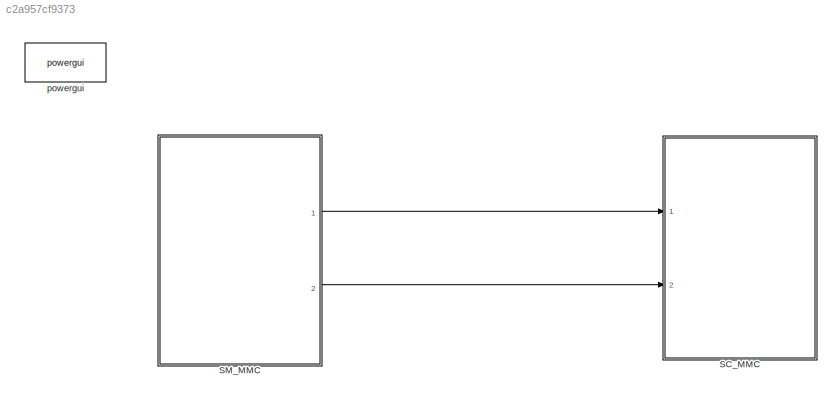
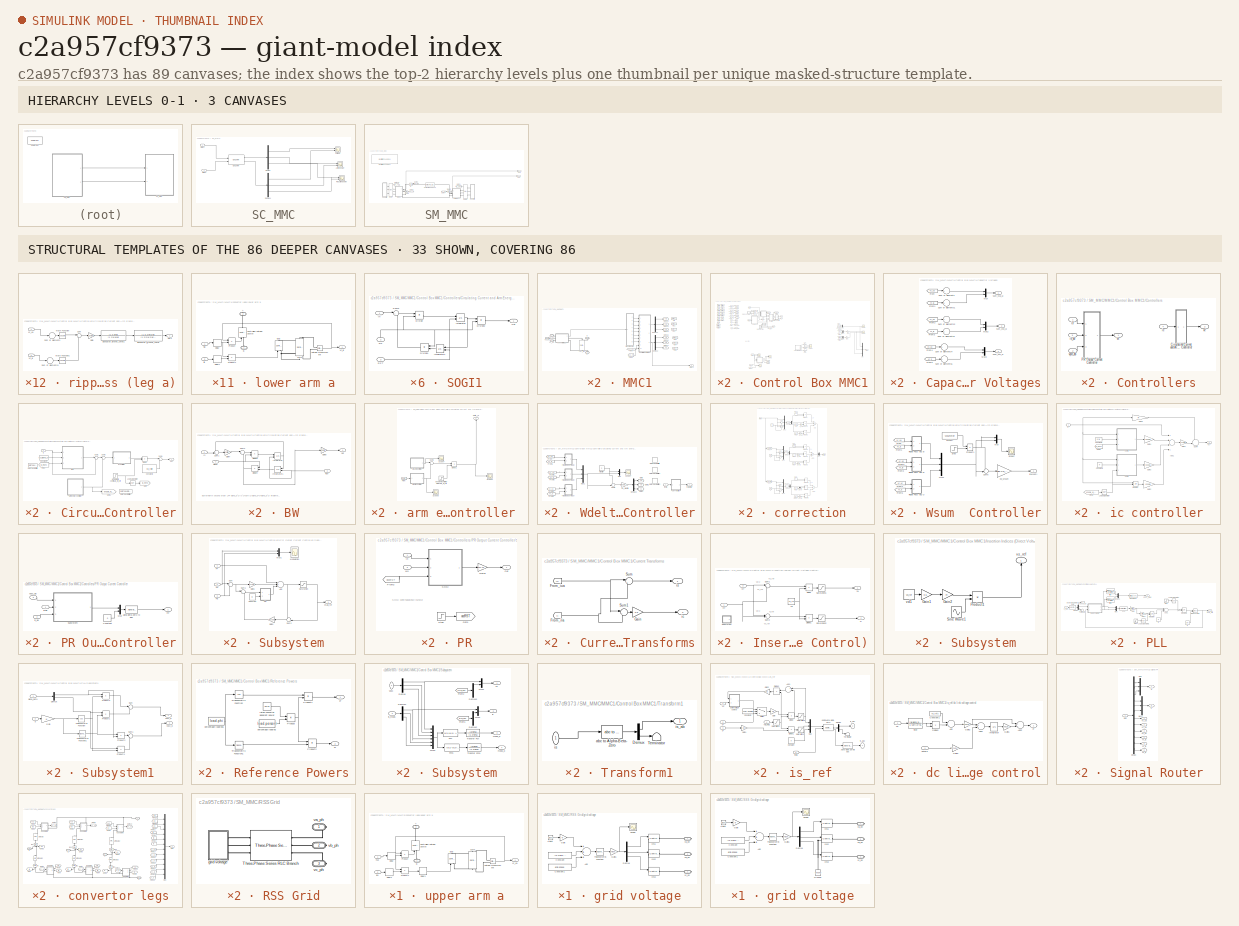
[diagram: thumbnail index - top-2 hierarchy levels (3 canvases) + 33 structural-template representatives of the remaining 86 canvases]
MODEL slx_c2a957cf9373
KIND model
CONFIG AbsTol = auto
CONFIG EnableMultiTasking = off
CONFIG FixedStep = 10e-5
CONFIG InitFcn = Cd=100e-6;\nCsm=3.3e-3;\nL=4e-3;\nR=0.1;\nm=1;\nN=9;\nNminus=N-1;\n\n\ngrid.vll_rms=10e3; \ngrid.f=50;\nw=2*pi*grid.f;\ngrid.phase=0;\ngrid.va_peak=sqrt(2/3)*grid.vll_rms;\n\nvd_ref=1.05*2*sqrt(2/3)*grid.vll_rms/m; % dc link voltage in pu\nvsp_max=0.5*m*vd_ref; %phase voltage at phi=0\nis_max=907;\nSmax=3*grid.va_peak*is_max/2; \n\n\nSCR= 100;  % INPUT SCR of grid at PCC = Ssc_grid/S_rated\n%Calculated Grid impedance p...<+2793ch>
CONFIG MaxStep = auto
CONFIG MinStep = auto
CONFIG RelTol = 1e-3
CONFIG SampleTimeConstraint = Unconstrained
CONFIG Solver = ode8
CONFIG SolverName = ode8
CONFIG StartTime = 0.0
CONFIG StopTime = inf
BLOCK [SubSystem] SC_MMC
  Ports = [2]
  RequestExecContextInheritance = off
BLOCK [Scope] SC_MMC/Active power
  Floating = off
  NumInputPorts = 2
  Ports = [2]
  ScopeSpecificationString = Simulink.scopes.TimeScopeBlockCfg('CurrentConfiguration', extmgr.ConfigurationSet(extmgr.Configuration('Core','General UI',true),extmgr.Configuration('Core','Source UI',true),extmgr.Configuration('Sources','WiredSimulink',true,'DataLoggingVariableName','ScopeData2','DataLoggingLimitDataPoints',true),extmgr.Configuration('Visuals','Time Domain',true,'SerializedDisplays',{struct('MinYLimReal','-1.26...<+2067ch>
BLOCK [Demux] SC_MMC/Demux
  DisplayOption = bar
  Outputs = 3
  Ports = [1, 3]
BLOCK [Demux] SC_MMC/Demux1
  DisplayOption = bar
  Outputs = 3
  Ports = [1, 3]
BLOCK [Reference] SC_MMC/OpComm  REF=rtlab/OpComm
  Ports = [2, 2]
  SourceBlock = rtlab/OpComm
  SourceType = RT-LAB OpComm
BLOCK [Scope] SC_MMC/Reactive power
  Floating = off
  NumInputPorts = 2
  Ports = [2]
  ScopeSpecificationString = Simulink.scopes.TimeScopeBlockCfg('CurrentConfiguration', extmgr.ConfigurationSet(extmgr.Configuration('Core','General UI',true),extmgr.Configuration('Core','Source UI',true),extmgr.Configuration('Sources','WiredSimulink',true,'DataLoggingVariableName','ScopeData3','DataLoggingLimitDataPoints',true),extmgr.Configuration('Visuals','Time Domain',true,'SerializedDisplays',{struct('MinYLimReal','0.477...<+2039ch>
BLOCK [Scope] SC_MMC/Voltage 
  Floating = off
  NumInputPorts = 2
  Ports = [2]
  ScopeSpecificationString = Simulink.scopes.TimeScopeBlockCfg('CurrentConfiguration', extmgr.ConfigurationSet(extmgr.Configuration('Core','General UI',true),extmgr.Configuration('Core','Source UI',true),extmgr.Configuration('Sources','WiredSimulink',true,'DataLoggingVariableName','ScopeData1','DataLoggingLimitDataPoints',true),extmgr.Configuration('Visuals','Time Domain',true,'SerializedDisplays',{struct('MinYLimReal','15046...<+2112ch>
BLOCK [Inport] SC_MMC/mmc1
  IconDisplay = Port number
BLOCK [Inport] SC_MMC/mmc2
  IconDisplay = Port number
  Port = 2
BLOCK [SubSystem] SM_MMC
  Ports = [0, 2]
  RequestExecContextInheritance = off
BLOCK [Goto] SM_MMC/Goto1
  GotoTag = rss_vpcc
  TagVisibility = global
BLOCK [Goto] SM_MMC/Goto15
  GotoTag = sss_vpcc
  TagVisibility = global
BLOCK [Goto] SM_MMC/Goto2
  GotoTag = sss_vd
  TagVisibility = global
BLOCK [Goto] SM_MMC/Goto3
  GotoTag = sss_id
  TagVisibility = global
BLOCK [Goto] SM_MMC/Goto4
  GotoTag = rss_vd
  TagVisibility = global
BLOCK [SubSystem] SM_MMC/MMC1
  Ports = [0, 1, 0, 0, 0, 3, 2]
  RequestExecContextInheritance = off
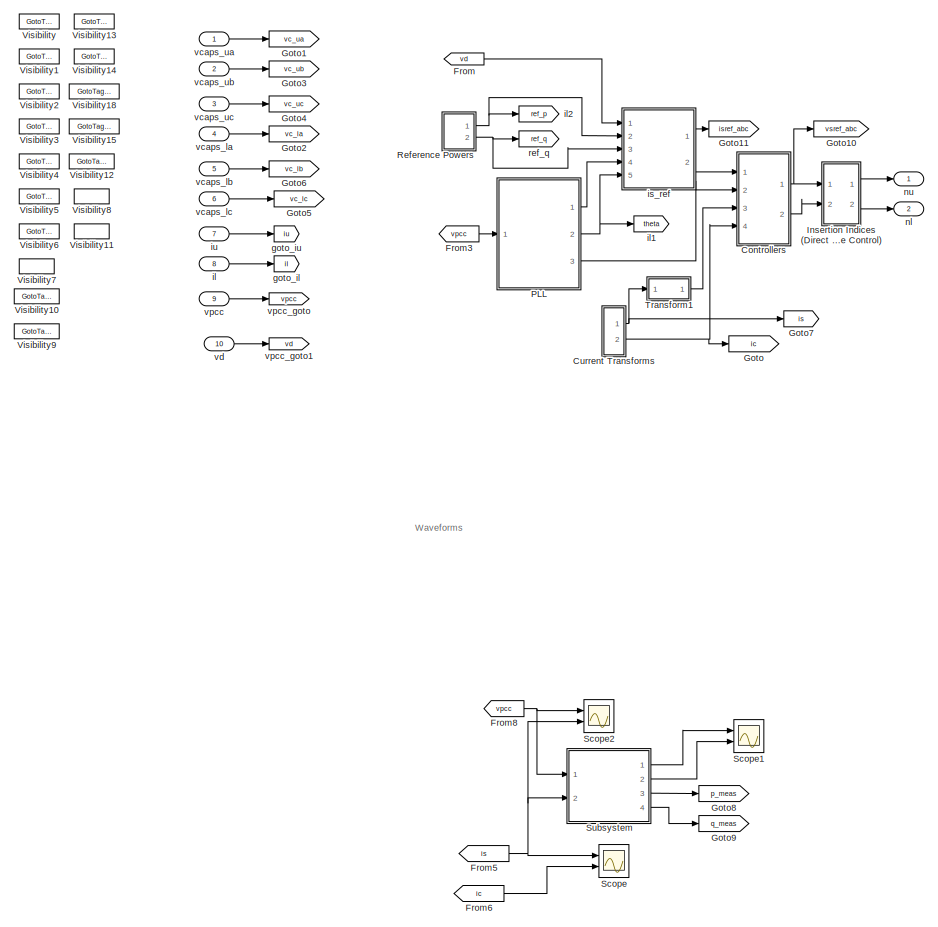
[diagram: SM_MMC/MMC1/Control Box MMC1 - part 1/2, left side, full height]
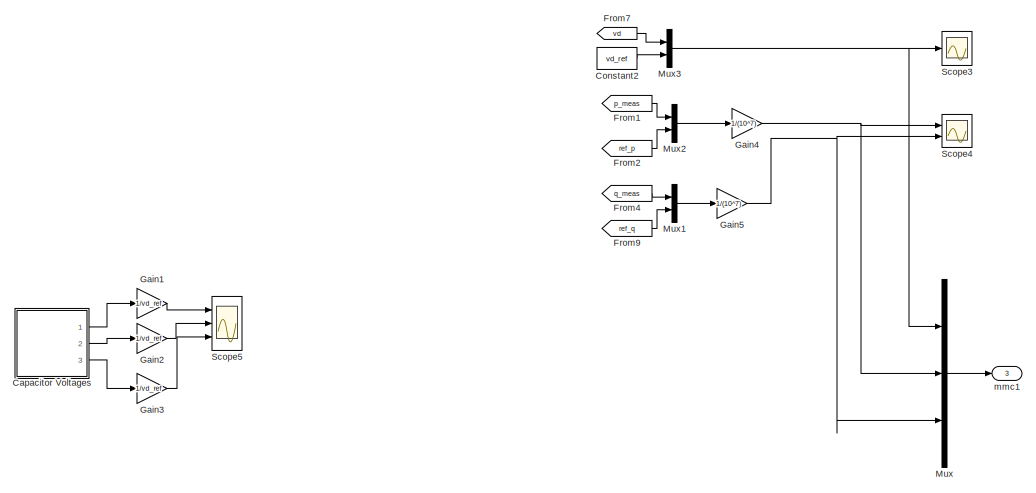
[diagram: SM_MMC/MMC1/Control Box MMC1 - part 2/2, middle right region]
BLOCK [SubSystem] SM_MMC/MMC1/Control Box MMC1
  Ports = [10, 3]
  RequestExecContextInheritance = off
BLOCK [SubSystem] SM_MMC/MMC1/Control Box MMC1/Capacitor Voltages
  Ports = [0, 3]
  RequestExecContextInheritance = off
BLOCK [From] SM_MMC/MMC1/Control Box MMC1/Capacitor Voltages/From
  GotoTag = vc_ua
  TagVisibility = scoped
BLOCK [From] SM_MMC/MMC1/Control Box MMC1/Capacitor Voltages/From1
  GotoTag = vc_la
  TagVisibility = scoped
BLOCK [From] SM_MMC/MMC1/Control Box MMC1/Capacitor Voltages/From2
  GotoTag = vc_ub
  TagVisibility = scoped
BLOCK [From] SM_MMC/MMC1/Control Box MMC1/Capacitor Voltages/From3
  GotoTag = vc_lb
  TagVisibility = scoped
BLOCK [From] SM_MMC/MMC1/Control Box MMC1/Capacitor Voltages/From4
  GotoTag = vc_uc
  TagVisibility = scoped
BLOCK [From] SM_MMC/MMC1/Control Box MMC1/Capacitor Voltages/From5
  GotoTag = vc_lc
  TagVisibility = scoped
BLOCK [Mux] SM_MMC/MMC1/Control Box MMC1/Capacitor Voltages/Mux
  DisplayOption = bar
  Inputs = 2
  Ports = [2, 1]
BLOCK [Mux] SM_MMC/MMC1/Control Box MMC1/Capacitor Voltages/Mux2
  DisplayOption = bar
  Inputs = 2
  Ports = [2, 1]
BLOCK [Mux] SM_MMC/MMC1/Control Box MMC1/Capacitor Voltages/Mux3
  DisplayOption = bar
  Inputs = 2
  Ports = [2, 1]
BLOCK [Sum] SM_MMC/MMC1/Control Box MMC1/Capacitor Voltages/Sum of Elements
  InputSameDT = off
  Inputs = +
  OutDataTypeStr = Inherit: Inherit via internal rule
  Ports = [1, 1]
  SaturateOnIntegerOverflow = off
BLOCK [Sum] SM_MMC/MMC1/Control Box MMC1/Capacitor Voltages/Sum of Elements1
  InputSameDT = off
  Inputs = +
  OutDataTypeStr = Inherit: Inherit via internal rule
  Ports = [1, 1]
  SaturateOnIntegerOverflow = off
BLOCK [Sum] SM_MMC/MMC1/Control Box MMC1/Capacitor Voltages/Sum of Elements2
  InputSameDT = off
  Inputs = +
  OutDataTypeStr = Inherit: Inherit via internal rule
  Ports = [1, 1]
  SaturateOnIntegerOverflow = off
BLOCK [Sum] SM_MMC/MMC1/Control Box MMC1/Capacitor Voltages/Sum of Elements3
  InputSameDT = off
  Inputs = +
  OutDataTypeStr = Inherit: Inherit via internal rule
  Ports = [1, 1]
  SaturateOnIntegerOverflow = off
BLOCK [Sum] SM_MMC/MMC1/Control Box MMC1/Capacitor Voltages/Sum of Elements4
  InputSameDT = off
  Inputs = +
  OutDataTypeStr = Inherit: Inherit via internal rule
  Ports = [1, 1]
  SaturateOnIntegerOverflow = off
BLOCK [Sum] SM_MMC/MMC1/Control Box MMC1/Capacitor Voltages/Sum of Elements5
  InputSameDT = off
  Inputs = +
  OutDataTypeStr = Inherit: Inherit via internal rule
  Ports = [1, 1]
  SaturateOnIntegerOverflow = off
BLOCK [Outport] SM_MMC/MMC1/Control Box MMC1/Capacitor Voltages/sum_vca_ul
  IconDisplay = Port number
BLOCK [Outport] SM_MMC/MMC1/Control Box MMC1/Capacitor Voltages/sum_vcb_ul
  IconDisplay = Port number
  Port = 2
BLOCK [Outport] SM_MMC/MMC1/Control Box MMC1/Capacitor Voltages/sum_vcc_ul
  IconDisplay = Port number
  Port = 3
BLOCK [Constant] SM_MMC/MMC1/Control Box MMC1/Constant2
  Value = vd_ref
BLOCK [SubSystem] SM_MMC/MMC1/Control Box MMC1/Controllers
  Ports = [4, 2]
  RequestExecContextInheritance = off
BLOCK [SubSystem] SM_MMC/MMC1/Control Box MMC1/Controllers/Circulating Current and Arm Energy Controller
  Ports = [1, 1]
  RequestExecContextInheritance = off
BLOCK [SubSystem] SM_MMC/MMC1/Control Box MMC1/Controllers/Circulating Current and Arm Energy Controller/BW
  Ports = [3, 1]
  RequestExecContextInheritance = off
BLOCK [Product] SM_MMC/MMC1/Control Box MMC1/Controllers/Circulating Current and Arm Energy Controller/BW/Divide3
  InputSameDT = off
  Inputs = **
  OutDataTypeStr = Inherit: Inherit via internal rule
  Ports = [2, 1]
  RndMeth = Floor
  SaturateOnIntegerOverflow = off
BLOCK [Product] SM_MMC/MMC1/Control Box MMC1/Controllers/Circulating Current and Arm Energy Controller/BW/Divide4
  InputSameDT = off
  Inputs = **
  OutDataTypeStr = Inherit: Inherit via internal rule
  Ports = [2, 1]
  RndMeth = Floor
  SaturateOnIntegerOverflow = off
BLOCK [Gain] SM_MMC/MMC1/Control Box MMC1/Controllers/Circulating Current and Arm Energy Controller/BW/Gain7
  Gain = sqrt(2)
  OutDataTypeStr = Inherit: Inherit via internal rule
  ParamDataTypeStr = Inherit: Inherit via internal rule
  SaturateOnIntegerOverflow = off
BLOCK [Gain] SM_MMC/MMC1/Control Box MMC1/Controllers/Circulating Current and Arm Energy Controller/BW/Gain8
  Gain = 1/sqrt(2)
  OutDataTypeStr = Inherit: Inherit via internal rule
  ParamDataTypeStr = Inherit: Inherit via internal rule
  SaturateOnIntegerOverflow = off
BLOCK [Inport] SM_MMC/MMC1/Control Box MMC1/Controllers/Circulating Current and Arm Energy Controller/BW/In
  IconDisplay = Port number
BLOCK [Integrator] SM_MMC/MMC1/Control Box MMC1/Controllers/Circulating Current and Arm Energy Controller/BW/Integrator
  ExternalReset = level
  Ports = [2, 1]
BLOCK [Integrator] SM_MMC/MMC1/Control Box MMC1/Controllers/Circulating Current and Arm Energy Controller/BW/Integrator1
  ExternalReset = level
  Ports = [2, 1]
BLOCK [Outport] SM_MMC/MMC1/Control Box MMC1/Controllers/Circulating Current and Arm Energy Controller/BW/Out
  IconDisplay = Port number
BLOCK [Inport] SM_MMC/MMC1/Control Box MMC1/Controllers/Circulating Current and Arm Energy Controller/BW/RST
  IconDisplay = Port number
  Port = 3
BLOCK [Sum] SM_MMC/MMC1/Control Box MMC1/Controllers/Circulating Current and Arm Energy Controller/BW/Sum1
  IconShape = round
  InputSameDT = off
  Inputs = -+|
  OutDataTypeStr = Inherit: Inherit via internal rule
  Ports = [2, 1]
  SaturateOnIntegerOverflow = off
BLOCK [Sum] SM_MMC/MMC1/Control Box MMC1/Controllers/Circulating Current and Arm Energy Controller/BW/Sum2
  IconShape = round
  InputSameDT = off
  Inputs = |+-
  OutDataTypeStr = Inherit: Inherit via internal rule
  Ports = [2, 1]
  SaturateOnIntegerOverflow = off
BLOCK [Inport] SM_MMC/MMC1/Control Box MMC1/Controllers/Circulating Current and Arm Energy Controller/BW/alpha
  IconDisplay = Port number
  Port = 2
BLOCK [Constant] SM_MMC/MMC1/Control Box MMC1/Controllers/Circulating Current and Arm Energy Controller/Constant2
  Value = vd_ref/2
BLOCK [Constant] SM_MMC/MMC1/Control Box MMC1/Controllers/Circulating Current and Arm Energy Controller/Constant4
  SampleTime = -1
  Value = ccc.alpha_cr
BLOCK [Product] SM_MMC/MMC1/Control Box MMC1/Controllers/Circulating Current and Arm Energy Controller/Divide
  InputSameDT = off
  Inputs = **
  OutDataTypeStr = Inherit: Inherit via internal rule
  Ports = [2, 1]
  RndMeth = Floor
  SaturateOnIntegerOverflow = off
BLOCK [Step] SM_MMC/MMC1/Control Box MMC1/Controllers/Circulating Current and Arm Energy Controller/Enable Icirc controller Time: time_enable_int_ctrl
  After = ccc.enable_int_ctrl
  SampleTime = 0
  Time = ccc.time_enable_int_ctrl
BLOCK [From] SM_MMC/MMC1/Control Box MMC1/Controllers/Circulating Current and Arm Energy Controller/From
  GotoTag = IC_RST2
  TagVisibility = scoped
BLOCK [Goto] SM_MMC/MMC1/Control Box MMC1/Controllers/Circulating Current and Arm Energy Controller/Goto
  GotoTag = IC_RST2
  TagVisibility = scoped
BLOCK [GotoTagVisibility] SM_MMC/MMC1/Control Box MMC1/Controllers/Circulating Current and Arm Energy Controller/Goto Tag Visibility
  GotoTag = IC_RST2
BLOCK [GotoTagVisibility] SM_MMC/MMC1/Control Box MMC1/Controllers/Circulating Current and Arm Energy Controller/Goto Tag Visibility1
  GotoTag = enable_W_ctrl2
BLOCK [Goto] SM_MMC/MMC1/Control Box MMC1/Controllers/Circulating Current and Arm Energy Controller/Goto1
  GotoTag = enable_W_ctrl2
  TagVisibility = scoped
BLOCK [Inport] SM_MMC/MMC1/Control Box MMC1/Controllers/Circulating Current and Arm Energy Controller/Ic
  IconDisplay = Port number
BLOCK [Logic] SM_MMC/MMC1/Control Box MMC1/Controllers/Circulating Current and Arm Energy Controller/Logical Operator
  AllPortsSameDT = off
  Operator = NOT
  OutDataTypeStr = boolean
  Ports = [1, 1]
BLOCK [Sum] SM_MMC/MMC1/Control Box MMC1/Controllers/Circulating Current and Arm Energy Controller/Sum1
  IconShape = round
  InputSameDT = off
  Inputs = |+-
  OutDataTypeStr = Inherit: Inherit via internal rule
  Ports = [2, 1]
  SaturateOnIntegerOverflow = off
BLOCK [Sum] SM_MMC/MMC1/Control Box MMC1/Controllers/Circulating Current and Arm Energy Controller/Sum3
  IconShape = round
  InputSameDT = off
  Inputs = |++
  OutDataTypeStr = Inherit: Inherit via internal rule
  Ports = [2, 1]
  SaturateOnIntegerOverflow = off
BLOCK [Sum] SM_MMC/MMC1/Control Box MMC1/Controllers/Circulating Current and Arm Energy Controller/Sum4
  IconShape = round
  InputSameDT = off
  Inputs = |++
  OutDataTypeStr = Inherit: Inherit via internal rule
  Ports = [2, 1]
  SaturateOnIntegerOverflow = off
BLOCK [SubSystem] SM_MMC/MMC1/Control Box MMC1/Controllers/Circulating Current and Arm Energy Controller/arm energy controller 
  Ports = [0, 1]
  RequestExecContextInheritance = off
BLOCK [Product] SM_MMC/MMC1/Control Box MMC1/Controllers/Circulating Current and Arm Energy Controller/arm energy controller /Divide1
  InputSameDT = off
  Inputs = **
  OutDataTypeStr = Inherit: Inherit via internal rule
  Ports = [2, 1]
  RndMeth = Floor
  SaturateOnIntegerOverflow = off
BLOCK [Step] SM_MMC/MMC1/Control Box MMC1/Controllers/Circulating Current and Arm Energy Controller/arm energy controller /Enable W controller Time: time_enable_W_ctrl
  After = aec.enable_W_ctrl
  SampleTime = 0
  Time = aec.time_enable_W_ctrl
BLOCK [From] SM_MMC/MMC1/Control Box MMC1/Controllers/Circulating Current and Arm Energy Controller/arm energy controller /From
  GotoTag = theta
  TagVisibility = scoped
BLOCK [Scope] SM_MMC/MMC1/Control Box MMC1/Controllers/Circulating Current and Arm Energy Controller/arm energy controller /Scope3
  Floating = off
  NumInputPorts = 1
  Ports = [1]
  ScopeSpecificationString = Simulink.scopes.TimeScopeBlockCfg('CurrentConfiguration', extmgr.ConfigurationSet(extmgr.Configuration('Core','General UI',true,'FigureColor',[0.156862745098039 0.156862745098039 0.156862745098039]),extmgr.Configuration('Core','Source UI',true),extmgr.Configuration('Sources','WiredSimulink',true,'DataLoggingVariableName','ScopeData4','DataLoggingSaveFormat','StructureWithTime','DataLoggingDecimati...<+2865ch>
BLOCK [Scope] SM_MMC/MMC1/Control Box MMC1/Controllers/Circulating Current and Arm Energy Controller/arm energy controller /Scope7
  Floating = off
  NumInputPorts = 1
  Ports = [1]
  ScopeSpecificationString = Simulink.scopes.TimeScopeBlockCfg('CurrentConfiguration', extmgr.ConfigurationSet(extmgr.Configuration('Core','General UI',true,'FigureColor',[0.156862745098039 0.156862745098039 0.156862745098039]),extmgr.Configuration('Core','Source UI',true),extmgr.Configuration('Sources','WiredSimulink',true,'DataLoggingVariableName','ScopeData11','DataLoggingSaveFormat','StructureWithTime','DataLoggingDecimat...<+2891ch>
BLOCK [Scope] SM_MMC/MMC1/Control Box MMC1/Controllers/Circulating Current and Arm Energy Controller/arm energy controller /Scope8
  Floating = off
  NumInputPorts = 1
  Ports = [1]
  ScopeSpecificationString = Simulink.scopes.TimeScopeBlockCfg('CurrentConfiguration', extmgr.ConfigurationSet(extmgr.Configuration('Core','General UI',true,'FigureColor',[0.156862745098039 0.156862745098039 0.156862745098039]),extmgr.Configuration('Core','Source UI',true),extmgr.Configuration('Sources','WiredSimulink',true,'DataLoggingVariableName','ScopeData12','DataLoggingSaveFormat','StructureWithTime','DataLoggingDecimat...<+2880ch>
BLOCK [Sum] SM_MMC/MMC1/Control Box MMC1/Controllers/Circulating Current and Arm Energy Controller/arm energy controller /Sum2
  IconShape = round
  InputSameDT = off
  Inputs = |+-
  OutDataTypeStr = Inherit: Inherit via internal rule
  Ports = [2, 1]
  SaturateOnIntegerOverflow = off
BLOCK [SubSystem] SM_MMC/MMC1/Control Box MMC1/Controllers/Circulating Current and Arm Energy Controller/arm energy controller /Wdelta  Controller
  Ports = [1, 1]
  RequestExecContextInheritance = off
BLOCK [Constant] SM_MMC/MMC1/Control Box MMC1/Controllers/Circulating Current and Arm Energy Controller/arm energy controller /Wdelta  Controller/  Wdelta*
  Value = 0
BLOCK [Demux] SM_MMC/MMC1/Control Box MMC1/Controllers/Circulating Current and Arm Energy Controller/arm energy controller /Wdelta  Controller/Demux2
  DisplayOption = bar
  Outputs = 3
  Ports = [1, 3]
BLOCK [From] SM_MMC/MMC1/Control Box MMC1/Controllers/Circulating Current and Arm Energy Controller/arm energy controller /Wdelta  Controller/From
  GotoTag = vc_ua
  TagVisibility = scoped
BLOCK [From] SM_MMC/MMC1/Control Box MMC1/Controllers/Circulating Current and Arm Energy Controller/arm energy controller /Wdelta  Controller/From1
  GotoTag = vc_la
  TagVisibility = scoped
BLOCK [From] SM_MMC/MMC1/Control Box MMC1/Controllers/Circulating Current and Arm Energy Controller/arm energy controller /Wdelta  Controller/From2
  GotoTag = vc_ub
  TagVisibility = scoped
BLOCK [From] SM_MMC/MMC1/Control Box MMC1/Controllers/Circulating Current and Arm Energy Controller/arm energy controller /Wdelta  Controller/From3
  GotoTag = vc_lb
  TagVisibility = scoped
BLOCK [From] SM_MMC/MMC1/Control Box MMC1/Controllers/Circulating Current and Arm Energy Controller/arm energy controller /Wdelta  Controller/From4
  GotoTag = vc_uc
  TagVisibility = scoped
BLOCK [From] SM_MMC/MMC1/Control Box MMC1/Controllers/Circulating Current and Arm Energy Controller/arm energy controller /Wdelta  Controller/From5
  GotoTag = vc_lc
  TagVisibility = scoped
BLOCK [Goto] SM_MMC/MMC1/Control Box MMC1/Controllers/Circulating Current and Arm Energy Controller/arm energy controller /Wdelta  Controller/Goto
  GotoTag = ca
  TagVisibility = scoped
BLOCK [GotoTagVisibility] SM_MMC/MMC1/Control Box MMC1/Controllers/Circulating Current and Arm Energy Controller/arm energy controller /Wdelta  Controller/Goto Tag Visibility
  GotoTag = ca
BLOCK [GotoTagVisibility] SM_MMC/MMC1/Control Box MMC1/Controllers/Circulating Current and Arm Energy Controller/arm energy controller /Wdelta  Controller/Goto Tag Visibility1
  GotoTag = cb
BLOCK [GotoTagVisibility] SM_MMC/MMC1/Control Box MMC1/Controllers/Circulating Current and Arm Energy Controller/arm energy controller /Wdelta  Controller/Goto Tag Visibility2
  GotoTag = cc
BLOCK [Goto] SM_MMC/MMC1/Control Box MMC1/Controllers/Circulating Current and Arm Energy Controller/arm energy controller /Wdelta  Controller/Goto1
  GotoTag = cb
  TagVisibility = scoped
BLOCK [Goto] SM_MMC/MMC1/Control Box MMC1/Controllers/Circulating Current and Arm Energy Controller/arm energy controller /Wdelta  Controller/Goto2
  GotoTag = cc
  TagVisibility = scoped
BLOCK [Gain] SM_MMC/MMC1/Control Box MMC1/Controllers/Circulating Current and Arm Energy Controller/arm energy controller /Wdelta  Controller/Kp_Wdelta
  Gain = aec.Kp_Wdelta
  OutDataTypeStr = Inherit: Inherit via internal rule
  ParamDataTypeStr = Inherit: Inherit via internal rule
  SaturateOnIntegerOverflow = off
BLOCK [Mux] SM_MMC/MMC1/Control Box MMC1/Controllers/Circulating Current and Arm Energy Controller/arm energy controller /Wdelta  Controller/Mux
  DisplayOption = bar
  Inputs = 2
  Ports = [2, 1]
BLOCK [Mux] SM_MMC/MMC1/Control Box MMC1/Controllers/Circulating Current and Arm Energy Controller/arm energy controller /Wdelta  Controller/Mux1
  DisplayOption = bar
  Inputs = 3
  Ports = [3, 1]
BLOCK [Scope] SM_MMC/MMC1/Control Box MMC1/Controllers/Circulating Current and Arm Energy Controller/arm energy controller /Wdelta  Controller/Scope7
  Floating = off
  NumInputPorts = 1
  Ports = [1]
  ScopeSpecificationString = Simulink.scopes.TimeScopeBlockCfg('CurrentConfiguration', extmgr.ConfigurationSet(extmgr.Configuration('Core','General UI',true,'FigureColor',[0.156862745098039 0.156862745098039 0.156862745098039]),extmgr.Configuration('Core','Source UI',true),extmgr.Configuration('Sources','WiredSimulink',true,'DataLoggingVariableName','ScopeData2','DataLoggingSaveFormat','StructureWithTime','DataLoggingDecimati...<+2938ch>
BLOCK [Sum] SM_MMC/MMC1/Control Box MMC1/Controllers/Circulating Current and Arm Energy Controller/arm energy controller /Wdelta  Controller/Sum6
  IconShape = round
  InputSameDT = off
  Inputs = +-
  OutDataTypeStr = Inherit: Inherit via internal rule
  Ports = [2, 1]
  SaturateOnIntegerOverflow = off
BLOCK [SubSystem] SM_MMC/MMC1/Control Box MMC1/Controllers/Circulating Current and Arm Energy Controller/arm energy controller /Wdelta  Controller/correction
  Ports = [1, 1]
  RequestExecContextInheritance = off
BLOCK [Constant] SM_MMC/MMC1/Control Box MMC1/Controllers/Circulating Current and Arm Energy Controller/arm energy controller /Wdelta  Controller/correction/  1
  Value = pi/2
BLOCK [Constant] SM_MMC/MMC1/Control Box MMC1/Controllers/Circulating Current and Arm Energy Controller/arm energy controller /Wdelta  Controller/correction/  2
  Value = pi/2
BLOCK [Constant] SM_MMC/MMC1/Control Box MMC1/Controllers/Circulating Current and Arm Energy Controller/arm energy controller /Wdelta  Controller/correction/  3
  Value = pi/2
BLOCK [Sum] SM_MMC/MMC1/Control Box MMC1/Controllers/Circulating Current and Arm Energy Controller/arm energy controller /Wdelta  Controller/correction/Add
  InputSameDT = off
  Inputs = +++
  OutDataTypeStr = Inherit: Inherit via internal rule
  Ports = [3, 1]
  SaturateOnIntegerOverflow = off
BLOCK [Sum] SM_MMC/MMC1/Control Box MMC1/Controllers/Circulating Current and Arm Energy Controller/arm energy controller /Wdelta  Controller/correction/Add1
  InputSameDT = off
  Inputs = +++
  OutDataTypeStr = Inherit: Inherit via internal rule
  Ports = [3, 1]
  SaturateOnIntegerOverflow = off
BLOCK [Sum] SM_MMC/MMC1/Control Box MMC1/Controllers/Circulating Current and Arm Energy Controller/arm energy controller /Wdelta  Controller/correction/Add2
  InputSameDT = off
  Inputs = +++
  OutDataTypeStr = Inherit: Inherit via internal rule
  Ports = [3, 1]
  SaturateOnIntegerOverflow = off
BLOCK [Demux] SM_MMC/MMC1/Control Box MMC1/Controllers/Circulating Current and Arm Energy Controller/arm energy controller /Wdelta  Controller/correction/Demux3
  DisplayOption = bar
  Outputs = 3
  Ports = [1, 3]
BLOCK [Demux] SM_MMC/MMC1/Control Box MMC1/Controllers/Circulating Current and Arm Energy Controller/arm energy controller /Wdelta  Controller/correction/Demux4
  DisplayOption = bar
  Outputs = 3
  Ports = [1, 3]
BLOCK [Demux] SM_MMC/MMC1/Control Box MMC1/Controllers/Circulating Current and Arm Energy Controller/arm energy controller /Wdelta  Controller/correction/Demux5
  DisplayOption = bar
  Outputs = 3
  Ports = [1, 3]
BLOCK [Fcn] SM_MMC/MMC1/Control Box MMC1/Controllers/Circulating Current and Arm Energy Controller/arm energy controller /Wdelta  Controller/correction/Fcn
  Expr = u(1)-2*pi/3
BLOCK [Fcn] SM_MMC/MMC1/Control Box MMC1/Controllers/Circulating Current and Arm Energy Controller/arm energy controller /Wdelta  Controller/correction/Fcn1
  Expr = u(1)+2*pi/3
BLOCK [From] SM_MMC/MMC1/Control Box MMC1/Controllers/Circulating Current and Arm Energy Controller/arm energy controller /Wdelta  Controller/correction/From
  GotoTag = cb
  TagVisibility = scoped
BLOCK [From] SM_MMC/MMC1/Control Box MMC1/Controllers/Circulating Current and Arm Energy Controller/arm energy controller /Wdelta  Controller/correction/From1
  GotoTag = cb
  TagVisibility = scoped
BLOCK [From] SM_MMC/MMC1/Control Box MMC1/Controllers/Circulating Current and Arm Energy Controller/arm energy controller /Wdelta  Controller/correction/From10
  GotoTag = ca
  TagVisibility = scoped
BLOCK [From] SM_MMC/MMC1/Control Box MMC1/Controllers/Circulating Current and Arm Energy Controller/arm energy controller /Wdelta  Controller/correction/From12
  GotoTag = cb
  TagVisibility = scoped
BLOCK [From] SM_MMC/MMC1/Control Box MMC1/Controllers/Circulating Current and Arm Energy Controller/arm energy controller /Wdelta  Controller/correction/From2
  GotoTag = cc
  TagVisibility = scoped
BLOCK [From] SM_MMC/MMC1/Control Box MMC1/Controllers/Circulating Current and Arm Energy Controller/arm energy controller /Wdelta  Controller/correction/From3
  GotoTag = cc
  TagVisibility = scoped
BLOCK [From] SM_MMC/MMC1/Control Box MMC1/Controllers/Circulating Current and Arm Energy Controller/arm energy controller /Wdelta  Controller/correction/From4
  GotoTag = cc
  TagVisibility = scoped
BLOCK [From] SM_MMC/MMC1/Control Box MMC1/Controllers/Circulating Current and Arm Energy Controller/arm energy controller /Wdelta  Controller/correction/From7
  GotoTag = ca
  TagVisibility = scoped
BLOCK [From] SM_MMC/MMC1/Control Box MMC1/Controllers/Circulating Current and Arm Energy Controller/arm energy controller /Wdelta  Controller/correction/From9
  GotoTag = ca
  TagVisibility = scoped
BLOCK [Gain] SM_MMC/MMC1/Control Box MMC1/Controllers/Circulating Current and Arm Energy Controller/arm energy controller /Wdelta  Controller/correction/Ki_ver1
  Gain = 1/sqrt(3)
  OutDataTypeStr = Inherit: Inherit via internal rule
  ParamDataTypeStr = Inherit: Inherit via internal rule
  SaturateOnIntegerOverflow = off
BLOCK [Gain] SM_MMC/MMC1/Control Box MMC1/Controllers/Circulating Current and Arm Energy Controller/arm energy controller /Wdelta  Controller/correction/Ki_ver2
  Gain = 1/sqrt(3)
  OutDataTypeStr = Inherit: Inherit via internal rule
  ParamDataTypeStr = Inherit: Inherit via internal rule
  SaturateOnIntegerOverflow = off
BLOCK [Gain] SM_MMC/MMC1/Control Box MMC1/Controllers/Circulating Current and Arm Energy Controller/arm energy controller /Wdelta  Controller/correction/Ki_ver4
  Gain = 1/sqrt(3)
  OutDataTypeStr = Inherit: Inherit via internal rule
  ParamDataTypeStr = Inherit: Inherit via internal rule
  SaturateOnIntegerOverflow = off
BLOCK [Gain] SM_MMC/MMC1/Control Box MMC1/Controllers/Circulating Current and Arm Energy Controller/arm energy controller /Wdelta  Controller/correction/Ki_ver5
  Gain = 1/sqrt(3)
  OutDataTypeStr = Inherit: Inherit via internal rule
  ParamDataTypeStr = Inherit: Inherit via internal rule
  SaturateOnIntegerOverflow = off
BLOCK [Gain] SM_MMC/MMC1/Control Box MMC1/Controllers/Circulating Current and Arm Energy Controller/arm energy controller /Wdelta  Controller/correction/Ki_ver7
  Gain = 1/sqrt(3)
  OutDataTypeStr = Inherit: Inherit via internal rule
  ParamDataTypeStr = Inherit: Inherit via internal rule
  SaturateOnIntegerOverflow = off
BLOCK [Gain] SM_MMC/MMC1/Control Box MMC1/Controllers/Circulating Current and Arm Energy Controller/arm energy controller /Wdelta  Controller/correction/Ki_ver8
  Gain = 1/sqrt(3)
  OutDataTypeStr = Inherit: Inherit via internal rule
  ParamDataTypeStr = Inherit: Inherit via internal rule
  SaturateOnIntegerOverflow = off
BLOCK [Mux] SM_MMC/MMC1/Control Box MMC1/Controllers/Circulating Current and Arm Energy Controller/arm energy controller /Wdelta  Controller/correction/Mux2
  DisplayOption = bar
  Inputs = 3
  Ports = [3, 1]
BLOCK [Mux] SM_MMC/MMC1/Control Box MMC1/Controllers/Circulating Current and Arm Energy Controller/arm energy controller /Wdelta  Controller/correction/Mux3
  DisplayOption = bar
  Inputs = 3
  Ports = [3, 1]
BLOCK [Mux] SM_MMC/MMC1/Control Box MMC1/Controllers/Circulating Current and Arm Energy Controller/arm energy controller /Wdelta  Controller/correction/Mux4
  DisplayOption = bar
  Inputs = 3
  Ports = [3, 1]
BLOCK [Mux] SM_MMC/MMC1/Control Box MMC1/Controllers/Circulating Current and Arm Energy Controller/arm energy controller /Wdelta  Controller/correction/Mux5
  DisplayOption = bar
  Inputs = 3
  Ports = [3, 1]
BLOCK [Product] SM_MMC/MMC1/Control Box MMC1/Controllers/Circulating Current and Arm Energy Controller/arm energy controller /Wdelta  Controller/correction/Product
  InputSameDT = off
  OutDataTypeStr = Inherit: Inherit via internal rule
  Ports = [2, 1]
  RndMeth = Floor
  SaturateOnIntegerOverflow = off
BLOCK [Product] SM_MMC/MMC1/Control Box MMC1/Controllers/Circulating Current and Arm Energy Controller/arm energy controller /Wdelta  Controller/correction/Product1
  InputSameDT = off
  OutDataTypeStr = Inherit: Inherit via internal rule
  Ports = [2, 1]
  RndMeth = Floor
  SaturateOnIntegerOverflow = off
BLOCK [Product] SM_MMC/MMC1/Control Box MMC1/Controllers/Circulating Current and Arm Energy Controller/arm energy controller /Wdelta  Controller/correction/Product2
  InputSameDT = off
  OutDataTypeStr = Inherit: Inherit via internal rule
  Ports = [2, 1]
  RndMeth = Floor
  SaturateOnIntegerOverflow = off
BLOCK [Product] SM_MMC/MMC1/Control Box MMC1/Controllers/Circulating Current and Arm Energy Controller/arm energy controller /Wdelta  Controller/correction/Product3
  InputSameDT = off
  OutDataTypeStr = Inherit: Inherit via internal rule
  Ports = [2, 1]
  RndMeth = Floor
  SaturateOnIntegerOverflow = off
BLOCK [Product] SM_MMC/MMC1/Control Box MMC1/Controllers/Circulating Current and Arm Energy Controller/arm energy controller /Wdelta  Controller/correction/Product4
  InputSameDT = off
  OutDataTypeStr = Inherit: Inherit via internal rule
  Ports = [2, 1]
  RndMeth = Floor
  SaturateOnIntegerOverflow = off
BLOCK [Product] SM_MMC/MMC1/Control Box MMC1/Controllers/Circulating Current and Arm Energy Controller/arm energy controller /Wdelta  Controller/correction/Product5
  InputSameDT = off
  OutDataTypeStr = Inherit: Inherit via internal rule
  Ports = [2, 1]
  RndMeth = Floor
  SaturateOnIntegerOverflow = off
BLOCK [Product] SM_MMC/MMC1/Control Box MMC1/Controllers/Circulating Current and Arm Energy Controller/arm energy controller /Wdelta  Controller/correction/Product6
  InputSameDT = off
  OutDataTypeStr = Inherit: Inherit via internal rule
  Ports = [2, 1]
  RndMeth = Floor
  SaturateOnIntegerOverflow = off
BLOCK [Product] SM_MMC/MMC1/Control Box MMC1/Controllers/Circulating Current and Arm Energy Controller/arm energy controller /Wdelta  Controller/correction/Product7
  InputSameDT = off
  OutDataTypeStr = Inherit: Inherit via internal rule
  Ports = [2, 1]
  RndMeth = Floor
  SaturateOnIntegerOverflow = off
BLOCK [Product] SM_MMC/MMC1/Control Box MMC1/Controllers/Circulating Current and Arm Energy Controller/arm energy controller /Wdelta  Controller/correction/Product8
  InputSameDT = off
  OutDataTypeStr = Inherit: Inherit via internal rule
  Ports = [2, 1]
  RndMeth = Floor
  SaturateOnIntegerOverflow = off
BLOCK [Sum] SM_MMC/MMC1/Control Box MMC1/Controllers/Circulating Current and Arm Energy Controller/arm energy controller /Wdelta  Controller/correction/Sum1
  IconShape = round
  InputSameDT = off
  Inputs = |+-
  OutDataTypeStr = Inherit: Inherit via internal rule
  Ports = [2, 1]
  SaturateOnIntegerOverflow = off
BLOCK [Sum] SM_MMC/MMC1/Control Box MMC1/Controllers/Circulating Current and Arm Energy Controller/arm energy controller /Wdelta  Controller/correction/Sum18
  IconShape = round
  InputSameDT = off
  Inputs = |+-
  OutDataTypeStr = Inherit: Inherit via internal rule
  Ports = [2, 1]
  SaturateOnIntegerOverflow = off
BLOCK [Sum] SM_MMC/MMC1/Control Box MMC1/Controllers/Circulating Current and Arm Energy Controller/arm energy controller /Wdelta  Controller/correction/Sum2
  IconShape = round
  InputSameDT = off
  Inputs = |++
  OutDataTypeStr = Inherit: Inherit via internal rule
  Ports = [2, 1]
  SaturateOnIntegerOverflow = off
BLOCK [Sum] SM_MMC/MMC1/Control Box MMC1/Controllers/Circulating Current and Arm Energy Controller/arm energy controller /Wdelta  Controller/correction/Sum3
  IconShape = round
  InputSameDT = off
  Inputs = |++
  OutDataTypeStr = Inherit: Inherit via internal rule
  Ports = [2, 1]
  SaturateOnIntegerOverflow = off
BLOCK [Sum] SM_MMC/MMC1/Control Box MMC1/Controllers/Circulating Current and Arm Energy Controller/arm energy controller /Wdelta  Controller/correction/Sum4
  IconShape = round
  InputSameDT = off
  Inputs = |+-
  OutDataTypeStr = Inherit: Inherit via internal rule
  Ports = [2, 1]
  SaturateOnIntegerOverflow = off
BLOCK [Sum] SM_MMC/MMC1/Control Box MMC1/Controllers/Circulating Current and Arm Energy Controller/arm energy controller /Wdelta  Controller/correction/Sum7
  IconShape = round
  InputSameDT = off
  Inputs = |++
  OutDataTypeStr = Inherit: Inherit via internal rule
  Ports = [2, 1]
  SaturateOnIntegerOverflow = off
BLOCK [Outport] SM_MMC/MMC1/Control Box MMC1/Controllers/Circulating Current and Arm Energy Controller/arm energy controller /Wdelta  Controller/correction/delta_i
  IconDisplay = Port number
BLOCK [Trigonometry] SM_MMC/MMC1/Control Box MMC1/Controllers/Circulating Current and Arm Energy Controller/arm energy controller /Wdelta  Controller/correction/maybe
  Operator = cos
  Ports = [1, 1]
BLOCK [Trigonometry] SM_MMC/MMC1/Control Box MMC1/Controllers/Circulating Current and Arm Energy Controller/arm energy controller /Wdelta  Controller/correction/maybe1
  Operator = cos
  Ports = [1, 1]
BLOCK [Trigonometry] SM_MMC/MMC1/Control Box MMC1/Controllers/Circulating Current and Arm Energy Controller/arm energy controller /Wdelta  Controller/correction/maybe2
  Operator = cos
  Ports = [1, 1]
BLOCK [Inport] SM_MMC/MMC1/Control Box MMC1/Controllers/Circulating Current and Arm Energy Controller/arm energy controller /Wdelta  Controller/correction/theta
  IconDisplay = Port number
BLOCK [Outport] SM_MMC/MMC1/Control Box MMC1/Controllers/Circulating Current and Arm Energy Controller/arm energy controller /Wdelta  Controller/icWdelta*
  IconDisplay = Port number
BLOCK [SubSystem] SM_MMC/MMC1/Control Box MMC1/Controllers/Circulating Current and Arm Energy Controller/arm energy controller /Wdelta  Controller/ripple pass (leg a)
  Ports = [2, 1]
  RequestExecContextInheritance = off
BLOCK [TransferFcn] SM_MMC/MMC1/Control Box MMC1/Controllers/Circulating Current and Arm Energy Controller/arm energy controller /Wdelta  Controller/ripple pass (leg a)/BandStop @100Hz_10kHz
  Denominator = [1 2*2*w 2*w*2*w]
  Numerator = [1 0 2*w*2*w]
BLOCK [TransferFcn] SM_MMC/MMC1/Control Box MMC1/Controllers/Circulating Current and Arm Energy Controller/arm energy controller /Wdelta  Controller/ripple pass (leg a)/BandStop @50Hz_10kHz1
  Denominator = [1 2*w w*w]
  Numerator = [1 0 w*w]
BLOCK [Gain] SM_MMC/MMC1/Control Box MMC1/Controllers/Circulating Current and Arm Energy Controller/arm energy controller /Wdelta  Controller/ripple pass (leg a)/Gain
  Gain = Csm/2/N
  OutDataTypeStr = Inherit: Inherit via internal rule
  ParamDataTypeStr = Inherit: Inherit via internal rule
  SaturateOnIntegerOverflow = off
BLOCK [Math] SM_MMC/MMC1/Control Box MMC1/Controllers/Circulating Current and Arm Energy Controller/arm energy controller /Wdelta  Controller/ripple pass (leg a)/Math Function
  Operator = square
  Ports = [1, 1]
BLOCK [Math] SM_MMC/MMC1/Control Box MMC1/Controllers/Circulating Current and Arm Energy Controller/arm energy controller /Wdelta  Controller/ripple pass (leg a)/Math Function1
  Operator = square
  Ports = [1, 1]
BLOCK [Outport] SM_MMC/MMC1/Control Box MMC1/Controllers/Circulating Current and Arm Energy Controller/arm energy controller /Wdelta  Controller/ripple pass (leg a)/Out1
  IconDisplay = Port number
BLOCK [Sum] SM_MMC/MMC1/Control Box MMC1/Controllers/Circulating Current and Arm Energy Controller/arm energy controller /Wdelta  Controller/ripple pass (leg a)/Sum
  IconShape = round
  InputSameDT = off
  Inputs = |+-
  OutDataTypeStr = Inherit: Inherit via internal rule
  Ports = [2, 1]
  SaturateOnIntegerOverflow = off
BLOCK [Sum] SM_MMC/MMC1/Control Box MMC1/Controllers/Circulating Current and Arm Energy Controller/arm energy controller /Wdelta  Controller/ripple pass (leg a)/Sum of Elements
  InputSameDT = off
  Inputs = +
  OutDataTypeStr = Inherit: Inherit via internal rule
  Ports = [1, 1]
  SaturateOnIntegerOverflow = off
BLOCK [Sum] SM_MMC/MMC1/Control Box MMC1/Controllers/Circulating Current and Arm Energy Controller/arm energy controller /Wdelta  Controller/ripple pass (leg a)/Sum of Elements1
  InputSameDT = off
  Inputs = +
  OutDataTypeStr = Inherit: Inherit via internal rule
  Ports = [1, 1]
  SaturateOnIntegerOverflow = off
BLOCK [Inport] SM_MMC/MMC1/Control Box MMC1/Controllers/Circulating Current and Arm Energy Controller/arm energy controller /Wdelta  Controller/ripple pass (leg a)/vc_la
  IconDisplay = Port number
  Port = 2
BLOCK [Inport] SM_MMC/MMC1/Control Box MMC1/Controllers/Circulating Current and Arm Energy Controller/arm energy controller /Wdelta  Controller/ripple pass (leg a)/vc_ua
  IconDisplay = Port number
BLOCK [SubSystem] SM_MMC/MMC1/Control Box MMC1/Controllers/Circulating Current and Arm Energy Controller/arm energy controller /Wdelta  Controller/ripple pass (leg b)
  Ports = [2, 1]
  RequestExecContextInheritance = off
BLOCK [TransferFcn] SM_MMC/MMC1/Control Box MMC1/Controllers/Circulating Current and Arm Energy Controller/arm energy controller /Wdelta  Controller/ripple pass (leg b)/BandStop @100Hz_10kHz
  Denominator = [1 2*2*w 2*w*2*w]
  Numerator = [1 0 2*w*2*w]
BLOCK [TransferFcn] SM_MMC/MMC1/Control Box MMC1/Controllers/Circulating Current and Arm Energy Controller/arm energy controller /Wdelta  Controller/ripple pass (leg b)/BandStop @50Hz_10kHz1
  Denominator = [1 2*w w*w]
  Numerator = [1 0 w*w]
BLOCK [Gain] SM_MMC/MMC1/Control Box MMC1/Controllers/Circulating Current and Arm Energy Controller/arm energy controller /Wdelta  Controller/ripple pass (leg b)/Gain
  Gain = Csm/2/N
  OutDataTypeStr = Inherit: Inherit via internal rule
  ParamDataTypeStr = Inherit: Inherit via internal rule
  SaturateOnIntegerOverflow = off
BLOCK [Math] SM_MMC/MMC1/Control Box MMC1/Controllers/Circulating Current and Arm Energy Controller/arm energy controller /Wdelta  Controller/ripple pass (leg b)/Math Function
  Operator = square
  Ports = [1, 1]
BLOCK [Math] SM_MMC/MMC1/Control Box MMC1/Controllers/Circulating Current and Arm Energy Controller/arm energy controller /Wdelta  Controller/ripple pass (leg b)/Math Function1
  Operator = square
  Ports = [1, 1]
BLOCK [Outport] SM_MMC/MMC1/Control Box MMC1/Controllers/Circulating Current and Arm Energy Controller/arm energy controller /Wdelta  Controller/ripple pass (leg b)/Out1
  IconDisplay = Port number
BLOCK [Sum] SM_MMC/MMC1/Control Box MMC1/Controllers/Circulating Current and Arm Energy Controller/arm energy controller /Wdelta  Controller/ripple pass (leg b)/Sum
  IconShape = round
  InputSameDT = off
  Inputs = |+-
  OutDataTypeStr = Inherit: Inherit via internal rule
  Ports = [2, 1]
  SaturateOnIntegerOverflow = off
BLOCK [Sum] SM_MMC/MMC1/Control Box MMC1/Controllers/Circulating Current and Arm Energy Controller/arm energy controller /Wdelta  Controller/ripple pass (leg b)/Sum of Elements
  InputSameDT = off
  Inputs = +
  OutDataTypeStr = Inherit: Inherit via internal rule
  Ports = [1, 1]
  SaturateOnIntegerOverflow = off
BLOCK [Sum] SM_MMC/MMC1/Control Box MMC1/Controllers/Circulating Current and Arm Energy Controller/arm energy controller /Wdelta  Controller/ripple pass (leg b)/Sum of Elements1
  InputSameDT = off
  Inputs = +
  OutDataTypeStr = Inherit: Inherit via internal rule
  Ports = [1, 1]
  SaturateOnIntegerOverflow = off
BLOCK [Inport] SM_MMC/MMC1/Control Box MMC1/Controllers/Circulating Current and Arm Energy Controller/arm energy controller /Wdelta  Controller/ripple pass (leg b)/vc_lb
  IconDisplay = Port number
  Port = 2
BLOCK [Inport] SM_MMC/MMC1/Control Box MMC1/Controllers/Circulating Current and Arm Energy Controller/arm energy controller /Wdelta  Controller/ripple pass (leg b)/vc_ub
  IconDisplay = Port number
BLOCK [SubSystem] SM_MMC/MMC1/Control Box MMC1/Controllers/Circulating Current and Arm Energy Controller/arm energy controller /Wdelta  Controller/ripple pass (leg c)
  Ports = [2, 1]
  RequestExecContextInheritance = off
BLOCK [TransferFcn] SM_MMC/MMC1/Control Box MMC1/Controllers/Circulating Current and Arm Energy Controller/arm energy controller /Wdelta  Controller/ripple pass (leg c)/BandStop @100Hz_10kHz
  Denominator = [1 2*2*w 2*w*2*w]
  Numerator = [1 0 2*w*2*w]
BLOCK [TransferFcn] SM_MMC/MMC1/Control Box MMC1/Controllers/Circulating Current and Arm Energy Controller/arm energy controller /Wdelta  Controller/ripple pass (leg c)/BandStop @50Hz_10kHz1
  Denominator = [1 2*w w*w]
  Numerator = [1 0 w*w]
BLOCK [Gain] SM_MMC/MMC1/Control Box MMC1/Controllers/Circulating Current and Arm Energy Controller/arm energy controller /Wdelta  Controller/ripple pass (leg c)/Gain
  Gain = Csm/2/N
  OutDataTypeStr = Inherit: Inherit via internal rule
  ParamDataTypeStr = Inherit: Inherit via internal rule
  SaturateOnIntegerOverflow = off
BLOCK [Math] SM_MMC/MMC1/Control Box MMC1/Controllers/Circulating Current and Arm Energy Controller/arm energy controller /Wdelta  Controller/ripple pass (leg c)/Math Function
  Operator = square
  Ports = [1, 1]
BLOCK [Math] SM_MMC/MMC1/Control Box MMC1/Controllers/Circulating Current and Arm Energy Controller/arm energy controller /Wdelta  Controller/ripple pass (leg c)/Math Function1
  Operator = square
  Ports = [1, 1]
BLOCK [Outport] SM_MMC/MMC1/Control Box MMC1/Controllers/Circulating Current and Arm Energy Controller/arm energy controller /Wdelta  Controller/ripple pass (leg c)/Out1
  IconDisplay = Port number
BLOCK [Sum] SM_MMC/MMC1/Control Box MMC1/Controllers/Circulating Current and Arm Energy Controller/arm energy controller /Wdelta  Controller/ripple pass (leg c)/Sum
  IconShape = round
  InputSameDT = off
  Inputs = |+-
  OutDataTypeStr = Inherit: Inherit via internal rule
  Ports = [2, 1]
  SaturateOnIntegerOverflow = off
BLOCK [Sum] SM_MMC/MMC1/Control Box MMC1/Controllers/Circulating Current and Arm Energy Controller/arm energy controller /Wdelta  Controller/ripple pass (leg c)/Sum of Elements
  InputSameDT = off
  Inputs = +
  OutDataTypeStr = Inherit: Inherit via internal rule
  Ports = [1, 1]
  SaturateOnIntegerOverflow = off
BLOCK [Sum] SM_MMC/MMC1/Control Box MMC1/Controllers/Circulating Current and Arm Energy Controller/arm energy controller /Wdelta  Controller/ripple pass (leg c)/Sum of Elements1
  InputSameDT = off
  Inputs = +
  OutDataTypeStr = Inherit: Inherit via internal rule
  Ports = [1, 1]
  SaturateOnIntegerOverflow = off
BLOCK [Inport] SM_MMC/MMC1/Control Box MMC1/Controllers/Circulating Current and Arm Energy Controller/arm energy controller /Wdelta  Controller/ripple pass (leg c)/vc_lc
  IconDisplay = Port number
  Port = 2
BLOCK [Inport] SM_MMC/MMC1/Control Box MMC1/Controllers/Circulating Current and Arm Energy Controller/arm energy controller /Wdelta  Controller/ripple pass (leg c)/vc_uc
  IconDisplay = Port number
BLOCK [Inport] SM_MMC/MMC1/Control Box MMC1/Controllers/Circulating Current and Arm Energy Controller/arm energy controller /Wdelta  Controller/theta
  IconDisplay = Port number
BLOCK [SubSystem] SM_MMC/MMC1/Control Box MMC1/Controllers/Circulating Current and Arm Energy Controller/arm energy controller /Wsum  Controller
  Ports = [0, 1]
  RequestExecContextInheritance = off
BLOCK [From] SM_MMC/MMC1/Control Box MMC1/Controllers/Circulating Current and Arm Energy Controller/arm energy controller /Wsum  Controller/From
  GotoTag = vc_ua
  TagVisibility = scoped
BLOCK [From] SM_MMC/MMC1/Control Box MMC1/Controllers/Circulating Current and Arm Energy Controller/arm energy controller /Wsum  Controller/From1
  GotoTag = vc_la
  TagVisibility = scoped
BLOCK [From] SM_MMC/MMC1/Control Box MMC1/Controllers/Circulating Current and Arm Energy Controller/arm energy controller /Wsum  Controller/From2
  GotoTag = vc_ub
  TagVisibility = scoped
BLOCK [From] SM_MMC/MMC1/Control Box MMC1/Controllers/Circulating Current and Arm Energy Controller/arm energy controller /Wsum  Controller/From3
  GotoTag = vc_lb
  TagVisibility = scoped
BLOCK [From] SM_MMC/MMC1/Control Box MMC1/Controllers/Circulating Current and Arm Energy Controller/arm energy controller /Wsum  Controller/From4
  GotoTag = vc_uc
  TagVisibility = scoped
BLOCK [From] SM_MMC/MMC1/Control Box MMC1/Controllers/Circulating Current and Arm Energy Controller/arm energy controller /Wsum  Controller/From5
  GotoTag = vc_lc
  TagVisibility = scoped
BLOCK [Gain] SM_MMC/MMC1/Control Box MMC1/Controllers/Circulating Current and Arm Energy Controller/arm energy controller /Wsum  Controller/Kp_Wsum
  Gain = aec.Kp_Wsum
  OutDataTypeStr = Inherit: Inherit via internal rule
  ParamDataTypeStr = Inherit: Inherit via internal rule
  SaturateOnIntegerOverflow = off
BLOCK [Mux] SM_MMC/MMC1/Control Box MMC1/Controllers/Circulating Current and Arm Energy Controller/arm energy controller /Wsum  Controller/Mux
  DisplayOption = bar
  Inputs = 2
  Ports = [2, 1]
BLOCK [Mux] SM_MMC/MMC1/Control Box MMC1/Controllers/Circulating Current and Arm Energy Controller/arm energy controller /Wsum  Controller/Mux1
  DisplayOption = bar
  Inputs = 3
  Ports = [3, 1]
BLOCK [Product] SM_MMC/MMC1/Control Box MMC1/Controllers/Circulating Current and Arm Energy Controller/arm energy controller /Wsum  Controller/Product1
  InputSameDT = off
  OutDataTypeStr = Inherit: Inherit via internal rule
  Ports = [2, 1]
  RndMeth = Floor
  SaturateOnIntegerOverflow = off
BLOCK [SubSystem] SM_MMC/MMC1/Control Box MMC1/Controllers/Circulating Current and Arm Energy Controller/arm energy controller /Wsum  Controller/Ripple Pass (leg a)
  Ports = [2, 1]
  RequestExecContextInheritance = off
BLOCK [TransferFcn] SM_MMC/MMC1/Control Box MMC1/Controllers/Circulating Current and Arm Energy Controller/arm energy controller /Wsum  Controller/Ripple Pass (leg a)/BandStop @100Hz_10kHz1
  Denominator = [1 2*2*w 2*w*2*w]
  Numerator = [1 0 2*w*2*w]
BLOCK [TransferFcn] SM_MMC/MMC1/Control Box MMC1/Controllers/Circulating Current and Arm Energy Controller/arm energy controller /Wsum  Controller/Ripple Pass (leg a)/BandStop @50Hz_10kHz1
  Denominator = [1 2*w w*w]
  Numerator = [1 0 w*w]
BLOCK [Gain] SM_MMC/MMC1/Control Box MMC1/Controllers/Circulating Current and Arm Energy Controller/arm energy controller /Wsum  Controller/Ripple Pass (leg a)/Gain
  Gain = Csm/(2*N)
  OutDataTypeStr = Inherit: Inherit via internal rule
  ParamDataTypeStr = Inherit: Inherit via internal rule
  SaturateOnIntegerOverflow = off
BLOCK [Math] SM_MMC/MMC1/Control Box MMC1/Controllers/Circulating Current and Arm Energy Controller/arm energy controller /Wsum  Controller/Ripple Pass (leg a)/Math Function
  Operator = square
  Ports = [1, 1]
BLOCK [Math] SM_MMC/MMC1/Control Box MMC1/Controllers/Circulating Current and Arm Energy Controller/arm energy controller /Wsum  Controller/Ripple Pass (leg a)/Math Function1
  Operator = square
  Ports = [1, 1]
BLOCK [Outport] SM_MMC/MMC1/Control Box MMC1/Controllers/Circulating Current and Arm Energy Controller/arm energy controller /Wsum  Controller/Ripple Pass (leg a)/Out1
  IconDisplay = Port number
BLOCK [Sum] SM_MMC/MMC1/Control Box MMC1/Controllers/Circulating Current and Arm Energy Controller/arm energy controller /Wsum  Controller/Ripple Pass (leg a)/Sum
  IconShape = round
  InputSameDT = off
  Inputs = |++
  OutDataTypeStr = Inherit: Inherit via internal rule
  Ports = [2, 1]
  SaturateOnIntegerOverflow = off
BLOCK [Sum] SM_MMC/MMC1/Control Box MMC1/Controllers/Circulating Current and Arm Energy Controller/arm energy controller /Wsum  Controller/Ripple Pass (leg a)/Sum of Elements
  InputSameDT = off
  Inputs = +
  OutDataTypeStr = Inherit: Inherit via internal rule
  Ports = [1, 1]
  SaturateOnIntegerOverflow = off
BLOCK [Sum] SM_MMC/MMC1/Control Box MMC1/Controllers/Circulating Current and Arm Energy Controller/arm energy controller /Wsum  Controller/Ripple Pass (leg a)/Sum of Elements1
  InputSameDT = off
  Inputs = +
  OutDataTypeStr = Inherit: Inherit via internal rule
  Ports = [1, 1]
  SaturateOnIntegerOverflow = off
BLOCK [Inport] SM_MMC/MMC1/Control Box MMC1/Controllers/Circulating Current and Arm Energy Controller/arm energy controller /Wsum  Controller/Ripple Pass (leg a)/vc_la
  IconDisplay = Port number
  Port = 2
BLOCK [Inport] SM_MMC/MMC1/Control Box MMC1/Controllers/Circulating Current and Arm Energy Controller/arm energy controller /Wsum  Controller/Ripple Pass (leg a)/vc_ua
  IconDisplay = Port number
BLOCK [SubSystem] SM_MMC/MMC1/Control Box MMC1/Controllers/Circulating Current and Arm Energy Controller/arm energy controller /Wsum  Controller/Ripple Pass (leg b)
  Ports = [2, 1]
  RequestExecContextInheritance = off
BLOCK [TransferFcn] SM_MMC/MMC1/Control Box MMC1/Controllers/Circulating Current and Arm Energy Controller/arm energy controller /Wsum  Controller/Ripple Pass (leg b)/BandStop @100Hz_10kHz1
  Denominator = [1 2*2*w 2*w*2*w]
  Numerator = [1 0 2*w*2*w]
BLOCK [TransferFcn] SM_MMC/MMC1/Control Box MMC1/Controllers/Circulating Current and Arm Energy Controller/arm energy controller /Wsum  Controller/Ripple Pass (leg b)/BandStop @50Hz_10kHz1
  Denominator = [1 2*w w*w]
  Numerator = [1 0 w*w]
BLOCK [Gain] SM_MMC/MMC1/Control Box MMC1/Controllers/Circulating Current and Arm Energy Controller/arm energy controller /Wsum  Controller/Ripple Pass (leg b)/Gain
  Gain = Csm/(2*N)
  OutDataTypeStr = Inherit: Inherit via internal rule
  ParamDataTypeStr = Inherit: Inherit via internal rule
  SaturateOnIntegerOverflow = off
BLOCK [Math] SM_MMC/MMC1/Control Box MMC1/Controllers/Circulating Current and Arm Energy Controller/arm energy controller /Wsum  Controller/Ripple Pass (leg b)/Math Function
  Operator = square
  Ports = [1, 1]
BLOCK [Math] SM_MMC/MMC1/Control Box MMC1/Controllers/Circulating Current and Arm Energy Controller/arm energy controller /Wsum  Controller/Ripple Pass (leg b)/Math Function1
  Operator = square
  Ports = [1, 1]
BLOCK [Outport] SM_MMC/MMC1/Control Box MMC1/Controllers/Circulating Current and Arm Energy Controller/arm energy controller /Wsum  Controller/Ripple Pass (leg b)/Out1
  IconDisplay = Port number
BLOCK [Sum] SM_MMC/MMC1/Control Box MMC1/Controllers/Circulating Current and Arm Energy Controller/arm energy controller /Wsum  Controller/Ripple Pass (leg b)/Sum
  IconShape = round
  InputSameDT = off
  Inputs = |++
  OutDataTypeStr = Inherit: Inherit via internal rule
  Ports = [2, 1]
  SaturateOnIntegerOverflow = off
BLOCK [Sum] SM_MMC/MMC1/Control Box MMC1/Controllers/Circulating Current and Arm Energy Controller/arm energy controller /Wsum  Controller/Ripple Pass (leg b)/Sum of Elements
  InputSameDT = off
  Inputs = +
  OutDataTypeStr = Inherit: Inherit via internal rule
  Ports = [1, 1]
  SaturateOnIntegerOverflow = off
BLOCK [Sum] SM_MMC/MMC1/Control Box MMC1/Controllers/Circulating Current and Arm Energy Controller/arm energy controller /Wsum  Controller/Ripple Pass (leg b)/Sum of Elements1
  InputSameDT = off
  Inputs = +
  OutDataTypeStr = Inherit: Inherit via internal rule
  Ports = [1, 1]
  SaturateOnIntegerOverflow = off
BLOCK [Inport] SM_MMC/MMC1/Control Box MMC1/Controllers/Circulating Current and Arm Energy Controller/arm energy controller /Wsum  Controller/Ripple Pass (leg b)/vc_lb
  IconDisplay = Port number
  Port = 2
BLOCK [Inport] SM_MMC/MMC1/Control Box MMC1/Controllers/Circulating Current and Arm Energy Controller/arm energy controller /Wsum  Controller/Ripple Pass (leg b)/vc_ub
  IconDisplay = Port number
BLOCK [SubSystem] SM_MMC/MMC1/Control Box MMC1/Controllers/Circulating Current and Arm Energy Controller/arm energy controller /Wsum  Controller/Ripple Pass (leg c)
  Ports = [2, 1]
  RequestExecContextInheritance = off
BLOCK [TransferFcn] SM_MMC/MMC1/Control Box MMC1/Controllers/Circulating Current and Arm Energy Controller/arm energy controller /Wsum  Controller/Ripple Pass (leg c)/BandStop @100Hz_10kHz1
  Denominator = [1 2*2*w 2*w*2*w]
  Numerator = [1 0 2*w*2*w]
BLOCK [TransferFcn] SM_MMC/MMC1/Control Box MMC1/Controllers/Circulating Current and Arm Energy Controller/arm energy controller /Wsum  Controller/Ripple Pass (leg c)/BandStop @50Hz_10kHz1
  Denominator = [1 2*w w*w]
  Numerator = [1 0 w*w]
BLOCK [Gain] SM_MMC/MMC1/Control Box MMC1/Controllers/Circulating Current and Arm Energy Controller/arm energy controller /Wsum  Controller/Ripple Pass (leg c)/Gain
  Gain = Csm/(2*N)
  OutDataTypeStr = Inherit: Inherit via internal rule
  ParamDataTypeStr = Inherit: Inherit via internal rule
  SaturateOnIntegerOverflow = off
BLOCK [Math] SM_MMC/MMC1/Control Box MMC1/Controllers/Circulating Current and Arm Energy Controller/arm energy controller /Wsum  Controller/Ripple Pass (leg c)/Math Function
  Operator = square
  Ports = [1, 1]
BLOCK [Math] SM_MMC/MMC1/Control Box MMC1/Controllers/Circulating Current and Arm Energy Controller/arm energy controller /Wsum  Controller/Ripple Pass (leg c)/Math Function1
  Operator = square
  Ports = [1, 1]
BLOCK [Outport] SM_MMC/MMC1/Control Box MMC1/Controllers/Circulating Current and Arm Energy Controller/arm energy controller /Wsum  Controller/Ripple Pass (leg c)/Out1
  IconDisplay = Port number
BLOCK [Sum] SM_MMC/MMC1/Control Box MMC1/Controllers/Circulating Current and Arm Energy Controller/arm energy controller /Wsum  Controller/Ripple Pass (leg c)/Sum
  IconShape = round
  InputSameDT = off
  Inputs = |++
  OutDataTypeStr = Inherit: Inherit via internal rule
  Ports = [2, 1]
  SaturateOnIntegerOverflow = off
BLOCK [Sum] SM_MMC/MMC1/Control Box MMC1/Controllers/Circulating Current and Arm Energy Controller/arm energy controller /Wsum  Controller/Ripple Pass (leg c)/Sum of Elements
  InputSameDT = off
  Inputs = +
  OutDataTypeStr = Inherit: Inherit via internal rule
  Ports = [1, 1]
  SaturateOnIntegerOverflow = off
BLOCK [Sum] SM_MMC/MMC1/Control Box MMC1/Controllers/Circulating Current and Arm Energy Controller/arm energy controller /Wsum  Controller/Ripple Pass (leg c)/Sum of Elements1
  InputSameDT = off
  Inputs = +
  OutDataTypeStr = Inherit: Inherit via internal rule
  Ports = [1, 1]
  SaturateOnIntegerOverflow = off
BLOCK [Inport] SM_MMC/MMC1/Control Box MMC1/Controllers/Circulating Current and Arm Energy Controller/arm energy controller /Wsum  Controller/Ripple Pass (leg c)/vc_lc
  IconDisplay = Port number
  Port = 2
BLOCK [Inport] SM_MMC/MMC1/Control Box MMC1/Controllers/Circulating Current and Arm Energy Controller/arm energy controller /Wsum  Controller/Ripple Pass (leg c)/vc_uc
  IconDisplay = Port number
BLOCK [Scope] SM_MMC/MMC1/Control Box MMC1/Controllers/Circulating Current and Arm Energy Controller/arm energy controller /Wsum  Controller/Scope7
  Floating = off
  NumInputPorts = 1
  Ports = [1]
  ScopeSpecificationString = Simulink.scopes.TimeScopeBlockCfg('CurrentConfiguration', extmgr.ConfigurationSet(extmgr.Configuration('Core','General UI',true,'FigureColor',[0.156862745098039 0.156862745098039 0.156862745098039]),extmgr.Configuration('Core','Source UI',true),extmgr.Configuration('Sources','WiredSimulink',true,'DataLoggingVariableName','ScopeData1','DataLoggingSaveFormat','StructureWithTime','DataLoggingDecimati...<+2940ch>
BLOCK [Step] SM_MMC/MMC1/Control Box MMC1/Controllers/Circulating Current and Arm Energy Controller/arm energy controller /Wsum  Controller/Step
  After = 1+aec.WsumRefStep*aec.enable_Wsum_step
  Before = 1
  SampleTime = 0
  Time = aec.time_WsumRef_step
BLOCK [Sum] SM_MMC/MMC1/Control Box MMC1/Controllers/Circulating Current and Arm Energy Controller/arm energy controller /Wsum  Controller/Sum6
  IconShape = round
  InputSameDT = off
  Inputs = +-
  OutDataTypeStr = Inherit: Inherit via internal rule
  Ports = [2, 1]
  SaturateOnIntegerOverflow = off
BLOCK [Constant] SM_MMC/MMC1/Control Box MMC1/Controllers/Circulating Current and Arm Energy Controller/arm energy controller /Wsum  Controller/Wsum* 
  Value = WsumRef
BLOCK [Outport] SM_MMC/MMC1/Control Box MMC1/Controllers/Circulating Current and Arm Energy Controller/arm energy controller /Wsum  Controller/icWsum*
  IconDisplay = Port number
BLOCK [Outport] SM_MMC/MMC1/Control Box MMC1/Controllers/Circulating Current and Arm Energy Controller/arm energy controller /delta_i_a
  IconDisplay = Port number
BLOCK [SubSystem] SM_MMC/MMC1/Control Box MMC1/Controllers/Circulating Current and Arm Energy Controller/ic controller
  Ports = [1, 1]
  RequestExecContextInheritance = off
BLOCK [Sum] SM_MMC/MMC1/Control Box MMC1/Controllers/Circulating Current and Arm Energy Controller/ic controller/Add1
  InputSameDT = off
  Inputs = ++++
  OutDataTypeStr = Inherit: Inherit via internal rule
  Ports = [4, 1]
  SaturateOnIntegerOverflow = off
BLOCK [Constant] SM_MMC/MMC1/Control Box MMC1/Controllers/Circulating Current and Arm Energy Controller/ic controller/Constant2
  SampleTime = -1
  Value = w
BLOCK [Constant] SM_MMC/MMC1/Control Box MMC1/Controllers/Circulating Current and Arm Energy Controller/ic controller/Constant3
  SampleTime = -1
  Value = 2*w
BLOCK [From] SM_MMC/MMC1/Control Box MMC1/Controllers/Circulating Current and Arm Energy Controller/ic controller/From1
  GotoTag = enable_W_ctrl2
  TagVisibility = scoped
BLOCK [From] SM_MMC/MMC1/Control Box MMC1/Controllers/Circulating Current and Arm Energy Controller/ic controller/From5
  GotoTag = IC_RST2
  TagVisibility = scoped
BLOCK [Gain] SM_MMC/MMC1/Control Box MMC1/Controllers/Circulating Current and Arm Energy Controller/ic controller/Gain2
  Gain = ccc.K0
  OutDataTypeStr = Inherit: Inherit via internal rule
  ParamDataTypeStr = Inherit: Inherit via internal rule
  SaturateOnIntegerOverflow = off
BLOCK [Gain] SM_MMC/MMC1/Control Box MMC1/Controllers/Circulating Current and Arm Energy Controller/ic controller/Gain3
  Gain = ccc.K1
  OutDataTypeStr = Inherit: Inherit via internal rule
  ParamDataTypeStr = Inherit: Inherit via internal rule
  SaturateOnIntegerOverflow = off
BLOCK [Gain] SM_MMC/MMC1/Control Box MMC1/Controllers/Circulating Current and Arm Energy Controller/ic controller/Gain4
  Gain = ccc.K2
  OutDataTypeStr = Inherit: Inherit via internal rule
  ParamDataTypeStr = Inherit: Inherit via internal rule
  SaturateOnIntegerOverflow = off
BLOCK [Gain] SM_MMC/MMC1/Control Box MMC1/Controllers/Circulating Current and Arm Energy Controller/ic controller/Gain7
  Gain = ccc.Ra
  OutDataTypeStr = Inherit: Inherit via internal rule
  ParamDataTypeStr = Inherit: Inherit via internal rule
  SaturateOnIntegerOverflow = off
BLOCK [Gain] SM_MMC/MMC1/Control Box MMC1/Controllers/Circulating Current and Arm Energy Controller/ic controller/Gain8
  Gain = R
  OutDataTypeStr = Inherit: Inherit via internal rule
  ParamDataTypeStr = Inherit: Inherit via internal rule
  SaturateOnIntegerOverflow = off
BLOCK [Integrator] SM_MMC/MMC1/Control Box MMC1/Controllers/Circulating Current and Arm Energy Controller/ic controller/Integrator
  ExternalReset = level
  Ports = [2, 1]
BLOCK [Logic] SM_MMC/MMC1/Control Box MMC1/Controllers/Circulating Current and Arm Energy Controller/ic controller/Logical Operator
  AllPortsSameDT = off
  Operator = NOT
  OutDataTypeStr = boolean
  Ports = [1, 1]
BLOCK [SubSystem] SM_MMC/MMC1/Control Box MMC1/Controllers/Circulating Current and Arm Energy Controller/ic controller/SOGI1
  Ports = [3, 1]
  RequestExecContextInheritance = off
BLOCK [Product] SM_MMC/MMC1/Control Box MMC1/Controllers/Circulating Current and Arm Energy Controller/ic controller/SOGI1/Divide
  InputSameDT = off
  Inputs = **
  OutDataTypeStr = Inherit: Inherit via internal rule
  Ports = [2, 1]
  RndMeth = Floor
  SaturateOnIntegerOverflow = off
BLOCK [Product] SM_MMC/MMC1/Control Box MMC1/Controllers/Circulating Current and Arm Energy Controller/ic controller/SOGI1/Divide1
  InputSameDT = off
  Inputs = **
  OutDataTypeStr = Inherit: Inherit via internal rule
  Ports = [2, 1]
  RndMeth = Floor
  SaturateOnIntegerOverflow = off
BLOCK [Product] SM_MMC/MMC1/Control Box MMC1/Controllers/Circulating Current and Arm Energy Controller/ic controller/SOGI1/Divide2
  InputSameDT = off
  Inputs = */
  OutDataTypeStr = Inherit: Inherit via internal rule
  Ports = [2, 1]
  RndMeth = Floor
  SaturateOnIntegerOverflow = off
BLOCK [Inport] SM_MMC/MMC1/Control Box MMC1/Controllers/Circulating Current and Arm Energy Controller/ic controller/SOGI1/In
  IconDisplay = Port number
BLOCK [Integrator] SM_MMC/MMC1/Control Box MMC1/Controllers/Circulating Current and Arm Energy Controller/ic controller/SOGI1/Integrator
  ExternalReset = level
  Ports = [2, 1]
BLOCK [Integrator] SM_MMC/MMC1/Control Box MMC1/Controllers/Circulating Current and Arm Energy Controller/ic controller/SOGI1/Integrator1
  ExternalReset = level
  Ports = [2, 1]
BLOCK [Outport] SM_MMC/MMC1/Control Box MMC1/Controllers/Circulating Current and Arm Energy Controller/ic controller/SOGI1/Out
  IconDisplay = Port number
BLOCK [Inport] SM_MMC/MMC1/Control Box MMC1/Controllers/Circulating Current and Arm Energy Controller/ic controller/SOGI1/RST
  IconDisplay = Port number
  Port = 3
BLOCK [Sum] SM_MMC/MMC1/Control Box MMC1/Controllers/Circulating Current and Arm Energy Controller/ic controller/SOGI1/Sum3
  IconShape = round
  InputSameDT = off
  Inputs = |+-
  OutDataTypeStr = Inherit: Inherit via internal rule
  Ports = [2, 1]
  SaturateOnIntegerOverflow = off
BLOCK [Inport] SM_MMC/MMC1/Control Box MMC1/Controllers/Circulating Current and Arm Energy Controller/ic controller/SOGI1/wo
  IconDisplay = Port number
  Port = 2
BLOCK [SubSystem] SM_MMC/MMC1/Control Box MMC1/Controllers/Circulating Current and Arm Energy Controller/ic controller/SOGI2
  Ports = [3, 1]
  RequestExecContextInheritance = off
BLOCK [Product] SM_MMC/MMC1/Control Box MMC1/Controllers/Circulating Current and Arm Energy Controller/ic controller/SOGI2/Divide
  InputSameDT = off
  Inputs = **
  OutDataTypeStr = Inherit: Inherit via internal rule
  Ports = [2, 1]
  RndMeth = Floor
  SaturateOnIntegerOverflow = off
BLOCK [Product] SM_MMC/MMC1/Control Box MMC1/Controllers/Circulating Current and Arm Energy Controller/ic controller/SOGI2/Divide1
  InputSameDT = off
  Inputs = **
  OutDataTypeStr = Inherit: Inherit via internal rule
  Ports = [2, 1]
  RndMeth = Floor
  SaturateOnIntegerOverflow = off
BLOCK [Product] SM_MMC/MMC1/Control Box MMC1/Controllers/Circulating Current and Arm Energy Controller/ic controller/SOGI2/Divide2
  InputSameDT = off
  Inputs = */
  OutDataTypeStr = Inherit: Inherit via internal rule
  Ports = [2, 1]
  RndMeth = Floor
  SaturateOnIntegerOverflow = off
BLOCK [Inport] SM_MMC/MMC1/Control Box MMC1/Controllers/Circulating Current and Arm Energy Controller/ic controller/SOGI2/In
  IconDisplay = Port number
BLOCK [Integrator] SM_MMC/MMC1/Control Box MMC1/Controllers/Circulating Current and Arm Energy Controller/ic controller/SOGI2/Integrator
  ExternalReset = level
  LimitOutput = on
  LowerSaturationLimit = -is_max
  Ports = [2, 1]
  UpperSaturationLimit = is_max
BLOCK [Integrator] SM_MMC/MMC1/Control Box MMC1/Controllers/Circulating Current and Arm Energy Controller/ic controller/SOGI2/Integrator1
  ExternalReset = level
  LimitOutput = on
  LowerSaturationLimit = -is_max
  Ports = [2, 1]
  UpperSaturationLimit = is_max
BLOCK [Outport] SM_MMC/MMC1/Control Box MMC1/Controllers/Circulating Current and Arm Energy Controller/ic controller/SOGI2/Out
  IconDisplay = Port number
BLOCK [Inport] SM_MMC/MMC1/Control Box MMC1/Controllers/Circulating Current and Arm Energy Controller/ic controller/SOGI2/RST
  IconDisplay = Port number
  Port = 3
BLOCK [Sum] SM_MMC/MMC1/Control Box MMC1/Controllers/Circulating Current and Arm Energy Controller/ic controller/SOGI2/Sum3
  IconShape = round
  InputSameDT = off
  Inputs = |+-
  OutDataTypeStr = Inherit: Inherit via internal rule
  Ports = [2, 1]
  SaturateOnIntegerOverflow = off
BLOCK [Inport] SM_MMC/MMC1/Control Box MMC1/Controllers/Circulating Current and Arm Energy Controller/ic controller/SOGI2/wo
  IconDisplay = Port number
  Port = 2
BLOCK [Sum] SM_MMC/MMC1/Control Box MMC1/Controllers/Circulating Current and Arm Energy Controller/ic controller/Sum4
  IconShape = round
  InputSameDT = off
  Inputs = --|
  OutDataTypeStr = Inherit: Inherit via internal rule
  Ports = [2, 1]
  SaturateOnIntegerOverflow = off
BLOCK [Inport] SM_MMC/MMC1/Control Box MMC1/Controllers/Circulating Current and Arm Energy Controller/ic controller/ic*
  IconDisplay = Port number
BLOCK [Outport] SM_MMC/MMC1/Control Box MMC1/Controllers/Circulating Current and Arm Energy Controller/ic controller/vc* 
  IconDisplay = Port number
BLOCK [Outport] SM_MMC/MMC1/Control Box MMC1/Controllers/Circulating Current and Arm Energy Controller/vc*
  IconDisplay = Port number
BLOCK [SubSystem] SM_MMC/MMC1/Control Box MMC1/Controllers/PR Output Current Controller
  Ports = [3, 1]
  RequestExecContextInheritance = off
BLOCK [Reference] SM_MMC/MMC1/Control Box MMC1/Controllers/PR Output Current Controller/Alpha-Beta-Zero to abc  REF=powerlib_meascontrol/Transformations/Alpha-Beta-Zero
to abc
  Ports = [1, 1]
  SourceBlock = powerlib_meascontrol/Transformations/Alpha-Beta-Zero\nto abc
  SourceProductBaseCode = PS
  SourceProductName = Simscape Power Systems
  SourceType = Alpha-Beta-Zero to abc Transformation
BLOCK [Constant] SM_MMC/MMC1/Control Box MMC1/Controllers/PR Output Current Controller/Constant
  SampleTime = -1
  Value = 0
BLOCK [Mux] SM_MMC/MMC1/Control Box MMC1/Controllers/PR Output Current Controller/Mux
  DisplayOption = bar
  Inputs = 2
  Ports = [2, 1]
BLOCK [SubSystem] SM_MMC/MMC1/Control Box MMC1/Controllers/PR Output Current Controller/Subsystem
  Ports = [3, 1]
  RequestExecContextInheritance = off
BLOCK [Sum] SM_MMC/MMC1/Control Box MMC1/Controllers/PR Output Current Controller/Subsystem/Add
  InputSameDT = off
  Inputs = +++
  OutDataTypeStr = Inherit: Inherit via internal rule
  Ports = [3, 1]
  SaturateOnIntegerOverflow = off
BLOCK [Constant] SM_MMC/MMC1/Control Box MMC1/Controllers/PR Output Current Controller/Subsystem/Constant
  Value = w
BLOCK [Inport] SM_MMC/MMC1/Control Box MMC1/Controllers/PR Output Current Controller/Subsystem/FB
  IconDisplay = Port number
  Port = 3
BLOCK [Inport] SM_MMC/MMC1/Control Box MMC1/Controllers/PR Output Current Controller/Subsystem/FF
  IconDisplay = Port number
BLOCK [Gain] SM_MMC/MMC1/Control Box MMC1/Controllers/PR Output Current Controller/Subsystem/Gain1
  Gain = occ.Kp
  OutDataTypeStr = Inherit: Inherit via internal rule
  ParamDataTypeStr = Inherit: Inherit via internal rule
  SaturateOnIntegerOverflow = off
BLOCK [Gain] SM_MMC/MMC1/Control Box MMC1/Controllers/PR Output Current Controller/Subsystem/Gain2
  Gain = 1/occ.Kp
  OutDataTypeStr = Inherit: Inherit via internal rule
  ParamDataTypeStr = Inherit: Inherit via internal rule
  SaturateOnIntegerOverflow = off
BLOCK [Scope] SM_MMC/MMC1/Control Box MMC1/Controllers/PR Output Current Controller/Subsystem/Modulation
  Floating = off
  NumInputPorts = 1
  Ports = [1]
  ScopeSpecificationString = Simulink.scopes.TimeScopeBlockCfg('CurrentConfiguration', extmgr.ConfigurationSet(extmgr.Configuration('Core','General UI',true,'FigureColor',[0.156862745098039 0.156862745098039 0.156862745098039]),extmgr.Configuration('Core','Source UI',true),extmgr.Configuration('Sources','WiredSimulink',true,'DataLoggingVariableName','ScopeData1','DataLoggingSaveFormat','Array','DataLoggingDecimation','1','Dat...<+2816ch>
BLOCK [Mux] SM_MMC/MMC1/Control Box MMC1/Controllers/PR Output Current Controller/Subsystem/Mux1
  DisplayOption = bar
  Inputs = 2
  Ports = [2, 1]
BLOCK [SubSystem] SM_MMC/MMC1/Control Box MMC1/Controllers/PR Output Current Controller/Subsystem/PR
  Ports = [2, 1]
  RequestExecContextInheritance = off
BLOCK [From] SM_MMC/MMC1/Control Box MMC1/Controllers/PR Output Current Controller/Subsystem/PR/From2
  GotoTag = occRST
BLOCK [Gain] SM_MMC/MMC1/Control Box MMC1/Controllers/PR Output Current Controller/Subsystem/PR/Gain3
  Gain = occ.K1
  OutDataTypeStr = Inherit: Inherit via internal rule
  ParamDataTypeStr = Inherit: Inherit via internal rule
  SaturateOnIntegerOverflow = off
BLOCK [Goto] SM_MMC/MMC1/Control Box MMC1/Controllers/PR Output Current Controller/Subsystem/PR/Goto
  GotoTag = occRST
BLOCK [Inport] SM_MMC/MMC1/Control Box MMC1/Controllers/PR Output Current Controller/Subsystem/PR/In
  IconDisplay = Port number
BLOCK [Outport] SM_MMC/MMC1/Control Box MMC1/Controllers/PR Output Current Controller/Subsystem/PR/Out
  IconDisplay = Port number
BLOCK [SubSystem] SM_MMC/MMC1/Control Box MMC1/Controllers/PR Output Current Controller/Subsystem/PR/SOGI
  Ports = [3, 1]
  RequestExecContextInheritance = off
BLOCK [Product] SM_MMC/MMC1/Control Box MMC1/Controllers/PR Output Current Controller/Subsystem/PR/SOGI/Divide
  InputSameDT = off
  Inputs = **
  OutDataTypeStr = Inherit: Inherit via internal rule
  Ports = [2, 1]
  RndMeth = Floor
  SaturateOnIntegerOverflow = off
BLOCK [Product] SM_MMC/MMC1/Control Box MMC1/Controllers/PR Output Current Controller/Subsystem/PR/SOGI/Divide1
  InputSameDT = off
  Inputs = **
  OutDataTypeStr = Inherit: Inherit via internal rule
  Ports = [2, 1]
  RndMeth = Floor
  SaturateOnIntegerOverflow = off
BLOCK [Product] SM_MMC/MMC1/Control Box MMC1/Controllers/PR Output Current Controller/Subsystem/PR/SOGI/Divide2
  InputSameDT = off
  Inputs = */
  OutDataTypeStr = Inherit: Inherit via internal rule
  Ports = [2, 1]
  RndMeth = Floor
  SaturateOnIntegerOverflow = off
BLOCK [Inport] SM_MMC/MMC1/Control Box MMC1/Controllers/PR Output Current Controller/Subsystem/PR/SOGI/In
  IconDisplay = Port number
BLOCK [Integrator] SM_MMC/MMC1/Control Box MMC1/Controllers/PR Output Current Controller/Subsystem/PR/SOGI/Integrator
  ExternalReset = level
  Ports = [2, 1]
BLOCK [Integrator] SM_MMC/MMC1/Control Box MMC1/Controllers/PR Output Current Controller/Subsystem/PR/SOGI/Integrator2
  ExternalReset = level
  Ports = [2, 1]
BLOCK [Outport] SM_MMC/MMC1/Control Box MMC1/Controllers/PR Output Current Controller/Subsystem/PR/SOGI/Out
  IconDisplay = Port number
BLOCK [Inport] SM_MMC/MMC1/Control Box MMC1/Controllers/PR Output Current Controller/Subsystem/PR/SOGI/RST
  IconDisplay = Port number
  Port = 3
BLOCK [Sum] SM_MMC/MMC1/Control Box MMC1/Controllers/PR Output Current Controller/Subsystem/PR/SOGI/Sum3
  IconShape = round
  InputSameDT = off
  Inputs = |+-
  OutDataTypeStr = Inherit: Inherit via internal rule
  Ports = [2, 1]
  SaturateOnIntegerOverflow = off
BLOCK [Inport] SM_MMC/MMC1/Control Box MMC1/Controllers/PR Output Current Controller/Subsystem/PR/SOGI/wo
  IconDisplay = Port number
  Port = 2
BLOCK [Step] SM_MMC/MMC1/Control Box MMC1/Controllers/PR Output Current Controller/Subsystem/PR/Step
  After = 0
  Before = 1
  SampleTime = 0
  Time = 0.0001
BLOCK [Inport] SM_MMC/MMC1/Control Box MMC1/Controllers/PR Output Current Controller/Subsystem/PR/w0
  IconDisplay = Port number
  Port = 2
BLOCK [Inport] SM_MMC/MMC1/Control Box MMC1/Controllers/PR Output Current Controller/Subsystem/Ref
  IconDisplay = Port number
  Port = 2
BLOCK [Saturate] SM_MMC/MMC1/Control Box MMC1/Controllers/PR Output Current Controller/Subsystem/Saturation
  InputPortMap = u0
  LowerLimit = -vsp_max
  Ports = [1, 1]
  UpperLimit = vsp_max
BLOCK [Sum] SM_MMC/MMC1/Control Box MMC1/Controllers/PR Output Current Controller/Subsystem/Sum
  IconShape = round
  InputSameDT = off
  Inputs = |+-
  OutDataTypeStr = Inherit: Inherit via internal rule
  Ports = [2, 1]
  SaturateOnIntegerOverflow = off
BLOCK [Sum] SM_MMC/MMC1/Control Box MMC1/Controllers/PR Output Current Controller/Subsystem/Sum1
  IconShape = round
  InputSameDT = off
  Inputs = |++
  OutDataTypeStr = Inherit: Inherit via internal rule
  Ports = [2, 1]
  SaturateOnIntegerOverflow = off
BLOCK [Sum] SM_MMC/MMC1/Control Box MMC1/Controllers/PR Output Current Controller/Subsystem/Sum2
  IconShape = round
  InputSameDT = off
  Inputs = -+|
  OutDataTypeStr = Inherit: Inherit via internal rule
  Ports = [2, 1]
  SaturateOnIntegerOverflow = off
BLOCK [Outport] SM_MMC/MMC1/Control Box MMC1/Controllers/PR Output Current Controller/Subsystem/vsAB_ref
  IconDisplay = Port number
BLOCK [Inport] SM_MMC/MMC1/Control Box MMC1/Controllers/PR Output Current Controller/isAB*
  IconDisplay = Port number
BLOCK [Inport] SM_MMC/MMC1/Control Box MMC1/Controllers/PR Output Current Controller/is_ab
  IconDisplay = Port number
  Port = 2
BLOCK [Inport] SM_MMC/MMC1/Control Box MMC1/Controllers/PR Output Current Controller/vpcc_ab
  IconDisplay = Port number
  Port = 3
BLOCK [Outport] SM_MMC/MMC1/Control Box MMC1/Controllers/PR Output Current Controller/vs*
  IconDisplay = Port number
BLOCK [Inport] SM_MMC/MMC1/Control Box MMC1/Controllers/ic
  IconDisplay = Port number
  Port = 4
BLOCK [Inport] SM_MMC/MMC1/Control Box MMC1/Controllers/is*
  IconDisplay = Port number
BLOCK [Inport] SM_MMC/MMC1/Control Box MMC1/Controllers/is_ab
  IconDisplay = Port number
  Port = 3
BLOCK [Outport] SM_MMC/MMC1/Control Box MMC1/Controllers/vc*
  IconDisplay = Port number
  Port = 2
BLOCK [Inport] SM_MMC/MMC1/Control Box MMC1/Controllers/vpcc_ab
  IconDisplay = Port number
  Port = 2
BLOCK [Outport] SM_MMC/MMC1/Control Box MMC1/Controllers/vs*
  IconDisplay = Port number
BLOCK [SubSystem] SM_MMC/MMC1/Control Box MMC1/Current Transforms
  Ports = [0, 2]
  RequestExecContextInheritance = off
BLOCK [From] SM_MMC/MMC1/Control Box MMC1/Current Transforms/From_ila
  GotoTag = il
  TagVisibility = scoped
BLOCK [From] SM_MMC/MMC1/Control Box MMC1/Current Transforms/From_iua
  GotoTag = iu
  TagVisibility = scoped
BLOCK [Gain] SM_MMC/MMC1/Control Box MMC1/Current Transforms/Gain
  Gain = 0.5
  OutDataTypeStr = Inherit: Inherit via internal rule
  ParamDataTypeStr = Inherit: Inherit via internal rule
  SaturateOnIntegerOverflow = off
BLOCK [Sum] SM_MMC/MMC1/Control Box MMC1/Current Transforms/Sum
  IconShape = round
  InputSameDT = off
  Inputs = |+-
  OutDataTypeStr = Inherit: Inherit via internal rule
  Ports = [2, 1]
  SaturateOnIntegerOverflow = off
BLOCK [Sum] SM_MMC/MMC1/Control Box MMC1/Current Transforms/Sum1
  IconShape = round
  InputSameDT = off
  Inputs = |++
  OutDataTypeStr = Inherit: Inherit via internal rule
  Ports = [2, 1]
  SaturateOnIntegerOverflow = off
BLOCK [Outport] SM_MMC/MMC1/Control Box MMC1/Current Transforms/ic
  IconDisplay = Port number
  Port = 2
BLOCK [Outport] SM_MMC/MMC1/Control Box MMC1/Current Transforms/is
  IconDisplay = Port number
BLOCK [From] SM_MMC/MMC1/Control Box MMC1/From
  GotoTag = vd
  TagVisibility = scoped
BLOCK [From] SM_MMC/MMC1/Control Box MMC1/From1
  GotoTag = p_meas
BLOCK [From] SM_MMC/MMC1/Control Box MMC1/From2
  GotoTag = ref_p
  TagVisibility = scoped
BLOCK [From] SM_MMC/MMC1/Control Box MMC1/From3
  GotoTag = vpcc
  TagVisibility = scoped
BLOCK [From] SM_MMC/MMC1/Control Box MMC1/From4
  GotoTag = q_meas
BLOCK [From] SM_MMC/MMC1/Control Box MMC1/From5
  GotoTag = is
  TagVisibility = scoped
BLOCK [From] SM_MMC/MMC1/Control Box MMC1/From6
  GotoTag = ic
  TagVisibility = scoped
BLOCK [From] SM_MMC/MMC1/Control Box MMC1/From7
  GotoTag = vd
  TagVisibility = scoped
BLOCK [From] SM_MMC/MMC1/Control Box MMC1/From8
  GotoTag = vpcc
  TagVisibility = scoped
BLOCK [From] SM_MMC/MMC1/Control Box MMC1/From9
  GotoTag = ref_q
  TagVisibility = scoped
BLOCK [Gain] SM_MMC/MMC1/Control Box MMC1/Gain1
  Gain = 1/vd_ref
  OutDataTypeStr = Inherit: Inherit via internal rule
  ParamDataTypeStr = Inherit: Inherit via internal rule
  SaturateOnIntegerOverflow = off
BLOCK [Gain] SM_MMC/MMC1/Control Box MMC1/Gain2
  Gain = 1/vd_ref
  OutDataTypeStr = Inherit: Inherit via internal rule
  ParamDataTypeStr = Inherit: Inherit via internal rule
  SaturateOnIntegerOverflow = off
BLOCK [Gain] SM_MMC/MMC1/Control Box MMC1/Gain3
  Gain = 1/vd_ref
  OutDataTypeStr = Inherit: Inherit via internal rule
  ParamDataTypeStr = Inherit: Inherit via internal rule
  SaturateOnIntegerOverflow = off
BLOCK [Gain] SM_MMC/MMC1/Control Box MMC1/Gain4
  Gain = 1/(10^7)
  OutDataTypeStr = Inherit: Inherit via internal rule
  ParamDataTypeStr = Inherit: Inherit via internal rule
  SaturateOnIntegerOverflow = off
BLOCK [Gain] SM_MMC/MMC1/Control Box MMC1/Gain5
  Gain = 1/(10^7)
  OutDataTypeStr = Inherit: Inherit via internal rule
  ParamDataTypeStr = Inherit: Inherit via internal rule
  SaturateOnIntegerOverflow = off
BLOCK [Goto] SM_MMC/MMC1/Control Box MMC1/Goto
  GotoTag = ic
  TagVisibility = scoped
BLOCK [Goto] SM_MMC/MMC1/Control Box MMC1/Goto1
  GotoTag = vc_ua
  TagVisibility = scoped
BLOCK [Goto] SM_MMC/MMC1/Control Box MMC1/Goto10
  GotoTag = vsref_abc
  TagVisibility = scoped
BLOCK [Goto] SM_MMC/MMC1/Control Box MMC1/Goto11
  GotoTag = isref_abc
  TagVisibility = scoped
BLOCK [Goto] SM_MMC/MMC1/Control Box MMC1/Goto2
  GotoTag = vc_la
  TagVisibility = scoped
BLOCK [Goto] SM_MMC/MMC1/Control Box MMC1/Goto3
  GotoTag = vc_ub
  TagVisibility = scoped
BLOCK [Goto] SM_MMC/MMC1/Control Box MMC1/Goto4
  GotoTag = vc_uc
  TagVisibility = scoped
BLOCK [Goto] SM_MMC/MMC1/Control Box MMC1/Goto5
  GotoTag = vc_lc
  TagVisibility = scoped
BLOCK [Goto] SM_MMC/MMC1/Control Box MMC1/Goto6
  GotoTag = vc_lb
  TagVisibility = scoped
BLOCK [Goto] SM_MMC/MMC1/Control Box MMC1/Goto7
  GotoTag = is
  TagVisibility = scoped
BLOCK [Goto] SM_MMC/MMC1/Control Box MMC1/Goto8
  GotoTag = p_meas
BLOCK [Goto] SM_MMC/MMC1/Control Box MMC1/Goto9
  GotoTag = q_meas
BLOCK [SubSystem] SM_MMC/MMC1/Control Box MMC1/Insertion Indices (Direct Voltage Control)
  Ports = [2, 2]
  RequestExecContextInheritance = off
BLOCK [Product] SM_MMC/MMC1/Control Box MMC1/Insertion Indices (Direct Voltage Control)/Divide
  InputSameDT = off
  Inputs = */
  OutDataTypeStr = Inherit: Inherit via internal rule
  Ports = [2, 1]
  RndMeth = Floor
  SaturateOnIntegerOverflow = off
BLOCK [Product] SM_MMC/MMC1/Control Box MMC1/Insertion Indices (Direct Voltage Control)/Divide1
  InputSameDT = off
  Inputs = */
  OutDataTypeStr = Inherit: Inherit via internal rule
  Ports = [2, 1]
  RndMeth = Floor
  SaturateOnIntegerOverflow = off
BLOCK [Saturate] SM_MMC/MMC1/Control Box MMC1/Insertion Indices (Direct Voltage Control)/Saturation1
  InputPortMap = u0
  LowerLimit = 0
  Ports = [1, 1]
  UpperLimit = 1
BLOCK [Saturate] SM_MMC/MMC1/Control Box MMC1/Insertion Indices (Direct Voltage Control)/Saturation2
  InputPortMap = u0
  LowerLimit = 0
  Ports = [1, 1]
  UpperLimit = 1
BLOCK [SubSystem] SM_MMC/MMC1/Control Box MMC1/Insertion Indices (Direct Voltage Control)/Subsystem
  Commented = on
  Ports = [0, 1]
  RequestExecContextInheritance = off
BLOCK [Gain] SM_MMC/MMC1/Control Box MMC1/Insertion Indices (Direct Voltage Control)/Subsystem/Gain1
  Gain = 0.5
  OutDataTypeStr = Inherit: Inherit via internal rule
  ParamDataTypeStr = Inherit: Inherit via internal rule
  SaturateOnIntegerOverflow = off
BLOCK [Gain] SM_MMC/MMC1/Control Box MMC1/Insertion Indices (Direct Voltage Control)/Subsystem/Gain2
  Gain = m
  OutDataTypeStr = Inherit: Inherit via internal rule
  ParamDataTypeStr = Inherit: Inherit via internal rule
  SaturateOnIntegerOverflow = off
BLOCK [Product] SM_MMC/MMC1/Control Box MMC1/Insertion Indices (Direct Voltage Control)/Subsystem/Product1
  InputSameDT = off
  OutDataTypeStr = Inherit: Inherit via internal rule
  Ports = [2, 1]
  RndMeth = Floor
  SaturateOnIntegerOverflow = off
BLOCK [Sin] SM_MMC/MMC1/Control Box MMC1/Insertion Indices (Direct Voltage Control)/Subsystem/Sine Wave1
  Frequency = w
  Phase = [0 2*pi/3 -2*pi/3]
  Ports = [0, 1]
  SampleTime = 0
BLOCK [Constant] SM_MMC/MMC1/Control Box MMC1/Insertion Indices (Direct Voltage Control)/Subsystem/vd1
  Value = vd_ref
BLOCK [Outport] SM_MMC/MMC1/Control Box MMC1/Insertion Indices (Direct Voltage Control)/Subsystem/vs_ref
  IconDisplay = Port number
BLOCK [Sum] SM_MMC/MMC1/Control Box MMC1/Insertion Indices (Direct Voltage Control)/Sum1
  IconShape = round
  InputSameDT = off
  Inputs = |+-
  OutDataTypeStr = Inherit: Inherit via internal rule
  Ports = [2, 1]
  SaturateOnIntegerOverflow = off
BLOCK [Sum] SM_MMC/MMC1/Control Box MMC1/Insertion Indices (Direct Voltage Control)/Sum2
  IconShape = round
  InputSameDT = off
  Inputs = |++
  OutDataTypeStr = Inherit: Inherit via internal rule
  Ports = [2, 1]
  SaturateOnIntegerOverflow = off
BLOCK [Outport] SM_MMC/MMC1/Control Box MMC1/Insertion Indices (Direct Voltage Control)/nl
  IconDisplay = Port number
  Port = 2
BLOCK [Outport] SM_MMC/MMC1/Control Box MMC1/Insertion Indices (Direct Voltage Control)/nu
  IconDisplay = Port number
BLOCK [Inport] SM_MMC/MMC1/Control Box MMC1/Insertion Indices (Direct Voltage Control)/vc*
  IconDisplay = Port number
  Port = 2
BLOCK [Constant] SM_MMC/MMC1/Control Box MMC1/Insertion Indices (Direct Voltage Control)/vd
  Value = vd_ref
BLOCK [Inport] SM_MMC/MMC1/Control Box MMC1/Insertion Indices (Direct Voltage Control)/vs*
  IconDisplay = Port number
BLOCK [Mux] SM_MMC/MMC1/Control Box MMC1/Mux
  DisplayOption = bar
  Inputs = 3
  Ports = [3, 1]
BLOCK [Mux] SM_MMC/MMC1/Control Box MMC1/Mux1
  DisplayOption = bar
  Inputs = 2
  Ports = [2, 1]
BLOCK [Mux] SM_MMC/MMC1/Control Box MMC1/Mux2
  DisplayOption = bar
  Inputs = 2
  Ports = [2, 1]
BLOCK [Mux] SM_MMC/MMC1/Control Box MMC1/Mux3
  DisplayOption = bar
  Inputs = 2
  Ports = [2, 1]
BLOCK [SubSystem] SM_MMC/MMC1/Control Box MMC1/PLL
  Ports = [1, 3]
  RequestExecContextInheritance = off
BLOCK [Sum] SM_MMC/MMC1/Control Box MMC1/PLL/Add1
  InputSameDT = off
  Inputs = +++
  OutDataTypeStr = Inherit: Inherit via internal rule
  Ports = [3, 1]
  SaturateOnIntegerOverflow = off
BLOCK [Demux] SM_MMC/MMC1/Control Box MMC1/PLL/Demux
  DisplayOption = bar
  Outputs = 2
  Ports = [1, 2]
BLOCK [Fcn] SM_MMC/MMC1/Control Box MMC1/PLL/Fcn
  Expr = u(2)/sqrt(u(1)^2+u(2)^2)
BLOCK [Gain] SM_MMC/MMC1/Control Box MMC1/PLL/Gain
  Gain = pll.kp
  OutDataTypeStr = Inherit: Inherit via internal rule
  ParamDataTypeStr = Inherit: Inherit via internal rule
  SaturateOnIntegerOverflow = off
BLOCK [Gain] SM_MMC/MMC1/Control Box MMC1/PLL/Gain1
  Gain = pll.ki
  OutDataTypeStr = Inherit: Inherit via internal rule
  ParamDataTypeStr = Inherit: Inherit via internal rule
  SaturateOnIntegerOverflow = off
BLOCK [Integrator] SM_MMC/MMC1/Control Box MMC1/PLL/Integrator
  ExternalReset = level
  Ports = [2, 1]
BLOCK [Integrator] SM_MMC/MMC1/Control Box MMC1/PLL/Integrator1
  ExternalReset = level
  InitialCondition = w
  Ports = [2, 1]
BLOCK [Logic] SM_MMC/MMC1/Control Box MMC1/PLL/Logical Operator
  AllPortsSameDT = off
  Operator = NOT
  OutDataTypeStr = boolean
  Ports = [1, 1]
BLOCK [Logic] SM_MMC/MMC1/Control Box MMC1/PLL/Logical Operator1
  AllPortsSameDT = off
  Operator = NOT
  OutDataTypeStr = boolean
  Ports = [1, 1]
BLOCK [Math] SM_MMC/MMC1/Control Box MMC1/PLL/Math Function
  Operator = mod
  Ports = [2, 1]
BLOCK [Mux] SM_MMC/MMC1/Control Box MMC1/PLL/Mux
  DisplayOption = bar
  Inputs = 2
  Ports = [2, 1]
BLOCK [Mux] SM_MMC/MMC1/Control Box MMC1/PLL/Mux1
  DisplayOption = bar
  Inputs = 2
  Ports = [2, 1]
BLOCK [Step] SM_MMC/MMC1/Control Box MMC1/PLL/Step
  After = grid.enable
  SampleTime = 0
  Time = 1e-6
BLOCK [Step] SM_MMC/MMC1/Control Box MMC1/PLL/Step1
  After = grid.enable
  SampleTime = 0
  Time = 1e-6
BLOCK [SubSystem] SM_MMC/MMC1/Control Box MMC1/PLL/Subsystem1
  Ports = [2, 2]
  RequestExecContextInheritance = off
BLOCK [Demux] SM_MMC/MMC1/Control Box MMC1/PLL/Subsystem1/Demux
  DisplayOption = bar
  Outputs = 2
  Ports = [1, 2]
BLOCK [Gain] SM_MMC/MMC1/Control Box MMC1/PLL/Subsystem1/Gain
  OutDataTypeStr = Inherit: Inherit via internal rule
  ParamDataTypeStr = Inherit: Inherit via internal rule
  SaturateOnIntegerOverflow = off
BLOCK [Product] SM_MMC/MMC1/Control Box MMC1/PLL/Subsystem1/Product1
  InputSameDT = off
  OutDataTypeStr = Inherit: Inherit via internal rule
  Ports = [2, 1]
  RndMeth = Floor
  SaturateOnIntegerOverflow = off
BLOCK [Product] SM_MMC/MMC1/Control Box MMC1/PLL/Subsystem1/Product2
  InputSameDT = off
  OutDataTypeStr = Inherit: Inherit via internal rule
  Ports = [2, 1]
  RndMeth = Floor
  SaturateOnIntegerOverflow = off
BLOCK [Product] SM_MMC/MMC1/Control Box MMC1/PLL/Subsystem1/Product3
  InputSameDT = off
  OutDataTypeStr = Inherit: Inherit via internal rule
  Ports = [2, 1]
  RndMeth = Floor
  SaturateOnIntegerOverflow = off
BLOCK [Product] SM_MMC/MMC1/Control Box MMC1/PLL/Subsystem1/Product4
  InputSameDT = off
  OutDataTypeStr = Inherit: Inherit via internal rule
  Ports = [2, 1]
  RndMeth = Floor
  SaturateOnIntegerOverflow = off
BLOCK [Sum] SM_MMC/MMC1/Control Box MMC1/PLL/Subsystem1/Sum
  IconShape = round
  InputSameDT = off
  Inputs = |++
  OutDataTypeStr = Inherit: Inherit via internal rule
  Ports = [2, 1]
  SaturateOnIntegerOverflow = off
BLOCK [Sum] SM_MMC/MMC1/Control Box MMC1/PLL/Subsystem1/Sum1
  IconShape = round
  InputSameDT = off
  Inputs = |-+
  OutDataTypeStr = Inherit: Inherit via internal rule
  Ports = [2, 1]
  SaturateOnIntegerOverflow = off
BLOCK [Trigonometry] SM_MMC/MMC1/Control Box MMC1/PLL/Subsystem1/Trigonometric Function
  Operator = cos
  Ports = [1, 1]
BLOCK [Trigonometry] SM_MMC/MMC1/Control Box MMC1/PLL/Subsystem1/Trigonometric Function1
  Ports = [1, 1]
BLOCK [Inport] SM_MMC/MMC1/Control Box MMC1/PLL/Subsystem1/alpha_beta
  IconDisplay = Port number
BLOCK [Inport] SM_MMC/MMC1/Control Box MMC1/PLL/Subsystem1/p
  IconDisplay = Port number
  Port = 2
BLOCK [Outport] SM_MMC/MMC1/Control Box MMC1/PLL/Subsystem1/vpcc_d
  IconDisplay = Port number
BLOCK [Outport] SM_MMC/MMC1/Control Box MMC1/PLL/Subsystem1/vpcc_q
  IconDisplay = Port number
  Port = 2
BLOCK [Terminator] SM_MMC/MMC1/Control Box MMC1/PLL/Terminator
BLOCK [Inport] SM_MMC/MMC1/Control Box MMC1/PLL/X_abc
  IconDisplay = Port number
BLOCK [Reference] SM_MMC/MMC1/Control Box MMC1/PLL/abc to Alpha-Beta-Zero  REF=powerlib_meascontrol/Transformations/abc to
Alpha-Beta-Zero
  Ports = [1, 1]
  SourceBlock = powerlib_meascontrol/Transformations/abc to\nAlpha-Beta-Zero
  SourceProductBaseCode = PS
  SourceProductName = Simscape Power Systems
  SourceType = abc to Alpha-Beta-Zero Transformation
BLOCK [Constant] SM_MMC/MMC1/Control Box MMC1/PLL/f1
  Value = 2*pi
BLOCK [Constant] SM_MMC/MMC1/Control Box MMC1/PLL/f2
  Value = w
BLOCK [TransferFcn] SM_MMC/MMC1/Control Box MMC1/PLL/filter
  Denominator = [1 sqrt(2)*pll.alpha_b pll.alpha_b*pll.alpha_b]
  Numerator = [pll.alpha_b*pll.alpha_b]
BLOCK [TransferFcn] SM_MMC/MMC1/Control Box MMC1/PLL/filter1
  Denominator = [1 sqrt(2)*pll.alpha_b pll.alpha_b*pll.alpha_b]
  Numerator = [pll.alpha_b*pll.alpha_b]
BLOCK [Fcn] SM_MMC/MMC1/Control Box MMC1/PLL/magnitude
  Expr = sqrt(u(1)^2+u(2)^2)
BLOCK [Outport] SM_MMC/MMC1/Control Box MMC1/PLL/theta_grid
  IconDisplay = Port number
  Port = 2
BLOCK [Outport] SM_MMC/MMC1/Control Box MMC1/PLL/vpcc_ab
  IconDisplay = Port number
  Port = 3
BLOCK [Outport] SM_MMC/MMC1/Control Box MMC1/PLL/vpcc_mag
  IconDisplay = Port number
BLOCK [SubSystem] SM_MMC/MMC1/Control Box MMC1/Reference Powers
  Ports = [0, 2]
  RequestExecContextInheritance = off
BLOCK [Product] SM_MMC/MMC1/Control Box MMC1/Reference Powers/Product
  InputSameDT = off
  OutDataTypeStr = Inherit: Inherit via internal rule
  Ports = [2, 1]
  RndMeth = Floor
  SaturateOnIntegerOverflow = off
BLOCK [Product] SM_MMC/MMC1/Control Box MMC1/Reference Powers/Product1
  InputSameDT = off
  OutDataTypeStr = Inherit: Inherit via internal rule
  Ports = [2, 1]
  RndMeth = Floor
  SaturateOnIntegerOverflow = off
BLOCK [Product] SM_MMC/MMC1/Control Box MMC1/Reference Powers/Product2
  InputSameDT = off
  OutDataTypeStr = Inherit: Inherit via internal rule
  Ports = [2, 1]
  RndMeth = Floor
  SaturateOnIntegerOverflow = off
BLOCK [Trigonometry] SM_MMC/MMC1/Control Box MMC1/Reference Powers/Trigonometric Function
  Operator = cos
  Ports = [1, 1]
BLOCK [Trigonometry] SM_MMC/MMC1/Control Box MMC1/Reference Powers/Trigonometric Function1
  Ports = [1, 1]
BLOCK [Outport] SM_MMC/MMC1/Control Box MMC1/Reference Powers/p*
  IconDisplay = Port number
BLOCK [Constant] SM_MMC/MMC1/Control Box MMC1/Reference Powers/percentage loading
  Value = load.percent
BLOCK [Constant] SM_MMC/MMC1/Control Box MMC1/Reference Powers/percentage loading1
  Value = load.phi
BLOCK [Outport] SM_MMC/MMC1/Control Box MMC1/Reference Powers/q*
  IconDisplay = Port number
  Port = 2
BLOCK [Constant] SM_MMC/MMC1/Control Box MMC1/Reference Powers/rated converter apparent power
  Value = Smax
BLOCK [Scope] SM_MMC/MMC1/Control Box MMC1/Scope
  Floating = off
  NumInputPorts = 2
  Ports = [2]
  ScopeSpecificationString = Simulink.scopes.TimeScopeBlockCfg('CurrentConfiguration', extmgr.ConfigurationSet(extmgr.Configuration('Core','General UI',true),extmgr.Configuration('Core','Source UI',true),extmgr.Configuration('Sources','WiredSimulink',true,'DataLoggingVariableName','ScopeData1'),extmgr.Configuration('Visuals','Time Domain',true,'SerializedDisplays',{struct('MinYLimReal','-1223.58427','MaxYLimReal','1224.4874',...<+2203ch>
BLOCK [Scope] SM_MMC/MMC1/Control Box MMC1/Scope1
  Floating = off
  NumInputPorts = 2
  Ports = [2]
  ScopeSpecificationString = Simulink.scopes.TimeScopeBlockCfg('CurrentConfiguration', extmgr.ConfigurationSet(extmgr.Configuration('Core','General UI',true),extmgr.Configuration('Core','Source UI',true),extmgr.Configuration('Sources','WiredSimulink',true,'DataLoggingVariableName','ScopeData2'),extmgr.Configuration('Visuals','Time Domain',true,'SerializedDisplays',{struct('MinYLimReal','-10716.51762','MaxYLimReal','10716.5176...<+2063ch>
BLOCK [Scope] SM_MMC/MMC1/Control Box MMC1/Scope2
  Floating = off
  NumInputPorts = 2
  Ports = [2]
  ScopeSpecificationString = Simulink.scopes.TimeScopeBlockCfg('CurrentConfiguration', extmgr.ConfigurationSet(extmgr.Configuration('Core','General UI',true),extmgr.Configuration('Core','Source UI',true),extmgr.Configuration('Sources','WiredSimulink',true,'DataLoggingVariableName','ScopeData3'),extmgr.Configuration('Visuals','Time Domain',true,'SerializedDisplays',{struct('MinYLimReal','-10','MaxYLimReal','10','YLabelReal',''...<+2092ch>
BLOCK [Scope] SM_MMC/MMC1/Control Box MMC1/Scope3
  Floating = off
  NumInputPorts = 1
  Ports = [1]
  ScopeSpecificationString = Simulink.scopes.TimeScopeBlockCfg('CurrentConfiguration', extmgr.ConfigurationSet(extmgr.Configuration('Core','General UI',true),extmgr.Configuration('Core','Source UI',true),extmgr.Configuration('Sources','WiredSimulink',true,'DataLoggingVariableName','ScopeData4'),extmgr.Configuration('Visuals','Time Domain',true,'SerializedDisplays',{struct('MinYLimReal','15046.81634','MaxYLimReal','18823.95868...<+1507ch>
BLOCK [Scope] SM_MMC/MMC1/Control Box MMC1/Scope4
  Floating = off
  NumInputPorts = 2
  Ports = [2]
  ScopeSpecificationString = Simulink.scopes.TimeScopeBlockCfg('CurrentConfiguration', extmgr.ConfigurationSet(extmgr.Configuration('Core','General UI',true),extmgr.Configuration('Core','Source UI',true),extmgr.Configuration('Sources','WiredSimulink',true,'DataLoggingVariableName','ScopeData5'),extmgr.Configuration('Visuals','Time Domain',true,'SerializedDisplays',{struct('MinYLimReal','-1.34338','MaxYLimReal','1.26011','YLab...<+2007ch>
BLOCK [Scope] SM_MMC/MMC1/Control Box MMC1/Scope5
  Floating = off
  NumInputPorts = 3
  Ports = [3]
  ScopeSpecificationString = Simulink.scopes.TimeScopeBlockCfg('CurrentConfiguration', extmgr.ConfigurationSet(extmgr.Configuration('Core','General UI',true),extmgr.Configuration('Core','Source UI',true),extmgr.Configuration('Sources','WiredSimulink',true,'DataLoggingVariableName','ScopeData6'),extmgr.Configuration('Visuals','Time Domain',true,'SerializedDisplays',{struct('MinYLimReal','0.79543','MaxYLimReal','1.14631','YLabe...<+2780ch>
BLOCK [SubSystem] SM_MMC/MMC1/Control Box MMC1/Subsystem
  Ports = [2, 4]
  RequestExecContextInheritance = off
BLOCK [Demux] SM_MMC/MMC1/Control Box MMC1/Subsystem/Demux
  DisplayOption = bar
  Outputs = 3
  Ports = [1, 3]
BLOCK [Demux] SM_MMC/MMC1/Control Box MMC1/Subsystem/Demux1
  DisplayOption = bar
  Outputs = 3
  Ports = [1, 3]
BLOCK [Demux] SM_MMC/MMC1/Control Box MMC1/Subsystem/Demux2
  DisplayOption = bar
  Outputs = 3
  Ports = [1, 3]
BLOCK [Demux] SM_MMC/MMC1/Control Box MMC1/Subsystem/Demux3
  DisplayOption = bar
  Outputs = 3
  Ports = [1, 3]
BLOCK [Fcn] SM_MMC/MMC1/Control Box MMC1/Subsystem/Fcn
  Expr = (u(1)*u(4)) + (u(2)*u(5)) + (u(3)*u(6))
BLOCK [Fcn] SM_MMC/MMC1/Control Box MMC1/Subsystem/Fcn1
  Expr = ( (u(1)-u(2))*u(6) +  (u(3)-u(1))*u(5)  + (u(2)-u(3))*u(4) )/sqrt(3)
BLOCK [From] SM_MMC/MMC1/Control Box MMC1/Subsystem/From1
  GotoTag = isref_abc
  TagVisibility = scoped
BLOCK [From] SM_MMC/MMC1/Control Box MMC1/Subsystem/From2
  GotoTag = vsref_abc
  TagVisibility = scoped
BLOCK [Mux] SM_MMC/MMC1/Control Box MMC1/Subsystem/Mux1
  DisplayOption = bar
  Inputs = 2
  Ports = [2, 1]
BLOCK [Mux] SM_MMC/MMC1/Control Box MMC1/Subsystem/Mux2
  DisplayOption = bar
  Inputs = 2
  Ports = [2, 1]
BLOCK [Mux] SM_MMC/MMC1/Control Box MMC1/Subsystem/Mux3
  DisplayOption = bar
  Inputs = 6
  Ports = [6, 1]
BLOCK [TransferFcn] SM_MMC/MMC1/Control Box MMC1/Subsystem/Transfer Fcn
  Denominator = [1 2*pi*5]
  Numerator = [2*pi*5]
BLOCK [TransferFcn] SM_MMC/MMC1/Control Box MMC1/Subsystem/Transfer Fcn1
  Denominator = [1 2*pi*5]
  Numerator = [2*pi*5]
BLOCK [Outport] SM_MMC/MMC1/Control Box MMC1/Subsystem/is
  IconDisplay = Port number
  Port = 2
BLOCK [Inport] SM_MMC/MMC1/Control Box MMC1/Subsystem/is_meas
  IconDisplay = Port number
  Port = 2
BLOCK [Outport] SM_MMC/MMC1/Control Box MMC1/Subsystem/meas_p
  IconDisplay = Port number
  Port = 3
BLOCK [Outport] SM_MMC/MMC1/Control Box MMC1/Subsystem/meas_q
  IconDisplay = Port number
  Port = 4
BLOCK [Inport] SM_MMC/MMC1/Control Box MMC1/Subsystem/vpcc
  IconDisplay = Port number
BLOCK [Outport] SM_MMC/MMC1/Control Box MMC1/Subsystem/vs
  IconDisplay = Port number
BLOCK [SubSystem] SM_MMC/MMC1/Control Box MMC1/Transform1
  Ports = [1, 1]
  RequestExecContextInheritance = off
BLOCK [Demux] SM_MMC/MMC1/Control Box MMC1/Transform1/Demux
  DisplayOption = bar
  Outputs = 2
  Ports = [1, 2]
BLOCK [Terminator] SM_MMC/MMC1/Control Box MMC1/Transform1/Terminator
BLOCK [Reference] SM_MMC/MMC1/Control Box MMC1/Transform1/abc to Alpha-Beta-Zero  REF=powerlib_meascontrol/Transformations/abc to
Alpha-Beta-Zero
  Ports = [1, 1]
  SourceBlock = powerlib_meascontrol/Transformations/abc to\nAlpha-Beta-Zero
  SourceProductBaseCode = PS
  SourceProductName = Simscape Power Systems
  SourceType = abc to Alpha-Beta-Zero Transformation
BLOCK [Inport] SM_MMC/MMC1/Control Box MMC1/Transform1/is
  IconDisplay = Port number
BLOCK [Outport] SM_MMC/MMC1/Control Box MMC1/Transform1/is_ab
  IconDisplay = Port number
BLOCK [GotoTagVisibility] SM_MMC/MMC1/Control Box MMC1/Visibility
  GotoTag = vc_ua
BLOCK [GotoTagVisibility] SM_MMC/MMC1/Control Box MMC1/Visibility1
  GotoTag = vc_ub
BLOCK [GotoTagVisibility] SM_MMC/MMC1/Control Box MMC1/Visibility10
  GotoTag = is
BLOCK [GotoTagVisibility] SM_MMC/MMC1/Control Box MMC1/Visibility11
  GotoTag = vd
BLOCK [GotoTagVisibility] SM_MMC/MMC1/Control Box MMC1/Visibility12
  GotoTag = theta
BLOCK [GotoTagVisibility] SM_MMC/MMC1/Control Box MMC1/Visibility13
  GotoTag = ref_p
BLOCK [GotoTagVisibility] SM_MMC/MMC1/Control Box MMC1/Visibility14
  GotoTag = ref_q
BLOCK [GotoTagVisibility] SM_MMC/MMC1/Control Box MMC1/Visibility15
  GotoTag = vsref_abc
BLOCK [GotoTagVisibility] SM_MMC/MMC1/Control Box MMC1/Visibility18
  GotoTag = isref_abc
BLOCK [GotoTagVisibility] SM_MMC/MMC1/Control Box MMC1/Visibility2
  GotoTag = vc_uc
BLOCK [GotoTagVisibility] SM_MMC/MMC1/Control Box MMC1/Visibility3
  GotoTag = vc_la
BLOCK [GotoTagVisibility] SM_MMC/MMC1/Control Box MMC1/Visibility4
  GotoTag = vc_lb
BLOCK [GotoTagVisibility] SM_MMC/MMC1/Control Box MMC1/Visibility5
  GotoTag = vc_lc
BLOCK [GotoTagVisibility] SM_MMC/MMC1/Control Box MMC1/Visibility6
  GotoTag = iu
BLOCK [GotoTagVisibility] SM_MMC/MMC1/Control Box MMC1/Visibility7
  GotoTag = il
BLOCK [GotoTagVisibility] SM_MMC/MMC1/Control Box MMC1/Visibility8
  GotoTag = vpcc
BLOCK [GotoTagVisibility] SM_MMC/MMC1/Control Box MMC1/Visibility9
  GotoTag = ic
BLOCK [Goto] SM_MMC/MMC1/Control Box MMC1/goto_il
  GotoTag = il
  TagVisibility = scoped
BLOCK [Goto] SM_MMC/MMC1/Control Box MMC1/goto_iu
  GotoTag = iu
  TagVisibility = scoped
BLOCK [Inport] SM_MMC/MMC1/Control Box MMC1/il
  IconDisplay = Port number
  Port = 8
BLOCK [Goto] SM_MMC/MMC1/Control Box MMC1/il1
  GotoTag = theta
  TagVisibility = scoped
BLOCK [Goto] SM_MMC/MMC1/Control Box MMC1/il2
  GotoTag = ref_p
  TagVisibility = scoped
BLOCK [SubSystem] SM_MMC/MMC1/Control Box MMC1/is_ref
  Ports = [5, 2]
  RequestExecContextInheritance = off
BLOCK [Sum] SM_MMC/MMC1/Control Box MMC1/is_ref/Add1
  InputSameDT = off
  Inputs = +-
  OutDataTypeStr = Inherit: Inherit via internal rule
  Ports = [2, 1]
  SaturateOnIntegerOverflow = off
BLOCK [Reference] SM_MMC/MMC1/Control Box MMC1/is_ref/Alpha-Beta-Zero to abc  REF=powerlib_meascontrol/Transformations/Alpha-Beta-Zero
to abc
  Ports = [1, 1]
  SourceBlock = powerlib_meascontrol/Transformations/Alpha-Beta-Zero\nto abc
  SourceProductBaseCode = PS
  SourceProductName = Simscape Power Systems
  SourceType = Alpha-Beta-Zero to abc Transformation
BLOCK [Constant] SM_MMC/MMC1/Control Box MMC1/is_ref/Constant
  Value = 0
BLOCK [Constant] SM_MMC/MMC1/Control Box MMC1/is_ref/Constant1
  Value = cvdc.enable
BLOCK [Demux] SM_MMC/MMC1/Control Box MMC1/is_ref/Demux
  DisplayOption = bar
  Outputs = 2
  Ports = [1, 2]
BLOCK [Product] SM_MMC/MMC1/Control Box MMC1/is_ref/Divide
  InputSameDT = off
  Inputs = */
  OutDataTypeStr = Inherit: Inherit via internal rule
  Ports = [2, 1]
  RndMeth = Floor
  SaturateOnIntegerOverflow = off
BLOCK [Product] SM_MMC/MMC1/Control Box MMC1/is_ref/Divide1
  InputSameDT = off
  Inputs = /*
  OutDataTypeStr = Inherit: Inherit via internal rule
  Ports = [2, 1]
  RndMeth = Floor
  SaturateOnIntegerOverflow = off
BLOCK [Product] SM_MMC/MMC1/Control Box MMC1/is_ref/Divide2
  InputSameDT = off
  Inputs = **
  OutDataTypeStr = Inherit: Inherit via internal rule
  Ports = [2, 1]
  RndMeth = Floor
  SaturateOnIntegerOverflow = off
BLOCK [Gain] SM_MMC/MMC1/Control Box MMC1/is_ref/Gain
  Gain = 2/3
  OutDataTypeStr = Inherit: Inherit via internal rule
  ParamDataTypeStr = Inherit: Inherit via internal rule
  SaturateOnIntegerOverflow = off
BLOCK [Gain] SM_MMC/MMC1/Control Box MMC1/is_ref/Gain1
  Gain = -2/3
  OutDataTypeStr = Inherit: Inherit via internal rule
  ParamDataTypeStr = Inherit: Inherit via internal rule
  SaturateOnIntegerOverflow = off
BLOCK [Gain] SM_MMC/MMC1/Control Box MMC1/is_ref/Gain2
  Gain = 3/2
  OutDataTypeStr = Inherit: Inherit via internal rule
  ParamDataTypeStr = Inherit: Inherit via internal rule
  SaturateOnIntegerOverflow = off
BLOCK [Mux] SM_MMC/MMC1/Control Box MMC1/is_ref/Mux
  DisplayOption = bar
  Inputs = 3
  Ports = [3, 1]
BLOCK [Saturate] SM_MMC/MMC1/Control Box MMC1/is_ref/Saturation1
  InputPortMap = u0
  LowerLimit = -is_max
  Ports = [1, 1]
  UpperLimit = is_max
BLOCK [Saturate] SM_MMC/MMC1/Control Box MMC1/is_ref/Saturation2
  InputPortMap = u0
  LowerLimit = -is_max
  Ports = [1, 1]
  UpperLimit = is_max
BLOCK [Saturate] SM_MMC/MMC1/Control Box MMC1/is_ref/Saturation3
  InputPortMap = u0
  LowerLimit = 1e-6
  Ports = [1, 1]
  UpperLimit = 1e9
BLOCK [Switch] SM_MMC/MMC1/Control Box MMC1/is_ref/Switch
  Criteria = u2 > Threshold
  InputSameDT = off
  SaturateOnIntegerOverflow = off
BLOCK [Terminator] SM_MMC/MMC1/Control Box MMC1/is_ref/Terminator
BLOCK [SubSystem] SM_MMC/MMC1/Control Box MMC1/is_ref/dc link voltage control
  Ports = [2, 1]
  RequestExecContextInheritance = off
BLOCK [Sum] SM_MMC/MMC1/Control Box MMC1/is_ref/dc link voltage control/Add
  InputSameDT = off
  Inputs = -+
  OutDataTypeStr = Inherit: Inherit via internal rule
  Ports = [2, 1]
  SaturateOnIntegerOverflow = off
BLOCK [Sum] SM_MMC/MMC1/Control Box MMC1/is_ref/dc link voltage control/Add1
  InputSameDT = off
  OutDataTypeStr = Inherit: Inherit via internal rule
  Ports = [2, 1]
  SaturateOnIntegerOverflow = off
BLOCK [Sum] SM_MMC/MMC1/Control Box MMC1/is_ref/dc link voltage control/Add2
  InputSameDT = off
  OutDataTypeStr = Inherit: Inherit via internal rule
  Ports = [2, 1]
  SaturateOnIntegerOverflow = off
BLOCK [Constant] SM_MMC/MMC1/Control Box MMC1/is_ref/dc link voltage control/Constant1
  Value = vd_ref^2
BLOCK [Product] SM_MMC/MMC1/Control Box MMC1/is_ref/dc link voltage control/Divide2
  InputSameDT = off
  Inputs = **
  OutDataTypeStr = Inherit: Inherit via internal rule
  Ports = [2, 1]
  RndMeth = Floor
  SaturateOnIntegerOverflow = off
BLOCK [Gain] SM_MMC/MMC1/Control Box MMC1/is_ref/dc link voltage control/Gain1
  Gain = cvdc.alpha_id
  OutDataTypeStr = Inherit: Inherit via internal rule
  ParamDataTypeStr = Inherit: Inherit via internal rule
  SaturateOnIntegerOverflow = off
BLOCK [Gain] SM_MMC/MMC1/Control Box MMC1/is_ref/dc link voltage control/Gain2
  Gain = cvdc.alpha_d*0.5*(Cd+((2*3*Csm)/N))
  OutDataTypeStr = Inherit: Inherit via internal rule
  ParamDataTypeStr = Inherit: Inherit via internal rule
  SaturateOnIntegerOverflow = off
BLOCK [Gain] SM_MMC/MMC1/Control Box MMC1/is_ref/dc link voltage control/Gain3
  Gain = 1/(cvdc.alpha_d*0.5*(Cd+((2*3*Csm)/N)))
  OutDataTypeStr = Inherit: Inherit via internal rule
  ParamDataTypeStr = Inherit: Inherit via internal rule
  SaturateOnIntegerOverflow = off
BLOCK [Integrator] SM_MMC/MMC1/Control Box MMC1/is_ref/dc link voltage control/Integrator
  Ports = [1, 1]
BLOCK [Inport] SM_MMC/MMC1/Control Box MMC1/is_ref/dc link voltage control/antiwp
  IconDisplay = Port number
BLOCK [TransferFcn] SM_MMC/MMC1/Control Box MMC1/is_ref/dc link voltage control/filter
  Denominator = [1 sqrt(2)*pll.alpha_b pll.alpha_b*pll.alpha_b]
  Numerator = [pll.alpha_b*pll.alpha_b]
BLOCK [Outport] SM_MMC/MMC1/Control Box MMC1/is_ref/dc link voltage control/p*
  IconDisplay = Port number
BLOCK [Inport] SM_MMC/MMC1/Control Box MMC1/is_ref/dc link voltage control/vd
  IconDisplay = Port number
  Port = 2
BLOCK [Reference] SM_MMC/MMC1/Control Box MMC1/is_ref/dq0 to Alpha-Beta-Zero  REF=powerlib_meascontrol/Transformations/dq0 to
Alpha-Beta-Zero
  Ports = [2, 1]
  SourceBlock = powerlib_meascontrol/Transformations/dq0 to\nAlpha-Beta-Zero
  SourceProductBaseCode = PS
  SourceProductName = Simscape Power Systems
  SourceType = dq0 to Alpha-Beta-Zero Transformation
BLOCK [Outport] SM_MMC/MMC1/Control Box MMC1/is_ref/is_ab*
  IconDisplay = Port number
  Port = 2
BLOCK [Outport] SM_MMC/MMC1/Control Box MMC1/is_ref/is_abc
  IconDisplay = Port number
BLOCK [Inport] SM_MMC/MMC1/Control Box MMC1/is_ref/p*
  IconDisplay = Port number
  Port = 2
BLOCK [Inport] SM_MMC/MMC1/Control Box MMC1/is_ref/q*
  IconDisplay = Port number
  Port = 3
BLOCK [Inport] SM_MMC/MMC1/Control Box MMC1/is_ref/theta
  IconDisplay = Port number
  Port = 5
BLOCK [Inport] SM_MMC/MMC1/Control Box MMC1/is_ref/vd
  IconDisplay = Port number
BLOCK [Inport] SM_MMC/MMC1/Control Box MMC1/is_ref/vpll_mag
  IconDisplay = Port number
  Port = 4
BLOCK [Inport] SM_MMC/MMC1/Control Box MMC1/iu
  IconDisplay = Port number
  Port = 7
BLOCK [Outport] SM_MMC/MMC1/Control Box MMC1/mmc1
  IconDisplay = Port number
  Port = 3
BLOCK [Outport] SM_MMC/MMC1/Control Box MMC1/nl
  IconDisplay = Port number
  Port = 2
BLOCK [Outport] SM_MMC/MMC1/Control Box MMC1/nu
  IconDisplay = Port number
BLOCK [Goto] SM_MMC/MMC1/Control Box MMC1/ref_q
  GotoTag = ref_q
  TagVisibility = scoped
BLOCK [Inport] SM_MMC/MMC1/Control Box MMC1/vcaps_la
  IconDisplay = Port number
  Port = 4
BLOCK [Inport] SM_MMC/MMC1/Control Box MMC1/vcaps_lb
  IconDisplay = Port number
  Port = 5
BLOCK [Inport] SM_MMC/MMC1/Control Box MMC1/vcaps_lc
  IconDisplay = Port number
  Port = 6
BLOCK [Inport] SM_MMC/MMC1/Control Box MMC1/vcaps_ua
  IconDisplay = Port number
BLOCK [Inport] SM_MMC/MMC1/Control Box MMC1/vcaps_ub
  IconDisplay = Port number
  Port = 2
BLOCK [Inport] SM_MMC/MMC1/Control Box MMC1/vcaps_uc
  IconDisplay = Port number
  Port = 3
BLOCK [Inport] SM_MMC/MMC1/Control Box MMC1/vd
  IconDisplay = Port number
  Port = 10
BLOCK [Inport] SM_MMC/MMC1/Control Box MMC1/vpcc
  IconDisplay = Port number
  Port = 9
BLOCK [Goto] SM_MMC/MMC1/Control Box MMC1/vpcc_goto
  GotoTag = vpcc
  TagVisibility = scoped
BLOCK [Goto] SM_MMC/MMC1/Control Box MMC1/vpcc_goto1
  GotoTag = vd
  TagVisibility = scoped
BLOCK [Demux] SM_MMC/MMC1/Demux1
  DisplayOption = bar
  Outputs = 3
  Ports = [1, 3]
BLOCK [Demux] SM_MMC/MMC1/Demux2
  DisplayOption = bar
  Outputs = 3
  Ports = [1, 3]
BLOCK [From] SM_MMC/MMC1/From
  GotoTag = sss_vpcc
  TagVisibility = global
BLOCK [From] SM_MMC/MMC1/From1
  GotoTag = sss_vd
  TagVisibility = global
BLOCK [Goto] SM_MMC/MMC1/Goto12
  GotoTag = nua
  TagVisibility = scoped
BLOCK [Goto] SM_MMC/MMC1/Goto13
  GotoTag = nub
  TagVisibility = scoped
BLOCK [Goto] SM_MMC/MMC1/Goto14
  GotoTag = nuc
  TagVisibility = scoped
BLOCK [Goto] SM_MMC/MMC1/Goto15
  GotoTag = nla
  TagVisibility = scoped
BLOCK [Goto] SM_MMC/MMC1/Goto16
  GotoTag = nlb
  TagVisibility = scoped
BLOCK [Goto] SM_MMC/MMC1/Goto17
  GotoTag = nlc
  TagVisibility = scoped
BLOCK [SubSystem] SM_MMC/MMC1/Signal Router
  Ports = [1, 8]
  RequestExecContextInheritance = off
BLOCK [Demux] SM_MMC/MMC1/Signal Router/Demux
  DisplayOption = bar
  Outputs = 12
  Ports = [1, 12]
BLOCK [Mux] SM_MMC/MMC1/Signal Router/Mux
  DisplayOption = bar
  Inputs = 3
  Ports = [3, 1]
BLOCK [Mux] SM_MMC/MMC1/Signal Router/Mux1
  DisplayOption = bar
  Inputs = 3
  Ports = [3, 1]
BLOCK [Outport] SM_MMC/MMC1/Signal Router/il
  IconDisplay = Port number
  Port = 8
BLOCK [Outport] SM_MMC/MMC1/Signal Router/iu
  IconDisplay = Port number
  Port = 7
BLOCK [Inport] SM_MMC/MMC1/Signal Router/sigs
  IconDisplay = Port number
BLOCK [Outport] SM_MMC/MMC1/Signal Router/vc_la
  IconDisplay = Port number
  Port = 4
BLOCK [Outport] SM_MMC/MMC1/Signal Router/vc_lb
  IconDisplay = Port number
  Port = 5
BLOCK [Outport] SM_MMC/MMC1/Signal Router/vc_lc
  IconDisplay = Port number
  Port = 6
BLOCK [Outport] SM_MMC/MMC1/Signal Router/vc_ua
  IconDisplay = Port number
BLOCK [Outport] SM_MMC/MMC1/Signal Router/vc_ub
  IconDisplay = Port number
  Port = 2
BLOCK [Outport] SM_MMC/MMC1/Signal Router/vc_uc
  IconDisplay = Port number
  Port = 3
BLOCK [Reference] SM_MMC/MMC1/cdc_link  REF=powerlib/Elements/Series RLC Branch
  Ports = [0, 0, 0, 0, 0, 1, 1]
  SourceBlock = powerlib/Elements/Series RLC Branch
  SourceProductBaseCode = PS
  SourceProductName = Simscape Power Systems
  SourceType = Series RLC Branch
BLOCK [SubSystem] SM_MMC/MMC1/convertor legs
  Ports = [0, 1, 0, 0, 0, 3, 2]
  RequestExecContextInheritance = off
BLOCK [From] SM_MMC/MMC1/convertor legs/From
  GotoTag = ila
BLOCK [From] SM_MMC/MMC1/convertor legs/From1
  GotoTag = iua
BLOCK [From] SM_MMC/MMC1/convertor legs/From10
  GotoTag = nuc
  TagVisibility = scoped
BLOCK [From] SM_MMC/MMC1/convertor legs/From11
  GotoTag = nlc
  TagVisibility = scoped
BLOCK [From] SM_MMC/MMC1/convertor legs/From12
  GotoTag = vc_uc
BLOCK [From] SM_MMC/MMC1/convertor legs/From13
  GotoTag = vc_lc
BLOCK [From] SM_MMC/MMC1/convertor legs/From14
  GotoTag = vc_lb
BLOCK [From] SM_MMC/MMC1/convertor legs/From15
  GotoTag = vc_la
BLOCK [From] SM_MMC/MMC1/convertor legs/From16
  GotoTag = vc_ub
BLOCK [From] SM_MMC/MMC1/convertor legs/From17
  GotoTag = vc_ua
BLOCK [From] SM_MMC/MMC1/convertor legs/From18
  GotoTag = iua
BLOCK [From] SM_MMC/MMC1/convertor legs/From19
  GotoTag = iub
BLOCK [From] SM_MMC/MMC1/convertor legs/From2
  GotoTag = nua
  TagVisibility = scoped
BLOCK [From] SM_MMC/MMC1/convertor legs/From20
  GotoTag = iuc
BLOCK [From] SM_MMC/MMC1/convertor legs/From21
  GotoTag = ila
BLOCK [From] SM_MMC/MMC1/convertor legs/From22
  GotoTag = ilb
BLOCK [From] SM_MMC/MMC1/convertor legs/From23
  GotoTag = ilc
BLOCK [From] SM_MMC/MMC1/convertor legs/From3
  GotoTag = nla
  TagVisibility = scoped
BLOCK [From] SM_MMC/MMC1/convertor legs/From4
  GotoTag = ilb
BLOCK [From] SM_MMC/MMC1/convertor legs/From5
  GotoTag = iub
BLOCK [From] SM_MMC/MMC1/convertor legs/From6
  GotoTag = nub
  TagVisibility = scoped
BLOCK [From] SM_MMC/MMC1/convertor legs/From7
  GotoTag = nlb
  TagVisibility = scoped
BLOCK [From] SM_MMC/MMC1/convertor legs/From8
  GotoTag = ilc
BLOCK [From] SM_MMC/MMC1/convertor legs/From9
  GotoTag = iuc
BLOCK [Goto] SM_MMC/MMC1/convertor legs/Goto
  GotoTag = ila
BLOCK [Goto] SM_MMC/MMC1/convertor legs/Goto1
  GotoTag = iua
BLOCK [Goto] SM_MMC/MMC1/convertor legs/Goto10
  GotoTag = vc_uc
BLOCK [Goto] SM_MMC/MMC1/convertor legs/Goto11
  GotoTag = vc_lc
BLOCK [Goto] SM_MMC/MMC1/convertor legs/Goto2
  GotoTag = vc_ua
BLOCK [Goto] SM_MMC/MMC1/convertor legs/Goto3
  GotoTag = vc_la
BLOCK [Goto] SM_MMC/MMC1/convertor legs/Goto4
  GotoTag = ilb
BLOCK [Goto] SM_MMC/MMC1/convertor legs/Goto5
  GotoTag = iub
BLOCK [Goto] SM_MMC/MMC1/convertor legs/Goto6
  GotoTag = vc_ub
BLOCK [Goto] SM_MMC/MMC1/convertor legs/Goto7
  GotoTag = vc_lb
BLOCK [Goto] SM_MMC/MMC1/convertor legs/Goto8
  GotoTag = ilc
BLOCK [Goto] SM_MMC/MMC1/convertor legs/Goto9
  GotoTag = iuc
BLOCK [Mux] SM_MMC/MMC1/convertor legs/Mux
  DisplayOption = bar
  Inputs = 12
  Ports = [12, 1]
BLOCK [PMIOPort] SM_MMC/MMC1/convertor legs/a
  Port = 2
  Side = Left
BLOCK [Reference] SM_MMC/MMC1/convertor legs/arm para  REF=powerlib/Elements/Series RLC Branch
  Ports = [0, 0, 0, 0, 0, 1, 1]
  SourceBlock = powerlib/Elements/Series RLC Branch
  SourceProductBaseCode = PS
  SourceProductName = Simscape Power Systems
  SourceType = Series RLC Branch
BLOCK [Reference] SM_MMC/MMC1/convertor legs/arm para 1  REF=powerlib/Elements/Series RLC Branch
  Ports = [0, 0, 0, 0, 0, 1, 1]
  SourceBlock = powerlib/Elements/Series RLC Branch
  SourceProductBaseCode = PS
  SourceProductName = Simscape Power Systems
  SourceType = Series RLC Branch
BLOCK [Reference] SM_MMC/MMC1/convertor legs/arm para 2  REF=powerlib/Elements/Series RLC Branch
  Ports = [0, 0, 0, 0, 0, 1, 1]
  SourceBlock = powerlib/Elements/Series RLC Branch
  SourceProductBaseCode = PS
  SourceProductName = Simscape Power Systems
  SourceType = Series RLC Branch
BLOCK [Reference] SM_MMC/MMC1/convertor legs/arm para 3  REF=powerlib/Elements/Series RLC Branch
  Ports = [0, 0, 0, 0, 0, 1, 1]
  SourceBlock = powerlib/Elements/Series RLC Branch
  SourceProductBaseCode = PS
  SourceProductName = Simscape Power Systems
  SourceType = Series RLC Branch
BLOCK [Reference] SM_MMC/MMC1/convertor legs/arm para1  REF=powerlib/Elements/Series RLC Branch
  Ports = [0, 0, 0, 0, 0, 1, 1]
  SourceBlock = powerlib/Elements/Series RLC Branch
  SourceProductBaseCode = PS
  SourceProductName = Simscape Power Systems
  SourceType = Series RLC Branch
BLOCK [Reference] SM_MMC/MMC1/convertor legs/arm para2  REF=powerlib/Elements/Series RLC Branch
  Ports = [0, 0, 0, 0, 0, 1, 1]
  SourceBlock = powerlib/Elements/Series RLC Branch
  SourceProductBaseCode = PS
  SourceProductName = Simscape Power Systems
  SourceType = Series RLC Branch
BLOCK [PMIOPort] SM_MMC/MMC1/convertor legs/b
  Port = 3
  Side = Left
BLOCK [PMIOPort] SM_MMC/MMC1/convertor legs/c
  Port = 4
  Side = Left
BLOCK [Reference] SM_MMC/MMC1/convertor legs/ila  REF=powerlib/Measurements/Current Measurement
  Ports = [0, 1, 0, 0, 0, 1, 1]
  SourceBlock = powerlib/Measurements/Current Measurement
  SourceProductBaseCode = PS
  SourceProductName = Simscape Power Systems
  SourceType = Current Measurement
  UserDataPersistent = on
BLOCK [Reference] SM_MMC/MMC1/convertor legs/ila1  REF=powerlib/Measurements/Current Measurement
  Ports = [0, 1, 0, 0, 0, 1, 1]
  SourceBlock = powerlib/Measurements/Current Measurement
  SourceProductBaseCode = PS
  SourceProductName = Simscape Power Systems
  SourceType = Current Measurement
  UserDataPersistent = on
BLOCK [Reference] SM_MMC/MMC1/convertor legs/ila2  REF=powerlib/Measurements/Current Measurement
  Ports = [0, 1, 0, 0, 0, 1, 1]
  SourceBlock = powerlib/Measurements/Current Measurement
  SourceProductBaseCode = PS
  SourceProductName = Simscape Power Systems
  SourceType = Current Measurement
  UserDataPersistent = on
BLOCK [Reference] SM_MMC/MMC1/convertor legs/iua  REF=powerlib/Measurements/Current Measurement
  Ports = [0, 1, 0, 0, 0, 1, 1]
  SourceBlock = powerlib/Measurements/Current Measurement
  SourceProductBaseCode = PS
  SourceProductName = Simscape Power Systems
  SourceType = Current Measurement
  UserDataPersistent = on
BLOCK [Reference] SM_MMC/MMC1/convertor legs/iua1  REF=powerlib/Measurements/Current Measurement
  Ports = [0, 1, 0, 0, 0, 1, 1]
  SourceBlock = powerlib/Measurements/Current Measurement
  SourceProductBaseCode = PS
  SourceProductName = Simscape Power Systems
  SourceType = Current Measurement
  UserDataPersistent = on
BLOCK [Reference] SM_MMC/MMC1/convertor legs/iua2  REF=powerlib/Measurements/Current Measurement
  Ports = [0, 1, 0, 0, 0, 1, 1]
  SourceBlock = powerlib/Measurements/Current Measurement
  SourceProductBaseCode = PS
  SourceProductName = Simscape Power Systems
  SourceType = Current Measurement
  UserDataPersistent = on
BLOCK [SubSystem] SM_MMC/MMC1/convertor legs/lower arm a
  Ports = [2, 1, 0, 0, 0, 1, 1]
  RequestExecContextInheritance = off
BLOCK [PMIOPort] SM_MMC/MMC1/convertor legs/lower arm a/A
  Port = 2
  Side = Right
BLOCK [PMIOPort] SM_MMC/MMC1/convertor legs/lower arm a/B
  Side = Left
BLOCK [Reference] SM_MMC/MMC1/convertor legs/lower arm a/Controlled Voltage Source  REF=powerlib/Electrical
Sources/Controlled Voltage Source
  Ports = [1, 0, 0, 0, 0, 1, 1]
  SourceBlock = powerlib/Electrical\nSources/Controlled Voltage Source
  SourceProductBaseCode = PS
  SourceProductName = Simscape Power Systems
  SourceType = Controlled Voltage Source
BLOCK [Delay] SM_MMC/MMC1/convertor legs/lower arm a/Delay
  DelayLength = 1
  InitialCondition = 0
  InputPortMap = u0
  Ports = [1, 1]
BLOCK [Delay] SM_MMC/MMC1/convertor legs/lower arm a/Delay1
  DelayLength = 1
  InitialCondition = 0
  InputPortMap = u0
  Ports = [1, 1]
BLOCK [Product] SM_MMC/MMC1/convertor legs/lower arm a/Product
  InputSameDT = off
  OutDataTypeStr = Inherit: Inherit via internal rule
  Ports = [2, 1]
  RndMeth = Floor
  SaturateOnIntegerOverflow = off
BLOCK [Product] SM_MMC/MMC1/convertor legs/lower arm a/Product1
  InputSameDT = off
  OutDataTypeStr = Inherit: Inherit via internal rule
  Ports = [2, 1]
  RndMeth = Floor
  SaturateOnIntegerOverflow = off
BLOCK [Reference] SM_MMC/MMC1/convertor legs/lower arm a/Voltage Measurement  REF=powerlib/Measurements/Voltage Measurement
  Ports = [0, 1, 0, 0, 0, 2]
  SourceBlock = powerlib/Measurements/Voltage Measurement
  SourceProductBaseCode = PS
  SourceProductName = Simscape Power Systems
  SourceType = Voltage Measurement
  UserDataPersistent = on
BLOCK [Reference] SM_MMC/MMC1/convertor legs/lower arm a/carm  REF=powerlib/Elements/Series RLC Branch
  Ports = [0, 0, 0, 0, 0, 1, 1]
  SourceBlock = powerlib/Elements/Series RLC Branch
  SourceProductBaseCode = PS
  SourceProductName = Simscape Power Systems
  SourceType = Series RLC Branch
BLOCK [Reference] SM_MMC/MMC1/convertor legs/lower arm a/icap  REF=powerlib/Electrical
Sources/Controlled Current Source
  Ports = [1, 0, 0, 0, 0, 1, 1]
  SourceBlock = powerlib/Electrical\nSources/Controlled Current Source
  SourceProductBaseCode = PS
  SourceProductName = Simscape Power Systems
  SourceType = Controlled Current Source
BLOCK [Inport] SM_MMC/MMC1/convertor legs/lower arm a/ila
  IconDisplay = Port number
  Port = 2
BLOCK [Inport] SM_MMC/MMC1/convertor legs/lower arm a/nla
  IconDisplay = Port number
BLOCK [Outport] SM_MMC/MMC1/convertor legs/lower arm a/vc_la
  IconDisplay = Port number
BLOCK [SubSystem] SM_MMC/MMC1/convertor legs/lower arm b
  Ports = [2, 1, 0, 0, 0, 1, 1]
  RequestExecContextInheritance = off
BLOCK [PMIOPort] SM_MMC/MMC1/convertor legs/lower arm b/A
  Port = 2
  Side = Right
BLOCK [PMIOPort] SM_MMC/MMC1/convertor legs/lower arm b/B
  Side = Left
BLOCK [Reference] SM_MMC/MMC1/convertor legs/lower arm b/Controlled Voltage Source  REF=powerlib/Electrical
Sources/Controlled Voltage Source
  Ports = [1, 0, 0, 0, 0, 1, 1]
  SourceBlock = powerlib/Electrical\nSources/Controlled Voltage Source
  SourceProductBaseCode = PS
  SourceProductName = Simscape Power Systems
  SourceType = Controlled Voltage Source
BLOCK [Delay] SM_MMC/MMC1/convertor legs/lower arm b/Delay
  DelayLength = 1
  InitialCondition = 0
  InputPortMap = u0
  Ports = [1, 1]
BLOCK [Delay] SM_MMC/MMC1/convertor legs/lower arm b/Delay1
  DelayLength = 1
  InitialCondition = 0
  InputPortMap = u0
  Ports = [1, 1]
BLOCK [Product] SM_MMC/MMC1/convertor legs/lower arm b/Product
  InputSameDT = off
  OutDataTypeStr = Inherit: Inherit via internal rule
  Ports = [2, 1]
  RndMeth = Floor
  SaturateOnIntegerOverflow = off
BLOCK [Product] SM_MMC/MMC1/convertor legs/lower arm b/Product1
  InputSameDT = off
  OutDataTypeStr = Inherit: Inherit via internal rule
  Ports = [2, 1]
  RndMeth = Floor
  SaturateOnIntegerOverflow = off
BLOCK [Reference] SM_MMC/MMC1/convertor legs/lower arm b/Voltage Measurement  REF=powerlib/Measurements/Voltage Measurement
  Ports = [0, 1, 0, 0, 0, 2]
  SourceBlock = powerlib/Measurements/Voltage Measurement
  SourceProductBaseCode = PS
  SourceProductName = Simscape Power Systems
  SourceType = Voltage Measurement
  UserDataPersistent = on
BLOCK [Reference] SM_MMC/MMC1/convertor legs/lower arm b/carm  REF=powerlib/Elements/Series RLC Branch
  Ports = [0, 0, 0, 0, 0, 1, 1]
  SourceBlock = powerlib/Elements/Series RLC Branch
  SourceProductBaseCode = PS
  SourceProductName = Simscape Power Systems
  SourceType = Series RLC Branch
BLOCK [Reference] SM_MMC/MMC1/convertor legs/lower arm b/icap  REF=powerlib/Electrical
Sources/Controlled Current Source
  Ports = [1, 0, 0, 0, 0, 1, 1]
  SourceBlock = powerlib/Electrical\nSources/Controlled Current Source
  SourceProductBaseCode = PS
  SourceProductName = Simscape Power Systems
  SourceType = Controlled Current Source
BLOCK [Inport] SM_MMC/MMC1/convertor legs/lower arm b/ilb
  IconDisplay = Port number
  Port = 2
BLOCK [Inport] SM_MMC/MMC1/convertor legs/lower arm b/nlb
  IconDisplay = Port number
BLOCK [Outport] SM_MMC/MMC1/convertor legs/lower arm b/vc_lb
  IconDisplay = Port number
BLOCK [SubSystem] SM_MMC/MMC1/convertor legs/lower arm c
  Ports = [2, 1, 0, 0, 0, 1, 1]
  RequestExecContextInheritance = off
BLOCK [PMIOPort] SM_MMC/MMC1/convertor legs/lower arm c/A
  Port = 2
  Side = Right
BLOCK [PMIOPort] SM_MMC/MMC1/convertor legs/lower arm c/B
  Side = Left
BLOCK [Reference] SM_MMC/MMC1/convertor legs/lower arm c/Controlled Voltage Source  REF=powerlib/Electrical
Sources/Controlled Voltage Source
  Ports = [1, 0, 0, 0, 0, 1, 1]
  SourceBlock = powerlib/Electrical\nSources/Controlled Voltage Source
  SourceProductBaseCode = PS
  SourceProductName = Simscape Power Systems
  SourceType = Controlled Voltage Source
BLOCK [Delay] SM_MMC/MMC1/convertor legs/lower arm c/Delay
  DelayLength = 1
  InitialCondition = 0
  InputPortMap = u0
  Ports = [1, 1]
BLOCK [Delay] SM_MMC/MMC1/convertor legs/lower arm c/Delay1
  DelayLength = 1
  InitialCondition = 0
  InputPortMap = u0
  Ports = [1, 1]
BLOCK [Product] SM_MMC/MMC1/convertor legs/lower arm c/Product
  InputSameDT = off
  OutDataTypeStr = Inherit: Inherit via internal rule
  Ports = [2, 1]
  RndMeth = Floor
  SaturateOnIntegerOverflow = off
BLOCK [Product] SM_MMC/MMC1/convertor legs/lower arm c/Product1
  InputSameDT = off
  OutDataTypeStr = Inherit: Inherit via internal rule
  Ports = [2, 1]
  RndMeth = Floor
  SaturateOnIntegerOverflow = off
BLOCK [Reference] SM_MMC/MMC1/convertor legs/lower arm c/Voltage Measurement  REF=powerlib/Measurements/Voltage Measurement
  Ports = [0, 1, 0, 0, 0, 2]
  SourceBlock = powerlib/Measurements/Voltage Measurement
  SourceProductBaseCode = PS
  SourceProductName = Simscape Power Systems
  SourceType = Voltage Measurement
  UserDataPersistent = on
BLOCK [Reference] SM_MMC/MMC1/convertor legs/lower arm c/carm  REF=powerlib/Elements/Series RLC Branch
  Ports = [0, 0, 0, 0, 0, 1, 1]
  SourceBlock = powerlib/Elements/Series RLC Branch
  SourceProductBaseCode = PS
  SourceProductName = Simscape Power Systems
  SourceType = Series RLC Branch
BLOCK [Reference] SM_MMC/MMC1/convertor legs/lower arm c/icap  REF=powerlib/Electrical
Sources/Controlled Current Source
  Ports = [1, 0, 0, 0, 0, 1, 1]
  SourceBlock = powerlib/Electrical\nSources/Controlled Current Source
  SourceProductBaseCode = PS
  SourceProductName = Simscape Power Systems
  SourceType = Controlled Current Source
BLOCK [Inport] SM_MMC/MMC1/convertor legs/lower arm c/ilc
  IconDisplay = Port number
  Port = 2
BLOCK [Inport] SM_MMC/MMC1/convertor legs/lower arm c/nlc
  IconDisplay = Port number
BLOCK [Outport] SM_MMC/MMC1/convertor legs/lower arm c/vc_lc
  IconDisplay = Port number
BLOCK [PMIOPort] SM_MMC/MMC1/convertor legs/n
  Port = 5
  Side = Right
BLOCK [PMIOPort] SM_MMC/MMC1/convertor legs/p
  Side = Right
BLOCK [Outport] SM_MMC/MMC1/convertor legs/sigs
  IconDisplay = Port number
BLOCK [SubSystem] SM_MMC/MMC1/convertor legs/upper arm a
  Ports = [2, 1, 0, 0, 0, 1, 1]
  RequestExecContextInheritance = off
BLOCK [PMIOPort] SM_MMC/MMC1/convertor legs/upper arm a/A
  Port = 2
  Side = Right
BLOCK [PMIOPort] SM_MMC/MMC1/convertor legs/upper arm a/B
  Side = Left
BLOCK [Reference] SM_MMC/MMC1/convertor legs/upper arm a/Controlled Voltage Source  REF=powerlib/Electrical
Sources/Controlled Voltage Source
  Ports = [1, 0, 0, 0, 0, 1, 1]
  SourceBlock = powerlib/Electrical\nSources/Controlled Voltage Source
  SourceProductBaseCode = PS
  SourceProductName = Simscape Power Systems
  SourceType = Controlled Voltage Source
BLOCK [Delay] SM_MMC/MMC1/convertor legs/upper arm a/Delay
  DelayLength = 1
  InitialCondition = 0
  InputPortMap = u0
  Ports = [1, 1]
BLOCK [Delay] SM_MMC/MMC1/convertor legs/upper arm a/Delay1
  DelayLength = 1
  InitialCondition = 0
  InputPortMap = u0
  Ports = [1, 1]
BLOCK [Product] SM_MMC/MMC1/convertor legs/upper arm a/Product
  InputSameDT = off
  OutDataTypeStr = Inherit: Inherit via internal rule
  Ports = [2, 1]
  RndMeth = Floor
  SaturateOnIntegerOverflow = off
BLOCK [Product] SM_MMC/MMC1/convertor legs/upper arm a/Product1
  InputSameDT = off
  OutDataTypeStr = Inherit: Inherit via internal rule
  Ports = [2, 1]
  RndMeth = Floor
  SaturateOnIntegerOverflow = off
BLOCK [Reference] SM_MMC/MMC1/convertor legs/upper arm a/Voltage Measurement  REF=powerlib/Measurements/Voltage Measurement
  Ports = [0, 1, 0, 0, 0, 2]
  SourceBlock = powerlib/Measurements/Voltage Measurement
  SourceProductBaseCode = PS
  SourceProductName = Simscape Power Systems
  SourceType = Voltage Measurement
  UserDataPersistent = on
BLOCK [Reference] SM_MMC/MMC1/convertor legs/upper arm a/carm  REF=powerlib/Elements/Series RLC Branch
  Ports = [0, 0, 0, 0, 0, 1, 1]
  SourceBlock = powerlib/Elements/Series RLC Branch
  SourceProductBaseCode = PS
  SourceProductName = Simscape Power Systems
  SourceType = Series RLC Branch
BLOCK [Reference] SM_MMC/MMC1/convertor legs/upper arm a/icap  REF=powerlib/Electrical
Sources/Controlled Current Source
  Ports = [1, 0, 0, 0, 0, 1, 1]
  SourceBlock = powerlib/Electrical\nSources/Controlled Current Source
  SourceProductBaseCode = PS
  SourceProductName = Simscape Power Systems
  SourceType = Controlled Current Source
BLOCK [Inport] SM_MMC/MMC1/convertor legs/upper arm a/iua
  IconDisplay = Port number
  Port = 2
BLOCK [Inport] SM_MMC/MMC1/convertor legs/upper arm a/nua
  IconDisplay = Port number
BLOCK [Outport] SM_MMC/MMC1/convertor legs/upper arm a/vc_ua
  IconDisplay = Port number
BLOCK [SubSystem] SM_MMC/MMC1/convertor legs/upper arm b
  Ports = [2, 1, 0, 0, 0, 1, 1]
  RequestExecContextInheritance = off
BLOCK [PMIOPort] SM_MMC/MMC1/convertor legs/upper arm b/A
  Port = 2
  Side = Right
BLOCK [PMIOPort] SM_MMC/MMC1/convertor legs/upper arm b/B
  Side = Left
BLOCK [Reference] SM_MMC/MMC1/convertor legs/upper arm b/Controlled Voltage Source  REF=powerlib/Electrical
Sources/Controlled Voltage Source
  Ports = [1, 0, 0, 0, 0, 1, 1]
  SourceBlock = powerlib/Electrical\nSources/Controlled Voltage Source
  SourceProductBaseCode = PS
  SourceProductName = Simscape Power Systems
  SourceType = Controlled Voltage Source
BLOCK [Delay] SM_MMC/MMC1/convertor legs/upper arm b/Delay
  DelayLength = 1
  InitialCondition = 0
  InputPortMap = u0
  Ports = [1, 1]
BLOCK [Delay] SM_MMC/MMC1/convertor legs/upper arm b/Delay1
  DelayLength = 1
  InitialCondition = 0
  InputPortMap = u0
  Ports = [1, 1]
BLOCK [Product] SM_MMC/MMC1/convertor legs/upper arm b/Product
  InputSameDT = off
  OutDataTypeStr = Inherit: Inherit via internal rule
  Ports = [2, 1]
  RndMeth = Floor
  SaturateOnIntegerOverflow = off
BLOCK [Product] SM_MMC/MMC1/convertor legs/upper arm b/Product1
  InputSameDT = off
  OutDataTypeStr = Inherit: Inherit via internal rule
  Ports = [2, 1]
  RndMeth = Floor
  SaturateOnIntegerOverflow = off
BLOCK [Reference] SM_MMC/MMC1/convertor legs/upper arm b/Voltage Measurement  REF=powerlib/Measurements/Voltage Measurement
  Ports = [0, 1, 0, 0, 0, 2]
  SourceBlock = powerlib/Measurements/Voltage Measurement
  SourceProductBaseCode = PS
  SourceProductName = Simscape Power Systems
  SourceType = Voltage Measurement
  UserDataPersistent = on
BLOCK [Reference] SM_MMC/MMC1/convertor legs/upper arm b/carm  REF=powerlib/Elements/Series RLC Branch
  Ports = [0, 0, 0, 0, 0, 1, 1]
  SourceBlock = powerlib/Elements/Series RLC Branch
  SourceProductBaseCode = PS
  SourceProductName = Simscape Power Systems
  SourceType = Series RLC Branch
BLOCK [Reference] SM_MMC/MMC1/convertor legs/upper arm b/icap  REF=powerlib/Electrical
Sources/Controlled Current Source
  Ports = [1, 0, 0, 0, 0, 1, 1]
  SourceBlock = powerlib/Electrical\nSources/Controlled Current Source
  SourceProductBaseCode = PS
  SourceProductName = Simscape Power Systems
  SourceType = Controlled Current Source
BLOCK [Inport] SM_MMC/MMC1/convertor legs/upper arm b/iub
  IconDisplay = Port number
  Port = 2
BLOCK [Inport] SM_MMC/MMC1/convertor legs/upper arm b/nub
  IconDisplay = Port number
BLOCK [Outport] SM_MMC/MMC1/convertor legs/upper arm b/vc_ub
  IconDisplay = Port number
BLOCK [SubSystem] SM_MMC/MMC1/convertor legs/upper arm c
  Ports = [2, 1, 0, 0, 0, 1, 1]
  RequestExecContextInheritance = off
BLOCK [PMIOPort] SM_MMC/MMC1/convertor legs/upper arm c/A
  Port = 2
  Side = Right
BLOCK [PMIOPort] SM_MMC/MMC1/convertor legs/upper arm c/B
  Side = Left
BLOCK [Reference] SM_MMC/MMC1/convertor legs/upper arm c/Controlled Voltage Source  REF=powerlib/Electrical
Sources/Controlled Voltage Source
  Ports = [1, 0, 0, 0, 0, 1, 1]
  SourceBlock = powerlib/Electrical\nSources/Controlled Voltage Source
  SourceProductBaseCode = PS
  SourceProductName = Simscape Power Systems
  SourceType = Controlled Voltage Source
BLOCK [Delay] SM_MMC/MMC1/convertor legs/upper arm c/Delay
  DelayLength = 1
  InitialCondition = 0
  InputPortMap = u0
  Ports = [1, 1]
BLOCK [Delay] SM_MMC/MMC1/convertor legs/upper arm c/Delay1
  DelayLength = 1
  InitialCondition = 0
  InputPortMap = u0
  Ports = [1, 1]
BLOCK [Product] SM_MMC/MMC1/convertor legs/upper arm c/Product
  InputSameDT = off
  OutDataTypeStr = Inherit: Inherit via internal rule
  Ports = [2, 1]
  RndMeth = Floor
  SaturateOnIntegerOverflow = off
BLOCK [Product] SM_MMC/MMC1/convertor legs/upper arm c/Product1
  InputSameDT = off
  OutDataTypeStr = Inherit: Inherit via internal rule
  Ports = [2, 1]
  RndMeth = Floor
  SaturateOnIntegerOverflow = off
BLOCK [Reference] SM_MMC/MMC1/convertor legs/upper arm c/Voltage Measurement  REF=powerlib/Measurements/Voltage Measurement
  Ports = [0, 1, 0, 0, 0, 2]
  SourceBlock = powerlib/Measurements/Voltage Measurement
  SourceProductBaseCode = PS
  SourceProductName = Simscape Power Systems
  SourceType = Voltage Measurement
  UserDataPersistent = on
BLOCK [Reference] SM_MMC/MMC1/convertor legs/upper arm c/carm  REF=powerlib/Elements/Series RLC Branch
  Ports = [0, 0, 0, 0, 0, 1, 1]
  SourceBlock = powerlib/Elements/Series RLC Branch
  SourceProductBaseCode = PS
  SourceProductName = Simscape Power Systems
  SourceType = Series RLC Branch
BLOCK [Reference] SM_MMC/MMC1/convertor legs/upper arm c/icap  REF=powerlib/Electrical
Sources/Controlled Current Source
  Ports = [1, 0, 0, 0, 0, 1, 1]
  SourceBlock = powerlib/Electrical\nSources/Controlled Current Source
  SourceProductBaseCode = PS
  SourceProductName = Simscape Power Systems
  SourceType = Controlled Current Source
BLOCK [Inport] SM_MMC/MMC1/convertor legs/upper arm c/iuc
  IconDisplay = Port number
  Port = 2
BLOCK [Inport] SM_MMC/MMC1/convertor legs/upper arm c/nuc
  IconDisplay = Port number
BLOCK [Outport] SM_MMC/MMC1/convertor legs/upper arm c/vc_uc
  IconDisplay = Port number
BLOCK [Outport] SM_MMC/MMC1/mmc1
  IconDisplay = Port number
BLOCK [PMIOPort] SM_MMC/MMC1/n
  Port = 5
  Side = Right
BLOCK [PMIOPort] SM_MMC/MMC1/p
  Port = 4
  Side = Right
BLOCK [PMIOPort] SM_MMC/MMC1/va_ph
  Side = Left
BLOCK [PMIOPort] SM_MMC/MMC1/vb_ph
  Port = 2
  Side = Left
BLOCK [PMIOPort] SM_MMC/MMC1/vc_ph
  Port = 3
  Side = Left
BLOCK [GotoTagVisibility] SM_MMC/MMC1/vis
  GotoTag = nua
BLOCK [GotoTagVisibility] SM_MMC/MMC1/vis1
  GotoTag = nub
BLOCK [GotoTagVisibility] SM_MMC/MMC1/vis2
  GotoTag = nuc
BLOCK [GotoTagVisibility] SM_MMC/MMC1/vis3
  GotoTag = nla
BLOCK [GotoTagVisibility] SM_MMC/MMC1/vis4
  GotoTag = nlb
BLOCK [GotoTagVisibility] SM_MMC/MMC1/vis5
  GotoTag = nlc
BLOCK [SubSystem] SM_MMC/MMC2
  Ports = [0, 1, 0, 0, 0, 3, 2]
  RequestExecContextInheritance = off
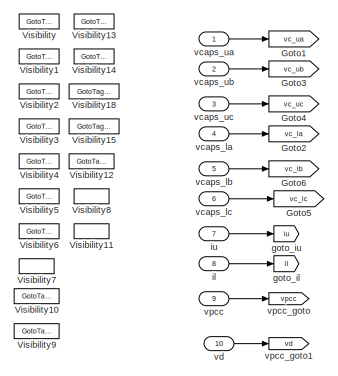
[diagram: SM_MMC/MMC2/Control Box MMC2 - part 1/3, top left region]
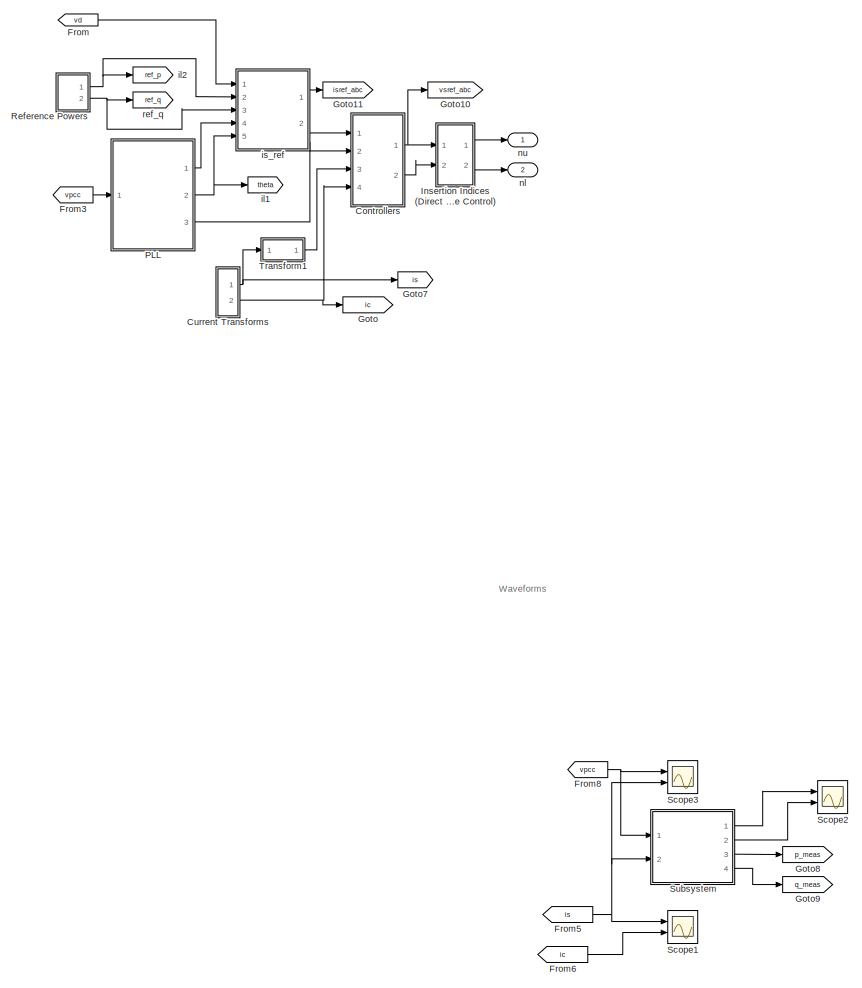
[diagram: SM_MMC/MMC2/Control Box MMC2 - part 2/3, left side, full height]
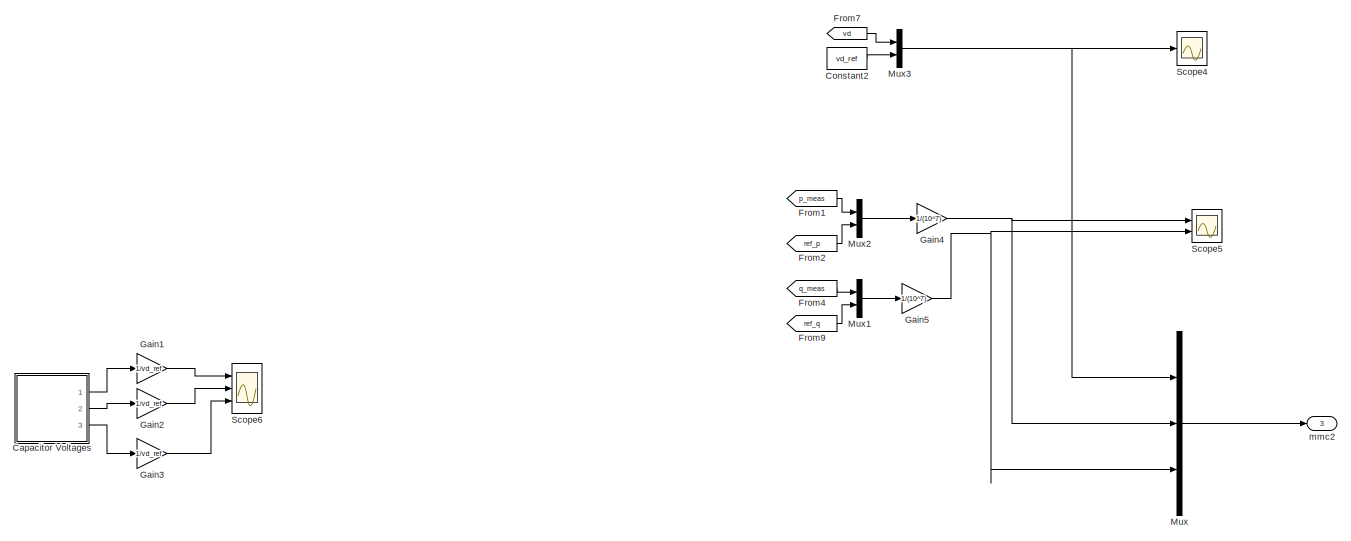
[diagram: SM_MMC/MMC2/Control Box MMC2 - part 3/3, middle right region]
BLOCK [SubSystem] SM_MMC/MMC2/Control Box MMC2
  Ports = [10, 3]
  RequestExecContextInheritance = off
BLOCK [SubSystem] SM_MMC/MMC2/Control Box MMC2/Capacitor Voltages
  Ports = [0, 3]
  RequestExecContextInheritance = off
BLOCK [From] SM_MMC/MMC2/Control Box MMC2/Capacitor Voltages/From
  GotoTag = vc_ua
  TagVisibility = scoped
BLOCK [From] SM_MMC/MMC2/Control Box MMC2/Capacitor Voltages/From1
  GotoTag = vc_la
  TagVisibility = scoped
BLOCK [From] SM_MMC/MMC2/Control Box MMC2/Capacitor Voltages/From2
  GotoTag = vc_ub
  TagVisibility = scoped
BLOCK [From] SM_MMC/MMC2/Control Box MMC2/Capacitor Voltages/From3
  GotoTag = vc_lb
  TagVisibility = scoped
BLOCK [From] SM_MMC/MMC2/Control Box MMC2/Capacitor Voltages/From4
  GotoTag = vc_uc
  TagVisibility = scoped
BLOCK [From] SM_MMC/MMC2/Control Box MMC2/Capacitor Voltages/From5
  GotoTag = vc_lc
  TagVisibility = scoped
BLOCK [Mux] SM_MMC/MMC2/Control Box MMC2/Capacitor Voltages/Mux
  DisplayOption = bar
  Inputs = 2
  Ports = [2, 1]
BLOCK [Mux] SM_MMC/MMC2/Control Box MMC2/Capacitor Voltages/Mux2
  DisplayOption = bar
  Inputs = 2
  Ports = [2, 1]
BLOCK [Mux] SM_MMC/MMC2/Control Box MMC2/Capacitor Voltages/Mux3
  DisplayOption = bar
  Inputs = 2
  Ports = [2, 1]
BLOCK [Sum] SM_MMC/MMC2/Control Box MMC2/Capacitor Voltages/Sum of Elements
  InputSameDT = off
  Inputs = +
  OutDataTypeStr = Inherit: Inherit via internal rule
  Ports = [1, 1]
  SaturateOnIntegerOverflow = off
BLOCK [Sum] SM_MMC/MMC2/Control Box MMC2/Capacitor Voltages/Sum of Elements1
  InputSameDT = off
  Inputs = +
  OutDataTypeStr = Inherit: Inherit via internal rule
  Ports = [1, 1]
  SaturateOnIntegerOverflow = off
BLOCK [Sum] SM_MMC/MMC2/Control Box MMC2/Capacitor Voltages/Sum of Elements2
  InputSameDT = off
  Inputs = +
  OutDataTypeStr = Inherit: Inherit via internal rule
  Ports = [1, 1]
  SaturateOnIntegerOverflow = off
BLOCK [Sum] SM_MMC/MMC2/Control Box MMC2/Capacitor Voltages/Sum of Elements3
  InputSameDT = off
  Inputs = +
  OutDataTypeStr = Inherit: Inherit via internal rule
  Ports = [1, 1]
  SaturateOnIntegerOverflow = off
BLOCK [Sum] SM_MMC/MMC2/Control Box MMC2/Capacitor Voltages/Sum of Elements4
  InputSameDT = off
  Inputs = +
  OutDataTypeStr = Inherit: Inherit via internal rule
  Ports = [1, 1]
  SaturateOnIntegerOverflow = off
BLOCK [Sum] SM_MMC/MMC2/Control Box MMC2/Capacitor Voltages/Sum of Elements5
  InputSameDT = off
  Inputs = +
  OutDataTypeStr = Inherit: Inherit via internal rule
  Ports = [1, 1]
  SaturateOnIntegerOverflow = off
BLOCK [Outport] SM_MMC/MMC2/Control Box MMC2/Capacitor Voltages/sum_vca_ul
  IconDisplay = Port number
BLOCK [Outport] SM_MMC/MMC2/Control Box MMC2/Capacitor Voltages/sum_vcb_ul
  IconDisplay = Port number
  Port = 2
BLOCK [Outport] SM_MMC/MMC2/Control Box MMC2/Capacitor Voltages/sum_vcc_ul
  IconDisplay = Port number
  Port = 3
BLOCK [Constant] SM_MMC/MMC2/Control Box MMC2/Constant2
  Value = vd_ref
BLOCK [SubSystem] SM_MMC/MMC2/Control Box MMC2/Controllers
  Ports = [4, 2]
  RequestExecContextInheritance = off
BLOCK [SubSystem] SM_MMC/MMC2/Control Box MMC2/Controllers/Circulating Current and Arm Energy Controller
  Ports = [1, 1]
  RequestExecContextInheritance = off
BLOCK [SubSystem] SM_MMC/MMC2/Control Box MMC2/Controllers/Circulating Current and Arm Energy Controller/BW
  Ports = [3, 1]
  RequestExecContextInheritance = off
BLOCK [Product] SM_MMC/MMC2/Control Box MMC2/Controllers/Circulating Current and Arm Energy Controller/BW/Divide3
  InputSameDT = off
  Inputs = **
  OutDataTypeStr = Inherit: Inherit via internal rule
  Ports = [2, 1]
  RndMeth = Floor
  SaturateOnIntegerOverflow = off
BLOCK [Product] SM_MMC/MMC2/Control Box MMC2/Controllers/Circulating Current and Arm Energy Controller/BW/Divide4
  InputSameDT = off
  Inputs = **
  OutDataTypeStr = Inherit: Inherit via internal rule
  Ports = [2, 1]
  RndMeth = Floor
  SaturateOnIntegerOverflow = off
BLOCK [Gain] SM_MMC/MMC2/Control Box MMC2/Controllers/Circulating Current and Arm Energy Controller/BW/Gain7
  Gain = sqrt(2)
  OutDataTypeStr = Inherit: Inherit via internal rule
  ParamDataTypeStr = Inherit: Inherit via internal rule
  SaturateOnIntegerOverflow = off
BLOCK [Gain] SM_MMC/MMC2/Control Box MMC2/Controllers/Circulating Current and Arm Energy Controller/BW/Gain8
  Gain = 1/sqrt(2)
  OutDataTypeStr = Inherit: Inherit via internal rule
  ParamDataTypeStr = Inherit: Inherit via internal rule
  SaturateOnIntegerOverflow = off
BLOCK [Inport] SM_MMC/MMC2/Control Box MMC2/Controllers/Circulating Current and Arm Energy Controller/BW/In
  IconDisplay = Port number
BLOCK [Integrator] SM_MMC/MMC2/Control Box MMC2/Controllers/Circulating Current and Arm Energy Controller/BW/Integrator
  ExternalReset = level
  Ports = [2, 1]
BLOCK [Integrator] SM_MMC/MMC2/Control Box MMC2/Controllers/Circulating Current and Arm Energy Controller/BW/Integrator1
  ExternalReset = level
  Ports = [2, 1]
BLOCK [Outport] SM_MMC/MMC2/Control Box MMC2/Controllers/Circulating Current and Arm Energy Controller/BW/Out
  IconDisplay = Port number
BLOCK [Inport] SM_MMC/MMC2/Control Box MMC2/Controllers/Circulating Current and Arm Energy Controller/BW/RST
  IconDisplay = Port number
  Port = 3
BLOCK [Sum] SM_MMC/MMC2/Control Box MMC2/Controllers/Circulating Current and Arm Energy Controller/BW/Sum1
  IconShape = round
  InputSameDT = off
  Inputs = -+|
  OutDataTypeStr = Inherit: Inherit via internal rule
  Ports = [2, 1]
  SaturateOnIntegerOverflow = off
BLOCK [Sum] SM_MMC/MMC2/Control Box MMC2/Controllers/Circulating Current and Arm Energy Controller/BW/Sum2
  IconShape = round
  InputSameDT = off
  Inputs = |+-
  OutDataTypeStr = Inherit: Inherit via internal rule
  Ports = [2, 1]
  SaturateOnIntegerOverflow = off
BLOCK [Inport] SM_MMC/MMC2/Control Box MMC2/Controllers/Circulating Current and Arm Energy Controller/BW/alpha
  IconDisplay = Port number
  Port = 2
BLOCK [Constant] SM_MMC/MMC2/Control Box MMC2/Controllers/Circulating Current and Arm Energy Controller/Constant2
  Value = vd_ref/2
BLOCK [Constant] SM_MMC/MMC2/Control Box MMC2/Controllers/Circulating Current and Arm Energy Controller/Constant4
  SampleTime = -1
  Value = ccc.alpha_cr
BLOCK [Product] SM_MMC/MMC2/Control Box MMC2/Controllers/Circulating Current and Arm Energy Controller/Divide
  InputSameDT = off
  Inputs = **
  OutDataTypeStr = Inherit: Inherit via internal rule
  Ports = [2, 1]
  RndMeth = Floor
  SaturateOnIntegerOverflow = off
BLOCK [Step] SM_MMC/MMC2/Control Box MMC2/Controllers/Circulating Current and Arm Energy Controller/Enable Icirc controller Time: time_enable_int_ctrl
  After = ccc.enable_int_ctrl
  SampleTime = 0
  Time = ccc.time_enable_int_ctrl
BLOCK [From] SM_MMC/MMC2/Control Box MMC2/Controllers/Circulating Current and Arm Energy Controller/From
  GotoTag = IC_RST2
  TagVisibility = scoped
BLOCK [Goto] SM_MMC/MMC2/Control Box MMC2/Controllers/Circulating Current and Arm Energy Controller/Goto
  GotoTag = IC_RST2
  TagVisibility = scoped
BLOCK [GotoTagVisibility] SM_MMC/MMC2/Control Box MMC2/Controllers/Circulating Current and Arm Energy Controller/Goto Tag Visibility
  GotoTag = IC_RST2
BLOCK [GotoTagVisibility] SM_MMC/MMC2/Control Box MMC2/Controllers/Circulating Current and Arm Energy Controller/Goto Tag Visibility1
  GotoTag = enable_W_ctrl2
BLOCK [Goto] SM_MMC/MMC2/Control Box MMC2/Controllers/Circulating Current and Arm Energy Controller/Goto1
  GotoTag = enable_W_ctrl2
  TagVisibility = scoped
BLOCK [Inport] SM_MMC/MMC2/Control Box MMC2/Controllers/Circulating Current and Arm Energy Controller/Ic
  IconDisplay = Port number
BLOCK [Logic] SM_MMC/MMC2/Control Box MMC2/Controllers/Circulating Current and Arm Energy Controller/Logical Operator
  AllPortsSameDT = off
  Operator = NOT
  OutDataTypeStr = boolean
  Ports = [1, 1]
BLOCK [Sum] SM_MMC/MMC2/Control Box MMC2/Controllers/Circulating Current and Arm Energy Controller/Sum1
  IconShape = round
  InputSameDT = off
  Inputs = |+-
  OutDataTypeStr = Inherit: Inherit via internal rule
  Ports = [2, 1]
  SaturateOnIntegerOverflow = off
BLOCK [Sum] SM_MMC/MMC2/Control Box MMC2/Controllers/Circulating Current and Arm Energy Controller/Sum3
  IconShape = round
  InputSameDT = off
  Inputs = |++
  OutDataTypeStr = Inherit: Inherit via internal rule
  Ports = [2, 1]
  SaturateOnIntegerOverflow = off
BLOCK [Sum] SM_MMC/MMC2/Control Box MMC2/Controllers/Circulating Current and Arm Energy Controller/Sum4
  IconShape = round
  InputSameDT = off
  Inputs = |++
  OutDataTypeStr = Inherit: Inherit via internal rule
  Ports = [2, 1]
  SaturateOnIntegerOverflow = off
BLOCK [SubSystem] SM_MMC/MMC2/Control Box MMC2/Controllers/Circulating Current and Arm Energy Controller/arm energy controller 
  Ports = [0, 1]
  RequestExecContextInheritance = off
BLOCK [Product] SM_MMC/MMC2/Control Box MMC2/Controllers/Circulating Current and Arm Energy Controller/arm energy controller /Divide1
  InputSameDT = off
  Inputs = **
  OutDataTypeStr = Inherit: Inherit via internal rule
  Ports = [2, 1]
  RndMeth = Floor
  SaturateOnIntegerOverflow = off
BLOCK [Step] SM_MMC/MMC2/Control Box MMC2/Controllers/Circulating Current and Arm Energy Controller/arm energy controller /Enable W controller Time: time_enable_W_ctrl
  After = aec.enable_W_ctrl
  SampleTime = 0
  Time = aec.time_enable_W_ctrl
BLOCK [From] SM_MMC/MMC2/Control Box MMC2/Controllers/Circulating Current and Arm Energy Controller/arm energy controller /From
  GotoTag = theta
  TagVisibility = scoped
BLOCK [Scope] SM_MMC/MMC2/Control Box MMC2/Controllers/Circulating Current and Arm Energy Controller/arm energy controller /Scope3
  Floating = off
  NumInputPorts = 1
  Ports = [1]
  ScopeSpecificationString = Simulink.scopes.TimeScopeBlockCfg('CurrentConfiguration', extmgr.ConfigurationSet(extmgr.Configuration('Core','General UI',true,'FigureColor',[0.156862745098039 0.156862745098039 0.156862745098039]),extmgr.Configuration('Core','Source UI',true),extmgr.Configuration('Sources','WiredSimulink',true,'DataLoggingVariableName','ScopeData4','DataLoggingSaveFormat','StructureWithTime','DataLoggingDecimati...<+2865ch>
BLOCK [Scope] SM_MMC/MMC2/Control Box MMC2/Controllers/Circulating Current and Arm Energy Controller/arm energy controller /Scope7
  Floating = off
  NumInputPorts = 1
  Ports = [1]
  ScopeSpecificationString = Simulink.scopes.TimeScopeBlockCfg('CurrentConfiguration', extmgr.ConfigurationSet(extmgr.Configuration('Core','General UI',true,'FigureColor',[0.156862745098039 0.156862745098039 0.156862745098039]),extmgr.Configuration('Core','Source UI',true),extmgr.Configuration('Sources','WiredSimulink',true,'DataLoggingVariableName','ScopeData11','DataLoggingSaveFormat','StructureWithTime','DataLoggingDecimat...<+2891ch>
BLOCK [Scope] SM_MMC/MMC2/Control Box MMC2/Controllers/Circulating Current and Arm Energy Controller/arm energy controller /Scope8
  Floating = off
  NumInputPorts = 1
  Ports = [1]
  ScopeSpecificationString = Simulink.scopes.TimeScopeBlockCfg('CurrentConfiguration', extmgr.ConfigurationSet(extmgr.Configuration('Core','General UI',true,'FigureColor',[0.156862745098039 0.156862745098039 0.156862745098039]),extmgr.Configuration('Core','Source UI',true),extmgr.Configuration('Sources','WiredSimulink',true,'DataLoggingVariableName','ScopeData12','DataLoggingSaveFormat','StructureWithTime','DataLoggingDecimat...<+2880ch>
BLOCK [Sum] SM_MMC/MMC2/Control Box MMC2/Controllers/Circulating Current and Arm Energy Controller/arm energy controller /Sum2
  IconShape = round
  InputSameDT = off
  Inputs = |+-
  OutDataTypeStr = Inherit: Inherit via internal rule
  Ports = [2, 1]
  SaturateOnIntegerOverflow = off
BLOCK [SubSystem] SM_MMC/MMC2/Control Box MMC2/Controllers/Circulating Current and Arm Energy Controller/arm energy controller /Wdelta  Controller
  Ports = [1, 1]
  RequestExecContextInheritance = off
BLOCK [Constant] SM_MMC/MMC2/Control Box MMC2/Controllers/Circulating Current and Arm Energy Controller/arm energy controller /Wdelta  Controller/  Wdelta*
  Value = 0
BLOCK [Demux] SM_MMC/MMC2/Control Box MMC2/Controllers/Circulating Current and Arm Energy Controller/arm energy controller /Wdelta  Controller/Demux2
  DisplayOption = bar
  Outputs = 3
  Ports = [1, 3]
BLOCK [From] SM_MMC/MMC2/Control Box MMC2/Controllers/Circulating Current and Arm Energy Controller/arm energy controller /Wdelta  Controller/From
  GotoTag = vc_ua
  TagVisibility = scoped
BLOCK [From] SM_MMC/MMC2/Control Box MMC2/Controllers/Circulating Current and Arm Energy Controller/arm energy controller /Wdelta  Controller/From1
  GotoTag = vc_la
  TagVisibility = scoped
BLOCK [From] SM_MMC/MMC2/Control Box MMC2/Controllers/Circulating Current and Arm Energy Controller/arm energy controller /Wdelta  Controller/From2
  GotoTag = vc_ub
  TagVisibility = scoped
BLOCK [From] SM_MMC/MMC2/Control Box MMC2/Controllers/Circulating Current and Arm Energy Controller/arm energy controller /Wdelta  Controller/From3
  GotoTag = vc_lb
  TagVisibility = scoped
BLOCK [From] SM_MMC/MMC2/Control Box MMC2/Controllers/Circulating Current and Arm Energy Controller/arm energy controller /Wdelta  Controller/From4
  GotoTag = vc_uc
  TagVisibility = scoped
BLOCK [From] SM_MMC/MMC2/Control Box MMC2/Controllers/Circulating Current and Arm Energy Controller/arm energy controller /Wdelta  Controller/From5
  GotoTag = vc_lc
  TagVisibility = scoped
BLOCK [Goto] SM_MMC/MMC2/Control Box MMC2/Controllers/Circulating Current and Arm Energy Controller/arm energy controller /Wdelta  Controller/Goto
  GotoTag = ca
  TagVisibility = scoped
BLOCK [GotoTagVisibility] SM_MMC/MMC2/Control Box MMC2/Controllers/Circulating Current and Arm Energy Controller/arm energy controller /Wdelta  Controller/Goto Tag Visibility
  GotoTag = ca
BLOCK [GotoTagVisibility] SM_MMC/MMC2/Control Box MMC2/Controllers/Circulating Current and Arm Energy Controller/arm energy controller /Wdelta  Controller/Goto Tag Visibility1
  GotoTag = cb
BLOCK [GotoTagVisibility] SM_MMC/MMC2/Control Box MMC2/Controllers/Circulating Current and Arm Energy Controller/arm energy controller /Wdelta  Controller/Goto Tag Visibility2
  GotoTag = cc
BLOCK [Goto] SM_MMC/MMC2/Control Box MMC2/Controllers/Circulating Current and Arm Energy Controller/arm energy controller /Wdelta  Controller/Goto1
  GotoTag = cb
  TagVisibility = scoped
BLOCK [Goto] SM_MMC/MMC2/Control Box MMC2/Controllers/Circulating Current and Arm Energy Controller/arm energy controller /Wdelta  Controller/Goto2
  GotoTag = cc
  TagVisibility = scoped
BLOCK [Gain] SM_MMC/MMC2/Control Box MMC2/Controllers/Circulating Current and Arm Energy Controller/arm energy controller /Wdelta  Controller/Kp_Wdelta
  Gain = aec.Kp_Wdelta
  OutDataTypeStr = Inherit: Inherit via internal rule
  ParamDataTypeStr = Inherit: Inherit via internal rule
  SaturateOnIntegerOverflow = off
BLOCK [Mux] SM_MMC/MMC2/Control Box MMC2/Controllers/Circulating Current and Arm Energy Controller/arm energy controller /Wdelta  Controller/Mux
  DisplayOption = bar
  Inputs = 2
  Ports = [2, 1]
BLOCK [Mux] SM_MMC/MMC2/Control Box MMC2/Controllers/Circulating Current and Arm Energy Controller/arm energy controller /Wdelta  Controller/Mux1
  DisplayOption = bar
  Inputs = 3
  Ports = [3, 1]
BLOCK [Scope] SM_MMC/MMC2/Control Box MMC2/Controllers/Circulating Current and Arm Energy Controller/arm energy controller /Wdelta  Controller/Scope7
  Floating = off
  NumInputPorts = 1
  Ports = [1]
  ScopeSpecificationString = Simulink.scopes.TimeScopeBlockCfg('CurrentConfiguration', extmgr.ConfigurationSet(extmgr.Configuration('Core','General UI',true,'FigureColor',[0.156862745098039 0.156862745098039 0.156862745098039]),extmgr.Configuration('Core','Source UI',true),extmgr.Configuration('Sources','WiredSimulink',true,'DataLoggingVariableName','ScopeData2','DataLoggingSaveFormat','StructureWithTime','DataLoggingDecimati...<+2938ch>
BLOCK [Sum] SM_MMC/MMC2/Control Box MMC2/Controllers/Circulating Current and Arm Energy Controller/arm energy controller /Wdelta  Controller/Sum6
  IconShape = round
  InputSameDT = off
  Inputs = +-
  OutDataTypeStr = Inherit: Inherit via internal rule
  Ports = [2, 1]
  SaturateOnIntegerOverflow = off
BLOCK [SubSystem] SM_MMC/MMC2/Control Box MMC2/Controllers/Circulating Current and Arm Energy Controller/arm energy controller /Wdelta  Controller/correction
  Ports = [1, 1]
  RequestExecContextInheritance = off
BLOCK [Constant] SM_MMC/MMC2/Control Box MMC2/Controllers/Circulating Current and Arm Energy Controller/arm energy controller /Wdelta  Controller/correction/  1
  Value = pi/2
BLOCK [Constant] SM_MMC/MMC2/Control Box MMC2/Controllers/Circulating Current and Arm Energy Controller/arm energy controller /Wdelta  Controller/correction/  2
  Value = pi/2
BLOCK [Constant] SM_MMC/MMC2/Control Box MMC2/Controllers/Circulating Current and Arm Energy Controller/arm energy controller /Wdelta  Controller/correction/  3
  Value = pi/2
BLOCK [Sum] SM_MMC/MMC2/Control Box MMC2/Controllers/Circulating Current and Arm Energy Controller/arm energy controller /Wdelta  Controller/correction/Add
  InputSameDT = off
  Inputs = +++
  OutDataTypeStr = Inherit: Inherit via internal rule
  Ports = [3, 1]
  SaturateOnIntegerOverflow = off
BLOCK [Sum] SM_MMC/MMC2/Control Box MMC2/Controllers/Circulating Current and Arm Energy Controller/arm energy controller /Wdelta  Controller/correction/Add1
  InputSameDT = off
  Inputs = +++
  OutDataTypeStr = Inherit: Inherit via internal rule
  Ports = [3, 1]
  SaturateOnIntegerOverflow = off
BLOCK [Sum] SM_MMC/MMC2/Control Box MMC2/Controllers/Circulating Current and Arm Energy Controller/arm energy controller /Wdelta  Controller/correction/Add2
  InputSameDT = off
  Inputs = +++
  OutDataTypeStr = Inherit: Inherit via internal rule
  Ports = [3, 1]
  SaturateOnIntegerOverflow = off
BLOCK [Demux] SM_MMC/MMC2/Control Box MMC2/Controllers/Circulating Current and Arm Energy Controller/arm energy controller /Wdelta  Controller/correction/Demux3
  DisplayOption = bar
  Outputs = 3
  Ports = [1, 3]
BLOCK [Demux] SM_MMC/MMC2/Control Box MMC2/Controllers/Circulating Current and Arm Energy Controller/arm energy controller /Wdelta  Controller/correction/Demux4
  DisplayOption = bar
  Outputs = 3
  Ports = [1, 3]
BLOCK [Demux] SM_MMC/MMC2/Control Box MMC2/Controllers/Circulating Current and Arm Energy Controller/arm energy controller /Wdelta  Controller/correction/Demux5
  DisplayOption = bar
  Outputs = 3
  Ports = [1, 3]
BLOCK [Fcn] SM_MMC/MMC2/Control Box MMC2/Controllers/Circulating Current and Arm Energy Controller/arm energy controller /Wdelta  Controller/correction/Fcn
  Expr = u(1)-2*pi/3
BLOCK [Fcn] SM_MMC/MMC2/Control Box MMC2/Controllers/Circulating Current and Arm Energy Controller/arm energy controller /Wdelta  Controller/correction/Fcn1
  Expr = u(1)+2*pi/3
BLOCK [From] SM_MMC/MMC2/Control Box MMC2/Controllers/Circulating Current and Arm Energy Controller/arm energy controller /Wdelta  Controller/correction/From
  GotoTag = cb
  TagVisibility = scoped
BLOCK [From] SM_MMC/MMC2/Control Box MMC2/Controllers/Circulating Current and Arm Energy Controller/arm energy controller /Wdelta  Controller/correction/From1
  GotoTag = cb
  TagVisibility = scoped
BLOCK [From] SM_MMC/MMC2/Control Box MMC2/Controllers/Circulating Current and Arm Energy Controller/arm energy controller /Wdelta  Controller/correction/From10
  GotoTag = ca
  TagVisibility = scoped
BLOCK [From] SM_MMC/MMC2/Control Box MMC2/Controllers/Circulating Current and Arm Energy Controller/arm energy controller /Wdelta  Controller/correction/From12
  GotoTag = cb
  TagVisibility = scoped
BLOCK [From] SM_MMC/MMC2/Control Box MMC2/Controllers/Circulating Current and Arm Energy Controller/arm energy controller /Wdelta  Controller/correction/From2
  GotoTag = cc
  TagVisibility = scoped
BLOCK [From] SM_MMC/MMC2/Control Box MMC2/Controllers/Circulating Current and Arm Energy Controller/arm energy controller /Wdelta  Controller/correction/From3
  GotoTag = cc
  TagVisibility = scoped
BLOCK [From] SM_MMC/MMC2/Control Box MMC2/Controllers/Circulating Current and Arm Energy Controller/arm energy controller /Wdelta  Controller/correction/From4
  GotoTag = cc
  TagVisibility = scoped
BLOCK [From] SM_MMC/MMC2/Control Box MMC2/Controllers/Circulating Current and Arm Energy Controller/arm energy controller /Wdelta  Controller/correction/From7
  GotoTag = ca
  TagVisibility = scoped
BLOCK [From] SM_MMC/MMC2/Control Box MMC2/Controllers/Circulating Current and Arm Energy Controller/arm energy controller /Wdelta  Controller/correction/From9
  GotoTag = ca
  TagVisibility = scoped
BLOCK [Gain] SM_MMC/MMC2/Control Box MMC2/Controllers/Circulating Current and Arm Energy Controller/arm energy controller /Wdelta  Controller/correction/Ki_ver1
  Gain = 1/sqrt(3)
  OutDataTypeStr = Inherit: Inherit via internal rule
  ParamDataTypeStr = Inherit: Inherit via internal rule
  SaturateOnIntegerOverflow = off
BLOCK [Gain] SM_MMC/MMC2/Control Box MMC2/Controllers/Circulating Current and Arm Energy Controller/arm energy controller /Wdelta  Controller/correction/Ki_ver2
  Gain = 1/sqrt(3)
  OutDataTypeStr = Inherit: Inherit via internal rule
  ParamDataTypeStr = Inherit: Inherit via internal rule
  SaturateOnIntegerOverflow = off
BLOCK [Gain] SM_MMC/MMC2/Control Box MMC2/Controllers/Circulating Current and Arm Energy Controller/arm energy controller /Wdelta  Controller/correction/Ki_ver4
  Gain = 1/sqrt(3)
  OutDataTypeStr = Inherit: Inherit via internal rule
  ParamDataTypeStr = Inherit: Inherit via internal rule
  SaturateOnIntegerOverflow = off
BLOCK [Gain] SM_MMC/MMC2/Control Box MMC2/Controllers/Circulating Current and Arm Energy Controller/arm energy controller /Wdelta  Controller/correction/Ki_ver5
  Gain = 1/sqrt(3)
  OutDataTypeStr = Inherit: Inherit via internal rule
  ParamDataTypeStr = Inherit: Inherit via internal rule
  SaturateOnIntegerOverflow = off
BLOCK [Gain] SM_MMC/MMC2/Control Box MMC2/Controllers/Circulating Current and Arm Energy Controller/arm energy controller /Wdelta  Controller/correction/Ki_ver7
  Gain = 1/sqrt(3)
  OutDataTypeStr = Inherit: Inherit via internal rule
  ParamDataTypeStr = Inherit: Inherit via internal rule
  SaturateOnIntegerOverflow = off
BLOCK [Gain] SM_MMC/MMC2/Control Box MMC2/Controllers/Circulating Current and Arm Energy Controller/arm energy controller /Wdelta  Controller/correction/Ki_ver8
  Gain = 1/sqrt(3)
  OutDataTypeStr = Inherit: Inherit via internal rule
  ParamDataTypeStr = Inherit: Inherit via internal rule
  SaturateOnIntegerOverflow = off
BLOCK [Mux] SM_MMC/MMC2/Control Box MMC2/Controllers/Circulating Current and Arm Energy Controller/arm energy controller /Wdelta  Controller/correction/Mux2
  DisplayOption = bar
  Inputs = 3
  Ports = [3, 1]
BLOCK [Mux] SM_MMC/MMC2/Control Box MMC2/Controllers/Circulating Current and Arm Energy Controller/arm energy controller /Wdelta  Controller/correction/Mux3
  DisplayOption = bar
  Inputs = 3
  Ports = [3, 1]
BLOCK [Mux] SM_MMC/MMC2/Control Box MMC2/Controllers/Circulating Current and Arm Energy Controller/arm energy controller /Wdelta  Controller/correction/Mux4
  DisplayOption = bar
  Inputs = 3
  Ports = [3, 1]
BLOCK [Mux] SM_MMC/MMC2/Control Box MMC2/Controllers/Circulating Current and Arm Energy Controller/arm energy controller /Wdelta  Controller/correction/Mux5
  DisplayOption = bar
  Inputs = 3
  Ports = [3, 1]
BLOCK [Product] SM_MMC/MMC2/Control Box MMC2/Controllers/Circulating Current and Arm Energy Controller/arm energy controller /Wdelta  Controller/correction/Product
  InputSameDT = off
  OutDataTypeStr = Inherit: Inherit via internal rule
  Ports = [2, 1]
  RndMeth = Floor
  SaturateOnIntegerOverflow = off
BLOCK [Product] SM_MMC/MMC2/Control Box MMC2/Controllers/Circulating Current and Arm Energy Controller/arm energy controller /Wdelta  Controller/correction/Product1
  InputSameDT = off
  OutDataTypeStr = Inherit: Inherit via internal rule
  Ports = [2, 1]
  RndMeth = Floor
  SaturateOnIntegerOverflow = off
BLOCK [Product] SM_MMC/MMC2/Control Box MMC2/Controllers/Circulating Current and Arm Energy Controller/arm energy controller /Wdelta  Controller/correction/Product2
  InputSameDT = off
  OutDataTypeStr = Inherit: Inherit via internal rule
  Ports = [2, 1]
  RndMeth = Floor
  SaturateOnIntegerOverflow = off
BLOCK [Product] SM_MMC/MMC2/Control Box MMC2/Controllers/Circulating Current and Arm Energy Controller/arm energy controller /Wdelta  Controller/correction/Product3
  InputSameDT = off
  OutDataTypeStr = Inherit: Inherit via internal rule
  Ports = [2, 1]
  RndMeth = Floor
  SaturateOnIntegerOverflow = off
BLOCK [Product] SM_MMC/MMC2/Control Box MMC2/Controllers/Circulating Current and Arm Energy Controller/arm energy controller /Wdelta  Controller/correction/Product4
  InputSameDT = off
  OutDataTypeStr = Inherit: Inherit via internal rule
  Ports = [2, 1]
  RndMeth = Floor
  SaturateOnIntegerOverflow = off
BLOCK [Product] SM_MMC/MMC2/Control Box MMC2/Controllers/Circulating Current and Arm Energy Controller/arm energy controller /Wdelta  Controller/correction/Product5
  InputSameDT = off
  OutDataTypeStr = Inherit: Inherit via internal rule
  Ports = [2, 1]
  RndMeth = Floor
  SaturateOnIntegerOverflow = off
BLOCK [Product] SM_MMC/MMC2/Control Box MMC2/Controllers/Circulating Current and Arm Energy Controller/arm energy controller /Wdelta  Controller/correction/Product6
  InputSameDT = off
  OutDataTypeStr = Inherit: Inherit via internal rule
  Ports = [2, 1]
  RndMeth = Floor
  SaturateOnIntegerOverflow = off
BLOCK [Product] SM_MMC/MMC2/Control Box MMC2/Controllers/Circulating Current and Arm Energy Controller/arm energy controller /Wdelta  Controller/correction/Product7
  InputSameDT = off
  OutDataTypeStr = Inherit: Inherit via internal rule
  Ports = [2, 1]
  RndMeth = Floor
  SaturateOnIntegerOverflow = off
BLOCK [Product] SM_MMC/MMC2/Control Box MMC2/Controllers/Circulating Current and Arm Energy Controller/arm energy controller /Wdelta  Controller/correction/Product8
  InputSameDT = off
  OutDataTypeStr = Inherit: Inherit via internal rule
  Ports = [2, 1]
  RndMeth = Floor
  SaturateOnIntegerOverflow = off
BLOCK [Sum] SM_MMC/MMC2/Control Box MMC2/Controllers/Circulating Current and Arm Energy Controller/arm energy controller /Wdelta  Controller/correction/Sum1
  IconShape = round
  InputSameDT = off
  Inputs = |+-
  OutDataTypeStr = Inherit: Inherit via internal rule
  Ports = [2, 1]
  SaturateOnIntegerOverflow = off
BLOCK [Sum] SM_MMC/MMC2/Control Box MMC2/Controllers/Circulating Current and Arm Energy Controller/arm energy controller /Wdelta  Controller/correction/Sum18
  IconShape = round
  InputSameDT = off
  Inputs = |+-
  OutDataTypeStr = Inherit: Inherit via internal rule
  Ports = [2, 1]
  SaturateOnIntegerOverflow = off
BLOCK [Sum] SM_MMC/MMC2/Control Box MMC2/Controllers/Circulating Current and Arm Energy Controller/arm energy controller /Wdelta  Controller/correction/Sum2
  IconShape = round
  InputSameDT = off
  Inputs = |++
  OutDataTypeStr = Inherit: Inherit via internal rule
  Ports = [2, 1]
  SaturateOnIntegerOverflow = off
BLOCK [Sum] SM_MMC/MMC2/Control Box MMC2/Controllers/Circulating Current and Arm Energy Controller/arm energy controller /Wdelta  Controller/correction/Sum3
  IconShape = round
  InputSameDT = off
  Inputs = |++
  OutDataTypeStr = Inherit: Inherit via internal rule
  Ports = [2, 1]
  SaturateOnIntegerOverflow = off
BLOCK [Sum] SM_MMC/MMC2/Control Box MMC2/Controllers/Circulating Current and Arm Energy Controller/arm energy controller /Wdelta  Controller/correction/Sum4
  IconShape = round
  InputSameDT = off
  Inputs = |+-
  OutDataTypeStr = Inherit: Inherit via internal rule
  Ports = [2, 1]
  SaturateOnIntegerOverflow = off
BLOCK [Sum] SM_MMC/MMC2/Control Box MMC2/Controllers/Circulating Current and Arm Energy Controller/arm energy controller /Wdelta  Controller/correction/Sum7
  IconShape = round
  InputSameDT = off
  Inputs = |++
  OutDataTypeStr = Inherit: Inherit via internal rule
  Ports = [2, 1]
  SaturateOnIntegerOverflow = off
BLOCK [Outport] SM_MMC/MMC2/Control Box MMC2/Controllers/Circulating Current and Arm Energy Controller/arm energy controller /Wdelta  Controller/correction/delta_i
  IconDisplay = Port number
BLOCK [Trigonometry] SM_MMC/MMC2/Control Box MMC2/Controllers/Circulating Current and Arm Energy Controller/arm energy controller /Wdelta  Controller/correction/maybe
  Operator = cos
  Ports = [1, 1]
BLOCK [Trigonometry] SM_MMC/MMC2/Control Box MMC2/Controllers/Circulating Current and Arm Energy Controller/arm energy controller /Wdelta  Controller/correction/maybe1
  Operator = cos
  Ports = [1, 1]
BLOCK [Trigonometry] SM_MMC/MMC2/Control Box MMC2/Controllers/Circulating Current and Arm Energy Controller/arm energy controller /Wdelta  Controller/correction/maybe2
  Operator = cos
  Ports = [1, 1]
BLOCK [Inport] SM_MMC/MMC2/Control Box MMC2/Controllers/Circulating Current and Arm Energy Controller/arm energy controller /Wdelta  Controller/correction/theta
  IconDisplay = Port number
BLOCK [Outport] SM_MMC/MMC2/Control Box MMC2/Controllers/Circulating Current and Arm Energy Controller/arm energy controller /Wdelta  Controller/icWdelta*
  IconDisplay = Port number
BLOCK [SubSystem] SM_MMC/MMC2/Control Box MMC2/Controllers/Circulating Current and Arm Energy Controller/arm energy controller /Wdelta  Controller/ripple pass (leg a)
  Ports = [2, 1]
  RequestExecContextInheritance = off
BLOCK [TransferFcn] SM_MMC/MMC2/Control Box MMC2/Controllers/Circulating Current and Arm Energy Controller/arm energy controller /Wdelta  Controller/ripple pass (leg a)/BandStop @100Hz_10kHz
  Denominator = [1 2*2*w 2*w*2*w]
  Numerator = [1 0 2*w*2*w]
BLOCK [TransferFcn] SM_MMC/MMC2/Control Box MMC2/Controllers/Circulating Current and Arm Energy Controller/arm energy controller /Wdelta  Controller/ripple pass (leg a)/BandStop @50Hz_10kHz1
  Denominator = [1 2*w w*w]
  Numerator = [1 0 w*w]
BLOCK [Gain] SM_MMC/MMC2/Control Box MMC2/Controllers/Circulating Current and Arm Energy Controller/arm energy controller /Wdelta  Controller/ripple pass (leg a)/Gain
  Gain = Csm/2/N
  OutDataTypeStr = Inherit: Inherit via internal rule
  ParamDataTypeStr = Inherit: Inherit via internal rule
  SaturateOnIntegerOverflow = off
BLOCK [Math] SM_MMC/MMC2/Control Box MMC2/Controllers/Circulating Current and Arm Energy Controller/arm energy controller /Wdelta  Controller/ripple pass (leg a)/Math Function
  Operator = square
  Ports = [1, 1]
BLOCK [Math] SM_MMC/MMC2/Control Box MMC2/Controllers/Circulating Current and Arm Energy Controller/arm energy controller /Wdelta  Controller/ripple pass (leg a)/Math Function1
  Operator = square
  Ports = [1, 1]
BLOCK [Outport] SM_MMC/MMC2/Control Box MMC2/Controllers/Circulating Current and Arm Energy Controller/arm energy controller /Wdelta  Controller/ripple pass (leg a)/Out1
  IconDisplay = Port number
BLOCK [Sum] SM_MMC/MMC2/Control Box MMC2/Controllers/Circulating Current and Arm Energy Controller/arm energy controller /Wdelta  Controller/ripple pass (leg a)/Sum
  IconShape = round
  InputSameDT = off
  Inputs = |+-
  OutDataTypeStr = Inherit: Inherit via internal rule
  Ports = [2, 1]
  SaturateOnIntegerOverflow = off
BLOCK [Sum] SM_MMC/MMC2/Control Box MMC2/Controllers/Circulating Current and Arm Energy Controller/arm energy controller /Wdelta  Controller/ripple pass (leg a)/Sum of Elements
  InputSameDT = off
  Inputs = +
  OutDataTypeStr = Inherit: Inherit via internal rule
  Ports = [1, 1]
  SaturateOnIntegerOverflow = off
BLOCK [Sum] SM_MMC/MMC2/Control Box MMC2/Controllers/Circulating Current and Arm Energy Controller/arm energy controller /Wdelta  Controller/ripple pass (leg a)/Sum of Elements1
  InputSameDT = off
  Inputs = +
  OutDataTypeStr = Inherit: Inherit via internal rule
  Ports = [1, 1]
  SaturateOnIntegerOverflow = off
BLOCK [Inport] SM_MMC/MMC2/Control Box MMC2/Controllers/Circulating Current and Arm Energy Controller/arm energy controller /Wdelta  Controller/ripple pass (leg a)/vc_la
  IconDisplay = Port number
  Port = 2
BLOCK [Inport] SM_MMC/MMC2/Control Box MMC2/Controllers/Circulating Current and Arm Energy Controller/arm energy controller /Wdelta  Controller/ripple pass (leg a)/vc_ua
  IconDisplay = Port number
BLOCK [SubSystem] SM_MMC/MMC2/Control Box MMC2/Controllers/Circulating Current and Arm Energy Controller/arm energy controller /Wdelta  Controller/ripple pass (leg b)
  Ports = [2, 1]
  RequestExecContextInheritance = off
BLOCK [TransferFcn] SM_MMC/MMC2/Control Box MMC2/Controllers/Circulating Current and Arm Energy Controller/arm energy controller /Wdelta  Controller/ripple pass (leg b)/BandStop @100Hz_10kHz
  Denominator = [1 2*2*w 2*w*2*w]
  Numerator = [1 0 2*w*2*w]
BLOCK [TransferFcn] SM_MMC/MMC2/Control Box MMC2/Controllers/Circulating Current and Arm Energy Controller/arm energy controller /Wdelta  Controller/ripple pass (leg b)/BandStop @50Hz_10kHz1
  Denominator = [1 2*w w*w]
  Numerator = [1 0 w*w]
BLOCK [Gain] SM_MMC/MMC2/Control Box MMC2/Controllers/Circulating Current and Arm Energy Controller/arm energy controller /Wdelta  Controller/ripple pass (leg b)/Gain
  Gain = Csm/2/N
  OutDataTypeStr = Inherit: Inherit via internal rule
  ParamDataTypeStr = Inherit: Inherit via internal rule
  SaturateOnIntegerOverflow = off
BLOCK [Math] SM_MMC/MMC2/Control Box MMC2/Controllers/Circulating Current and Arm Energy Controller/arm energy controller /Wdelta  Controller/ripple pass (leg b)/Math Function
  Operator = square
  Ports = [1, 1]
BLOCK [Math] SM_MMC/MMC2/Control Box MMC2/Controllers/Circulating Current and Arm Energy Controller/arm energy controller /Wdelta  Controller/ripple pass (leg b)/Math Function1
  Operator = square
  Ports = [1, 1]
BLOCK [Outport] SM_MMC/MMC2/Control Box MMC2/Controllers/Circulating Current and Arm Energy Controller/arm energy controller /Wdelta  Controller/ripple pass (leg b)/Out1
  IconDisplay = Port number
BLOCK [Sum] SM_MMC/MMC2/Control Box MMC2/Controllers/Circulating Current and Arm Energy Controller/arm energy controller /Wdelta  Controller/ripple pass (leg b)/Sum
  IconShape = round
  InputSameDT = off
  Inputs = |+-
  OutDataTypeStr = Inherit: Inherit via internal rule
  Ports = [2, 1]
  SaturateOnIntegerOverflow = off
BLOCK [Sum] SM_MMC/MMC2/Control Box MMC2/Controllers/Circulating Current and Arm Energy Controller/arm energy controller /Wdelta  Controller/ripple pass (leg b)/Sum of Elements
  InputSameDT = off
  Inputs = +
  OutDataTypeStr = Inherit: Inherit via internal rule
  Ports = [1, 1]
  SaturateOnIntegerOverflow = off
BLOCK [Sum] SM_MMC/MMC2/Control Box MMC2/Controllers/Circulating Current and Arm Energy Controller/arm energy controller /Wdelta  Controller/ripple pass (leg b)/Sum of Elements1
  InputSameDT = off
  Inputs = +
  OutDataTypeStr = Inherit: Inherit via internal rule
  Ports = [1, 1]
  SaturateOnIntegerOverflow = off
BLOCK [Inport] SM_MMC/MMC2/Control Box MMC2/Controllers/Circulating Current and Arm Energy Controller/arm energy controller /Wdelta  Controller/ripple pass (leg b)/vc_lb
  IconDisplay = Port number
  Port = 2
BLOCK [Inport] SM_MMC/MMC2/Control Box MMC2/Controllers/Circulating Current and Arm Energy Controller/arm energy controller /Wdelta  Controller/ripple pass (leg b)/vc_ub
  IconDisplay = Port number
BLOCK [SubSystem] SM_MMC/MMC2/Control Box MMC2/Controllers/Circulating Current and Arm Energy Controller/arm energy controller /Wdelta  Controller/ripple pass (leg c)
  Ports = [2, 1]
  RequestExecContextInheritance = off
BLOCK [TransferFcn] SM_MMC/MMC2/Control Box MMC2/Controllers/Circulating Current and Arm Energy Controller/arm energy controller /Wdelta  Controller/ripple pass (leg c)/BandStop @100Hz_10kHz
  Denominator = [1 2*2*w 2*w*2*w]
  Numerator = [1 0 2*w*2*w]
BLOCK [TransferFcn] SM_MMC/MMC2/Control Box MMC2/Controllers/Circulating Current and Arm Energy Controller/arm energy controller /Wdelta  Controller/ripple pass (leg c)/BandStop @50Hz_10kHz1
  Denominator = [1 2*w w*w]
  Numerator = [1 0 w*w]
BLOCK [Gain] SM_MMC/MMC2/Control Box MMC2/Controllers/Circulating Current and Arm Energy Controller/arm energy controller /Wdelta  Controller/ripple pass (leg c)/Gain
  Gain = Csm/2/N
  OutDataTypeStr = Inherit: Inherit via internal rule
  ParamDataTypeStr = Inherit: Inherit via internal rule
  SaturateOnIntegerOverflow = off
BLOCK [Math] SM_MMC/MMC2/Control Box MMC2/Controllers/Circulating Current and Arm Energy Controller/arm energy controller /Wdelta  Controller/ripple pass (leg c)/Math Function
  Operator = square
  Ports = [1, 1]
BLOCK [Math] SM_MMC/MMC2/Control Box MMC2/Controllers/Circulating Current and Arm Energy Controller/arm energy controller /Wdelta  Controller/ripple pass (leg c)/Math Function1
  Operator = square
  Ports = [1, 1]
BLOCK [Outport] SM_MMC/MMC2/Control Box MMC2/Controllers/Circulating Current and Arm Energy Controller/arm energy controller /Wdelta  Controller/ripple pass (leg c)/Out1
  IconDisplay = Port number
BLOCK [Sum] SM_MMC/MMC2/Control Box MMC2/Controllers/Circulating Current and Arm Energy Controller/arm energy controller /Wdelta  Controller/ripple pass (leg c)/Sum
  IconShape = round
  InputSameDT = off
  Inputs = |+-
  OutDataTypeStr = Inherit: Inherit via internal rule
  Ports = [2, 1]
  SaturateOnIntegerOverflow = off
BLOCK [Sum] SM_MMC/MMC2/Control Box MMC2/Controllers/Circulating Current and Arm Energy Controller/arm energy controller /Wdelta  Controller/ripple pass (leg c)/Sum of Elements
  InputSameDT = off
  Inputs = +
  OutDataTypeStr = Inherit: Inherit via internal rule
  Ports = [1, 1]
  SaturateOnIntegerOverflow = off
BLOCK [Sum] SM_MMC/MMC2/Control Box MMC2/Controllers/Circulating Current and Arm Energy Controller/arm energy controller /Wdelta  Controller/ripple pass (leg c)/Sum of Elements1
  InputSameDT = off
  Inputs = +
  OutDataTypeStr = Inherit: Inherit via internal rule
  Ports = [1, 1]
  SaturateOnIntegerOverflow = off
BLOCK [Inport] SM_MMC/MMC2/Control Box MMC2/Controllers/Circulating Current and Arm Energy Controller/arm energy controller /Wdelta  Controller/ripple pass (leg c)/vc_lc
  IconDisplay = Port number
  Port = 2
BLOCK [Inport] SM_MMC/MMC2/Control Box MMC2/Controllers/Circulating Current and Arm Energy Controller/arm energy controller /Wdelta  Controller/ripple pass (leg c)/vc_uc
  IconDisplay = Port number
BLOCK [Inport] SM_MMC/MMC2/Control Box MMC2/Controllers/Circulating Current and Arm Energy Controller/arm energy controller /Wdelta  Controller/theta
  IconDisplay = Port number
BLOCK [SubSystem] SM_MMC/MMC2/Control Box MMC2/Controllers/Circulating Current and Arm Energy Controller/arm energy controller /Wsum  Controller
  Ports = [0, 1]
  RequestExecContextInheritance = off
BLOCK [From] SM_MMC/MMC2/Control Box MMC2/Controllers/Circulating Current and Arm Energy Controller/arm energy controller /Wsum  Controller/From
  GotoTag = vc_ua
  TagVisibility = scoped
BLOCK [From] SM_MMC/MMC2/Control Box MMC2/Controllers/Circulating Current and Arm Energy Controller/arm energy controller /Wsum  Controller/From1
  GotoTag = vc_la
  TagVisibility = scoped
BLOCK [From] SM_MMC/MMC2/Control Box MMC2/Controllers/Circulating Current and Arm Energy Controller/arm energy controller /Wsum  Controller/From2
  GotoTag = vc_ub
  TagVisibility = scoped
BLOCK [From] SM_MMC/MMC2/Control Box MMC2/Controllers/Circulating Current and Arm Energy Controller/arm energy controller /Wsum  Controller/From3
  GotoTag = vc_lb
  TagVisibility = scoped
BLOCK [From] SM_MMC/MMC2/Control Box MMC2/Controllers/Circulating Current and Arm Energy Controller/arm energy controller /Wsum  Controller/From4
  GotoTag = vc_uc
  TagVisibility = scoped
BLOCK [From] SM_MMC/MMC2/Control Box MMC2/Controllers/Circulating Current and Arm Energy Controller/arm energy controller /Wsum  Controller/From5
  GotoTag = vc_lc
  TagVisibility = scoped
BLOCK [Gain] SM_MMC/MMC2/Control Box MMC2/Controllers/Circulating Current and Arm Energy Controller/arm energy controller /Wsum  Controller/Kp_Wsum
  Gain = aec.Kp_Wsum
  OutDataTypeStr = Inherit: Inherit via internal rule
  ParamDataTypeStr = Inherit: Inherit via internal rule
  SaturateOnIntegerOverflow = off
BLOCK [Mux] SM_MMC/MMC2/Control Box MMC2/Controllers/Circulating Current and Arm Energy Controller/arm energy controller /Wsum  Controller/Mux
  DisplayOption = bar
  Inputs = 2
  Ports = [2, 1]
BLOCK [Mux] SM_MMC/MMC2/Control Box MMC2/Controllers/Circulating Current and Arm Energy Controller/arm energy controller /Wsum  Controller/Mux1
  DisplayOption = bar
  Inputs = 3
  Ports = [3, 1]
BLOCK [Product] SM_MMC/MMC2/Control Box MMC2/Controllers/Circulating Current and Arm Energy Controller/arm energy controller /Wsum  Controller/Product1
  InputSameDT = off
  OutDataTypeStr = Inherit: Inherit via internal rule
  Ports = [2, 1]
  RndMeth = Floor
  SaturateOnIntegerOverflow = off
BLOCK [SubSystem] SM_MMC/MMC2/Control Box MMC2/Controllers/Circulating Current and Arm Energy Controller/arm energy controller /Wsum  Controller/Ripple Pass (leg a)
  Ports = [2, 1]
  RequestExecContextInheritance = off
BLOCK [TransferFcn] SM_MMC/MMC2/Control Box MMC2/Controllers/Circulating Current and Arm Energy Controller/arm energy controller /Wsum  Controller/Ripple Pass (leg a)/BandStop @100Hz_10kHz1
  Denominator = [1 2*2*w 2*w*2*w]
  Numerator = [1 0 2*w*2*w]
BLOCK [TransferFcn] SM_MMC/MMC2/Control Box MMC2/Controllers/Circulating Current and Arm Energy Controller/arm energy controller /Wsum  Controller/Ripple Pass (leg a)/BandStop @50Hz_10kHz1
  Denominator = [1 2*w w*w]
  Numerator = [1 0 w*w]
BLOCK [Gain] SM_MMC/MMC2/Control Box MMC2/Controllers/Circulating Current and Arm Energy Controller/arm energy controller /Wsum  Controller/Ripple Pass (leg a)/Gain
  Gain = Csm/(2*N)
  OutDataTypeStr = Inherit: Inherit via internal rule
  ParamDataTypeStr = Inherit: Inherit via internal rule
  SaturateOnIntegerOverflow = off
BLOCK [Math] SM_MMC/MMC2/Control Box MMC2/Controllers/Circulating Current and Arm Energy Controller/arm energy controller /Wsum  Controller/Ripple Pass (leg a)/Math Function
  Operator = square
  Ports = [1, 1]
BLOCK [Math] SM_MMC/MMC2/Control Box MMC2/Controllers/Circulating Current and Arm Energy Controller/arm energy controller /Wsum  Controller/Ripple Pass (leg a)/Math Function1
  Operator = square
  Ports = [1, 1]
BLOCK [Outport] SM_MMC/MMC2/Control Box MMC2/Controllers/Circulating Current and Arm Energy Controller/arm energy controller /Wsum  Controller/Ripple Pass (leg a)/Out1
  IconDisplay = Port number
BLOCK [Sum] SM_MMC/MMC2/Control Box MMC2/Controllers/Circulating Current and Arm Energy Controller/arm energy controller /Wsum  Controller/Ripple Pass (leg a)/Sum
  IconShape = round
  InputSameDT = off
  Inputs = |++
  OutDataTypeStr = Inherit: Inherit via internal rule
  Ports = [2, 1]
  SaturateOnIntegerOverflow = off
BLOCK [Sum] SM_MMC/MMC2/Control Box MMC2/Controllers/Circulating Current and Arm Energy Controller/arm energy controller /Wsum  Controller/Ripple Pass (leg a)/Sum of Elements
  InputSameDT = off
  Inputs = +
  OutDataTypeStr = Inherit: Inherit via internal rule
  Ports = [1, 1]
  SaturateOnIntegerOverflow = off
BLOCK [Sum] SM_MMC/MMC2/Control Box MMC2/Controllers/Circulating Current and Arm Energy Controller/arm energy controller /Wsum  Controller/Ripple Pass (leg a)/Sum of Elements1
  InputSameDT = off
  Inputs = +
  OutDataTypeStr = Inherit: Inherit via internal rule
  Ports = [1, 1]
  SaturateOnIntegerOverflow = off
BLOCK [Inport] SM_MMC/MMC2/Control Box MMC2/Controllers/Circulating Current and Arm Energy Controller/arm energy controller /Wsum  Controller/Ripple Pass (leg a)/vc_la
  IconDisplay = Port number
  Port = 2
BLOCK [Inport] SM_MMC/MMC2/Control Box MMC2/Controllers/Circulating Current and Arm Energy Controller/arm energy controller /Wsum  Controller/Ripple Pass (leg a)/vc_ua
  IconDisplay = Port number
BLOCK [SubSystem] SM_MMC/MMC2/Control Box MMC2/Controllers/Circulating Current and Arm Energy Controller/arm energy controller /Wsum  Controller/Ripple Pass (leg b)
  Ports = [2, 1]
  RequestExecContextInheritance = off
BLOCK [TransferFcn] SM_MMC/MMC2/Control Box MMC2/Controllers/Circulating Current and Arm Energy Controller/arm energy controller /Wsum  Controller/Ripple Pass (leg b)/BandStop @100Hz_10kHz1
  Denominator = [1 2*2*w 2*w*2*w]
  Numerator = [1 0 2*w*2*w]
BLOCK [TransferFcn] SM_MMC/MMC2/Control Box MMC2/Controllers/Circulating Current and Arm Energy Controller/arm energy controller /Wsum  Controller/Ripple Pass (leg b)/BandStop @50Hz_10kHz1
  Denominator = [1 2*w w*w]
  Numerator = [1 0 w*w]
BLOCK [Gain] SM_MMC/MMC2/Control Box MMC2/Controllers/Circulating Current and Arm Energy Controller/arm energy controller /Wsum  Controller/Ripple Pass (leg b)/Gain
  Gain = Csm/(2*N)
  OutDataTypeStr = Inherit: Inherit via internal rule
  ParamDataTypeStr = Inherit: Inherit via internal rule
  SaturateOnIntegerOverflow = off
BLOCK [Math] SM_MMC/MMC2/Control Box MMC2/Controllers/Circulating Current and Arm Energy Controller/arm energy controller /Wsum  Controller/Ripple Pass (leg b)/Math Function
  Operator = square
  Ports = [1, 1]
BLOCK [Math] SM_MMC/MMC2/Control Box MMC2/Controllers/Circulating Current and Arm Energy Controller/arm energy controller /Wsum  Controller/Ripple Pass (leg b)/Math Function1
  Operator = square
  Ports = [1, 1]
BLOCK [Outport] SM_MMC/MMC2/Control Box MMC2/Controllers/Circulating Current and Arm Energy Controller/arm energy controller /Wsum  Controller/Ripple Pass (leg b)/Out1
  IconDisplay = Port number
BLOCK [Sum] SM_MMC/MMC2/Control Box MMC2/Controllers/Circulating Current and Arm Energy Controller/arm energy controller /Wsum  Controller/Ripple Pass (leg b)/Sum
  IconShape = round
  InputSameDT = off
  Inputs = |++
  OutDataTypeStr = Inherit: Inherit via internal rule
  Ports = [2, 1]
  SaturateOnIntegerOverflow = off
BLOCK [Sum] SM_MMC/MMC2/Control Box MMC2/Controllers/Circulating Current and Arm Energy Controller/arm energy controller /Wsum  Controller/Ripple Pass (leg b)/Sum of Elements
  InputSameDT = off
  Inputs = +
  OutDataTypeStr = Inherit: Inherit via internal rule
  Ports = [1, 1]
  SaturateOnIntegerOverflow = off
BLOCK [Sum] SM_MMC/MMC2/Control Box MMC2/Controllers/Circulating Current and Arm Energy Controller/arm energy controller /Wsum  Controller/Ripple Pass (leg b)/Sum of Elements1
  InputSameDT = off
  Inputs = +
  OutDataTypeStr = Inherit: Inherit via internal rule
  Ports = [1, 1]
  SaturateOnIntegerOverflow = off
BLOCK [Inport] SM_MMC/MMC2/Control Box MMC2/Controllers/Circulating Current and Arm Energy Controller/arm energy controller /Wsum  Controller/Ripple Pass (leg b)/vc_lb
  IconDisplay = Port number
  Port = 2
BLOCK [Inport] SM_MMC/MMC2/Control Box MMC2/Controllers/Circulating Current and Arm Energy Controller/arm energy controller /Wsum  Controller/Ripple Pass (leg b)/vc_ub
  IconDisplay = Port number
BLOCK [SubSystem] SM_MMC/MMC2/Control Box MMC2/Controllers/Circulating Current and Arm Energy Controller/arm energy controller /Wsum  Controller/Ripple Pass (leg c)
  Ports = [2, 1]
  RequestExecContextInheritance = off
BLOCK [TransferFcn] SM_MMC/MMC2/Control Box MMC2/Controllers/Circulating Current and Arm Energy Controller/arm energy controller /Wsum  Controller/Ripple Pass (leg c)/BandStop @100Hz_10kHz1
  Denominator = [1 2*2*w 2*w*2*w]
  Numerator = [1 0 2*w*2*w]
BLOCK [TransferFcn] SM_MMC/MMC2/Control Box MMC2/Controllers/Circulating Current and Arm Energy Controller/arm energy controller /Wsum  Controller/Ripple Pass (leg c)/BandStop @50Hz_10kHz1
  Denominator = [1 2*w w*w]
  Numerator = [1 0 w*w]
BLOCK [Gain] SM_MMC/MMC2/Control Box MMC2/Controllers/Circulating Current and Arm Energy Controller/arm energy controller /Wsum  Controller/Ripple Pass (leg c)/Gain
  Gain = Csm/(2*N)
  OutDataTypeStr = Inherit: Inherit via internal rule
  ParamDataTypeStr = Inherit: Inherit via internal rule
  SaturateOnIntegerOverflow = off
BLOCK [Math] SM_MMC/MMC2/Control Box MMC2/Controllers/Circulating Current and Arm Energy Controller/arm energy controller /Wsum  Controller/Ripple Pass (leg c)/Math Function
  Operator = square
  Ports = [1, 1]
BLOCK [Math] SM_MMC/MMC2/Control Box MMC2/Controllers/Circulating Current and Arm Energy Controller/arm energy controller /Wsum  Controller/Ripple Pass (leg c)/Math Function1
  Operator = square
  Ports = [1, 1]
BLOCK [Outport] SM_MMC/MMC2/Control Box MMC2/Controllers/Circulating Current and Arm Energy Controller/arm energy controller /Wsum  Controller/Ripple Pass (leg c)/Out1
  IconDisplay = Port number
BLOCK [Sum] SM_MMC/MMC2/Control Box MMC2/Controllers/Circulating Current and Arm Energy Controller/arm energy controller /Wsum  Controller/Ripple Pass (leg c)/Sum
  IconShape = round
  InputSameDT = off
  Inputs = |++
  OutDataTypeStr = Inherit: Inherit via internal rule
  Ports = [2, 1]
  SaturateOnIntegerOverflow = off
BLOCK [Sum] SM_MMC/MMC2/Control Box MMC2/Controllers/Circulating Current and Arm Energy Controller/arm energy controller /Wsum  Controller/Ripple Pass (leg c)/Sum of Elements
  InputSameDT = off
  Inputs = +
  OutDataTypeStr = Inherit: Inherit via internal rule
  Ports = [1, 1]
  SaturateOnIntegerOverflow = off
BLOCK [Sum] SM_MMC/MMC2/Control Box MMC2/Controllers/Circulating Current and Arm Energy Controller/arm energy controller /Wsum  Controller/Ripple Pass (leg c)/Sum of Elements1
  InputSameDT = off
  Inputs = +
  OutDataTypeStr = Inherit: Inherit via internal rule
  Ports = [1, 1]
  SaturateOnIntegerOverflow = off
BLOCK [Inport] SM_MMC/MMC2/Control Box MMC2/Controllers/Circulating Current and Arm Energy Controller/arm energy controller /Wsum  Controller/Ripple Pass (leg c)/vc_lc
  IconDisplay = Port number
  Port = 2
BLOCK [Inport] SM_MMC/MMC2/Control Box MMC2/Controllers/Circulating Current and Arm Energy Controller/arm energy controller /Wsum  Controller/Ripple Pass (leg c)/vc_uc
  IconDisplay = Port number
BLOCK [Scope] SM_MMC/MMC2/Control Box MMC2/Controllers/Circulating Current and Arm Energy Controller/arm energy controller /Wsum  Controller/Scope7
  Floating = off
  NumInputPorts = 1
  Ports = [1]
  ScopeSpecificationString = Simulink.scopes.TimeScopeBlockCfg('CurrentConfiguration', extmgr.ConfigurationSet(extmgr.Configuration('Core','General UI',true,'FigureColor',[0.156862745098039 0.156862745098039 0.156862745098039]),extmgr.Configuration('Core','Source UI',true),extmgr.Configuration('Sources','WiredSimulink',true,'DataLoggingVariableName','ScopeData1','DataLoggingSaveFormat','StructureWithTime','DataLoggingDecimati...<+2940ch>
BLOCK [Step] SM_MMC/MMC2/Control Box MMC2/Controllers/Circulating Current and Arm Energy Controller/arm energy controller /Wsum  Controller/Step
  After = 1+aec.WsumRefStep*aec.enable_Wsum_step
  Before = 1
  SampleTime = 0
  Time = aec.time_WsumRef_step
BLOCK [Sum] SM_MMC/MMC2/Control Box MMC2/Controllers/Circulating Current and Arm Energy Controller/arm energy controller /Wsum  Controller/Sum6
  IconShape = round
  InputSameDT = off
  Inputs = +-
  OutDataTypeStr = Inherit: Inherit via internal rule
  Ports = [2, 1]
  SaturateOnIntegerOverflow = off
BLOCK [Constant] SM_MMC/MMC2/Control Box MMC2/Controllers/Circulating Current and Arm Energy Controller/arm energy controller /Wsum  Controller/Wsum* 
  Value = WsumRef
BLOCK [Outport] SM_MMC/MMC2/Control Box MMC2/Controllers/Circulating Current and Arm Energy Controller/arm energy controller /Wsum  Controller/icWsum*
  IconDisplay = Port number
BLOCK [Outport] SM_MMC/MMC2/Control Box MMC2/Controllers/Circulating Current and Arm Energy Controller/arm energy controller /delta_i_a
  IconDisplay = Port number
BLOCK [SubSystem] SM_MMC/MMC2/Control Box MMC2/Controllers/Circulating Current and Arm Energy Controller/ic controller
  Ports = [1, 1]
  RequestExecContextInheritance = off
BLOCK [Sum] SM_MMC/MMC2/Control Box MMC2/Controllers/Circulating Current and Arm Energy Controller/ic controller/Add1
  InputSameDT = off
  Inputs = ++++
  OutDataTypeStr = Inherit: Inherit via internal rule
  Ports = [4, 1]
  SaturateOnIntegerOverflow = off
BLOCK [Constant] SM_MMC/MMC2/Control Box MMC2/Controllers/Circulating Current and Arm Energy Controller/ic controller/Constant2
  SampleTime = -1
  Value = w
BLOCK [Constant] SM_MMC/MMC2/Control Box MMC2/Controllers/Circulating Current and Arm Energy Controller/ic controller/Constant3
  SampleTime = -1
  Value = 2*w
BLOCK [From] SM_MMC/MMC2/Control Box MMC2/Controllers/Circulating Current and Arm Energy Controller/ic controller/From1
  GotoTag = enable_W_ctrl2
  TagVisibility = scoped
BLOCK [From] SM_MMC/MMC2/Control Box MMC2/Controllers/Circulating Current and Arm Energy Controller/ic controller/From5
  GotoTag = IC_RST2
  TagVisibility = scoped
BLOCK [Gain] SM_MMC/MMC2/Control Box MMC2/Controllers/Circulating Current and Arm Energy Controller/ic controller/Gain2
  Gain = ccc.K0
  OutDataTypeStr = Inherit: Inherit via internal rule
  ParamDataTypeStr = Inherit: Inherit via internal rule
  SaturateOnIntegerOverflow = off
BLOCK [Gain] SM_MMC/MMC2/Control Box MMC2/Controllers/Circulating Current and Arm Energy Controller/ic controller/Gain3
  Gain = ccc.K1
  OutDataTypeStr = Inherit: Inherit via internal rule
  ParamDataTypeStr = Inherit: Inherit via internal rule
  SaturateOnIntegerOverflow = off
BLOCK [Gain] SM_MMC/MMC2/Control Box MMC2/Controllers/Circulating Current and Arm Energy Controller/ic controller/Gain4
  Gain = ccc.K2
  OutDataTypeStr = Inherit: Inherit via internal rule
  ParamDataTypeStr = Inherit: Inherit via internal rule
  SaturateOnIntegerOverflow = off
BLOCK [Gain] SM_MMC/MMC2/Control Box MMC2/Controllers/Circulating Current and Arm Energy Controller/ic controller/Gain7
  Gain = ccc.Ra
  OutDataTypeStr = Inherit: Inherit via internal rule
  ParamDataTypeStr = Inherit: Inherit via internal rule
  SaturateOnIntegerOverflow = off
BLOCK [Gain] SM_MMC/MMC2/Control Box MMC2/Controllers/Circulating Current and Arm Energy Controller/ic controller/Gain8
  Gain = R
  OutDataTypeStr = Inherit: Inherit via internal rule
  ParamDataTypeStr = Inherit: Inherit via internal rule
  SaturateOnIntegerOverflow = off
BLOCK [Integrator] SM_MMC/MMC2/Control Box MMC2/Controllers/Circulating Current and Arm Energy Controller/ic controller/Integrator
  ExternalReset = level
  Ports = [2, 1]
BLOCK [Logic] SM_MMC/MMC2/Control Box MMC2/Controllers/Circulating Current and Arm Energy Controller/ic controller/Logical Operator
  AllPortsSameDT = off
  Operator = NOT
  OutDataTypeStr = boolean
  Ports = [1, 1]
BLOCK [SubSystem] SM_MMC/MMC2/Control Box MMC2/Controllers/Circulating Current and Arm Energy Controller/ic controller/SOGI1
  Ports = [3, 1]
  RequestExecContextInheritance = off
BLOCK [Product] SM_MMC/MMC2/Control Box MMC2/Controllers/Circulating Current and Arm Energy Controller/ic controller/SOGI1/Divide
  InputSameDT = off
  Inputs = **
  OutDataTypeStr = Inherit: Inherit via internal rule
  Ports = [2, 1]
  RndMeth = Floor
  SaturateOnIntegerOverflow = off
BLOCK [Product] SM_MMC/MMC2/Control Box MMC2/Controllers/Circulating Current and Arm Energy Controller/ic controller/SOGI1/Divide1
  InputSameDT = off
  Inputs = **
  OutDataTypeStr = Inherit: Inherit via internal rule
  Ports = [2, 1]
  RndMeth = Floor
  SaturateOnIntegerOverflow = off
BLOCK [Product] SM_MMC/MMC2/Control Box MMC2/Controllers/Circulating Current and Arm Energy Controller/ic controller/SOGI1/Divide2
  InputSameDT = off
  Inputs = */
  OutDataTypeStr = Inherit: Inherit via internal rule
  Ports = [2, 1]
  RndMeth = Floor
  SaturateOnIntegerOverflow = off
BLOCK [Inport] SM_MMC/MMC2/Control Box MMC2/Controllers/Circulating Current and Arm Energy Controller/ic controller/SOGI1/In
  IconDisplay = Port number
BLOCK [Integrator] SM_MMC/MMC2/Control Box MMC2/Controllers/Circulating Current and Arm Energy Controller/ic controller/SOGI1/Integrator
  ExternalReset = level
  Ports = [2, 1]
BLOCK [Integrator] SM_MMC/MMC2/Control Box MMC2/Controllers/Circulating Current and Arm Energy Controller/ic controller/SOGI1/Integrator1
  ExternalReset = level
  Ports = [2, 1]
BLOCK [Outport] SM_MMC/MMC2/Control Box MMC2/Controllers/Circulating Current and Arm Energy Controller/ic controller/SOGI1/Out
  IconDisplay = Port number
BLOCK [Inport] SM_MMC/MMC2/Control Box MMC2/Controllers/Circulating Current and Arm Energy Controller/ic controller/SOGI1/RST
  IconDisplay = Port number
  Port = 3
BLOCK [Sum] SM_MMC/MMC2/Control Box MMC2/Controllers/Circulating Current and Arm Energy Controller/ic controller/SOGI1/Sum3
  IconShape = round
  InputSameDT = off
  Inputs = |+-
  OutDataTypeStr = Inherit: Inherit via internal rule
  Ports = [2, 1]
  SaturateOnIntegerOverflow = off
BLOCK [Inport] SM_MMC/MMC2/Control Box MMC2/Controllers/Circulating Current and Arm Energy Controller/ic controller/SOGI1/wo
  IconDisplay = Port number
  Port = 2
BLOCK [SubSystem] SM_MMC/MMC2/Control Box MMC2/Controllers/Circulating Current and Arm Energy Controller/ic controller/SOGI2
  Ports = [3, 1]
  RequestExecContextInheritance = off
BLOCK [Product] SM_MMC/MMC2/Control Box MMC2/Controllers/Circulating Current and Arm Energy Controller/ic controller/SOGI2/Divide
  InputSameDT = off
  Inputs = **
  OutDataTypeStr = Inherit: Inherit via internal rule
  Ports = [2, 1]
  RndMeth = Floor
  SaturateOnIntegerOverflow = off
BLOCK [Product] SM_MMC/MMC2/Control Box MMC2/Controllers/Circulating Current and Arm Energy Controller/ic controller/SOGI2/Divide1
  InputSameDT = off
  Inputs = **
  OutDataTypeStr = Inherit: Inherit via internal rule
  Ports = [2, 1]
  RndMeth = Floor
  SaturateOnIntegerOverflow = off
BLOCK [Product] SM_MMC/MMC2/Control Box MMC2/Controllers/Circulating Current and Arm Energy Controller/ic controller/SOGI2/Divide2
  InputSameDT = off
  Inputs = */
  OutDataTypeStr = Inherit: Inherit via internal rule
  Ports = [2, 1]
  RndMeth = Floor
  SaturateOnIntegerOverflow = off
BLOCK [Inport] SM_MMC/MMC2/Control Box MMC2/Controllers/Circulating Current and Arm Energy Controller/ic controller/SOGI2/In
  IconDisplay = Port number
BLOCK [Integrator] SM_MMC/MMC2/Control Box MMC2/Controllers/Circulating Current and Arm Energy Controller/ic controller/SOGI2/Integrator
  ExternalReset = level
  LimitOutput = on
  LowerSaturationLimit = -is_max
  Ports = [2, 1]
  UpperSaturationLimit = is_max
BLOCK [Integrator] SM_MMC/MMC2/Control Box MMC2/Controllers/Circulating Current and Arm Energy Controller/ic controller/SOGI2/Integrator1
  ExternalReset = level
  LimitOutput = on
  LowerSaturationLimit = -is_max
  Ports = [2, 1]
  UpperSaturationLimit = is_max
BLOCK [Outport] SM_MMC/MMC2/Control Box MMC2/Controllers/Circulating Current and Arm Energy Controller/ic controller/SOGI2/Out
  IconDisplay = Port number
BLOCK [Inport] SM_MMC/MMC2/Control Box MMC2/Controllers/Circulating Current and Arm Energy Controller/ic controller/SOGI2/RST
  IconDisplay = Port number
  Port = 3
BLOCK [Sum] SM_MMC/MMC2/Control Box MMC2/Controllers/Circulating Current and Arm Energy Controller/ic controller/SOGI2/Sum3
  IconShape = round
  InputSameDT = off
  Inputs = |+-
  OutDataTypeStr = Inherit: Inherit via internal rule
  Ports = [2, 1]
  SaturateOnIntegerOverflow = off
BLOCK [Inport] SM_MMC/MMC2/Control Box MMC2/Controllers/Circulating Current and Arm Energy Controller/ic controller/SOGI2/wo
  IconDisplay = Port number
  Port = 2
BLOCK [Sum] SM_MMC/MMC2/Control Box MMC2/Controllers/Circulating Current and Arm Energy Controller/ic controller/Sum4
  IconShape = round
  InputSameDT = off
  Inputs = --|
  OutDataTypeStr = Inherit: Inherit via internal rule
  Ports = [2, 1]
  SaturateOnIntegerOverflow = off
BLOCK [Inport] SM_MMC/MMC2/Control Box MMC2/Controllers/Circulating Current and Arm Energy Controller/ic controller/ic*
  IconDisplay = Port number
BLOCK [Outport] SM_MMC/MMC2/Control Box MMC2/Controllers/Circulating Current and Arm Energy Controller/ic controller/vc* 
  IconDisplay = Port number
BLOCK [Outport] SM_MMC/MMC2/Control Box MMC2/Controllers/Circulating Current and Arm Energy Controller/vc*
  IconDisplay = Port number
BLOCK [SubSystem] SM_MMC/MMC2/Control Box MMC2/Controllers/PR Output Current Controller
  Ports = [3, 1]
  RequestExecContextInheritance = off
BLOCK [Reference] SM_MMC/MMC2/Control Box MMC2/Controllers/PR Output Current Controller/Alpha-Beta-Zero to abc  REF=powerlib_meascontrol/Transformations/Alpha-Beta-Zero
to abc
  Ports = [1, 1]
  SourceBlock = powerlib_meascontrol/Transformations/Alpha-Beta-Zero\nto abc
  SourceProductBaseCode = PS
  SourceProductName = Simscape Power Systems
  SourceType = Alpha-Beta-Zero to abc Transformation
BLOCK [Constant] SM_MMC/MMC2/Control Box MMC2/Controllers/PR Output Current Controller/Constant
  SampleTime = -1
  Value = 0
BLOCK [Mux] SM_MMC/MMC2/Control Box MMC2/Controllers/PR Output Current Controller/Mux
  DisplayOption = bar
  Inputs = 2
  Ports = [2, 1]
BLOCK [SubSystem] SM_MMC/MMC2/Control Box MMC2/Controllers/PR Output Current Controller/Subsystem
  Ports = [3, 1]
  RequestExecContextInheritance = off
BLOCK [Sum] SM_MMC/MMC2/Control Box MMC2/Controllers/PR Output Current Controller/Subsystem/Add
  InputSameDT = off
  Inputs = +++
  OutDataTypeStr = Inherit: Inherit via internal rule
  Ports = [3, 1]
  SaturateOnIntegerOverflow = off
BLOCK [Constant] SM_MMC/MMC2/Control Box MMC2/Controllers/PR Output Current Controller/Subsystem/Constant
  Value = w
BLOCK [Inport] SM_MMC/MMC2/Control Box MMC2/Controllers/PR Output Current Controller/Subsystem/FB
  IconDisplay = Port number
  Port = 3
BLOCK [Inport] SM_MMC/MMC2/Control Box MMC2/Controllers/PR Output Current Controller/Subsystem/FF
  IconDisplay = Port number
BLOCK [Gain] SM_MMC/MMC2/Control Box MMC2/Controllers/PR Output Current Controller/Subsystem/Gain1
  Gain = occ.Kp
  OutDataTypeStr = Inherit: Inherit via internal rule
  ParamDataTypeStr = Inherit: Inherit via internal rule
  SaturateOnIntegerOverflow = off
BLOCK [Gain] SM_MMC/MMC2/Control Box MMC2/Controllers/PR Output Current Controller/Subsystem/Gain2
  Gain = 1/occ.Kp
  OutDataTypeStr = Inherit: Inherit via internal rule
  ParamDataTypeStr = Inherit: Inherit via internal rule
  SaturateOnIntegerOverflow = off
BLOCK [Scope] SM_MMC/MMC2/Control Box MMC2/Controllers/PR Output Current Controller/Subsystem/Modulation
  Floating = off
  NumInputPorts = 1
  Ports = [1]
  ScopeSpecificationString = Simulink.scopes.TimeScopeBlockCfg('CurrentConfiguration', extmgr.ConfigurationSet(extmgr.Configuration('Core','General UI',true,'FigureColor',[0.156862745098039 0.156862745098039 0.156862745098039]),extmgr.Configuration('Core','Source UI',true),extmgr.Configuration('Sources','WiredSimulink',true,'DataLoggingVariableName','ScopeData1','DataLoggingSaveFormat','Array','DataLoggingDecimation','1','Dat...<+2816ch>
BLOCK [Mux] SM_MMC/MMC2/Control Box MMC2/Controllers/PR Output Current Controller/Subsystem/Mux1
  DisplayOption = bar
  Inputs = 2
  Ports = [2, 1]
BLOCK [SubSystem] SM_MMC/MMC2/Control Box MMC2/Controllers/PR Output Current Controller/Subsystem/PR
  Ports = [2, 1]
  RequestExecContextInheritance = off
BLOCK [From] SM_MMC/MMC2/Control Box MMC2/Controllers/PR Output Current Controller/Subsystem/PR/From2
  GotoTag = occRST
BLOCK [Gain] SM_MMC/MMC2/Control Box MMC2/Controllers/PR Output Current Controller/Subsystem/PR/Gain3
  Gain = occ.K1
  OutDataTypeStr = Inherit: Inherit via internal rule
  ParamDataTypeStr = Inherit: Inherit via internal rule
  SaturateOnIntegerOverflow = off
BLOCK [Goto] SM_MMC/MMC2/Control Box MMC2/Controllers/PR Output Current Controller/Subsystem/PR/Goto
  GotoTag = occRST
BLOCK [Inport] SM_MMC/MMC2/Control Box MMC2/Controllers/PR Output Current Controller/Subsystem/PR/In
  IconDisplay = Port number
BLOCK [Outport] SM_MMC/MMC2/Control Box MMC2/Controllers/PR Output Current Controller/Subsystem/PR/Out
  IconDisplay = Port number
BLOCK [SubSystem] SM_MMC/MMC2/Control Box MMC2/Controllers/PR Output Current Controller/Subsystem/PR/SOGI
  Ports = [3, 1]
  RequestExecContextInheritance = off
BLOCK [Product] SM_MMC/MMC2/Control Box MMC2/Controllers/PR Output Current Controller/Subsystem/PR/SOGI/Divide
  InputSameDT = off
  Inputs = **
  OutDataTypeStr = Inherit: Inherit via internal rule
  Ports = [2, 1]
  RndMeth = Floor
  SaturateOnIntegerOverflow = off
BLOCK [Product] SM_MMC/MMC2/Control Box MMC2/Controllers/PR Output Current Controller/Subsystem/PR/SOGI/Divide1
  InputSameDT = off
  Inputs = **
  OutDataTypeStr = Inherit: Inherit via internal rule
  Ports = [2, 1]
  RndMeth = Floor
  SaturateOnIntegerOverflow = off
BLOCK [Product] SM_MMC/MMC2/Control Box MMC2/Controllers/PR Output Current Controller/Subsystem/PR/SOGI/Divide2
  InputSameDT = off
  Inputs = */
  OutDataTypeStr = Inherit: Inherit via internal rule
  Ports = [2, 1]
  RndMeth = Floor
  SaturateOnIntegerOverflow = off
BLOCK [Inport] SM_MMC/MMC2/Control Box MMC2/Controllers/PR Output Current Controller/Subsystem/PR/SOGI/In
  IconDisplay = Port number
BLOCK [Integrator] SM_MMC/MMC2/Control Box MMC2/Controllers/PR Output Current Controller/Subsystem/PR/SOGI/Integrator
  ExternalReset = level
  Ports = [2, 1]
BLOCK [Integrator] SM_MMC/MMC2/Control Box MMC2/Controllers/PR Output Current Controller/Subsystem/PR/SOGI/Integrator2
  ExternalReset = level
  Ports = [2, 1]
BLOCK [Outport] SM_MMC/MMC2/Control Box MMC2/Controllers/PR Output Current Controller/Subsystem/PR/SOGI/Out
  IconDisplay = Port number
BLOCK [Inport] SM_MMC/MMC2/Control Box MMC2/Controllers/PR Output Current Controller/Subsystem/PR/SOGI/RST
  IconDisplay = Port number
  Port = 3
BLOCK [Sum] SM_MMC/MMC2/Control Box MMC2/Controllers/PR Output Current Controller/Subsystem/PR/SOGI/Sum3
  IconShape = round
  InputSameDT = off
  Inputs = |+-
  OutDataTypeStr = Inherit: Inherit via internal rule
  Ports = [2, 1]
  SaturateOnIntegerOverflow = off
BLOCK [Inport] SM_MMC/MMC2/Control Box MMC2/Controllers/PR Output Current Controller/Subsystem/PR/SOGI/wo
  IconDisplay = Port number
  Port = 2
BLOCK [Step] SM_MMC/MMC2/Control Box MMC2/Controllers/PR Output Current Controller/Subsystem/PR/Step
  After = 0
  Before = 1
  SampleTime = 0
  Time = 0.0001
BLOCK [Inport] SM_MMC/MMC2/Control Box MMC2/Controllers/PR Output Current Controller/Subsystem/PR/w0
  IconDisplay = Port number
  Port = 2
BLOCK [Inport] SM_MMC/MMC2/Control Box MMC2/Controllers/PR Output Current Controller/Subsystem/Ref
  IconDisplay = Port number
  Port = 2
BLOCK [Saturate] SM_MMC/MMC2/Control Box MMC2/Controllers/PR Output Current Controller/Subsystem/Saturation
  InputPortMap = u0
  LowerLimit = -vsp_max
  Ports = [1, 1]
  UpperLimit = vsp_max
BLOCK [Sum] SM_MMC/MMC2/Control Box MMC2/Controllers/PR Output Current Controller/Subsystem/Sum
  IconShape = round
  InputSameDT = off
  Inputs = |+-
  OutDataTypeStr = Inherit: Inherit via internal rule
  Ports = [2, 1]
  SaturateOnIntegerOverflow = off
BLOCK [Sum] SM_MMC/MMC2/Control Box MMC2/Controllers/PR Output Current Controller/Subsystem/Sum1
  IconShape = round
  InputSameDT = off
  Inputs = |++
  OutDataTypeStr = Inherit: Inherit via internal rule
  Ports = [2, 1]
  SaturateOnIntegerOverflow = off
BLOCK [Sum] SM_MMC/MMC2/Control Box MMC2/Controllers/PR Output Current Controller/Subsystem/Sum2
  IconShape = round
  InputSameDT = off
  Inputs = -+|
  OutDataTypeStr = Inherit: Inherit via internal rule
  Ports = [2, 1]
  SaturateOnIntegerOverflow = off
BLOCK [Outport] SM_MMC/MMC2/Control Box MMC2/Controllers/PR Output Current Controller/Subsystem/vsAB_ref
  IconDisplay = Port number
BLOCK [Inport] SM_MMC/MMC2/Control Box MMC2/Controllers/PR Output Current Controller/isAB*
  IconDisplay = Port number
BLOCK [Inport] SM_MMC/MMC2/Control Box MMC2/Controllers/PR Output Current Controller/is_ab
  IconDisplay = Port number
  Port = 2
BLOCK [Inport] SM_MMC/MMC2/Control Box MMC2/Controllers/PR Output Current Controller/vpcc_ab
  IconDisplay = Port number
  Port = 3
BLOCK [Outport] SM_MMC/MMC2/Control Box MMC2/Controllers/PR Output Current Controller/vs*
  IconDisplay = Port number
BLOCK [Inport] SM_MMC/MMC2/Control Box MMC2/Controllers/ic
  IconDisplay = Port number
  Port = 4
BLOCK [Inport] SM_MMC/MMC2/Control Box MMC2/Controllers/is*
  IconDisplay = Port number
BLOCK [Inport] SM_MMC/MMC2/Control Box MMC2/Controllers/is_ab
  IconDisplay = Port number
  Port = 3
BLOCK [Outport] SM_MMC/MMC2/Control Box MMC2/Controllers/vc*
  IconDisplay = Port number
  Port = 2
BLOCK [Inport] SM_MMC/MMC2/Control Box MMC2/Controllers/vpcc_ab
  IconDisplay = Port number
  Port = 2
BLOCK [Outport] SM_MMC/MMC2/Control Box MMC2/Controllers/vs*
  IconDisplay = Port number
BLOCK [SubSystem] SM_MMC/MMC2/Control Box MMC2/Current Transforms
  Ports = [0, 2]
  RequestExecContextInheritance = off
BLOCK [From] SM_MMC/MMC2/Control Box MMC2/Current Transforms/From_ila
  GotoTag = il
  TagVisibility = scoped
BLOCK [From] SM_MMC/MMC2/Control Box MMC2/Current Transforms/From_iua
  GotoTag = iu
  TagVisibility = scoped
BLOCK [Gain] SM_MMC/MMC2/Control Box MMC2/Current Transforms/Gain
  Gain = 0.5
  OutDataTypeStr = Inherit: Inherit via internal rule
  ParamDataTypeStr = Inherit: Inherit via internal rule
  SaturateOnIntegerOverflow = off
BLOCK [Sum] SM_MMC/MMC2/Control Box MMC2/Current Transforms/Sum
  IconShape = round
  InputSameDT = off
  Inputs = |+-
  OutDataTypeStr = Inherit: Inherit via internal rule
  Ports = [2, 1]
  SaturateOnIntegerOverflow = off
BLOCK [Sum] SM_MMC/MMC2/Control Box MMC2/Current Transforms/Sum1
  IconShape = round
  InputSameDT = off
  Inputs = |++
  OutDataTypeStr = Inherit: Inherit via internal rule
  Ports = [2, 1]
  SaturateOnIntegerOverflow = off
BLOCK [Outport] SM_MMC/MMC2/Control Box MMC2/Current Transforms/ic
  IconDisplay = Port number
  Port = 2
BLOCK [Outport] SM_MMC/MMC2/Control Box MMC2/Current Transforms/is
  IconDisplay = Port number
BLOCK [From] SM_MMC/MMC2/Control Box MMC2/From
  GotoTag = vd
  TagVisibility = scoped
BLOCK [From] SM_MMC/MMC2/Control Box MMC2/From1
  GotoTag = p_meas
BLOCK [From] SM_MMC/MMC2/Control Box MMC2/From2
  GotoTag = ref_p
  TagVisibility = scoped
BLOCK [From] SM_MMC/MMC2/Control Box MMC2/From3
  GotoTag = vpcc
  TagVisibility = scoped
BLOCK [From] SM_MMC/MMC2/Control Box MMC2/From4
  GotoTag = q_meas
BLOCK [From] SM_MMC/MMC2/Control Box MMC2/From5
  GotoTag = is
  TagVisibility = scoped
BLOCK [From] SM_MMC/MMC2/Control Box MMC2/From6
  GotoTag = ic
  TagVisibility = scoped
BLOCK [From] SM_MMC/MMC2/Control Box MMC2/From7
  GotoTag = vd
  TagVisibility = scoped
BLOCK [From] SM_MMC/MMC2/Control Box MMC2/From8
  GotoTag = vpcc
  TagVisibility = scoped
BLOCK [From] SM_MMC/MMC2/Control Box MMC2/From9
  GotoTag = ref_q
  TagVisibility = scoped
BLOCK [Gain] SM_MMC/MMC2/Control Box MMC2/Gain1
  Gain = 1/vd_ref
  OutDataTypeStr = Inherit: Inherit via internal rule
  ParamDataTypeStr = Inherit: Inherit via internal rule
  SaturateOnIntegerOverflow = off
BLOCK [Gain] SM_MMC/MMC2/Control Box MMC2/Gain2
  Gain = 1/vd_ref
  OutDataTypeStr = Inherit: Inherit via internal rule
  ParamDataTypeStr = Inherit: Inherit via internal rule
  SaturateOnIntegerOverflow = off
BLOCK [Gain] SM_MMC/MMC2/Control Box MMC2/Gain3
  Gain = 1/vd_ref
  OutDataTypeStr = Inherit: Inherit via internal rule
  ParamDataTypeStr = Inherit: Inherit via internal rule
  SaturateOnIntegerOverflow = off
BLOCK [Gain] SM_MMC/MMC2/Control Box MMC2/Gain4
  Gain = 1/(10^7)
  OutDataTypeStr = Inherit: Inherit via internal rule
  ParamDataTypeStr = Inherit: Inherit via internal rule
  SaturateOnIntegerOverflow = off
BLOCK [Gain] SM_MMC/MMC2/Control Box MMC2/Gain5
  Gain = 1/(10^7)
  OutDataTypeStr = Inherit: Inherit via internal rule
  ParamDataTypeStr = Inherit: Inherit via internal rule
  SaturateOnIntegerOverflow = off
BLOCK [Goto] SM_MMC/MMC2/Control Box MMC2/Goto
  GotoTag = ic
  TagVisibility = scoped
BLOCK [Goto] SM_MMC/MMC2/Control Box MMC2/Goto1
  GotoTag = vc_ua
  TagVisibility = scoped
BLOCK [Goto] SM_MMC/MMC2/Control Box MMC2/Goto10
  GotoTag = vsref_abc
  TagVisibility = scoped
BLOCK [Goto] SM_MMC/MMC2/Control Box MMC2/Goto11
  GotoTag = isref_abc
  TagVisibility = scoped
BLOCK [Goto] SM_MMC/MMC2/Control Box MMC2/Goto2
  GotoTag = vc_la
  TagVisibility = scoped
BLOCK [Goto] SM_MMC/MMC2/Control Box MMC2/Goto3
  GotoTag = vc_ub
  TagVisibility = scoped
BLOCK [Goto] SM_MMC/MMC2/Control Box MMC2/Goto4
  GotoTag = vc_uc
  TagVisibility = scoped
BLOCK [Goto] SM_MMC/MMC2/Control Box MMC2/Goto5
  GotoTag = vc_lc
  TagVisibility = scoped
BLOCK [Goto] SM_MMC/MMC2/Control Box MMC2/Goto6
  GotoTag = vc_lb
  TagVisibility = scoped
BLOCK [Goto] SM_MMC/MMC2/Control Box MMC2/Goto7
  GotoTag = is
  TagVisibility = scoped
BLOCK [Goto] SM_MMC/MMC2/Control Box MMC2/Goto8
  GotoTag = p_meas
BLOCK [Goto] SM_MMC/MMC2/Control Box MMC2/Goto9
  GotoTag = q_meas
BLOCK [SubSystem] SM_MMC/MMC2/Control Box MMC2/Insertion Indices (Direct Voltage Control)
  Ports = [2, 2]
  RequestExecContextInheritance = off
BLOCK [Product] SM_MMC/MMC2/Control Box MMC2/Insertion Indices (Direct Voltage Control)/Divide
  InputSameDT = off
  Inputs = */
  OutDataTypeStr = Inherit: Inherit via internal rule
  Ports = [2, 1]
  RndMeth = Floor
  SaturateOnIntegerOverflow = off
BLOCK [Product] SM_MMC/MMC2/Control Box MMC2/Insertion Indices (Direct Voltage Control)/Divide1
  InputSameDT = off
  Inputs = */
  OutDataTypeStr = Inherit: Inherit via internal rule
  Ports = [2, 1]
  RndMeth = Floor
  SaturateOnIntegerOverflow = off
BLOCK [Saturate] SM_MMC/MMC2/Control Box MMC2/Insertion Indices (Direct Voltage Control)/Saturation1
  InputPortMap = u0
  LowerLimit = 0
  Ports = [1, 1]
  UpperLimit = 1
BLOCK [Saturate] SM_MMC/MMC2/Control Box MMC2/Insertion Indices (Direct Voltage Control)/Saturation2
  InputPortMap = u0
  LowerLimit = 0
  Ports = [1, 1]
  UpperLimit = 1
BLOCK [SubSystem] SM_MMC/MMC2/Control Box MMC2/Insertion Indices (Direct Voltage Control)/Subsystem
  Commented = on
  Ports = [0, 1]
  RequestExecContextInheritance = off
BLOCK [Gain] SM_MMC/MMC2/Control Box MMC2/Insertion Indices (Direct Voltage Control)/Subsystem/Gain1
  Gain = 0.5
  OutDataTypeStr = Inherit: Inherit via internal rule
  ParamDataTypeStr = Inherit: Inherit via internal rule
  SaturateOnIntegerOverflow = off
BLOCK [Gain] SM_MMC/MMC2/Control Box MMC2/Insertion Indices (Direct Voltage Control)/Subsystem/Gain2
  Gain = m
  OutDataTypeStr = Inherit: Inherit via internal rule
  ParamDataTypeStr = Inherit: Inherit via internal rule
  SaturateOnIntegerOverflow = off
BLOCK [Product] SM_MMC/MMC2/Control Box MMC2/Insertion Indices (Direct Voltage Control)/Subsystem/Product1
  InputSameDT = off
  OutDataTypeStr = Inherit: Inherit via internal rule
  Ports = [2, 1]
  RndMeth = Floor
  SaturateOnIntegerOverflow = off
BLOCK [Sin] SM_MMC/MMC2/Control Box MMC2/Insertion Indices (Direct Voltage Control)/Subsystem/Sine Wave1
  Frequency = w
  Phase = [0 2*pi/3 -2*pi/3]
  Ports = [0, 1]
  SampleTime = 0
BLOCK [Constant] SM_MMC/MMC2/Control Box MMC2/Insertion Indices (Direct Voltage Control)/Subsystem/vd1
  Value = vd_ref
BLOCK [Outport] SM_MMC/MMC2/Control Box MMC2/Insertion Indices (Direct Voltage Control)/Subsystem/vs_ref
  IconDisplay = Port number
BLOCK [Sum] SM_MMC/MMC2/Control Box MMC2/Insertion Indices (Direct Voltage Control)/Sum1
  IconShape = round
  InputSameDT = off
  Inputs = |+-
  OutDataTypeStr = Inherit: Inherit via internal rule
  Ports = [2, 1]
  SaturateOnIntegerOverflow = off
BLOCK [Sum] SM_MMC/MMC2/Control Box MMC2/Insertion Indices (Direct Voltage Control)/Sum2
  IconShape = round
  InputSameDT = off
  Inputs = |++
  OutDataTypeStr = Inherit: Inherit via internal rule
  Ports = [2, 1]
  SaturateOnIntegerOverflow = off
BLOCK [Outport] SM_MMC/MMC2/Control Box MMC2/Insertion Indices (Direct Voltage Control)/nl
  IconDisplay = Port number
  Port = 2
BLOCK [Outport] SM_MMC/MMC2/Control Box MMC2/Insertion Indices (Direct Voltage Control)/nu
  IconDisplay = Port number
BLOCK [Inport] SM_MMC/MMC2/Control Box MMC2/Insertion Indices (Direct Voltage Control)/vc*
  IconDisplay = Port number
  Port = 2
BLOCK [Constant] SM_MMC/MMC2/Control Box MMC2/Insertion Indices (Direct Voltage Control)/vd
  Value = vd_ref
BLOCK [Inport] SM_MMC/MMC2/Control Box MMC2/Insertion Indices (Direct Voltage Control)/vs*
  IconDisplay = Port number
BLOCK [Mux] SM_MMC/MMC2/Control Box MMC2/Mux
  DisplayOption = bar
  Inputs = 3
  Ports = [3, 1]
BLOCK [Mux] SM_MMC/MMC2/Control Box MMC2/Mux1
  DisplayOption = bar
  Inputs = 2
  Ports = [2, 1]
BLOCK [Mux] SM_MMC/MMC2/Control Box MMC2/Mux2
  DisplayOption = bar
  Inputs = 2
  Ports = [2, 1]
BLOCK [Mux] SM_MMC/MMC2/Control Box MMC2/Mux3
  DisplayOption = bar
  Inputs = 2
  Ports = [2, 1]
BLOCK [SubSystem] SM_MMC/MMC2/Control Box MMC2/PLL
  Ports = [1, 3]
  RequestExecContextInheritance = off
BLOCK [Sum] SM_MMC/MMC2/Control Box MMC2/PLL/Add1
  InputSameDT = off
  Inputs = +++
  OutDataTypeStr = Inherit: Inherit via internal rule
  Ports = [3, 1]
  SaturateOnIntegerOverflow = off
BLOCK [Demux] SM_MMC/MMC2/Control Box MMC2/PLL/Demux
  DisplayOption = bar
  Outputs = 2
  Ports = [1, 2]
BLOCK [Fcn] SM_MMC/MMC2/Control Box MMC2/PLL/Fcn
  Expr = u(2)/sqrt(u(1)^2+u(2)^2)
BLOCK [Gain] SM_MMC/MMC2/Control Box MMC2/PLL/Gain
  Gain = pll.kp
  OutDataTypeStr = Inherit: Inherit via internal rule
  ParamDataTypeStr = Inherit: Inherit via internal rule
  SaturateOnIntegerOverflow = off
BLOCK [Gain] SM_MMC/MMC2/Control Box MMC2/PLL/Gain1
  Gain = pll.ki
  OutDataTypeStr = Inherit: Inherit via internal rule
  ParamDataTypeStr = Inherit: Inherit via internal rule
  SaturateOnIntegerOverflow = off
BLOCK [Integrator] SM_MMC/MMC2/Control Box MMC2/PLL/Integrator
  ExternalReset = level
  Ports = [2, 1]
BLOCK [Integrator] SM_MMC/MMC2/Control Box MMC2/PLL/Integrator1
  ExternalReset = level
  InitialCondition = w
  Ports = [2, 1]
BLOCK [Logic] SM_MMC/MMC2/Control Box MMC2/PLL/Logical Operator
  AllPortsSameDT = off
  Operator = NOT
  OutDataTypeStr = boolean
  Ports = [1, 1]
BLOCK [Logic] SM_MMC/MMC2/Control Box MMC2/PLL/Logical Operator1
  AllPortsSameDT = off
  Operator = NOT
  OutDataTypeStr = boolean
  Ports = [1, 1]
BLOCK [Math] SM_MMC/MMC2/Control Box MMC2/PLL/Math Function
  Operator = mod
  Ports = [2, 1]
BLOCK [Mux] SM_MMC/MMC2/Control Box MMC2/PLL/Mux
  DisplayOption = bar
  Inputs = 2
  Ports = [2, 1]
BLOCK [Mux] SM_MMC/MMC2/Control Box MMC2/PLL/Mux1
  DisplayOption = bar
  Inputs = 2
  Ports = [2, 1]
BLOCK [Step] SM_MMC/MMC2/Control Box MMC2/PLL/Step
  After = grid.enable
  SampleTime = 0
  Time = 1e-6
BLOCK [Step] SM_MMC/MMC2/Control Box MMC2/PLL/Step1
  After = grid.enable
  SampleTime = 0
  Time = 1e-6
BLOCK [SubSystem] SM_MMC/MMC2/Control Box MMC2/PLL/Subsystem1
  Ports = [2, 2]
  RequestExecContextInheritance = off
BLOCK [Demux] SM_MMC/MMC2/Control Box MMC2/PLL/Subsystem1/Demux
  DisplayOption = bar
  Outputs = 2
  Ports = [1, 2]
BLOCK [Gain] SM_MMC/MMC2/Control Box MMC2/PLL/Subsystem1/Gain
  OutDataTypeStr = Inherit: Inherit via internal rule
  ParamDataTypeStr = Inherit: Inherit via internal rule
  SaturateOnIntegerOverflow = off
BLOCK [Product] SM_MMC/MMC2/Control Box MMC2/PLL/Subsystem1/Product1
  InputSameDT = off
  OutDataTypeStr = Inherit: Inherit via internal rule
  Ports = [2, 1]
  RndMeth = Floor
  SaturateOnIntegerOverflow = off
BLOCK [Product] SM_MMC/MMC2/Control Box MMC2/PLL/Subsystem1/Product2
  InputSameDT = off
  OutDataTypeStr = Inherit: Inherit via internal rule
  Ports = [2, 1]
  RndMeth = Floor
  SaturateOnIntegerOverflow = off
BLOCK [Product] SM_MMC/MMC2/Control Box MMC2/PLL/Subsystem1/Product3
  InputSameDT = off
  OutDataTypeStr = Inherit: Inherit via internal rule
  Ports = [2, 1]
  RndMeth = Floor
  SaturateOnIntegerOverflow = off
BLOCK [Product] SM_MMC/MMC2/Control Box MMC2/PLL/Subsystem1/Product4
  InputSameDT = off
  OutDataTypeStr = Inherit: Inherit via internal rule
  Ports = [2, 1]
  RndMeth = Floor
  SaturateOnIntegerOverflow = off
BLOCK [Sum] SM_MMC/MMC2/Control Box MMC2/PLL/Subsystem1/Sum
  IconShape = round
  InputSameDT = off
  Inputs = |++
  OutDataTypeStr = Inherit: Inherit via internal rule
  Ports = [2, 1]
  SaturateOnIntegerOverflow = off
BLOCK [Sum] SM_MMC/MMC2/Control Box MMC2/PLL/Subsystem1/Sum1
  IconShape = round
  InputSameDT = off
  Inputs = |-+
  OutDataTypeStr = Inherit: Inherit via internal rule
  Ports = [2, 1]
  SaturateOnIntegerOverflow = off
BLOCK [Trigonometry] SM_MMC/MMC2/Control Box MMC2/PLL/Subsystem1/Trigonometric Function
  Operator = cos
  Ports = [1, 1]
BLOCK [Trigonometry] SM_MMC/MMC2/Control Box MMC2/PLL/Subsystem1/Trigonometric Function1
  Ports = [1, 1]
BLOCK [Inport] SM_MMC/MMC2/Control Box MMC2/PLL/Subsystem1/alpha_beta
  IconDisplay = Port number
BLOCK [Inport] SM_MMC/MMC2/Control Box MMC2/PLL/Subsystem1/p
  IconDisplay = Port number
  Port = 2
BLOCK [Outport] SM_MMC/MMC2/Control Box MMC2/PLL/Subsystem1/vpcc_d
  IconDisplay = Port number
BLOCK [Outport] SM_MMC/MMC2/Control Box MMC2/PLL/Subsystem1/vpcc_q
  IconDisplay = Port number
  Port = 2
BLOCK [Terminator] SM_MMC/MMC2/Control Box MMC2/PLL/Terminator
BLOCK [Inport] SM_MMC/MMC2/Control Box MMC2/PLL/X_abc
  IconDisplay = Port number
BLOCK [Reference] SM_MMC/MMC2/Control Box MMC2/PLL/abc to Alpha-Beta-Zero  REF=powerlib_meascontrol/Transformations/abc to
Alpha-Beta-Zero
  Ports = [1, 1]
  SourceBlock = powerlib_meascontrol/Transformations/abc to\nAlpha-Beta-Zero
  SourceProductBaseCode = PS
  SourceProductName = Simscape Power Systems
  SourceType = abc to Alpha-Beta-Zero Transformation
BLOCK [Constant] SM_MMC/MMC2/Control Box MMC2/PLL/f1
  Value = 2*pi
BLOCK [Constant] SM_MMC/MMC2/Control Box MMC2/PLL/f2
  Value = w
BLOCK [TransferFcn] SM_MMC/MMC2/Control Box MMC2/PLL/filter
  Denominator = [1 sqrt(2)*pll.alpha_b pll.alpha_b*pll.alpha_b]
  Numerator = [pll.alpha_b*pll.alpha_b]
BLOCK [TransferFcn] SM_MMC/MMC2/Control Box MMC2/PLL/filter1
  Denominator = [1 sqrt(2)*pll.alpha_b pll.alpha_b*pll.alpha_b]
  Numerator = [pll.alpha_b*pll.alpha_b]
BLOCK [Fcn] SM_MMC/MMC2/Control Box MMC2/PLL/magnitude
  Expr = sqrt(u(1)^2+u(2)^2)
BLOCK [Outport] SM_MMC/MMC2/Control Box MMC2/PLL/theta_grid
  IconDisplay = Port number
  Port = 2
BLOCK [Outport] SM_MMC/MMC2/Control Box MMC2/PLL/vpcc_ab
  IconDisplay = Port number
  Port = 3
BLOCK [Outport] SM_MMC/MMC2/Control Box MMC2/PLL/vpcc_mag
  IconDisplay = Port number
BLOCK [SubSystem] SM_MMC/MMC2/Control Box MMC2/Reference Powers
  Ports = [0, 2]
  RequestExecContextInheritance = off
BLOCK [Product] SM_MMC/MMC2/Control Box MMC2/Reference Powers/Product
  InputSameDT = off
  OutDataTypeStr = Inherit: Inherit via internal rule
  Ports = [2, 1]
  RndMeth = Floor
  SaturateOnIntegerOverflow = off
BLOCK [Product] SM_MMC/MMC2/Control Box MMC2/Reference Powers/Product1
  InputSameDT = off
  OutDataTypeStr = Inherit: Inherit via internal rule
  Ports = [2, 1]
  RndMeth = Floor
  SaturateOnIntegerOverflow = off
BLOCK [Product] SM_MMC/MMC2/Control Box MMC2/Reference Powers/Product2
  InputSameDT = off
  OutDataTypeStr = Inherit: Inherit via internal rule
  Ports = [2, 1]
  RndMeth = Floor
  SaturateOnIntegerOverflow = off
BLOCK [Trigonometry] SM_MMC/MMC2/Control Box MMC2/Reference Powers/Trigonometric Function
  Operator = cos
  Ports = [1, 1]
BLOCK [Trigonometry] SM_MMC/MMC2/Control Box MMC2/Reference Powers/Trigonometric Function1
  Ports = [1, 1]
BLOCK [Outport] SM_MMC/MMC2/Control Box MMC2/Reference Powers/p*
  IconDisplay = Port number
BLOCK [Constant] SM_MMC/MMC2/Control Box MMC2/Reference Powers/percentage loading
  Value = load.percent
BLOCK [Constant] SM_MMC/MMC2/Control Box MMC2/Reference Powers/percentage loading1
  Value = load.phi
BLOCK [Outport] SM_MMC/MMC2/Control Box MMC2/Reference Powers/q*
  IconDisplay = Port number
  Port = 2
BLOCK [Constant] SM_MMC/MMC2/Control Box MMC2/Reference Powers/rated converter apparent power
  Value = Smax
BLOCK [Scope] SM_MMC/MMC2/Control Box MMC2/Scope1
  Floating = off
  NumInputPorts = 2
  Ports = [2]
  ScopeSpecificationString = Simulink.scopes.TimeScopeBlockCfg('CurrentConfiguration', extmgr.ConfigurationSet(extmgr.Configuration('Core','General UI',true),extmgr.Configuration('Core','Source UI',true),extmgr.Configuration('Sources','WiredSimulink',true,'DataLoggingVariableName','ScopeData7'),extmgr.Configuration('Visuals','Time Domain',true,'SerializedDisplays',{struct('MinYLimReal','-1265.03723','MaxYLimReal','1268.17926'...<+2174ch>
BLOCK [Scope] SM_MMC/MMC2/Control Box MMC2/Scope2
  Floating = off
  NumInputPorts = 2
  Ports = [2]
  ScopeSpecificationString = Simulink.scopes.TimeScopeBlockCfg('CurrentConfiguration', extmgr.ConfigurationSet(extmgr.Configuration('Core','General UI',true),extmgr.Configuration('Core','Source UI',true),extmgr.Configuration('Sources','WiredSimulink',true,'DataLoggingVariableName','ScopeData8'),extmgr.Configuration('Visuals','Time Domain',true,'SerializedDisplays',{struct('MinYLimReal','-10716.51762','MaxYLimReal','10716.5176...<+2017ch>
BLOCK [Scope] SM_MMC/MMC2/Control Box MMC2/Scope3
  Floating = off
  NumInputPorts = 2
  Ports = [2]
  ScopeSpecificationString = Simulink.scopes.TimeScopeBlockCfg('CurrentConfiguration', extmgr.ConfigurationSet(extmgr.Configuration('Core','General UI',true),extmgr.Configuration('Core','Source UI',true),extmgr.Configuration('Sources','WiredSimulink',true,'DataLoggingVariableName','ScopeData9'),extmgr.Configuration('Visuals','Time Domain',true,'SerializedDisplays',{struct('MinYLimReal','-10','MaxYLimReal','10','YLabelReal',''...<+2092ch>
BLOCK [Scope] SM_MMC/MMC2/Control Box MMC2/Scope4
  Floating = off
  NumInputPorts = 1
  Ports = [1]
  ScopeSpecificationString = Simulink.scopes.TimeScopeBlockCfg('CurrentConfiguration', extmgr.ConfigurationSet(extmgr.Configuration('Core','General UI',true),extmgr.Configuration('Core','Source UI',true),extmgr.Configuration('Sources','WiredSimulink',true,'DataLoggingVariableName','ScopeData10'),extmgr.Configuration('Visuals','Time Domain',true,'SerializedDisplays',{struct('MinYLimReal','15055.33603','MaxYLimReal','18759.1377...<+1454ch>
BLOCK [Scope] SM_MMC/MMC2/Control Box MMC2/Scope5
  Floating = off
  NumInputPorts = 2
  Ports = [2]
  ScopeSpecificationString = Simulink.scopes.TimeScopeBlockCfg('CurrentConfiguration', extmgr.ConfigurationSet(extmgr.Configuration('Core','General UI',true),extmgr.Configuration('Core','Source UI',true),extmgr.Configuration('Sources','WiredSimulink',true,'DataLoggingVariableName','ScopeData11'),extmgr.Configuration('Visuals','Time Domain',true,'SerializedDisplays',{struct('MinYLimReal','-0.13724','MaxYLimReal','1.15499','YLa...<+1997ch>
BLOCK [Scope] SM_MMC/MMC2/Control Box MMC2/Scope6
  Floating = off
  NumInputPorts = 3
  Ports = [3]
  ScopeSpecificationString = Simulink.scopes.TimeScopeBlockCfg('CurrentConfiguration', extmgr.ConfigurationSet(extmgr.Configuration('Core','General UI',true),extmgr.Configuration('Core','Source UI',true),extmgr.Configuration('Sources','WiredSimulink',true,'DataLoggingVariableName','ScopeData12'),extmgr.Configuration('Visuals','Time Domain',true,'SerializedDisplays',{struct('MinYLimReal','0.76478','MaxYLimReal','1.14905','YLab...<+2676ch>
BLOCK [SubSystem] SM_MMC/MMC2/Control Box MMC2/Subsystem
  Ports = [2, 4]
  RequestExecContextInheritance = off
BLOCK [Demux] SM_MMC/MMC2/Control Box MMC2/Subsystem/Demux
  DisplayOption = bar
  Outputs = 3
  Ports = [1, 3]
BLOCK [Demux] SM_MMC/MMC2/Control Box MMC2/Subsystem/Demux1
  DisplayOption = bar
  Outputs = 3
  Ports = [1, 3]
BLOCK [Demux] SM_MMC/MMC2/Control Box MMC2/Subsystem/Demux2
  DisplayOption = bar
  Outputs = 3
  Ports = [1, 3]
BLOCK [Demux] SM_MMC/MMC2/Control Box MMC2/Subsystem/Demux3
  DisplayOption = bar
  Outputs = 3
  Ports = [1, 3]
BLOCK [Fcn] SM_MMC/MMC2/Control Box MMC2/Subsystem/Fcn
  Expr = (u(1)*u(4)) + (u(2)*u(5)) + (u(3)*u(6))
BLOCK [Fcn] SM_MMC/MMC2/Control Box MMC2/Subsystem/Fcn1
  Expr = ( (u(1)-u(2))*u(6) +  (u(3)-u(1))*u(5)  + (u(2)-u(3))*u(4) )/sqrt(3)
BLOCK [From] SM_MMC/MMC2/Control Box MMC2/Subsystem/From1
  GotoTag = isref_abc
  TagVisibility = scoped
BLOCK [From] SM_MMC/MMC2/Control Box MMC2/Subsystem/From2
  GotoTag = vsref_abc
  TagVisibility = scoped
BLOCK [Mux] SM_MMC/MMC2/Control Box MMC2/Subsystem/Mux1
  DisplayOption = bar
  Inputs = 2
  Ports = [2, 1]
BLOCK [Mux] SM_MMC/MMC2/Control Box MMC2/Subsystem/Mux2
  DisplayOption = bar
  Inputs = 2
  Ports = [2, 1]
BLOCK [Mux] SM_MMC/MMC2/Control Box MMC2/Subsystem/Mux3
  DisplayOption = bar
  Inputs = 6
  Ports = [6, 1]
BLOCK [TransferFcn] SM_MMC/MMC2/Control Box MMC2/Subsystem/Transfer Fcn
  Denominator = [1 2*pi*5]
  Numerator = [2*pi*5]
BLOCK [TransferFcn] SM_MMC/MMC2/Control Box MMC2/Subsystem/Transfer Fcn1
  Denominator = [1 2*pi*5]
  Numerator = [2*pi*5]
BLOCK [Outport] SM_MMC/MMC2/Control Box MMC2/Subsystem/is
  IconDisplay = Port number
  Port = 2
BLOCK [Inport] SM_MMC/MMC2/Control Box MMC2/Subsystem/is_meas
  IconDisplay = Port number
  Port = 2
BLOCK [Outport] SM_MMC/MMC2/Control Box MMC2/Subsystem/meas_p
  IconDisplay = Port number
  Port = 3
BLOCK [Outport] SM_MMC/MMC2/Control Box MMC2/Subsystem/meas_q
  IconDisplay = Port number
  Port = 4
BLOCK [Inport] SM_MMC/MMC2/Control Box MMC2/Subsystem/vpcc
  IconDisplay = Port number
BLOCK [Outport] SM_MMC/MMC2/Control Box MMC2/Subsystem/vs
  IconDisplay = Port number
BLOCK [SubSystem] SM_MMC/MMC2/Control Box MMC2/Transform1
  Ports = [1, 1]
  RequestExecContextInheritance = off
BLOCK [Demux] SM_MMC/MMC2/Control Box MMC2/Transform1/Demux
  DisplayOption = bar
  Outputs = 2
  Ports = [1, 2]
BLOCK [Terminator] SM_MMC/MMC2/Control Box MMC2/Transform1/Terminator
BLOCK [Reference] SM_MMC/MMC2/Control Box MMC2/Transform1/abc to Alpha-Beta-Zero  REF=powerlib_meascontrol/Transformations/abc to
Alpha-Beta-Zero
  Ports = [1, 1]
  SourceBlock = powerlib_meascontrol/Transformations/abc to\nAlpha-Beta-Zero
  SourceProductBaseCode = PS
  SourceProductName = Simscape Power Systems
  SourceType = abc to Alpha-Beta-Zero Transformation
BLOCK [Inport] SM_MMC/MMC2/Control Box MMC2/Transform1/is
  IconDisplay = Port number
BLOCK [Outport] SM_MMC/MMC2/Control Box MMC2/Transform1/is_ab
  IconDisplay = Port number
BLOCK [GotoTagVisibility] SM_MMC/MMC2/Control Box MMC2/Visibility
  GotoTag = vc_ua
BLOCK [GotoTagVisibility] SM_MMC/MMC2/Control Box MMC2/Visibility1
  GotoTag = vc_ub
BLOCK [GotoTagVisibility] SM_MMC/MMC2/Control Box MMC2/Visibility10
  GotoTag = is
BLOCK [GotoTagVisibility] SM_MMC/MMC2/Control Box MMC2/Visibility11
  GotoTag = vd
BLOCK [GotoTagVisibility] SM_MMC/MMC2/Control Box MMC2/Visibility12
  GotoTag = theta
BLOCK [GotoTagVisibility] SM_MMC/MMC2/Control Box MMC2/Visibility13
  GotoTag = ref_p
BLOCK [GotoTagVisibility] SM_MMC/MMC2/Control Box MMC2/Visibility14
  GotoTag = ref_q
BLOCK [GotoTagVisibility] SM_MMC/MMC2/Control Box MMC2/Visibility15
  GotoTag = vsref_abc
BLOCK [GotoTagVisibility] SM_MMC/MMC2/Control Box MMC2/Visibility18
  GotoTag = isref_abc
BLOCK [GotoTagVisibility] SM_MMC/MMC2/Control Box MMC2/Visibility2
  GotoTag = vc_uc
BLOCK [GotoTagVisibility] SM_MMC/MMC2/Control Box MMC2/Visibility3
  GotoTag = vc_la
BLOCK [GotoTagVisibility] SM_MMC/MMC2/Control Box MMC2/Visibility4
  GotoTag = vc_lb
BLOCK [GotoTagVisibility] SM_MMC/MMC2/Control Box MMC2/Visibility5
  GotoTag = vc_lc
BLOCK [GotoTagVisibility] SM_MMC/MMC2/Control Box MMC2/Visibility6
  GotoTag = iu
BLOCK [GotoTagVisibility] SM_MMC/MMC2/Control Box MMC2/Visibility7
  GotoTag = il
BLOCK [GotoTagVisibility] SM_MMC/MMC2/Control Box MMC2/Visibility8
  GotoTag = vpcc
BLOCK [GotoTagVisibility] SM_MMC/MMC2/Control Box MMC2/Visibility9
  GotoTag = ic
BLOCK [Goto] SM_MMC/MMC2/Control Box MMC2/goto_il
  GotoTag = il
  TagVisibility = scoped
BLOCK [Goto] SM_MMC/MMC2/Control Box MMC2/goto_iu
  GotoTag = iu
  TagVisibility = scoped
BLOCK [Inport] SM_MMC/MMC2/Control Box MMC2/il
  IconDisplay = Port number
  Port = 8
BLOCK [Goto] SM_MMC/MMC2/Control Box MMC2/il1
  GotoTag = theta
  TagVisibility = scoped
BLOCK [Goto] SM_MMC/MMC2/Control Box MMC2/il2
  GotoTag = ref_p
  TagVisibility = scoped
BLOCK [SubSystem] SM_MMC/MMC2/Control Box MMC2/is_ref
  Ports = [5, 2]
  RequestExecContextInheritance = off
BLOCK [Sum] SM_MMC/MMC2/Control Box MMC2/is_ref/Add1
  InputSameDT = off
  Inputs = +-
  OutDataTypeStr = Inherit: Inherit via internal rule
  Ports = [2, 1]
  SaturateOnIntegerOverflow = off
BLOCK [Reference] SM_MMC/MMC2/Control Box MMC2/is_ref/Alpha-Beta-Zero to abc  REF=powerlib_meascontrol/Transformations/Alpha-Beta-Zero
to abc
  Ports = [1, 1]
  SourceBlock = powerlib_meascontrol/Transformations/Alpha-Beta-Zero\nto abc
  SourceProductBaseCode = PS
  SourceProductName = Simscape Power Systems
  SourceType = Alpha-Beta-Zero to abc Transformation
BLOCK [Constant] SM_MMC/MMC2/Control Box MMC2/is_ref/Constant
  Value = 0
BLOCK [Constant] SM_MMC/MMC2/Control Box MMC2/is_ref/Constant1
  Value = cvdc.enable
BLOCK [Demux] SM_MMC/MMC2/Control Box MMC2/is_ref/Demux
  DisplayOption = bar
  Outputs = 2
  Ports = [1, 2]
BLOCK [Product] SM_MMC/MMC2/Control Box MMC2/is_ref/Divide
  InputSameDT = off
  Inputs = */
  OutDataTypeStr = Inherit: Inherit via internal rule
  Ports = [2, 1]
  RndMeth = Floor
  SaturateOnIntegerOverflow = off
BLOCK [Product] SM_MMC/MMC2/Control Box MMC2/is_ref/Divide1
  InputSameDT = off
  Inputs = /*
  OutDataTypeStr = Inherit: Inherit via internal rule
  Ports = [2, 1]
  RndMeth = Floor
  SaturateOnIntegerOverflow = off
BLOCK [Product] SM_MMC/MMC2/Control Box MMC2/is_ref/Divide2
  InputSameDT = off
  Inputs = **
  OutDataTypeStr = Inherit: Inherit via internal rule
  Ports = [2, 1]
  RndMeth = Floor
  SaturateOnIntegerOverflow = off
BLOCK [Gain] SM_MMC/MMC2/Control Box MMC2/is_ref/Gain
  Gain = 2/3
  OutDataTypeStr = Inherit: Inherit via internal rule
  ParamDataTypeStr = Inherit: Inherit via internal rule
  SaturateOnIntegerOverflow = off
BLOCK [Gain] SM_MMC/MMC2/Control Box MMC2/is_ref/Gain1
  Gain = -2/3
  OutDataTypeStr = Inherit: Inherit via internal rule
  ParamDataTypeStr = Inherit: Inherit via internal rule
  SaturateOnIntegerOverflow = off
BLOCK [Gain] SM_MMC/MMC2/Control Box MMC2/is_ref/Gain2
  Gain = 3/2
  OutDataTypeStr = Inherit: Inherit via internal rule
  ParamDataTypeStr = Inherit: Inherit via internal rule
  SaturateOnIntegerOverflow = off
BLOCK [Mux] SM_MMC/MMC2/Control Box MMC2/is_ref/Mux
  DisplayOption = bar
  Inputs = 3
  Ports = [3, 1]
BLOCK [Saturate] SM_MMC/MMC2/Control Box MMC2/is_ref/Saturation1
  InputPortMap = u0
  LowerLimit = -is_max
  Ports = [1, 1]
  UpperLimit = is_max
BLOCK [Saturate] SM_MMC/MMC2/Control Box MMC2/is_ref/Saturation2
  InputPortMap = u0
  LowerLimit = -is_max
  Ports = [1, 1]
  UpperLimit = is_max
BLOCK [Saturate] SM_MMC/MMC2/Control Box MMC2/is_ref/Saturation3
  InputPortMap = u0
  LowerLimit = 1e-6
  Ports = [1, 1]
  UpperLimit = 1e9
BLOCK [Switch] SM_MMC/MMC2/Control Box MMC2/is_ref/Switch
  Criteria = u2 > Threshold
  InputSameDT = off
  SaturateOnIntegerOverflow = off
BLOCK [Terminator] SM_MMC/MMC2/Control Box MMC2/is_ref/Terminator
BLOCK [SubSystem] SM_MMC/MMC2/Control Box MMC2/is_ref/dc link voltage control
  Ports = [2, 1]
  RequestExecContextInheritance = off
BLOCK [Sum] SM_MMC/MMC2/Control Box MMC2/is_ref/dc link voltage control/Add
  InputSameDT = off
  Inputs = -+
  OutDataTypeStr = Inherit: Inherit via internal rule
  Ports = [2, 1]
  SaturateOnIntegerOverflow = off
BLOCK [Sum] SM_MMC/MMC2/Control Box MMC2/is_ref/dc link voltage control/Add1
  InputSameDT = off
  OutDataTypeStr = Inherit: Inherit via internal rule
  Ports = [2, 1]
  SaturateOnIntegerOverflow = off
BLOCK [Sum] SM_MMC/MMC2/Control Box MMC2/is_ref/dc link voltage control/Add2
  InputSameDT = off
  OutDataTypeStr = Inherit: Inherit via internal rule
  Ports = [2, 1]
  SaturateOnIntegerOverflow = off
BLOCK [Constant] SM_MMC/MMC2/Control Box MMC2/is_ref/dc link voltage control/Constant1
  Value = vd_ref^2
BLOCK [Product] SM_MMC/MMC2/Control Box MMC2/is_ref/dc link voltage control/Divide2
  InputSameDT = off
  Inputs = **
  OutDataTypeStr = Inherit: Inherit via internal rule
  Ports = [2, 1]
  RndMeth = Floor
  SaturateOnIntegerOverflow = off
BLOCK [Gain] SM_MMC/MMC2/Control Box MMC2/is_ref/dc link voltage control/Gain1
  Gain = cvdc.alpha_id
  OutDataTypeStr = Inherit: Inherit via internal rule
  ParamDataTypeStr = Inherit: Inherit via internal rule
  SaturateOnIntegerOverflow = off
BLOCK [Gain] SM_MMC/MMC2/Control Box MMC2/is_ref/dc link voltage control/Gain2
  Gain = cvdc.alpha_d*0.5*(Cd+((2*3*Csm)/N))
  OutDataTypeStr = Inherit: Inherit via internal rule
  ParamDataTypeStr = Inherit: Inherit via internal rule
  SaturateOnIntegerOverflow = off
BLOCK [Gain] SM_MMC/MMC2/Control Box MMC2/is_ref/dc link voltage control/Gain3
  Gain = 1/(cvdc.alpha_d*0.5*(Cd+((2*3*Csm)/N)))
  OutDataTypeStr = Inherit: Inherit via internal rule
  ParamDataTypeStr = Inherit: Inherit via internal rule
  SaturateOnIntegerOverflow = off
BLOCK [Integrator] SM_MMC/MMC2/Control Box MMC2/is_ref/dc link voltage control/Integrator
  Ports = [1, 1]
BLOCK [Inport] SM_MMC/MMC2/Control Box MMC2/is_ref/dc link voltage control/antiwp
  IconDisplay = Port number
BLOCK [TransferFcn] SM_MMC/MMC2/Control Box MMC2/is_ref/dc link voltage control/filter
  Denominator = [1 sqrt(2)*pll.alpha_b pll.alpha_b*pll.alpha_b]
  Numerator = [pll.alpha_b*pll.alpha_b]
BLOCK [Outport] SM_MMC/MMC2/Control Box MMC2/is_ref/dc link voltage control/p*
  IconDisplay = Port number
BLOCK [Inport] SM_MMC/MMC2/Control Box MMC2/is_ref/dc link voltage control/vd
  IconDisplay = Port number
  Port = 2
BLOCK [Reference] SM_MMC/MMC2/Control Box MMC2/is_ref/dq0 to Alpha-Beta-Zero  REF=powerlib_meascontrol/Transformations/dq0 to
Alpha-Beta-Zero
  Ports = [2, 1]
  SourceBlock = powerlib_meascontrol/Transformations/dq0 to\nAlpha-Beta-Zero
  SourceProductBaseCode = PS
  SourceProductName = Simscape Power Systems
  SourceType = dq0 to Alpha-Beta-Zero Transformation
BLOCK [Outport] SM_MMC/MMC2/Control Box MMC2/is_ref/is_ab*
  IconDisplay = Port number
  Port = 2
BLOCK [Outport] SM_MMC/MMC2/Control Box MMC2/is_ref/is_abc
  IconDisplay = Port number
BLOCK [Inport] SM_MMC/MMC2/Control Box MMC2/is_ref/p*
  IconDisplay = Port number
  Port = 2
BLOCK [Inport] SM_MMC/MMC2/Control Box MMC2/is_ref/q*
  IconDisplay = Port number
  Port = 3
BLOCK [Inport] SM_MMC/MMC2/Control Box MMC2/is_ref/theta
  IconDisplay = Port number
  Port = 5
BLOCK [Inport] SM_MMC/MMC2/Control Box MMC2/is_ref/vd
  IconDisplay = Port number
BLOCK [Inport] SM_MMC/MMC2/Control Box MMC2/is_ref/vpll_mag
  IconDisplay = Port number
  Port = 4
BLOCK [Inport] SM_MMC/MMC2/Control Box MMC2/iu
  IconDisplay = Port number
  Port = 7
BLOCK [Outport] SM_MMC/MMC2/Control Box MMC2/mmc2
  IconDisplay = Port number
  Port = 3
BLOCK [Outport] SM_MMC/MMC2/Control Box MMC2/nl
  IconDisplay = Port number
  Port = 2
BLOCK [Outport] SM_MMC/MMC2/Control Box MMC2/nu
  IconDisplay = Port number
BLOCK [Goto] SM_MMC/MMC2/Control Box MMC2/ref_q
  GotoTag = ref_q
  TagVisibility = scoped
BLOCK [Inport] SM_MMC/MMC2/Control Box MMC2/vcaps_la
  IconDisplay = Port number
  Port = 4
BLOCK [Inport] SM_MMC/MMC2/Control Box MMC2/vcaps_lb
  IconDisplay = Port number
  Port = 5
BLOCK [Inport] SM_MMC/MMC2/Control Box MMC2/vcaps_lc
  IconDisplay = Port number
  Port = 6
BLOCK [Inport] SM_MMC/MMC2/Control Box MMC2/vcaps_ua
  IconDisplay = Port number
BLOCK [Inport] SM_MMC/MMC2/Control Box MMC2/vcaps_ub
  IconDisplay = Port number
  Port = 2
BLOCK [Inport] SM_MMC/MMC2/Control Box MMC2/vcaps_uc
  IconDisplay = Port number
  Port = 3
BLOCK [Inport] SM_MMC/MMC2/Control Box MMC2/vd
  IconDisplay = Port number
  Port = 10
BLOCK [Inport] SM_MMC/MMC2/Control Box MMC2/vpcc
  IconDisplay = Port number
  Port = 9
BLOCK [Goto] SM_MMC/MMC2/Control Box MMC2/vpcc_goto
  GotoTag = vpcc
  TagVisibility = scoped
BLOCK [Goto] SM_MMC/MMC2/Control Box MMC2/vpcc_goto1
  GotoTag = vd
  TagVisibility = scoped
BLOCK [Demux] SM_MMC/MMC2/Demux1
  DisplayOption = bar
  Outputs = 3
  Ports = [1, 3]
BLOCK [Demux] SM_MMC/MMC2/Demux2
  DisplayOption = bar
  Outputs = 3
  Ports = [1, 3]
BLOCK [From] SM_MMC/MMC2/From
  GotoTag = rss_vpcc
  TagVisibility = global
BLOCK [From] SM_MMC/MMC2/From1
  GotoTag = rss_vd
  TagVisibility = global
BLOCK [Goto] SM_MMC/MMC2/Goto12
  GotoTag = nua
  TagVisibility = scoped
BLOCK [Goto] SM_MMC/MMC2/Goto13
  GotoTag = nub
  TagVisibility = scoped
BLOCK [Goto] SM_MMC/MMC2/Goto14
  GotoTag = nuc
  TagVisibility = scoped
BLOCK [Goto] SM_MMC/MMC2/Goto15
  GotoTag = nla
  TagVisibility = scoped
BLOCK [Goto] SM_MMC/MMC2/Goto16
  GotoTag = nlb
  TagVisibility = scoped
BLOCK [Goto] SM_MMC/MMC2/Goto17
  GotoTag = nlc
  TagVisibility = scoped
BLOCK [SubSystem] SM_MMC/MMC2/Signal Router
  Ports = [1, 8]
  RequestExecContextInheritance = off
BLOCK [Demux] SM_MMC/MMC2/Signal Router/Demux
  DisplayOption = bar
  Outputs = 12
  Ports = [1, 12]
BLOCK [Mux] SM_MMC/MMC2/Signal Router/Mux
  DisplayOption = bar
  Inputs = 3
  Ports = [3, 1]
BLOCK [Mux] SM_MMC/MMC2/Signal Router/Mux1
  DisplayOption = bar
  Inputs = 3
  Ports = [3, 1]
BLOCK [Outport] SM_MMC/MMC2/Signal Router/il
  IconDisplay = Port number
  Port = 8
BLOCK [Outport] SM_MMC/MMC2/Signal Router/iu
  IconDisplay = Port number
  Port = 7
BLOCK [Inport] SM_MMC/MMC2/Signal Router/sigs
  IconDisplay = Port number
BLOCK [Outport] SM_MMC/MMC2/Signal Router/vc_la
  IconDisplay = Port number
  Port = 4
BLOCK [Outport] SM_MMC/MMC2/Signal Router/vc_lb
  IconDisplay = Port number
  Port = 5
BLOCK [Outport] SM_MMC/MMC2/Signal Router/vc_lc
  IconDisplay = Port number
  Port = 6
BLOCK [Outport] SM_MMC/MMC2/Signal Router/vc_ua
  IconDisplay = Port number
BLOCK [Outport] SM_MMC/MMC2/Signal Router/vc_ub
  IconDisplay = Port number
  Port = 2
BLOCK [Outport] SM_MMC/MMC2/Signal Router/vc_uc
  IconDisplay = Port number
  Port = 3
BLOCK [Reference] SM_MMC/MMC2/cdc_link  REF=powerlib/Elements/Series RLC Branch
  Ports = [0, 0, 0, 0, 0, 1, 1]
  SourceBlock = powerlib/Elements/Series RLC Branch
  SourceProductBaseCode = PS
  SourceProductName = Simscape Power Systems
  SourceType = Series RLC Branch
BLOCK [SubSystem] SM_MMC/MMC2/convertor legs
  Ports = [0, 1, 0, 0, 0, 3, 2]
  RequestExecContextInheritance = off
BLOCK [From] SM_MMC/MMC2/convertor legs/From
  GotoTag = ila
BLOCK [From] SM_MMC/MMC2/convertor legs/From1
  GotoTag = iua
BLOCK [From] SM_MMC/MMC2/convertor legs/From10
  GotoTag = nuc
  TagVisibility = scoped
BLOCK [From] SM_MMC/MMC2/convertor legs/From11
  GotoTag = nlc
  TagVisibility = scoped
BLOCK [From] SM_MMC/MMC2/convertor legs/From12
  GotoTag = vc_uc
BLOCK [From] SM_MMC/MMC2/convertor legs/From13
  GotoTag = vc_lc
BLOCK [From] SM_MMC/MMC2/convertor legs/From14
  GotoTag = vc_lb
BLOCK [From] SM_MMC/MMC2/convertor legs/From15
  GotoTag = vc_la
BLOCK [From] SM_MMC/MMC2/convertor legs/From16
  GotoTag = vc_ub
BLOCK [From] SM_MMC/MMC2/convertor legs/From17
  GotoTag = vc_ua
BLOCK [From] SM_MMC/MMC2/convertor legs/From18
  GotoTag = iua
BLOCK [From] SM_MMC/MMC2/convertor legs/From19
  GotoTag = iub
BLOCK [From] SM_MMC/MMC2/convertor legs/From2
  GotoTag = nua
  TagVisibility = scoped
BLOCK [From] SM_MMC/MMC2/convertor legs/From20
  GotoTag = iuc
BLOCK [From] SM_MMC/MMC2/convertor legs/From21
  GotoTag = ila
BLOCK [From] SM_MMC/MMC2/convertor legs/From22
  GotoTag = ilb
BLOCK [From] SM_MMC/MMC2/convertor legs/From23
  GotoTag = ilc
BLOCK [From] SM_MMC/MMC2/convertor legs/From3
  GotoTag = nla
  TagVisibility = scoped
BLOCK [From] SM_MMC/MMC2/convertor legs/From4
  GotoTag = ilb
BLOCK [From] SM_MMC/MMC2/convertor legs/From5
  GotoTag = iub
BLOCK [From] SM_MMC/MMC2/convertor legs/From6
  GotoTag = nub
  TagVisibility = scoped
BLOCK [From] SM_MMC/MMC2/convertor legs/From7
  GotoTag = nlb
  TagVisibility = scoped
BLOCK [From] SM_MMC/MMC2/convertor legs/From8
  GotoTag = ilc
BLOCK [From] SM_MMC/MMC2/convertor legs/From9
  GotoTag = iuc
BLOCK [Goto] SM_MMC/MMC2/convertor legs/Goto
  GotoTag = ila
BLOCK [Goto] SM_MMC/MMC2/convertor legs/Goto1
  GotoTag = iua
BLOCK [Goto] SM_MMC/MMC2/convertor legs/Goto10
  GotoTag = vc_uc
BLOCK [Goto] SM_MMC/MMC2/convertor legs/Goto11
  GotoTag = vc_lc
BLOCK [Goto] SM_MMC/MMC2/convertor legs/Goto2
  GotoTag = vc_ua
BLOCK [Goto] SM_MMC/MMC2/convertor legs/Goto3
  GotoTag = vc_la
BLOCK [Goto] SM_MMC/MMC2/convertor legs/Goto4
  GotoTag = ilb
BLOCK [Goto] SM_MMC/MMC2/convertor legs/Goto5
  GotoTag = iub
BLOCK [Goto] SM_MMC/MMC2/convertor legs/Goto6
  GotoTag = vc_ub
BLOCK [Goto] SM_MMC/MMC2/convertor legs/Goto7
  GotoTag = vc_lb
BLOCK [Goto] SM_MMC/MMC2/convertor legs/Goto8
  GotoTag = ilc
BLOCK [Goto] SM_MMC/MMC2/convertor legs/Goto9
  GotoTag = iuc
BLOCK [Mux] SM_MMC/MMC2/convertor legs/Mux
  DisplayOption = bar
  Inputs = 12
  Ports = [12, 1]
BLOCK [PMIOPort] SM_MMC/MMC2/convertor legs/a
  Port = 2
  Side = Left
BLOCK [Reference] SM_MMC/MMC2/convertor legs/arm para  REF=powerlib/Elements/Series RLC Branch
  Ports = [0, 0, 0, 0, 0, 1, 1]
  SourceBlock = powerlib/Elements/Series RLC Branch
  SourceProductBaseCode = PS
  SourceProductName = Simscape Power Systems
  SourceType = Series RLC Branch
BLOCK [Reference] SM_MMC/MMC2/convertor legs/arm para 1  REF=powerlib/Elements/Series RLC Branch
  Ports = [0, 0, 0, 0, 0, 1, 1]
  SourceBlock = powerlib/Elements/Series RLC Branch
  SourceProductBaseCode = PS
  SourceProductName = Simscape Power Systems
  SourceType = Series RLC Branch
BLOCK [Reference] SM_MMC/MMC2/convertor legs/arm para 2  REF=powerlib/Elements/Series RLC Branch
  Ports = [0, 0, 0, 0, 0, 1, 1]
  SourceBlock = powerlib/Elements/Series RLC Branch
  SourceProductBaseCode = PS
  SourceProductName = Simscape Power Systems
  SourceType = Series RLC Branch
BLOCK [Reference] SM_MMC/MMC2/convertor legs/arm para 3  REF=powerlib/Elements/Series RLC Branch
  Ports = [0, 0, 0, 0, 0, 1, 1]
  SourceBlock = powerlib/Elements/Series RLC Branch
  SourceProductBaseCode = PS
  SourceProductName = Simscape Power Systems
  SourceType = Series RLC Branch
BLOCK [Reference] SM_MMC/MMC2/convertor legs/arm para1  REF=powerlib/Elements/Series RLC Branch
  Ports = [0, 0, 0, 0, 0, 1, 1]
  SourceBlock = powerlib/Elements/Series RLC Branch
  SourceProductBaseCode = PS
  SourceProductName = Simscape Power Systems
  SourceType = Series RLC Branch
BLOCK [Reference] SM_MMC/MMC2/convertor legs/arm para2  REF=powerlib/Elements/Series RLC Branch
  Ports = [0, 0, 0, 0, 0, 1, 1]
  SourceBlock = powerlib/Elements/Series RLC Branch
  SourceProductBaseCode = PS
  SourceProductName = Simscape Power Systems
  SourceType = Series RLC Branch
BLOCK [PMIOPort] SM_MMC/MMC2/convertor legs/b
  Port = 3
  Side = Left
BLOCK [PMIOPort] SM_MMC/MMC2/convertor legs/c
  Port = 4
  Side = Left
BLOCK [Reference] SM_MMC/MMC2/convertor legs/ila  REF=powerlib/Measurements/Current Measurement
  Ports = [0, 1, 0, 0, 0, 1, 1]
  SourceBlock = powerlib/Measurements/Current Measurement
  SourceProductBaseCode = PS
  SourceProductName = Simscape Power Systems
  SourceType = Current Measurement
  UserDataPersistent = on
BLOCK [Reference] SM_MMC/MMC2/convertor legs/ila1  REF=powerlib/Measurements/Current Measurement
  Ports = [0, 1, 0, 0, 0, 1, 1]
  SourceBlock = powerlib/Measurements/Current Measurement
  SourceProductBaseCode = PS
  SourceProductName = Simscape Power Systems
  SourceType = Current Measurement
  UserDataPersistent = on
BLOCK [Reference] SM_MMC/MMC2/convertor legs/ila2  REF=powerlib/Measurements/Current Measurement
  Ports = [0, 1, 0, 0, 0, 1, 1]
  SourceBlock = powerlib/Measurements/Current Measurement
  SourceProductBaseCode = PS
  SourceProductName = Simscape Power Systems
  SourceType = Current Measurement
  UserDataPersistent = on
BLOCK [Reference] SM_MMC/MMC2/convertor legs/iua  REF=powerlib/Measurements/Current Measurement
  Ports = [0, 1, 0, 0, 0, 1, 1]
  SourceBlock = powerlib/Measurements/Current Measurement
  SourceProductBaseCode = PS
  SourceProductName = Simscape Power Systems
  SourceType = Current Measurement
  UserDataPersistent = on
BLOCK [Reference] SM_MMC/MMC2/convertor legs/iua1  REF=powerlib/Measurements/Current Measurement
  Ports = [0, 1, 0, 0, 0, 1, 1]
  SourceBlock = powerlib/Measurements/Current Measurement
  SourceProductBaseCode = PS
  SourceProductName = Simscape Power Systems
  SourceType = Current Measurement
  UserDataPersistent = on
BLOCK [Reference] SM_MMC/MMC2/convertor legs/iua2  REF=powerlib/Measurements/Current Measurement
  Ports = [0, 1, 0, 0, 0, 1, 1]
  SourceBlock = powerlib/Measurements/Current Measurement
  SourceProductBaseCode = PS
  SourceProductName = Simscape Power Systems
  SourceType = Current Measurement
  UserDataPersistent = on
BLOCK [SubSystem] SM_MMC/MMC2/convertor legs/lower arm a
  Ports = [2, 1, 0, 0, 0, 1, 1]
  RequestExecContextInheritance = off
BLOCK [PMIOPort] SM_MMC/MMC2/convertor legs/lower arm a/A
  Port = 2
  Side = Right
BLOCK [PMIOPort] SM_MMC/MMC2/convertor legs/lower arm a/B
  Side = Left
BLOCK [Reference] SM_MMC/MMC2/convertor legs/lower arm a/Controlled Voltage Source  REF=powerlib/Electrical
Sources/Controlled Voltage Source
  Ports = [1, 0, 0, 0, 0, 1, 1]
  SourceBlock = powerlib/Electrical\nSources/Controlled Voltage Source
  SourceProductBaseCode = PS
  SourceProductName = Simscape Power Systems
  SourceType = Controlled Voltage Source
BLOCK [Delay] SM_MMC/MMC2/convertor legs/lower arm a/Delay
  DelayLength = 1
  InitialCondition = 0
  InputPortMap = u0
  Ports = [1, 1]
BLOCK [Delay] SM_MMC/MMC2/convertor legs/lower arm a/Delay1
  DelayLength = 1
  InitialCondition = 0
  InputPortMap = u0
  Ports = [1, 1]
BLOCK [Product] SM_MMC/MMC2/convertor legs/lower arm a/Product
  InputSameDT = off
  OutDataTypeStr = Inherit: Inherit via internal rule
  Ports = [2, 1]
  RndMeth = Floor
  SaturateOnIntegerOverflow = off
BLOCK [Product] SM_MMC/MMC2/convertor legs/lower arm a/Product1
  InputSameDT = off
  OutDataTypeStr = Inherit: Inherit via internal rule
  Ports = [2, 1]
  RndMeth = Floor
  SaturateOnIntegerOverflow = off
BLOCK [Reference] SM_MMC/MMC2/convertor legs/lower arm a/Voltage Measurement  REF=powerlib/Measurements/Voltage Measurement
  Ports = [0, 1, 0, 0, 0, 2]
  SourceBlock = powerlib/Measurements/Voltage Measurement
  SourceProductBaseCode = PS
  SourceProductName = Simscape Power Systems
  SourceType = Voltage Measurement
  UserDataPersistent = on
BLOCK [Reference] SM_MMC/MMC2/convertor legs/lower arm a/carm  REF=powerlib/Elements/Series RLC Branch
  Ports = [0, 0, 0, 0, 0, 1, 1]
  SourceBlock = powerlib/Elements/Series RLC Branch
  SourceProductBaseCode = PS
  SourceProductName = Simscape Power Systems
  SourceType = Series RLC Branch
BLOCK [Reference] SM_MMC/MMC2/convertor legs/lower arm a/icap  REF=powerlib/Electrical
Sources/Controlled Current Source
  Ports = [1, 0, 0, 0, 0, 1, 1]
  SourceBlock = powerlib/Electrical\nSources/Controlled Current Source
  SourceProductBaseCode = PS
  SourceProductName = Simscape Power Systems
  SourceType = Controlled Current Source
BLOCK [Inport] SM_MMC/MMC2/convertor legs/lower arm a/ila
  IconDisplay = Port number
  Port = 2
BLOCK [Inport] SM_MMC/MMC2/convertor legs/lower arm a/nla
  IconDisplay = Port number
BLOCK [Outport] SM_MMC/MMC2/convertor legs/lower arm a/vc_la
  IconDisplay = Port number
BLOCK [SubSystem] SM_MMC/MMC2/convertor legs/lower arm b
  Ports = [2, 1, 0, 0, 0, 1, 1]
  RequestExecContextInheritance = off
BLOCK [PMIOPort] SM_MMC/MMC2/convertor legs/lower arm b/A
  Port = 2
  Side = Right
BLOCK [PMIOPort] SM_MMC/MMC2/convertor legs/lower arm b/B
  Side = Left
BLOCK [Reference] SM_MMC/MMC2/convertor legs/lower arm b/Controlled Voltage Source  REF=powerlib/Electrical
Sources/Controlled Voltage Source
  Ports = [1, 0, 0, 0, 0, 1, 1]
  SourceBlock = powerlib/Electrical\nSources/Controlled Voltage Source
  SourceProductBaseCode = PS
  SourceProductName = Simscape Power Systems
  SourceType = Controlled Voltage Source
BLOCK [Delay] SM_MMC/MMC2/convertor legs/lower arm b/Delay
  DelayLength = 1
  InitialCondition = 0
  InputPortMap = u0
  Ports = [1, 1]
BLOCK [Delay] SM_MMC/MMC2/convertor legs/lower arm b/Delay1
  DelayLength = 1
  InitialCondition = 0
  InputPortMap = u0
  Ports = [1, 1]
BLOCK [Product] SM_MMC/MMC2/convertor legs/lower arm b/Product
  InputSameDT = off
  OutDataTypeStr = Inherit: Inherit via internal rule
  Ports = [2, 1]
  RndMeth = Floor
  SaturateOnIntegerOverflow = off
BLOCK [Product] SM_MMC/MMC2/convertor legs/lower arm b/Product1
  InputSameDT = off
  OutDataTypeStr = Inherit: Inherit via internal rule
  Ports = [2, 1]
  RndMeth = Floor
  SaturateOnIntegerOverflow = off
BLOCK [Reference] SM_MMC/MMC2/convertor legs/lower arm b/Voltage Measurement  REF=powerlib/Measurements/Voltage Measurement
  Ports = [0, 1, 0, 0, 0, 2]
  SourceBlock = powerlib/Measurements/Voltage Measurement
  SourceProductBaseCode = PS
  SourceProductName = Simscape Power Systems
  SourceType = Voltage Measurement
  UserDataPersistent = on
BLOCK [Reference] SM_MMC/MMC2/convertor legs/lower arm b/carm  REF=powerlib/Elements/Series RLC Branch
  Ports = [0, 0, 0, 0, 0, 1, 1]
  SourceBlock = powerlib/Elements/Series RLC Branch
  SourceProductBaseCode = PS
  SourceProductName = Simscape Power Systems
  SourceType = Series RLC Branch
BLOCK [Reference] SM_MMC/MMC2/convertor legs/lower arm b/icap  REF=powerlib/Electrical
Sources/Controlled Current Source
  Ports = [1, 0, 0, 0, 0, 1, 1]
  SourceBlock = powerlib/Electrical\nSources/Controlled Current Source
  SourceProductBaseCode = PS
  SourceProductName = Simscape Power Systems
  SourceType = Controlled Current Source
BLOCK [Inport] SM_MMC/MMC2/convertor legs/lower arm b/ilb
  IconDisplay = Port number
  Port = 2
BLOCK [Inport] SM_MMC/MMC2/convertor legs/lower arm b/nlb
  IconDisplay = Port number
BLOCK [Outport] SM_MMC/MMC2/convertor legs/lower arm b/vc_lb
  IconDisplay = Port number
BLOCK [SubSystem] SM_MMC/MMC2/convertor legs/lower arm c
  Ports = [2, 1, 0, 0, 0, 1, 1]
  RequestExecContextInheritance = off
BLOCK [PMIOPort] SM_MMC/MMC2/convertor legs/lower arm c/A
  Port = 2
  Side = Right
BLOCK [PMIOPort] SM_MMC/MMC2/convertor legs/lower arm c/B
  Side = Left
BLOCK [Reference] SM_MMC/MMC2/convertor legs/lower arm c/Controlled Voltage Source  REF=powerlib/Electrical
Sources/Controlled Voltage Source
  Ports = [1, 0, 0, 0, 0, 1, 1]
  SourceBlock = powerlib/Electrical\nSources/Controlled Voltage Source
  SourceProductBaseCode = PS
  SourceProductName = Simscape Power Systems
  SourceType = Controlled Voltage Source
BLOCK [Delay] SM_MMC/MMC2/convertor legs/lower arm c/Delay
  DelayLength = 1
  InitialCondition = 0
  InputPortMap = u0
  Ports = [1, 1]
BLOCK [Delay] SM_MMC/MMC2/convertor legs/lower arm c/Delay1
  DelayLength = 1
  InitialCondition = 0
  InputPortMap = u0
  Ports = [1, 1]
BLOCK [Product] SM_MMC/MMC2/convertor legs/lower arm c/Product
  InputSameDT = off
  OutDataTypeStr = Inherit: Inherit via internal rule
  Ports = [2, 1]
  RndMeth = Floor
  SaturateOnIntegerOverflow = off
BLOCK [Product] SM_MMC/MMC2/convertor legs/lower arm c/Product1
  InputSameDT = off
  OutDataTypeStr = Inherit: Inherit via internal rule
  Ports = [2, 1]
  RndMeth = Floor
  SaturateOnIntegerOverflow = off
BLOCK [Reference] SM_MMC/MMC2/convertor legs/lower arm c/Voltage Measurement  REF=powerlib/Measurements/Voltage Measurement
  Ports = [0, 1, 0, 0, 0, 2]
  SourceBlock = powerlib/Measurements/Voltage Measurement
  SourceProductBaseCode = PS
  SourceProductName = Simscape Power Systems
  SourceType = Voltage Measurement
  UserDataPersistent = on
BLOCK [Reference] SM_MMC/MMC2/convertor legs/lower arm c/carm  REF=powerlib/Elements/Series RLC Branch
  Ports = [0, 0, 0, 0, 0, 1, 1]
  SourceBlock = powerlib/Elements/Series RLC Branch
  SourceProductBaseCode = PS
  SourceProductName = Simscape Power Systems
  SourceType = Series RLC Branch
BLOCK [Reference] SM_MMC/MMC2/convertor legs/lower arm c/icap  REF=powerlib/Electrical
Sources/Controlled Current Source
  Ports = [1, 0, 0, 0, 0, 1, 1]
  SourceBlock = powerlib/Electrical\nSources/Controlled Current Source
  SourceProductBaseCode = PS
  SourceProductName = Simscape Power Systems
  SourceType = Controlled Current Source
BLOCK [Inport] SM_MMC/MMC2/convertor legs/lower arm c/ilc
  IconDisplay = Port number
  Port = 2
BLOCK [Inport] SM_MMC/MMC2/convertor legs/lower arm c/nlc
  IconDisplay = Port number
BLOCK [Outport] SM_MMC/MMC2/convertor legs/lower arm c/vc_lc
  IconDisplay = Port number
BLOCK [PMIOPort] SM_MMC/MMC2/convertor legs/n
  Port = 5
  Side = Right
BLOCK [PMIOPort] SM_MMC/MMC2/convertor legs/p
  Side = Right
BLOCK [Outport] SM_MMC/MMC2/convertor legs/sigs
  IconDisplay = Port number
BLOCK [SubSystem] SM_MMC/MMC2/convertor legs/upper arm a
  Ports = [2, 1, 0, 0, 0, 1, 1]
  RequestExecContextInheritance = off
BLOCK [PMIOPort] SM_MMC/MMC2/convertor legs/upper arm a/A
  Port = 2
  Side = Right
BLOCK [PMIOPort] SM_MMC/MMC2/convertor legs/upper arm a/B
  Side = Left
BLOCK [Reference] SM_MMC/MMC2/convertor legs/upper arm a/Controlled Voltage Source  REF=powerlib/Electrical
Sources/Controlled Voltage Source
  Ports = [1, 0, 0, 0, 0, 1, 1]
  SourceBlock = powerlib/Electrical\nSources/Controlled Voltage Source
  SourceProductBaseCode = PS
  SourceProductName = Simscape Power Systems
  SourceType = Controlled Voltage Source
BLOCK [Delay] SM_MMC/MMC2/convertor legs/upper arm a/Delay
  DelayLength = 1
  InitialCondition = 0
  InputPortMap = u0
  Ports = [1, 1]
BLOCK [Delay] SM_MMC/MMC2/convertor legs/upper arm a/Delay1
  DelayLength = 1
  InitialCondition = 0
  InputPortMap = u0
  Ports = [1, 1]
BLOCK [Delay] SM_MMC/MMC2/convertor legs/upper arm a/Delay2
  DelayLength = 1
  InitialCondition = 0
  InputPortMap = u0
  Ports = [1, 1]
BLOCK [Product] SM_MMC/MMC2/convertor legs/upper arm a/Product
  InputSameDT = off
  OutDataTypeStr = Inherit: Inherit via internal rule
  Ports = [2, 1]
  RndMeth = Floor
  SaturateOnIntegerOverflow = off
BLOCK [Product] SM_MMC/MMC2/convertor legs/upper arm a/Product1
  InputSameDT = off
  OutDataTypeStr = Inherit: Inherit via internal rule
  Ports = [2, 1]
  RndMeth = Floor
  SaturateOnIntegerOverflow = off
BLOCK [Reference] SM_MMC/MMC2/convertor legs/upper arm a/Voltage Measurement  REF=powerlib/Measurements/Voltage Measurement
  Ports = [0, 1, 0, 0, 0, 2]
  SourceBlock = powerlib/Measurements/Voltage Measurement
  SourceProductBaseCode = PS
  SourceProductName = Simscape Power Systems
  SourceType = Voltage Measurement
  UserDataPersistent = on
BLOCK [Reference] SM_MMC/MMC2/convertor legs/upper arm a/carm  REF=powerlib/Elements/Series RLC Branch
  Ports = [0, 0, 0, 0, 0, 1, 1]
  SourceBlock = powerlib/Elements/Series RLC Branch
  SourceProductBaseCode = PS
  SourceProductName = Simscape Power Systems
  SourceType = Series RLC Branch
BLOCK [Reference] SM_MMC/MMC2/convertor legs/upper arm a/icap  REF=powerlib/Electrical
Sources/Controlled Current Source
  Ports = [1, 0, 0, 0, 0, 1, 1]
  SourceBlock = powerlib/Electrical\nSources/Controlled Current Source
  SourceProductBaseCode = PS
  SourceProductName = Simscape Power Systems
  SourceType = Controlled Current Source
BLOCK [Inport] SM_MMC/MMC2/convertor legs/upper arm a/iua
  IconDisplay = Port number
  Port = 2
BLOCK [Inport] SM_MMC/MMC2/convertor legs/upper arm a/nua
  IconDisplay = Port number
BLOCK [Outport] SM_MMC/MMC2/convertor legs/upper arm a/vc_ua
  IconDisplay = Port number
BLOCK [SubSystem] SM_MMC/MMC2/convertor legs/upper arm b
  Ports = [2, 1, 0, 0, 0, 1, 1]
  RequestExecContextInheritance = off
BLOCK [PMIOPort] SM_MMC/MMC2/convertor legs/upper arm b/A
  Port = 2
  Side = Right
BLOCK [PMIOPort] SM_MMC/MMC2/convertor legs/upper arm b/B
  Side = Left
BLOCK [Reference] SM_MMC/MMC2/convertor legs/upper arm b/Controlled Voltage Source  REF=powerlib/Electrical
Sources/Controlled Voltage Source
  Ports = [1, 0, 0, 0, 0, 1, 1]
  SourceBlock = powerlib/Electrical\nSources/Controlled Voltage Source
  SourceProductBaseCode = PS
  SourceProductName = Simscape Power Systems
  SourceType = Controlled Voltage Source
BLOCK [Delay] SM_MMC/MMC2/convertor legs/upper arm b/Delay
  DelayLength = 1
  InitialCondition = 0
  InputPortMap = u0
  Ports = [1, 1]
BLOCK [Delay] SM_MMC/MMC2/convertor legs/upper arm b/Delay1
  DelayLength = 1
  InitialCondition = 0
  InputPortMap = u0
  Ports = [1, 1]
BLOCK [Product] SM_MMC/MMC2/convertor legs/upper arm b/Product
  InputSameDT = off
  OutDataTypeStr = Inherit: Inherit via internal rule
  Ports = [2, 1]
  RndMeth = Floor
  SaturateOnIntegerOverflow = off
BLOCK [Product] SM_MMC/MMC2/convertor legs/upper arm b/Product1
  InputSameDT = off
  OutDataTypeStr = Inherit: Inherit via internal rule
  Ports = [2, 1]
  RndMeth = Floor
  SaturateOnIntegerOverflow = off
BLOCK [Reference] SM_MMC/MMC2/convertor legs/upper arm b/Voltage Measurement  REF=powerlib/Measurements/Voltage Measurement
  Ports = [0, 1, 0, 0, 0, 2]
  SourceBlock = powerlib/Measurements/Voltage Measurement
  SourceProductBaseCode = PS
  SourceProductName = Simscape Power Systems
  SourceType = Voltage Measurement
  UserDataPersistent = on
BLOCK [Reference] SM_MMC/MMC2/convertor legs/upper arm b/carm  REF=powerlib/Elements/Series RLC Branch
  Ports = [0, 0, 0, 0, 0, 1, 1]
  SourceBlock = powerlib/Elements/Series RLC Branch
  SourceProductBaseCode = PS
  SourceProductName = Simscape Power Systems
  SourceType = Series RLC Branch
BLOCK [Reference] SM_MMC/MMC2/convertor legs/upper arm b/icap  REF=powerlib/Electrical
Sources/Controlled Current Source
  Ports = [1, 0, 0, 0, 0, 1, 1]
  SourceBlock = powerlib/Electrical\nSources/Controlled Current Source
  SourceProductBaseCode = PS
  SourceProductName = Simscape Power Systems
  SourceType = Controlled Current Source
BLOCK [Inport] SM_MMC/MMC2/convertor legs/upper arm b/iub
  IconDisplay = Port number
  Port = 2
BLOCK [Inport] SM_MMC/MMC2/convertor legs/upper arm b/nub
  IconDisplay = Port number
BLOCK [Outport] SM_MMC/MMC2/convertor legs/upper arm b/vc_ub
  IconDisplay = Port number
BLOCK [SubSystem] SM_MMC/MMC2/convertor legs/upper arm c
  Ports = [2, 1, 0, 0, 0, 1, 1]
  RequestExecContextInheritance = off
BLOCK [PMIOPort] SM_MMC/MMC2/convertor legs/upper arm c/A
  Port = 2
  Side = Right
BLOCK [PMIOPort] SM_MMC/MMC2/convertor legs/upper arm c/B
  Side = Left
BLOCK [Reference] SM_MMC/MMC2/convertor legs/upper arm c/Controlled Voltage Source  REF=powerlib/Electrical
Sources/Controlled Voltage Source
  Ports = [1, 0, 0, 0, 0, 1, 1]
  SourceBlock = powerlib/Electrical\nSources/Controlled Voltage Source
  SourceProductBaseCode = PS
  SourceProductName = Simscape Power Systems
  SourceType = Controlled Voltage Source
BLOCK [Delay] SM_MMC/MMC2/convertor legs/upper arm c/Delay
  DelayLength = 1
  InitialCondition = 0
  InputPortMap = u0
  Ports = [1, 1]
BLOCK [Delay] SM_MMC/MMC2/convertor legs/upper arm c/Delay1
  DelayLength = 1
  InitialCondition = 0
  InputPortMap = u0
  Ports = [1, 1]
BLOCK [Product] SM_MMC/MMC2/convertor legs/upper arm c/Product
  InputSameDT = off
  OutDataTypeStr = Inherit: Inherit via internal rule
  Ports = [2, 1]
  RndMeth = Floor
  SaturateOnIntegerOverflow = off
BLOCK [Product] SM_MMC/MMC2/convertor legs/upper arm c/Product1
  InputSameDT = off
  OutDataTypeStr = Inherit: Inherit via internal rule
  Ports = [2, 1]
  RndMeth = Floor
  SaturateOnIntegerOverflow = off
BLOCK [Reference] SM_MMC/MMC2/convertor legs/upper arm c/Voltage Measurement  REF=powerlib/Measurements/Voltage Measurement
  Ports = [0, 1, 0, 0, 0, 2]
  SourceBlock = powerlib/Measurements/Voltage Measurement
  SourceProductBaseCode = PS
  SourceProductName = Simscape Power Systems
  SourceType = Voltage Measurement
  UserDataPersistent = on
BLOCK [Reference] SM_MMC/MMC2/convertor legs/upper arm c/carm  REF=powerlib/Elements/Series RLC Branch
  Ports = [0, 0, 0, 0, 0, 1, 1]
  SourceBlock = powerlib/Elements/Series RLC Branch
  SourceProductBaseCode = PS
  SourceProductName = Simscape Power Systems
  SourceType = Series RLC Branch
BLOCK [Reference] SM_MMC/MMC2/convertor legs/upper arm c/icap  REF=powerlib/Electrical
Sources/Controlled Current Source
  Ports = [1, 0, 0, 0, 0, 1, 1]
  SourceBlock = powerlib/Electrical\nSources/Controlled Current Source
  SourceProductBaseCode = PS
  SourceProductName = Simscape Power Systems
  SourceType = Controlled Current Source
BLOCK [Inport] SM_MMC/MMC2/convertor legs/upper arm c/iuc
  IconDisplay = Port number
  Port = 2
BLOCK [Inport] SM_MMC/MMC2/convertor legs/upper arm c/nuc
  IconDisplay = Port number
BLOCK [Outport] SM_MMC/MMC2/convertor legs/upper arm c/vc_uc
  IconDisplay = Port number
BLOCK [Outport] SM_MMC/MMC2/mmc2
  IconDisplay = Port number
BLOCK [PMIOPort] SM_MMC/MMC2/n
  Port = 5
  Side = Right
BLOCK [PMIOPort] SM_MMC/MMC2/p
  Port = 4
  Side = Right
BLOCK [PMIOPort] SM_MMC/MMC2/va_ph
  Side = Left
BLOCK [PMIOPort] SM_MMC/MMC2/vb_ph
  Port = 2
  Side = Left
BLOCK [PMIOPort] SM_MMC/MMC2/vc_ph
  Port = 3
  Side = Left
BLOCK [GotoTagVisibility] SM_MMC/MMC2/vis
  GotoTag = nua
BLOCK [GotoTagVisibility] SM_MMC/MMC2/vis1
  GotoTag = nub
BLOCK [GotoTagVisibility] SM_MMC/MMC2/vis2
  GotoTag = nuc
BLOCK [GotoTagVisibility] SM_MMC/MMC2/vis3
  GotoTag = nla
BLOCK [GotoTagVisibility] SM_MMC/MMC2/vis4
  GotoTag = nlb
BLOCK [GotoTagVisibility] SM_MMC/MMC2/vis5
  GotoTag = nlc
BLOCK [Reference] SM_MMC/OpCtrl OP5142EX1  REF=rtio_opalrt_op5142ex1/OpCtrl OP5142EX1
  Ports = [0, 2]
  SourceBlock = rtio_opalrt_op5142ex1/OpCtrl OP5142EX1
  SourceType = OpCtrlOP5142EX1Mask
BLOCK [Outport] SM_MMC/Out1
  IconDisplay = Port number
BLOCK [Outport] SM_MMC/Out2
  IconDisplay = Port number
  Port = 2
BLOCK [SubSystem] SM_MMC/RSS Grid
  Ports = [0, 0, 0, 0, 0, 0, 3]
  RequestExecContextInheritance = off
BLOCK [Reference] SM_MMC/RSS Grid/Three-Phase Series RLC Branch  REF=powerlib/Elements/Three-Phase
Series RLC Branch
  AttributesFormatString = \n
  Ports = [0, 0, 0, 0, 0, 3, 3]
  SourceBlock = powerlib/Elements/Three-Phase\nSeries RLC Branch
  SourceProductBaseCode = PS
  SourceProductName = Simscape Power Systems
  SourceType = Three-Phase Series RLC Branch
BLOCK [SubSystem] SM_MMC/RSS Grid/grid voltage
  Ports = [0, 0, 0, 0, 0, 0, 3]
  RequestExecContextInheritance = off
BLOCK [Sum] SM_MMC/RSS Grid/grid voltage/Add
  InputSameDT = off
  Inputs = +++
  OutDataTypeStr = Inherit: Inherit via internal rule
  Ports = [3, 1]
  SaturateOnIntegerOverflow = off
BLOCK [Clock] SM_MMC/RSS Grid/grid voltage/Clock
BLOCK [Constant] SM_MMC/RSS Grid/grid voltage/Constant
  Value = -[0 2*pi/3 4*pi/3]
BLOCK [Constant] SM_MMC/RSS Grid/grid voltage/Constant1
  Value = grid.phase
BLOCK [Demux] SM_MMC/RSS Grid/grid voltage/Demux
  DisplayOption = bar
  Outputs = 3
  Ports = [1, 3]
BLOCK [Gain] SM_MMC/RSS Grid/grid voltage/Gain
  Gain = w
  OutDataTypeStr = Inherit: Inherit via internal rule
  ParamDataTypeStr = Inherit: Inherit via internal rule
  SaturateOnIntegerOverflow = off
BLOCK [Gain] SM_MMC/RSS Grid/grid voltage/Gain1
  Gain = grid.va_peak
  OutDataTypeStr = Inherit: Inherit via internal rule
  ParamDataTypeStr = Inherit: Inherit via internal rule
  SaturateOnIntegerOverflow = off
BLOCK [Scope] SM_MMC/RSS Grid/grid voltage/Scope
  Floating = off
  NumInputPorts = 1
  Ports = [1]
  ScopeSpecificationString = Simulink.scopes.TimeScopeBlockCfg('CurrentConfiguration', extmgr.ConfigurationSet(extmgr.Configuration('Core','General UI',true),extmgr.Configuration('Core','Source UI',true),extmgr.Configuration('Sources','WiredSimulink',true,'DataLoggingVariableName','ScopeData1'),extmgr.Configuration('Visuals','Time Domain',true,'SerializedDisplays',{struct('MinYLimReal','-10206.20709','MaxYLimReal','10206.2072...<+1471ch>
BLOCK [Trigonometry] SM_MMC/RSS Grid/grid voltage/Trigonometric Function
  Ports = [1, 1]
BLOCK [Reference] SM_MMC/RSS Grid/grid voltage/cvs1  REF=powerlib/Electrical
Sources/Controlled Voltage Source
  Ports = [1, 0, 0, 0, 0, 1, 1]
  SourceBlock = powerlib/Electrical\nSources/Controlled Voltage Source
  SourceProductBaseCode = PS
  SourceProductName = Simscape Power Systems
  SourceType = Controlled Voltage Source
BLOCK [Reference] SM_MMC/RSS Grid/grid voltage/cvs2  REF=powerlib/Electrical
Sources/Controlled Voltage Source
  Ports = [1, 0, 0, 0, 0, 1, 1]
  SourceBlock = powerlib/Electrical\nSources/Controlled Voltage Source
  SourceProductBaseCode = PS
  SourceProductName = Simscape Power Systems
  SourceType = Controlled Voltage Source
BLOCK [Reference] SM_MMC/RSS Grid/grid voltage/cvs3  REF=powerlib/Electrical
Sources/Controlled Voltage Source
  Ports = [1, 0, 0, 0, 0, 1, 1]
  SourceBlock = powerlib/Electrical\nSources/Controlled Voltage Source
  SourceProductBaseCode = PS
  SourceProductName = Simscape Power Systems
  SourceType = Controlled Voltage Source
BLOCK [PMIOPort] SM_MMC/RSS Grid/grid voltage/va_ph
  Side = Right
BLOCK [PMIOPort] SM_MMC/RSS Grid/grid voltage/vb_ph
  Port = 2
  Side = Right
BLOCK [PMIOPort] SM_MMC/RSS Grid/grid voltage/vc_ph
  Port = 3
  Side = Right
BLOCK [PMIOPort] SM_MMC/RSS Grid/va_ph
  Side = Right
BLOCK [PMIOPort] SM_MMC/RSS Grid/vb_ph
  Port = 2
  Side = Right
BLOCK [PMIOPort] SM_MMC/RSS Grid/vc_ph
  Port = 3
  Side = Right
BLOCK [SubSystem] SM_MMC/SSS Grid
  Ports = [0, 0, 0, 0, 0, 0, 3]
  RequestExecContextInheritance = off
BLOCK [Reference] SM_MMC/SSS Grid/Three-Phase Series RLC Branch  REF=powerlib/Elements/Three-Phase
Series RLC Branch
  AttributesFormatString = \n
  Ports = [0, 0, 0, 0, 0, 3, 3]
  SourceBlock = powerlib/Elements/Three-Phase\nSeries RLC Branch
  SourceProductBaseCode = PS
  SourceProductName = Simscape Power Systems
  SourceType = Three-Phase Series RLC Branch
BLOCK [SubSystem] SM_MMC/SSS Grid/grid voltage
  Ports = [0, 0, 0, 0, 0, 0, 3]
  RequestExecContextInheritance = off
BLOCK [Sum] SM_MMC/SSS Grid/grid voltage/Add
  InputSameDT = off
  Inputs = +++
  OutDataTypeStr = Inherit: Inherit via internal rule
  Ports = [3, 1]
  SaturateOnIntegerOverflow = off
BLOCK [Clock] SM_MMC/SSS Grid/grid voltage/Clock
BLOCK [Constant] SM_MMC/SSS Grid/grid voltage/Constant
  Value = -[0 2*pi/3 4*pi/3]
BLOCK [Constant] SM_MMC/SSS Grid/grid voltage/Constant1
  Value = grid.phase
BLOCK [Demux] SM_MMC/SSS Grid/grid voltage/Demux
  DisplayOption = bar
  Outputs = 3
  Ports = [1, 3]
BLOCK [Gain] SM_MMC/SSS Grid/grid voltage/Gain
  Gain = w
  OutDataTypeStr = Inherit: Inherit via internal rule
  ParamDataTypeStr = Inherit: Inherit via internal rule
  SaturateOnIntegerOverflow = off
BLOCK [Gain] SM_MMC/SSS Grid/grid voltage/Gain1
  Gain = grid.va_peak
  OutDataTypeStr = Inherit: Inherit via internal rule
  ParamDataTypeStr = Inherit: Inherit via internal rule
  SaturateOnIntegerOverflow = off
BLOCK [Reference] SM_MMC/SSS Grid/grid voltage/Ground  REF=powerlib/Elements/Ground
  Ports = [0, 0, 0, 0, 0, 1]
  SourceBlock = powerlib/Elements/Ground
  SourceProductBaseCode = PS
  SourceProductName = Simscape Power Systems
  SourceType = Ground
BLOCK [Scope] SM_MMC/SSS Grid/grid voltage/Scope
  Floating = off
  NumInputPorts = 1
  Ports = [1]
  ScopeSpecificationString = Simulink.scopes.TimeScopeBlockCfg('CurrentConfiguration', extmgr.ConfigurationSet(extmgr.Configuration('Core','General UI',true),extmgr.Configuration('Core','Source UI',true),extmgr.Configuration('Sources','WiredSimulink',true,'DataLoggingVariableName','ScopeData1'),extmgr.Configuration('Visuals','Time Domain',true,'SerializedDisplays',{struct('MinYLimReal','-10206.20726','MaxYLimReal','10206.2072...<+1471ch>
BLOCK [Trigonometry] SM_MMC/SSS Grid/grid voltage/Trigonometric Function
  Ports = [1, 1]
BLOCK [Reference] SM_MMC/SSS Grid/grid voltage/cvs1  REF=powerlib/Electrical
Sources/Controlled Voltage Source
  Ports = [1, 0, 0, 0, 0, 1, 1]
  SourceBlock = powerlib/Electrical\nSources/Controlled Voltage Source
  SourceProductBaseCode = PS
  SourceProductName = Simscape Power Systems
  SourceType = Controlled Voltage Source
BLOCK [Reference] SM_MMC/SSS Grid/grid voltage/cvs2  REF=powerlib/Electrical
Sources/Controlled Voltage Source
  Ports = [1, 0, 0, 0, 0, 1, 1]
  SourceBlock = powerlib/Electrical\nSources/Controlled Voltage Source
  SourceProductBaseCode = PS
  SourceProductName = Simscape Power Systems
  SourceType = Controlled Voltage Source
BLOCK [Reference] SM_MMC/SSS Grid/grid voltage/cvs3  REF=powerlib/Electrical
Sources/Controlled Voltage Source
  Ports = [1, 0, 0, 0, 0, 1, 1]
  SourceBlock = powerlib/Electrical\nSources/Controlled Voltage Source
  SourceProductBaseCode = PS
  SourceProductName = Simscape Power Systems
  SourceType = Controlled Voltage Source
BLOCK [PMIOPort] SM_MMC/SSS Grid/grid voltage/va_ph
  Side = Right
BLOCK [PMIOPort] SM_MMC/SSS Grid/grid voltage/vb_ph
  Port = 2
  Side = Right
BLOCK [PMIOPort] SM_MMC/SSS Grid/grid voltage/vc_ph
  Port = 3
  Side = Right
BLOCK [PMIOPort] SM_MMC/SSS Grid/va_ph
  Side = Right
BLOCK [PMIOPort] SM_MMC/SSS Grid/vb_ph
  Port = 2
  Side = Right
BLOCK [PMIOPort] SM_MMC/SSS Grid/vc_ph
  Port = 3
  Side = Right
BLOCK [Reference] SM_MMC/dc link impedance  REF=powerlib/Elements/Series RLC Branch
  Ports = [0, 0, 0, 0, 0, 1, 1]
  SourceBlock = powerlib/Elements/Series RLC Branch
  SourceProductBaseCode = PS
  SourceProductName = Simscape Power Systems
  SourceType = Series RLC Branch
BLOCK [Reference] SM_MMC/id  REF=powerlib/Measurements/Current Measurement
  Ports = [0, 1, 0, 0, 0, 1, 1]
  SourceBlock = powerlib/Measurements/Current Measurement
  SourceProductBaseCode = PS
  SourceProductName = Simscape Power Systems
  SourceType = Current Measurement
  UserDataPersistent = on
BLOCK [Reference] SM_MMC/meter  REF=powerlib/Measurements/Three-Phase
V-I Measurement
  Ports = [0, 1, 0, 0, 0, 3, 3]
  SourceBlock = powerlib/Measurements/Three-Phase\nV-I Measurement
  SourceProductBaseCode = PS
  SourceProductName = Simscape Power Systems
  SourceType = Three-Phase VI Measurement
BLOCK [Reference] SM_MMC/meter1  REF=powerlib/Measurements/Voltage Measurement
  Ports = [0, 1, 0, 0, 0, 2]
  SourceBlock = powerlib/Measurements/Voltage Measurement
  SourceProductBaseCode = PS
  SourceProductName = Simscape Power Systems
  SourceType = Voltage Measurement
  UserDataPersistent = on
BLOCK [Reference] SM_MMC/meter2  REF=powerlib/Measurements/Three-Phase
V-I Measurement
  Ports = [0, 1, 0, 0, 0, 3, 3]
  SourceBlock = powerlib/Measurements/Three-Phase\nV-I Measurement
  SourceProductBaseCode = PS
  SourceProductName = Simscape Power Systems
  SourceType = Three-Phase VI Measurement
BLOCK [Reference] SM_MMC/meter3  REF=powerlib/Measurements/Voltage Measurement
  Ports = [0, 1, 0, 0, 0, 2]
  SourceBlock = powerlib/Measurements/Voltage Measurement
  SourceProductBaseCode = PS
  SourceProductName = Simscape Power Systems
  SourceType = Voltage Measurement
  UserDataPersistent = on
BLOCK [Reference] powergui  REF=powerlib/powergui
  Ports = []
  Priority = 1
  SourceBlock = powerlib/powergui
  SourceProductBaseCode = PS
  SourceProductName = Simscape Power Systems
  SourceType = PSB option menu block
ANNOTATION SM_MMC/MMC1/Control Box MMC1: Waveforms
ANNOTATION SM_MMC/MMC1/Control Box MMC1/Controllers/Circulating Current and Arm Energy Controller/BW: Butterworth second order LPF alpha_b^2/(s^2+sqrt(2)alpha_b*s+alpha_b^2) implemented with SOGIs kw^2/(s^2+kws+w^2) with k=sqrt(2), w=alpha_b,
ANNOTATION SM_MMC/MMC1/Control Box MMC1/Controllers/PR Output Current Controller/Subsystem/PR: SOGI continuous=sw/(s2+w2)
ANNOTATION SM_MMC/MMC1/Control Box MMC1/Insertion Indices (Direct Voltage Control): vd/2
ANNOTATION SM_MMC/MMC1/Control Box MMC1/Insertion Indices (Direct Voltage Control): vl_ref
ANNOTATION SM_MMC/MMC1/Control Box MMC1/Insertion Indices (Direct Voltage Control): vs_ref
ANNOTATION SM_MMC/MMC1/Control Box MMC1/Insertion Indices (Direct Voltage Control): vu_ref
ANNOTATION SM_MMC/MMC2/Control Box MMC2: Waveforms
ANNOTATION SM_MMC/MMC2/Control Box MMC2/Controllers/Circulating Current and Arm Energy Controller/BW: Butterworth second order LPF alpha_b^2/(s^2+sqrt(2)alpha_b*s+alpha_b^2) implemented with SOGIs kw^2/(s^2+kws+w^2) with k=sqrt(2), w=alpha_b,
ANNOTATION SM_MMC/MMC2/Control Box MMC2/Controllers/PR Output Current Controller/Subsystem/PR: SOGI continuous=sw/(s2+w2)
ANNOTATION SM_MMC/MMC2/Control Box MMC2/Insertion Indices (Direct Voltage Control): vd/2
ANNOTATION SM_MMC/MMC2/Control Box MMC2/Insertion Indices (Direct Voltage Control): vl_ref
ANNOTATION SM_MMC/MMC2/Control Box MMC2/Insertion Indices (Direct Voltage Control): vs_ref
ANNOTATION SM_MMC/MMC2/Control Box MMC2/Insertion Indices (Direct Voltage Control): vu_ref
LINE SC_MMC/Demux1:1 -> SC_MMC/Voltage :2
LINE SC_MMC/Demux1:2 -> SC_MMC/Active power:2
LINE SC_MMC/Demux1:3 -> SC_MMC/Reactive power:2
LINE SC_MMC/Demux:1 -> SC_MMC/Voltage :1
LINE SC_MMC/Demux:2 -> SC_MMC/Active power:1
LINE SC_MMC/Demux:3 -> SC_MMC/Reactive power:1
LINE SC_MMC/OpComm:1 -> SC_MMC/Demux:1
LINE SC_MMC/OpComm:2 -> SC_MMC/Demux1:1
LINE SC_MMC/mmc1:1 -> SC_MMC/OpComm:1
LINE SC_MMC/mmc2:1 -> SC_MMC/OpComm:2
LINE SM_MMC/MMC1/Control Box MMC1/Capacitor Voltages/From1:1 -> SM_MMC/MMC1/Control Box MMC1/Capacitor Voltages/Sum of Elements1:1
LINE SM_MMC/MMC1/Control Box MMC1/Capacitor Voltages/From2:1 -> SM_MMC/MMC1/Control Box MMC1/Capacitor Voltages/Sum of Elements2:1
LINE SM_MMC/MMC1/Control Box MMC1/Capacitor Voltages/From3:1 -> SM_MMC/MMC1/Control Box MMC1/Capacitor Voltages/Sum of Elements3:1
LINE SM_MMC/MMC1/Control Box MMC1/Capacitor Voltages/From4:1 -> SM_MMC/MMC1/Control Box MMC1/Capacitor Voltages/Sum of Elements4:1
LINE SM_MMC/MMC1/Control Box MMC1/Capacitor Voltages/From5:1 -> SM_MMC/MMC1/Control Box MMC1/Capacitor Voltages/Sum of Elements5:1
LINE SM_MMC/MMC1/Control Box MMC1/Capacitor Voltages/From:1 -> SM_MMC/MMC1/Control Box MMC1/Capacitor Voltages/Sum of Elements:1
LINE SM_MMC/MMC1/Control Box MMC1/Capacitor Voltages/Mux2:1 -> SM_MMC/MMC1/Control Box MMC1/Capacitor Voltages/sum_vcb_ul:1
LINE SM_MMC/MMC1/Control Box MMC1/Capacitor Voltages/Mux3:1 -> SM_MMC/MMC1/Control Box MMC1/Capacitor Voltages/sum_vcc_ul:1
LINE SM_MMC/MMC1/Control Box MMC1/Capacitor Voltages/Mux:1 -> SM_MMC/MMC1/Control Box MMC1/Capacitor Voltages/sum_vca_ul:1
LINE SM_MMC/MMC1/Control Box MMC1/Capacitor Voltages/Sum of Elements1:1 -> SM_MMC/MMC1/Control Box MMC1/Capacitor Voltages/Mux:2
LINE SM_MMC/MMC1/Control Box MMC1/Capacitor Voltages/Sum of Elements2:1 -> SM_MMC/MMC1/Control Box MMC1/Capacitor Voltages/Mux2:1
LINE SM_MMC/MMC1/Control Box MMC1/Capacitor Voltages/Sum of Elements3:1 -> SM_MMC/MMC1/Control Box MMC1/Capacitor Voltages/Mux2:2
LINE SM_MMC/MMC1/Control Box MMC1/Capacitor Voltages/Sum of Elements4:1 -> SM_MMC/MMC1/Control Box MMC1/Capacitor Voltages/Mux3:1
LINE SM_MMC/MMC1/Control Box MMC1/Capacitor Voltages/Sum of Elements5:1 -> SM_MMC/MMC1/Control Box MMC1/Capacitor Voltages/Mux3:2
LINE SM_MMC/MMC1/Control Box MMC1/Capacitor Voltages/Sum of Elements:1 -> SM_MMC/MMC1/Control Box MMC1/Capacitor Voltages/Mux:1
LINE SM_MMC/MMC1/Control Box MMC1/Capacitor Voltages:1 -> SM_MMC/MMC1/Control Box MMC1/Gain1:1
LINE SM_MMC/MMC1/Control Box MMC1/Capacitor Voltages:2 -> SM_MMC/MMC1/Control Box MMC1/Gain2:1
LINE SM_MMC/MMC1/Control Box MMC1/Capacitor Voltages:3 -> SM_MMC/MMC1/Control Box MMC1/Gain3:1
LINE SM_MMC/MMC1/Control Box MMC1/Constant2:1 -> SM_MMC/MMC1/Control Box MMC1/Mux3:2
LINE SM_MMC/MMC1/Control Box MMC1/Controllers/Circulating Current and Arm Energy Controller/BW/Divide3:1 -> SM_MMC/MMC1/Control Box MMC1/Controllers/Circulating Current and Arm Energy Controller/BW/Integrator:1
NET SM_MMC/MMC1/Control Box MMC1/Controllers/Circulating Current and Arm Energy Controller/BW/Divide4:1 -> SM_MMC/MMC1/Control Box MMC1/Controllers/Circulating Current and Arm Energy Controller/BW/Gain8:1, SM_MMC/MMC1/Control Box MMC1/Controllers/Circulating Current and Arm Energy Controller/BW/Sum2:2
LINE SM_MMC/MMC1/Control Box MMC1/Controllers/Circulating Current and Arm Energy Controller/BW/Gain7:1 -> SM_MMC/MMC1/Control Box MMC1/Controllers/Circulating Current and Arm Energy Controller/BW/Sum2:1
LINE SM_MMC/MMC1/Control Box MMC1/Controllers/Circulating Current and Arm Energy Controller/BW/Gain8:1 -> SM_MMC/MMC1/Control Box MMC1/Controllers/Circulating Current and Arm Energy Controller/BW/Out:1
LINE SM_MMC/MMC1/Control Box MMC1/Controllers/Circulating Current and Arm Energy Controller/BW/In:1 -> SM_MMC/MMC1/Control Box MMC1/Controllers/Circulating Current and Arm Energy Controller/BW/Sum1:2
LINE SM_MMC/MMC1/Control Box MMC1/Controllers/Circulating Current and Arm Energy Controller/BW/Integrator1:1 -> SM_MMC/MMC1/Control Box MMC1/Controllers/Circulating Current and Arm Energy Controller/BW/Divide4:2
NET SM_MMC/MMC1/Control Box MMC1/Controllers/Circulating Current and Arm Energy Controller/BW/Integrator:1 -> SM_MMC/MMC1/Control Box MMC1/Controllers/Circulating Current and Arm Energy Controller/BW/Integrator1:1, SM_MMC/MMC1/Control Box MMC1/Controllers/Circulating Current and Arm Energy Controller/BW/Sum1:1
NET SM_MMC/MMC1/Control Box MMC1/Controllers/Circulating Current and Arm Energy Controller/BW/RST:1 -> SM_MMC/MMC1/Control Box MMC1/Controllers/Circulating Current and Arm Energy Controller/BW/Integrator1:2, SM_MMC/MMC1/Control Box MMC1/Controllers/Circulating Current and Arm Energy Controller/BW/Integrator:2
LINE SM_MMC/MMC1/Control Box MMC1/Controllers/Circulating Current and Arm Energy Controller/BW/Sum1:1 -> SM_MMC/MMC1/Control Box MMC1/Controllers/Circulating Current and Arm Energy Controller/BW/Gain7:1
LINE SM_MMC/MMC1/Control Box MMC1/Controllers/Circulating Current and Arm Energy Controller/BW/Sum2:1 -> SM_MMC/MMC1/Control Box MMC1/Controllers/Circulating Current and Arm Energy Controller/BW/Divide3:1
NET SM_MMC/MMC1/Control Box MMC1/Controllers/Circulating Current and Arm Energy Controller/BW/alpha:1 -> SM_MMC/MMC1/Control Box MMC1/Controllers/Circulating Current and Arm Energy Controller/BW/Divide3:2, SM_MMC/MMC1/Control Box MMC1/Controllers/Circulating Current and Arm Energy Controller/BW/Divide4:1
LINE SM_MMC/MMC1/Control Box MMC1/Controllers/Circulating Current and Arm Energy Controller/BW:1 -> SM_MMC/MMC1/Control Box MMC1/Controllers/Circulating Current and Arm Energy Controller/Sum1:1
LINE SM_MMC/MMC1/Control Box MMC1/Controllers/Circulating Current and Arm Energy Controller/Constant2:1 -> SM_MMC/MMC1/Control Box MMC1/Controllers/Circulating Current and Arm Energy Controller/Sum4:2
LINE SM_MMC/MMC1/Control Box MMC1/Controllers/Circulating Current and Arm Energy Controller/Constant4:1 -> SM_MMC/MMC1/Control Box MMC1/Controllers/Circulating Current and Arm Energy Controller/BW:2
LINE SM_MMC/MMC1/Control Box MMC1/Controllers/Circulating Current and Arm Energy Controller/Divide:1 -> SM_MMC/MMC1/Control Box MMC1/Controllers/Circulating Current and Arm Energy Controller/Sum4:1
NET SM_MMC/MMC1/Control Box MMC1/Controllers/Circulating Current and Arm Energy Controller/Enable Icirc controller Time: time_enable_int_ctrl:1 -> SM_MMC/MMC1/Control Box MMC1/Controllers/Circulating Current and Arm Energy Controller/Divide:2, SM_MMC/MMC1/Control Box MMC1/Controllers/Circulating Current and Arm Energy Controller/Logical Operator:1
LINE SM_MMC/MMC1/Control Box MMC1/Controllers/Circulating Current and Arm Energy Controller/From:1 -> SM_MMC/MMC1/Control Box MMC1/Controllers/Circulating Current and Arm Energy Controller/BW:3
NET SM_MMC/MMC1/Control Box MMC1/Controllers/Circulating Current and Arm Energy Controller/Ic:1 -> SM_MMC/MMC1/Control Box MMC1/Controllers/Circulating Current and Arm Energy Controller/BW:1, SM_MMC/MMC1/Control Box MMC1/Controllers/Circulating Current and Arm Energy Controller/Sum1:2
LINE SM_MMC/MMC1/Control Box MMC1/Controllers/Circulating Current and Arm Energy Controller/Logical Operator:1 -> SM_MMC/MMC1/Control Box MMC1/Controllers/Circulating Current and Arm Energy Controller/Goto:1
LINE SM_MMC/MMC1/Control Box MMC1/Controllers/Circulating Current and Arm Energy Controller/Sum1:1 -> SM_MMC/MMC1/Control Box MMC1/Controllers/Circulating Current and Arm Energy Controller/Sum3:1
LINE SM_MMC/MMC1/Control Box MMC1/Controllers/Circulating Current and Arm Energy Controller/Sum3:1 -> SM_MMC/MMC1/Control Box MMC1/Controllers/Circulating Current and Arm Energy Controller/ic controller:1
LINE SM_MMC/MMC1/Control Box MMC1/Controllers/Circulating Current and Arm Energy Controller/Sum4:1 -> SM_MMC/MMC1/Control Box MMC1/Controllers/Circulating Current and Arm Energy Controller/vc*:1
NET SM_MMC/MMC1/Control Box MMC1/Controllers/Circulating Current and Arm Energy Controller/arm energy controller /Divide1:1 -> SM_MMC/MMC1/Control Box MMC1/Controllers/Circulating Current and Arm Energy Controller/arm energy controller /Scope3:1, SM_MMC/MMC1/Control Box MMC1/Controllers/Circulating Current and Arm Energy Controller/arm energy controller /delta_i_a:1
LINE SM_MMC/MMC1/Control Box MMC1/Controllers/Circulating Current and Arm Energy Controller/arm energy controller /Enable W controller Time: time_enable_W_ctrl:1 -> SM_MMC/MMC1/Control Box MMC1/Controllers/Circulating Current and Arm Energy Controller/arm energy controller /Divide1:2
LINE SM_MMC/MMC1/Control Box MMC1/Controllers/Circulating Current and Arm Energy Controller/arm energy controller /From:1 -> SM_MMC/MMC1/Control Box MMC1/Controllers/Circulating Current and Arm Energy Controller/arm energy controller /Wdelta  Controller:1
LINE SM_MMC/MMC1/Control Box MMC1/Controllers/Circulating Current and Arm Energy Controller/arm energy controller /Sum2:1 -> SM_MMC/MMC1/Control Box MMC1/Controllers/Circulating Current and Arm Energy Controller/arm energy controller /Divide1:1
NET SM_MMC/MMC1/Control Box MMC1/Controllers/Circulating Current and Arm Energy Controller/arm energy controller /Wdelta  Controller/  Wdelta*:1 -> SM_MMC/MMC1/Control Box MMC1/Controllers/Circulating Current and Arm Energy Controller/arm energy controller /Wdelta  Controller/Mux:1, SM_MMC/MMC1/Control Box MMC1/Controllers/Circulating Current and Arm Energy Controller/arm energy controller /Wdelta  Controller/Sum6:1
LINE SM_MMC/MMC1/Control Box MMC1/Controllers/Circulating Current and Arm Energy Controller/arm energy controller /Wdelta  Controller/Demux2:1 -> SM_MMC/MMC1/Control Box MMC1/Controllers/Circulating Current and Arm Energy Controller/arm energy controller /Wdelta  Controller/Goto:1
LINE SM_MMC/MMC1/Control Box MMC1/Controllers/Circulating Current and Arm Energy Controller/arm energy controller /Wdelta  Controller/Demux2:2 -> SM_MMC/MMC1/Control Box MMC1/Controllers/Circulating Current and Arm Energy Controller/arm energy controller /Wdelta  Controller/Goto1:1
LINE SM_MMC/MMC1/Control Box MMC1/Controllers/Circulating Current and Arm Energy Controller/arm energy controller /Wdelta  Controller/Demux2:3 -> SM_MMC/MMC1/Control Box MMC1/Controllers/Circulating Current and Arm Energy Controller/arm energy controller /Wdelta  Controller/Goto2:1
LINE SM_MMC/MMC1/Control Box MMC1/Controllers/Circulating Current and Arm Energy Controller/arm energy controller /Wdelta  Controller/From1:1 -> SM_MMC/MMC1/Control Box MMC1/Controllers/Circulating Current and Arm Energy Controller/arm energy controller /Wdelta  Controller/ripple pass (leg a):2
LINE SM_MMC/MMC1/Control Box MMC1/Controllers/Circulating Current and Arm Energy Controller/arm energy controller /Wdelta  Controller/From2:1 -> SM_MMC/MMC1/Control Box MMC1/Controllers/Circulating Current and Arm Energy Controller/arm energy controller /Wdelta  Controller/ripple pass (leg b):1
LINE SM_MMC/MMC1/Control Box MMC1/Controllers/Circulating Current and Arm Energy Controller/arm energy controller /Wdelta  Controller/From3:1 -> SM_MMC/MMC1/Control Box MMC1/Controllers/Circulating Current and Arm Energy Controller/arm energy controller /Wdelta  Controller/ripple pass (leg b):2
LINE SM_MMC/MMC1/Control Box MMC1/Controllers/Circulating Current and Arm Energy Controller/arm energy controller /Wdelta  Controller/From4:1 -> SM_MMC/MMC1/Control Box MMC1/Controllers/Circulating Current and Arm Energy Controller/arm energy controller /Wdelta  Controller/ripple pass (leg c):1
LINE SM_MMC/MMC1/Control Box MMC1/Controllers/Circulating Current and Arm Energy Controller/arm energy controller /Wdelta  Controller/From5:1 -> SM_MMC/MMC1/Control Box MMC1/Controllers/Circulating Current and Arm Energy Controller/arm energy controller /Wdelta  Controller/ripple pass (leg c):2
LINE SM_MMC/MMC1/Control Box MMC1/Controllers/Circulating Current and Arm Energy Controller/arm energy controller /Wdelta  Controller/From:1 -> SM_MMC/MMC1/Control Box MMC1/Controllers/Circulating Current and Arm Energy Controller/arm energy controller /Wdelta  Controller/ripple pass (leg a):1
LINE SM_MMC/MMC1/Control Box MMC1/Controllers/Circulating Current and Arm Energy Controller/arm energy controller /Wdelta  Controller/Kp_Wdelta:1 -> SM_MMC/MMC1/Control Box MMC1/Controllers/Circulating Current and Arm Energy Controller/arm energy controller /Wdelta  Controller/Demux2:1
NET SM_MMC/MMC1/Control Box MMC1/Controllers/Circulating Current and Arm Energy Controller/arm energy controller /Wdelta  Controller/Mux1:1 -> SM_MMC/MMC1/Control Box MMC1/Controllers/Circulating Current and Arm Energy Controller/arm energy controller /Wdelta  Controller/Mux:2, SM_MMC/MMC1/Control Box MMC1/Controllers/Circulating Current and Arm Energy Controller/arm energy controller /Wdelta  Controller/Sum6:2
LINE SM_MMC/MMC1/Control Box MMC1/Controllers/Circulating Current and Arm Energy Controller/arm energy controller /Wdelta  Controller/Mux:1 -> SM_MMC/MMC1/Control Box MMC1/Controllers/Circulating Current and Arm Energy Controller/arm energy controller /Wdelta  Controller/Scope7:1
LINE SM_MMC/MMC1/Control Box MMC1/Controllers/Circulating Current and Arm Energy Controller/arm energy controller /Wdelta  Controller/Sum6:1 -> SM_MMC/MMC1/Control Box MMC1/Controllers/Circulating Current and Arm Energy Controller/arm energy controller /Wdelta  Controller/Kp_Wdelta:1
NET SM_MMC/MMC1/Control Box MMC1/Controllers/Circulating Current and Arm Energy Controller/arm energy controller /Wdelta  Controller/correction/  1:1 -> SM_MMC/MMC1/Control Box MMC1/Controllers/Circulating Current and Arm Energy Controller/arm energy controller /Wdelta  Controller/correction/Sum18:2, SM_MMC/MMC1/Control Box MMC1/Controllers/Circulating Current and Arm Energy Controller/arm energy controller /Wdelta  Controller/correction/Sum3:2
NET SM_MMC/MMC1/Control Box MMC1/Controllers/Circulating Current and Arm Energy Controller/arm energy controller /Wdelta  Controller/correction/  2:1 -> SM_MMC/MMC1/Control Box MMC1/Controllers/Circulating Current and Arm Energy Controller/arm energy controller /Wdelta  Controller/correction/Sum1:2, SM_MMC/MMC1/Control Box MMC1/Controllers/Circulating Current and Arm Energy Controller/arm energy controller /Wdelta  Controller/correction/Sum2:2
NET SM_MMC/MMC1/Control Box MMC1/Controllers/Circulating Current and Arm Energy Controller/arm energy controller /Wdelta  Controller/correction/  3:1 -> SM_MMC/MMC1/Control Box MMC1/Controllers/Circulating Current and Arm Energy Controller/arm energy controller /Wdelta  Controller/correction/Sum4:2, SM_MMC/MMC1/Control Box MMC1/Controllers/Circulating Current and Arm Energy Controller/arm energy controller /Wdelta  Controller/correction/Sum7:2
LINE SM_MMC/MMC1/Control Box MMC1/Controllers/Circulating Current and Arm Energy Controller/arm energy controller /Wdelta  Controller/correction/Add1:1 -> SM_MMC/MMC1/Control Box MMC1/Controllers/Circulating Current and Arm Energy Controller/arm energy controller /Wdelta  Controller/correction/Mux3:2
LINE SM_MMC/MMC1/Control Box MMC1/Controllers/Circulating Current and Arm Energy Controller/arm energy controller /Wdelta  Controller/correction/Add2:1 -> SM_MMC/MMC1/Control Box MMC1/Controllers/Circulating Current and Arm Energy Controller/arm energy controller /Wdelta  Controller/correction/Mux3:3
LINE SM_MMC/MMC1/Control Box MMC1/Controllers/Circulating Current and Arm Energy Controller/arm energy controller /Wdelta  Controller/correction/Add:1 -> SM_MMC/MMC1/Control Box MMC1/Controllers/Circulating Current and Arm Energy Controller/arm energy controller /Wdelta  Controller/correction/Mux3:1
LINE SM_MMC/MMC1/Control Box MMC1/Controllers/Circulating Current and Arm Energy Controller/arm energy controller /Wdelta  Controller/correction/Demux3:1 -> SM_MMC/MMC1/Control Box MMC1/Controllers/Circulating Current and Arm Energy Controller/arm energy controller /Wdelta  Controller/correction/Product:2
LINE SM_MMC/MMC1/Control Box MMC1/Controllers/Circulating Current and Arm Energy Controller/arm energy controller /Wdelta  Controller/correction/Demux3:2 -> SM_MMC/MMC1/Control Box MMC1/Controllers/Circulating Current and Arm Energy Controller/arm energy controller /Wdelta  Controller/correction/Product1:1
LINE SM_MMC/MMC1/Control Box MMC1/Controllers/Circulating Current and Arm Energy Controller/arm energy controller /Wdelta  Controller/correction/Demux3:3 -> SM_MMC/MMC1/Control Box MMC1/Controllers/Circulating Current and Arm Energy Controller/arm energy controller /Wdelta  Controller/correction/Product2:1
LINE SM_MMC/MMC1/Control Box MMC1/Controllers/Circulating Current and Arm Energy Controller/arm energy controller /Wdelta  Controller/correction/Demux4:1 -> SM_MMC/MMC1/Control Box MMC1/Controllers/Circulating Current and Arm Energy Controller/arm energy controller /Wdelta  Controller/correction/Product3:2
LINE SM_MMC/MMC1/Control Box MMC1/Controllers/Circulating Current and Arm Energy Controller/arm energy controller /Wdelta  Controller/correction/Demux4:2 -> SM_MMC/MMC1/Control Box MMC1/Controllers/Circulating Current and Arm Energy Controller/arm energy controller /Wdelta  Controller/correction/Product4:1
LINE SM_MMC/MMC1/Control Box MMC1/Controllers/Circulating Current and Arm Energy Controller/arm energy controller /Wdelta  Controller/correction/Demux4:3 -> SM_MMC/MMC1/Control Box MMC1/Controllers/Circulating Current and Arm Energy Controller/arm energy controller /Wdelta  Controller/correction/Product5:1
LINE SM_MMC/MMC1/Control Box MMC1/Controllers/Circulating Current and Arm Energy Controller/arm energy controller /Wdelta  Controller/correction/Demux5:1 -> SM_MMC/MMC1/Control Box MMC1/Controllers/Circulating Current and Arm Energy Controller/arm energy controller /Wdelta  Controller/correction/Product6:2
LINE SM_MMC/MMC1/Control Box MMC1/Controllers/Circulating Current and Arm Energy Controller/arm energy controller /Wdelta  Controller/correction/Demux5:2 -> SM_MMC/MMC1/Control Box MMC1/Controllers/Circulating Current and Arm Energy Controller/arm energy controller /Wdelta  Controller/correction/Product7:1
LINE SM_MMC/MMC1/Control Box MMC1/Controllers/Circulating Current and Arm Energy Controller/arm energy controller /Wdelta  Controller/correction/Demux5:3 -> SM_MMC/MMC1/Control Box MMC1/Controllers/Circulating Current and Arm Energy Controller/arm energy controller /Wdelta  Controller/correction/Product8:1
NET SM_MMC/MMC1/Control Box MMC1/Controllers/Circulating Current and Arm Energy Controller/arm energy controller /Wdelta  Controller/correction/Fcn1:1 -> SM_MMC/MMC1/Control Box MMC1/Controllers/Circulating Current and Arm Energy Controller/arm energy controller /Wdelta  Controller/correction/Mux5:1, SM_MMC/MMC1/Control Box MMC1/Controllers/Circulating Current and Arm Energy Controller/arm energy controller /Wdelta  Controller/correction/Sum4:1, SM_MMC/MMC1/Control Box MMC1/Controllers/Circulating Current and Arm Energy Controller/arm energy controller /Wdelta  Controller/correction/Sum7:1
NET SM_MMC/MMC1/Control Box MMC1/Controllers/Circulating Current and Arm Energy Controller/arm energy controller /Wdelta  Controller/correction/Fcn:1 -> SM_MMC/MMC1/Control Box MMC1/Controllers/Circulating Current and Arm Energy Controller/arm energy controller /Wdelta  Controller/correction/Mux4:1, SM_MMC/MMC1/Control Box MMC1/Controllers/Circulating Current and Arm Energy Controller/arm energy controller /Wdelta  Controller/correction/Sum1:1, SM_MMC/MMC1/Control Box MMC1/Controllers/Circulating Current and Arm Energy Controller/arm energy controller /Wdelta  Controller/correction/Sum2:1
LINE SM_MMC/MMC1/Control Box MMC1/Controllers/Circulating Current and Arm Energy Controller/arm energy controller /Wdelta  Controller/correction/From10:1 -> SM_MMC/MMC1/Control Box MMC1/Controllers/Circulating Current and Arm Energy Controller/arm energy controller /Wdelta  Controller/correction/Product:1
LINE SM_MMC/MMC1/Control Box MMC1/Controllers/Circulating Current and Arm Energy Controller/arm energy controller /Wdelta  Controller/correction/From12:1 -> SM_MMC/MMC1/Control Box MMC1/Controllers/Circulating Current and Arm Energy Controller/arm energy controller /Wdelta  Controller/correction/Ki_ver8:1
LINE SM_MMC/MMC1/Control Box MMC1/Controllers/Circulating Current and Arm Energy Controller/arm energy controller /Wdelta  Controller/correction/From1:1 -> SM_MMC/MMC1/Control Box MMC1/Controllers/Circulating Current and Arm Energy Controller/arm energy controller /Wdelta  Controller/correction/Product3:1
LINE SM_MMC/MMC1/Control Box MMC1/Controllers/Circulating Current and Arm Energy Controller/arm energy controller /Wdelta  Controller/correction/From2:1 -> SM_MMC/MMC1/Control Box MMC1/Controllers/Circulating Current and Arm Energy Controller/arm energy controller /Wdelta  Controller/correction/Ki_ver2:1
LINE SM_MMC/MMC1/Control Box MMC1/Controllers/Circulating Current and Arm Energy Controller/arm energy controller /Wdelta  Controller/correction/From3:1 -> SM_MMC/MMC1/Control Box MMC1/Controllers/Circulating Current and Arm Energy Controller/arm energy controller /Wdelta  Controller/correction/Product6:1
LINE SM_MMC/MMC1/Control Box MMC1/Controllers/Circulating Current and Arm Energy Controller/arm energy controller /Wdelta  Controller/correction/From4:1 -> SM_MMC/MMC1/Control Box MMC1/Controllers/Circulating Current and Arm Energy Controller/arm energy controller /Wdelta  Controller/correction/Ki_ver4:1
LINE SM_MMC/MMC1/Control Box MMC1/Controllers/Circulating Current and Arm Energy Controller/arm energy controller /Wdelta  Controller/correction/From7:1 -> SM_MMC/MMC1/Control Box MMC1/Controllers/Circulating Current and Arm Energy Controller/arm energy controller /Wdelta  Controller/correction/Ki_ver5:1
LINE SM_MMC/MMC1/Control Box MMC1/Controllers/Circulating Current and Arm Energy Controller/arm energy controller /Wdelta  Controller/correction/From9:1 -> SM_MMC/MMC1/Control Box MMC1/Controllers/Circulating Current and Arm Energy Controller/arm energy controller /Wdelta  Controller/correction/Ki_ver7:1
LINE SM_MMC/MMC1/Control Box MMC1/Controllers/Circulating Current and Arm Energy Controller/arm energy controller /Wdelta  Controller/correction/From:1 -> SM_MMC/MMC1/Control Box MMC1/Controllers/Circulating Current and Arm Energy Controller/arm energy controller /Wdelta  Controller/correction/Ki_ver1:1
LINE SM_MMC/MMC1/Control Box MMC1/Controllers/Circulating Current and Arm Energy Controller/arm energy controller /Wdelta  Controller/correction/Ki_ver1:1 -> SM_MMC/MMC1/Control Box MMC1/Controllers/Circulating Current and Arm Energy Controller/arm energy controller /Wdelta  Controller/correction/Product1:2
LINE SM_MMC/MMC1/Control Box MMC1/Controllers/Circulating Current and Arm Energy Controller/arm energy controller /Wdelta  Controller/correction/Ki_ver2:1 -> SM_MMC/MMC1/Control Box MMC1/Controllers/Circulating Current and Arm Energy Controller/arm energy controller /Wdelta  Controller/correction/Product2:2
LINE SM_MMC/MMC1/Control Box MMC1/Controllers/Circulating Current and Arm Energy Controller/arm energy controller /Wdelta  Controller/correction/Ki_ver4:1 -> SM_MMC/MMC1/Control Box MMC1/Controllers/Circulating Current and Arm Energy Controller/arm energy controller /Wdelta  Controller/correction/Product4:2
LINE SM_MMC/MMC1/Control Box MMC1/Controllers/Circulating Current and Arm Energy Controller/arm energy controller /Wdelta  Controller/correction/Ki_ver5:1 -> SM_MMC/MMC1/Control Box MMC1/Controllers/Circulating Current and Arm Energy Controller/arm energy controller /Wdelta  Controller/correction/Product5:2
LINE SM_MMC/MMC1/Control Box MMC1/Controllers/Circulating Current and Arm Energy Controller/arm energy controller /Wdelta  Controller/correction/Ki_ver7:1 -> SM_MMC/MMC1/Control Box MMC1/Controllers/Circulating Current and Arm Energy Controller/arm energy controller /Wdelta  Controller/correction/Product7:2
LINE SM_MMC/MMC1/Control Box MMC1/Controllers/Circulating Current and Arm Energy Controller/arm energy controller /Wdelta  Controller/correction/Ki_ver8:1 -> SM_MMC/MMC1/Control Box MMC1/Controllers/Circulating Current and Arm Energy Controller/arm energy controller /Wdelta  Controller/correction/Product8:2
LINE SM_MMC/MMC1/Control Box MMC1/Controllers/Circulating Current and Arm Energy Controller/arm energy controller /Wdelta  Controller/correction/Mux2:1 -> SM_MMC/MMC1/Control Box MMC1/Controllers/Circulating Current and Arm Energy Controller/arm energy controller /Wdelta  Controller/correction/maybe:1
LINE SM_MMC/MMC1/Control Box MMC1/Controllers/Circulating Current and Arm Energy Controller/arm energy controller /Wdelta  Controller/correction/Mux3:1 -> SM_MMC/MMC1/Control Box MMC1/Controllers/Circulating Current and Arm Energy Controller/arm energy controller /Wdelta  Controller/correction/delta_i:1
LINE SM_MMC/MMC1/Control Box MMC1/Controllers/Circulating Current and Arm Energy Controller/arm energy controller /Wdelta  Controller/correction/Mux4:1 -> SM_MMC/MMC1/Control Box MMC1/Controllers/Circulating Current and Arm Energy Controller/arm energy controller /Wdelta  Controller/correction/maybe1:1
LINE SM_MMC/MMC1/Control Box MMC1/Controllers/Circulating Current and Arm Energy Controller/arm energy controller /Wdelta  Controller/correction/Mux5:1 -> SM_MMC/MMC1/Control Box MMC1/Controllers/Circulating Current and Arm Energy Controller/arm energy controller /Wdelta  Controller/correction/maybe2:1
LINE SM_MMC/MMC1/Control Box MMC1/Controllers/Circulating Current and Arm Energy Controller/arm energy controller /Wdelta  Controller/correction/Product1:1 -> SM_MMC/MMC1/Control Box MMC1/Controllers/Circulating Current and Arm Energy Controller/arm energy controller /Wdelta  Controller/correction/Add:2
LINE SM_MMC/MMC1/Control Box MMC1/Controllers/Circulating Current and Arm Energy Controller/arm energy controller /Wdelta  Controller/correction/Product2:1 -> SM_MMC/MMC1/Control Box MMC1/Controllers/Circulating Current and Arm Energy Controller/arm energy controller /Wdelta  Controller/correction/Add:3
LINE SM_MMC/MMC1/Control Box MMC1/Controllers/Circulating Current and Arm Energy Controller/arm energy controller /Wdelta  Controller/correction/Product3:1 -> SM_MMC/MMC1/Control Box MMC1/Controllers/Circulating Current and Arm Energy Controller/arm energy controller /Wdelta  Controller/correction/Add1:1
LINE SM_MMC/MMC1/Control Box MMC1/Controllers/Circulating Current and Arm Energy Controller/arm energy controller /Wdelta  Controller/correction/Product4:1 -> SM_MMC/MMC1/Control Box MMC1/Controllers/Circulating Current and Arm Energy Controller/arm energy controller /Wdelta  Controller/correction/Add1:2
LINE SM_MMC/MMC1/Control Box MMC1/Controllers/Circulating Current and Arm Energy Controller/arm energy controller /Wdelta  Controller/correction/Product5:1 -> SM_MMC/MMC1/Control Box MMC1/Controllers/Circulating Current and Arm Energy Controller/arm energy controller /Wdelta  Controller/correction/Add1:3
LINE SM_MMC/MMC1/Control Box MMC1/Controllers/Circulating Current and Arm Energy Controller/arm energy controller /Wdelta  Controller/correction/Product6:1 -> SM_MMC/MMC1/Control Box MMC1/Controllers/Circulating Current and Arm Energy Controller/arm energy controller /Wdelta  Controller/correction/Add2:1
LINE SM_MMC/MMC1/Control Box MMC1/Controllers/Circulating Current and Arm Energy Controller/arm energy controller /Wdelta  Controller/correction/Product7:1 -> SM_MMC/MMC1/Control Box MMC1/Controllers/Circulating Current and Arm Energy Controller/arm energy controller /Wdelta  Controller/correction/Add2:2
LINE SM_MMC/MMC1/Control Box MMC1/Controllers/Circulating Current and Arm Energy Controller/arm energy controller /Wdelta  Controller/correction/Product8:1 -> SM_MMC/MMC1/Control Box MMC1/Controllers/Circulating Current and Arm Energy Controller/arm energy controller /Wdelta  Controller/correction/Add2:3
LINE SM_MMC/MMC1/Control Box MMC1/Controllers/Circulating Current and Arm Energy Controller/arm energy controller /Wdelta  Controller/correction/Product:1 -> SM_MMC/MMC1/Control Box MMC1/Controllers/Circulating Current and Arm Energy Controller/arm energy controller /Wdelta  Controller/correction/Add:1
LINE SM_MMC/MMC1/Control Box MMC1/Controllers/Circulating Current and Arm Energy Controller/arm energy controller /Wdelta  Controller/correction/Sum18:1 -> SM_MMC/MMC1/Control Box MMC1/Controllers/Circulating Current and Arm Energy Controller/arm energy controller /Wdelta  Controller/correction/Mux2:3
LINE SM_MMC/MMC1/Control Box MMC1/Controllers/Circulating Current and Arm Energy Controller/arm energy controller /Wdelta  Controller/correction/Sum1:1 -> SM_MMC/MMC1/Control Box MMC1/Controllers/Circulating Current and Arm Energy Controller/arm energy controller /Wdelta  Controller/correction/Mux4:3
LINE SM_MMC/MMC1/Control Box MMC1/Controllers/Circulating Current and Arm Energy Controller/arm energy controller /Wdelta  Controller/correction/Sum2:1 -> SM_MMC/MMC1/Control Box MMC1/Controllers/Circulating Current and Arm Energy Controller/arm energy controller /Wdelta  Controller/correction/Mux4:2
LINE SM_MMC/MMC1/Control Box MMC1/Controllers/Circulating Current and Arm Energy Controller/arm energy controller /Wdelta  Controller/correction/Sum3:1 -> SM_MMC/MMC1/Control Box MMC1/Controllers/Circulating Current and Arm Energy Controller/arm energy controller /Wdelta  Controller/correction/Mux2:2
LINE SM_MMC/MMC1/Control Box MMC1/Controllers/Circulating Current and Arm Energy Controller/arm energy controller /Wdelta  Controller/correction/Sum4:1 -> SM_MMC/MMC1/Control Box MMC1/Controllers/Circulating Current and Arm Energy Controller/arm energy controller /Wdelta  Controller/correction/Mux5:3
LINE SM_MMC/MMC1/Control Box MMC1/Controllers/Circulating Current and Arm Energy Controller/arm energy controller /Wdelta  Controller/correction/Sum7:1 -> SM_MMC/MMC1/Control Box MMC1/Controllers/Circulating Current and Arm Energy Controller/arm energy controller /Wdelta  Controller/correction/Mux5:2
LINE SM_MMC/MMC1/Control Box MMC1/Controllers/Circulating Current and Arm Energy Controller/arm energy controller /Wdelta  Controller/correction/maybe1:1 -> SM_MMC/MMC1/Control Box MMC1/Controllers/Circulating Current and Arm Energy Controller/arm energy controller /Wdelta  Controller/correction/Demux4:1
LINE SM_MMC/MMC1/Control Box MMC1/Controllers/Circulating Current and Arm Energy Controller/arm energy controller /Wdelta  Controller/correction/maybe2:1 -> SM_MMC/MMC1/Control Box MMC1/Controllers/Circulating Current and Arm Energy Controller/arm energy controller /Wdelta  Controller/correction/Demux5:1
LINE SM_MMC/MMC1/Control Box MMC1/Controllers/Circulating Current and Arm Energy Controller/arm energy controller /Wdelta  Controller/correction/maybe:1 -> SM_MMC/MMC1/Control Box MMC1/Controllers/Circulating Current and Arm Energy Controller/arm energy controller /Wdelta  Controller/correction/Demux3:1
NET SM_MMC/MMC1/Control Box MMC1/Controllers/Circulating Current and Arm Energy Controller/arm energy controller /Wdelta  Controller/correction/theta:1 -> SM_MMC/MMC1/Control Box MMC1/Controllers/Circulating Current and Arm Energy Controller/arm energy controller /Wdelta  Controller/correction/Fcn1:1, SM_MMC/MMC1/Control Box MMC1/Controllers/Circulating Current and Arm Energy Controller/arm energy controller /Wdelta  Controller/correction/Fcn:1, SM_MMC/MMC1/Control Box MMC1/Controllers/Circulating Current and Arm Energy Controller/arm energy controller /Wdelta  Controller/correction/Mux2:1, SM_MMC/MMC1/Control Box MMC1/Controllers/Circulating Current and Arm Energy Controller/arm energy controller /Wdelta  Controller/correction/Sum18:1, SM_MMC/MMC1/Control Box MMC1/Controllers/Circulating Current and Arm Energy Controller/arm energy controller /Wdelta  Controller/correction/Sum3:1
LINE SM_MMC/MMC1/Control Box MMC1/Controllers/Circulating Current and Arm Energy Controller/arm energy controller /Wdelta  Controller/correction:1 -> SM_MMC/MMC1/Control Box MMC1/Controllers/Circulating Current and Arm Energy Controller/arm energy controller /Wdelta  Controller/icWdelta*:1
LINE SM_MMC/MMC1/Control Box MMC1/Controllers/Circulating Current and Arm Energy Controller/arm energy controller /Wdelta  Controller/ripple pass (leg a)/BandStop @100Hz_10kHz:1 -> SM_MMC/MMC1/Control Box MMC1/Controllers/Circulating Current and Arm Energy Controller/arm energy controller /Wdelta  Controller/ripple pass (leg a)/Out1:1
LINE SM_MMC/MMC1/Control Box MMC1/Controllers/Circulating Current and Arm Energy Controller/arm energy controller /Wdelta  Controller/ripple pass (leg a)/BandStop @50Hz_10kHz1:1 -> SM_MMC/MMC1/Control Box MMC1/Controllers/Circulating Current and Arm Energy Controller/arm energy controller /Wdelta  Controller/ripple pass (leg a)/BandStop @100Hz_10kHz:1
LINE SM_MMC/MMC1/Control Box MMC1/Controllers/Circulating Current and Arm Energy Controller/arm energy controller /Wdelta  Controller/ripple pass (leg a)/Gain:1 -> SM_MMC/MMC1/Control Box MMC1/Controllers/Circulating Current and Arm Energy Controller/arm energy controller /Wdelta  Controller/ripple pass (leg a)/BandStop @50Hz_10kHz1:1
LINE SM_MMC/MMC1/Control Box MMC1/Controllers/Circulating Current and Arm Energy Controller/arm energy controller /Wdelta  Controller/ripple pass (leg a)/Math Function1:1 -> SM_MMC/MMC1/Control Box MMC1/Controllers/Circulating Current and Arm Energy Controller/arm energy controller /Wdelta  Controller/ripple pass (leg a)/Sum:2
LINE SM_MMC/MMC1/Control Box MMC1/Controllers/Circulating Current and Arm Energy Controller/arm energy controller /Wdelta  Controller/ripple pass (leg a)/Math Function:1 -> SM_MMC/MMC1/Control Box MMC1/Controllers/Circulating Current and Arm Energy Controller/arm energy controller /Wdelta  Controller/ripple pass (leg a)/Sum:1
LINE SM_MMC/MMC1/Control Box MMC1/Controllers/Circulating Current and Arm Energy Controller/arm energy controller /Wdelta  Controller/ripple pass (leg a)/Sum of Elements1:1 -> SM_MMC/MMC1/Control Box MMC1/Controllers/Circulating Current and Arm Energy Controller/arm energy controller /Wdelta  Controller/ripple pass (leg a)/Math Function1:1
LINE SM_MMC/MMC1/Control Box MMC1/Controllers/Circulating Current and Arm Energy Controller/arm energy controller /Wdelta  Controller/ripple pass (leg a)/Sum of Elements:1 -> SM_MMC/MMC1/Control Box MMC1/Controllers/Circulating Current and Arm Energy Controller/arm energy controller /Wdelta  Controller/ripple pass (leg a)/Math Function:1
LINE SM_MMC/MMC1/Control Box MMC1/Controllers/Circulating Current and Arm Energy Controller/arm energy controller /Wdelta  Controller/ripple pass (leg a)/Sum:1 -> SM_MMC/MMC1/Control Box MMC1/Controllers/Circulating Current and Arm Energy Controller/arm energy controller /Wdelta  Controller/ripple pass (leg a)/Gain:1
LINE SM_MMC/MMC1/Control Box MMC1/Controllers/Circulating Current and Arm Energy Controller/arm energy controller /Wdelta  Controller/ripple pass (leg a)/vc_la:1 -> SM_MMC/MMC1/Control Box MMC1/Controllers/Circulating Current and Arm Energy Controller/arm energy controller /Wdelta  Controller/ripple pass (leg a)/Sum of Elements1:1
LINE SM_MMC/MMC1/Control Box MMC1/Controllers/Circulating Current and Arm Energy Controller/arm energy controller /Wdelta  Controller/ripple pass (leg a)/vc_ua:1 -> SM_MMC/MMC1/Control Box MMC1/Controllers/Circulating Current and Arm Energy Controller/arm energy controller /Wdelta  Controller/ripple pass (leg a)/Sum of Elements:1
LINE SM_MMC/MMC1/Control Box MMC1/Controllers/Circulating Current and Arm Energy Controller/arm energy controller /Wdelta  Controller/ripple pass (leg a):1 -> SM_MMC/MMC1/Control Box MMC1/Controllers/Circulating Current and Arm Energy Controller/arm energy controller /Wdelta  Controller/Mux1:1
LINE SM_MMC/MMC1/Control Box MMC1/Controllers/Circulating Current and Arm Energy Controller/arm energy controller /Wdelta  Controller/ripple pass (leg b)/BandStop @100Hz_10kHz:1 -> SM_MMC/MMC1/Control Box MMC1/Controllers/Circulating Current and Arm Energy Controller/arm energy controller /Wdelta  Controller/ripple pass (leg b)/Out1:1
LINE SM_MMC/MMC1/Control Box MMC1/Controllers/Circulating Current and Arm Energy Controller/arm energy controller /Wdelta  Controller/ripple pass (leg b)/BandStop @50Hz_10kHz1:1 -> SM_MMC/MMC1/Control Box MMC1/Controllers/Circulating Current and Arm Energy Controller/arm energy controller /Wdelta  Controller/ripple pass (leg b)/BandStop @100Hz_10kHz:1
LINE SM_MMC/MMC1/Control Box MMC1/Controllers/Circulating Current and Arm Energy Controller/arm energy controller /Wdelta  Controller/ripple pass (leg b)/Gain:1 -> SM_MMC/MMC1/Control Box MMC1/Controllers/Circulating Current and Arm Energy Controller/arm energy controller /Wdelta  Controller/ripple pass (leg b)/BandStop @50Hz_10kHz1:1
LINE SM_MMC/MMC1/Control Box MMC1/Controllers/Circulating Current and Arm Energy Controller/arm energy controller /Wdelta  Controller/ripple pass (leg b)/Math Function1:1 -> SM_MMC/MMC1/Control Box MMC1/Controllers/Circulating Current and Arm Energy Controller/arm energy controller /Wdelta  Controller/ripple pass (leg b)/Sum:2
LINE SM_MMC/MMC1/Control Box MMC1/Controllers/Circulating Current and Arm Energy Controller/arm energy controller /Wdelta  Controller/ripple pass (leg b)/Math Function:1 -> SM_MMC/MMC1/Control Box MMC1/Controllers/Circulating Current and Arm Energy Controller/arm energy controller /Wdelta  Controller/ripple pass (leg b)/Sum:1
LINE SM_MMC/MMC1/Control Box MMC1/Controllers/Circulating Current and Arm Energy Controller/arm energy controller /Wdelta  Controller/ripple pass (leg b)/Sum of Elements1:1 -> SM_MMC/MMC1/Control Box MMC1/Controllers/Circulating Current and Arm Energy Controller/arm energy controller /Wdelta  Controller/ripple pass (leg b)/Math Function1:1
LINE SM_MMC/MMC1/Control Box MMC1/Controllers/Circulating Current and Arm Energy Controller/arm energy controller /Wdelta  Controller/ripple pass (leg b)/Sum of Elements:1 -> SM_MMC/MMC1/Control Box MMC1/Controllers/Circulating Current and Arm Energy Controller/arm energy controller /Wdelta  Controller/ripple pass (leg b)/Math Function:1
LINE SM_MMC/MMC1/Control Box MMC1/Controllers/Circulating Current and Arm Energy Controller/arm energy controller /Wdelta  Controller/ripple pass (leg b)/Sum:1 -> SM_MMC/MMC1/Control Box MMC1/Controllers/Circulating Current and Arm Energy Controller/arm energy controller /Wdelta  Controller/ripple pass (leg b)/Gain:1
LINE SM_MMC/MMC1/Control Box MMC1/Controllers/Circulating Current and Arm Energy Controller/arm energy controller /Wdelta  Controller/ripple pass (leg b)/vc_lb:1 -> SM_MMC/MMC1/Control Box MMC1/Controllers/Circulating Current and Arm Energy Controller/arm energy controller /Wdelta  Controller/ripple pass (leg b)/Sum of Elements1:1
LINE SM_MMC/MMC1/Control Box MMC1/Controllers/Circulating Current and Arm Energy Controller/arm energy controller /Wdelta  Controller/ripple pass (leg b)/vc_ub:1 -> SM_MMC/MMC1/Control Box MMC1/Controllers/Circulating Current and Arm Energy Controller/arm energy controller /Wdelta  Controller/ripple pass (leg b)/Sum of Elements:1
LINE SM_MMC/MMC1/Control Box MMC1/Controllers/Circulating Current and Arm Energy Controller/arm energy controller /Wdelta  Controller/ripple pass (leg b):1 -> SM_MMC/MMC1/Control Box MMC1/Controllers/Circulating Current and Arm Energy Controller/arm energy controller /Wdelta  Controller/Mux1:2
LINE SM_MMC/MMC1/Control Box MMC1/Controllers/Circulating Current and Arm Energy Controller/arm energy controller /Wdelta  Controller/ripple pass (leg c)/BandStop @100Hz_10kHz:1 -> SM_MMC/MMC1/Control Box MMC1/Controllers/Circulating Current and Arm Energy Controller/arm energy controller /Wdelta  Controller/ripple pass (leg c)/Out1:1
LINE SM_MMC/MMC1/Control Box MMC1/Controllers/Circulating Current and Arm Energy Controller/arm energy controller /Wdelta  Controller/ripple pass (leg c)/BandStop @50Hz_10kHz1:1 -> SM_MMC/MMC1/Control Box MMC1/Controllers/Circulating Current and Arm Energy Controller/arm energy controller /Wdelta  Controller/ripple pass (leg c)/BandStop @100Hz_10kHz:1
LINE SM_MMC/MMC1/Control Box MMC1/Controllers/Circulating Current and Arm Energy Controller/arm energy controller /Wdelta  Controller/ripple pass (leg c)/Gain:1 -> SM_MMC/MMC1/Control Box MMC1/Controllers/Circulating Current and Arm Energy Controller/arm energy controller /Wdelta  Controller/ripple pass (leg c)/BandStop @50Hz_10kHz1:1
LINE SM_MMC/MMC1/Control Box MMC1/Controllers/Circulating Current and Arm Energy Controller/arm energy controller /Wdelta  Controller/ripple pass (leg c)/Math Function1:1 -> SM_MMC/MMC1/Control Box MMC1/Controllers/Circulating Current and Arm Energy Controller/arm energy controller /Wdelta  Controller/ripple pass (leg c)/Sum:2
LINE SM_MMC/MMC1/Control Box MMC1/Controllers/Circulating Current and Arm Energy Controller/arm energy controller /Wdelta  Controller/ripple pass (leg c)/Math Function:1 -> SM_MMC/MMC1/Control Box MMC1/Controllers/Circulating Current and Arm Energy Controller/arm energy controller /Wdelta  Controller/ripple pass (leg c)/Sum:1
LINE SM_MMC/MMC1/Control Box MMC1/Controllers/Circulating Current and Arm Energy Controller/arm energy controller /Wdelta  Controller/ripple pass (leg c)/Sum of Elements1:1 -> SM_MMC/MMC1/Control Box MMC1/Controllers/Circulating Current and Arm Energy Controller/arm energy controller /Wdelta  Controller/ripple pass (leg c)/Math Function1:1
LINE SM_MMC/MMC1/Control Box MMC1/Controllers/Circulating Current and Arm Energy Controller/arm energy controller /Wdelta  Controller/ripple pass (leg c)/Sum of Elements:1 -> SM_MMC/MMC1/Control Box MMC1/Controllers/Circulating Current and Arm Energy Controller/arm energy controller /Wdelta  Controller/ripple pass (leg c)/Math Function:1
LINE SM_MMC/MMC1/Control Box MMC1/Controllers/Circulating Current and Arm Energy Controller/arm energy controller /Wdelta  Controller/ripple pass (leg c)/Sum:1 -> SM_MMC/MMC1/Control Box MMC1/Controllers/Circulating Current and Arm Energy Controller/arm energy controller /Wdelta  Controller/ripple pass (leg c)/Gain:1
LINE SM_MMC/MMC1/Control Box MMC1/Controllers/Circulating Current and Arm Energy Controller/arm energy controller /Wdelta  Controller/ripple pass (leg c)/vc_lc:1 -> SM_MMC/MMC1/Control Box MMC1/Controllers/Circulating Current and Arm Energy Controller/arm energy controller /Wdelta  Controller/ripple pass (leg c)/Sum of Elements1:1
LINE SM_MMC/MMC1/Control Box MMC1/Controllers/Circulating Current and Arm Energy Controller/arm energy controller /Wdelta  Controller/ripple pass (leg c)/vc_uc:1 -> SM_MMC/MMC1/Control Box MMC1/Controllers/Circulating Current and Arm Energy Controller/arm energy controller /Wdelta  Controller/ripple pass (leg c)/Sum of Elements:1
LINE SM_MMC/MMC1/Control Box MMC1/Controllers/Circulating Current and Arm Energy Controller/arm energy controller /Wdelta  Controller/ripple pass (leg c):1 -> SM_MMC/MMC1/Control Box MMC1/Controllers/Circulating Current and Arm Energy Controller/arm energy controller /Wdelta  Controller/Mux1:3
LINE SM_MMC/MMC1/Control Box MMC1/Controllers/Circulating Current and Arm Energy Controller/arm energy controller /Wdelta  Controller/theta:1 -> SM_MMC/MMC1/Control Box MMC1/Controllers/Circulating Current and Arm Energy Controller/arm energy controller /Wdelta  Controller/correction:1
NET SM_MMC/MMC1/Control Box MMC1/Controllers/Circulating Current and Arm Energy Controller/arm energy controller /Wdelta  Controller:1 -> SM_MMC/MMC1/Control Box MMC1/Controllers/Circulating Current and Arm Energy Controller/arm energy controller /Scope8:1, SM_MMC/MMC1/Control Box MMC1/Controllers/Circulating Current and Arm Energy Controller/arm energy controller /Sum2:2
LINE SM_MMC/MMC1/Control Box MMC1/Controllers/Circulating Current and Arm Energy Controller/arm energy controller /Wsum  Controller/From1:1 -> SM_MMC/MMC1/Control Box MMC1/Controllers/Circulating Current and Arm Energy Controller/arm energy controller /Wsum  Controller/Ripple Pass (leg a):2
LINE SM_MMC/MMC1/Control Box MMC1/Controllers/Circulating Current and Arm Energy Controller/arm energy controller /Wsum  Controller/From2:1 -> SM_MMC/MMC1/Control Box MMC1/Controllers/Circulating Current and Arm Energy Controller/arm energy controller /Wsum  Controller/Ripple Pass (leg b):1
LINE SM_MMC/MMC1/Control Box MMC1/Controllers/Circulating Current and Arm Energy Controller/arm energy controller /Wsum  Controller/From3:1 -> SM_MMC/MMC1/Control Box MMC1/Controllers/Circulating Current and Arm Energy Controller/arm energy controller /Wsum  Controller/Ripple Pass (leg b):2
LINE SM_MMC/MMC1/Control Box MMC1/Controllers/Circulating Current and Arm Energy Controller/arm energy controller /Wsum  Controller/From4:1 -> SM_MMC/MMC1/Control Box MMC1/Controllers/Circulating Current and Arm Energy Controller/arm energy controller /Wsum  Controller/Ripple Pass (leg c):1
LINE SM_MMC/MMC1/Control Box MMC1/Controllers/Circulating Current and Arm Energy Controller/arm energy controller /Wsum  Controller/From5:1 -> SM_MMC/MMC1/Control Box MMC1/Controllers/Circulating Current and Arm Energy Controller/arm energy controller /Wsum  Controller/Ripple Pass (leg c):2
LINE SM_MMC/MMC1/Control Box MMC1/Controllers/Circulating Current and Arm Energy Controller/arm energy controller /Wsum  Controller/From:1 -> SM_MMC/MMC1/Control Box MMC1/Controllers/Circulating Current and Arm Energy Controller/arm energy controller /Wsum  Controller/Ripple Pass (leg a):1
LINE SM_MMC/MMC1/Control Box MMC1/Controllers/Circulating Current and Arm Energy Controller/arm energy controller /Wsum  Controller/Kp_Wsum:1 -> SM_MMC/MMC1/Control Box MMC1/Controllers/Circulating Current and Arm Energy Controller/arm energy controller /Wsum  Controller/icWsum*:1
NET SM_MMC/MMC1/Control Box MMC1/Controllers/Circulating Current and Arm Energy Controller/arm energy controller /Wsum  Controller/Mux1:1 -> SM_MMC/MMC1/Control Box MMC1/Controllers/Circulating Current and Arm Energy Controller/arm energy controller /Wsum  Controller/Mux:2, SM_MMC/MMC1/Control Box MMC1/Controllers/Circulating Current and Arm Energy Controller/arm energy controller /Wsum  Controller/Sum6:2
LINE SM_MMC/MMC1/Control Box MMC1/Controllers/Circulating Current and Arm Energy Controller/arm energy controller /Wsum  Controller/Mux:1 -> SM_MMC/MMC1/Control Box MMC1/Controllers/Circulating Current and Arm Energy Controller/arm energy controller /Wsum  Controller/Scope7:1
NET SM_MMC/MMC1/Control Box MMC1/Controllers/Circulating Current and Arm Energy Controller/arm energy controller /Wsum  Controller/Product1:1 -> SM_MMC/MMC1/Control Box MMC1/Controllers/Circulating Current and Arm Energy Controller/arm energy controller /Wsum  Controller/Mux:1, SM_MMC/MMC1/Control Box MMC1/Controllers/Circulating Current and Arm Energy Controller/arm energy controller /Wsum  Controller/Sum6:1
LINE SM_MMC/MMC1/Control Box MMC1/Controllers/Circulating Current and Arm Energy Controller/arm energy controller /Wsum  Controller/Ripple Pass (leg a)/BandStop @100Hz_10kHz1:1 -> SM_MMC/MMC1/Control Box MMC1/Controllers/Circulating Current and Arm Energy Controller/arm energy controller /Wsum  Controller/Ripple Pass (leg a)/Out1:1
LINE SM_MMC/MMC1/Control Box MMC1/Controllers/Circulating Current and Arm Energy Controller/arm energy controller /Wsum  Controller/Ripple Pass (leg a)/BandStop @50Hz_10kHz1:1 -> SM_MMC/MMC1/Control Box MMC1/Controllers/Circulating Current and Arm Energy Controller/arm energy controller /Wsum  Controller/Ripple Pass (leg a)/BandStop @100Hz_10kHz1:1
LINE SM_MMC/MMC1/Control Box MMC1/Controllers/Circulating Current and Arm Energy Controller/arm energy controller /Wsum  Controller/Ripple Pass (leg a)/Gain:1 -> SM_MMC/MMC1/Control Box MMC1/Controllers/Circulating Current and Arm Energy Controller/arm energy controller /Wsum  Controller/Ripple Pass (leg a)/BandStop @50Hz_10kHz1:1
LINE SM_MMC/MMC1/Control Box MMC1/Controllers/Circulating Current and Arm Energy Controller/arm energy controller /Wsum  Controller/Ripple Pass (leg a)/Math Function1:1 -> SM_MMC/MMC1/Control Box MMC1/Controllers/Circulating Current and Arm Energy Controller/arm energy controller /Wsum  Controller/Ripple Pass (leg a)/Sum:2
LINE SM_MMC/MMC1/Control Box MMC1/Controllers/Circulating Current and Arm Energy Controller/arm energy controller /Wsum  Controller/Ripple Pass (leg a)/Math Function:1 -> SM_MMC/MMC1/Control Box MMC1/Controllers/Circulating Current and Arm Energy Controller/arm energy controller /Wsum  Controller/Ripple Pass (leg a)/Sum:1
LINE SM_MMC/MMC1/Control Box MMC1/Controllers/Circulating Current and Arm Energy Controller/arm energy controller /Wsum  Controller/Ripple Pass (leg a)/Sum of Elements1:1 -> SM_MMC/MMC1/Control Box MMC1/Controllers/Circulating Current and Arm Energy Controller/arm energy controller /Wsum  Controller/Ripple Pass (leg a)/Math Function1:1
LINE SM_MMC/MMC1/Control Box MMC1/Controllers/Circulating Current and Arm Energy Controller/arm energy controller /Wsum  Controller/Ripple Pass (leg a)/Sum of Elements:1 -> SM_MMC/MMC1/Control Box MMC1/Controllers/Circulating Current and Arm Energy Controller/arm energy controller /Wsum  Controller/Ripple Pass (leg a)/Math Function:1
LINE SM_MMC/MMC1/Control Box MMC1/Controllers/Circulating Current and Arm Energy Controller/arm energy controller /Wsum  Controller/Ripple Pass (leg a)/Sum:1 -> SM_MMC/MMC1/Control Box MMC1/Controllers/Circulating Current and Arm Energy Controller/arm energy controller /Wsum  Controller/Ripple Pass (leg a)/Gain:1
LINE SM_MMC/MMC1/Control Box MMC1/Controllers/Circulating Current and Arm Energy Controller/arm energy controller /Wsum  Controller/Ripple Pass (leg a)/vc_la:1 -> SM_MMC/MMC1/Control Box MMC1/Controllers/Circulating Current and Arm Energy Controller/arm energy controller /Wsum  Controller/Ripple Pass (leg a)/Sum of Elements1:1
LINE SM_MMC/MMC1/Control Box MMC1/Controllers/Circulating Current and Arm Energy Controller/arm energy controller /Wsum  Controller/Ripple Pass (leg a)/vc_ua:1 -> SM_MMC/MMC1/Control Box MMC1/Controllers/Circulating Current and Arm Energy Controller/arm energy controller /Wsum  Controller/Ripple Pass (leg a)/Sum of Elements:1
LINE SM_MMC/MMC1/Control Box MMC1/Controllers/Circulating Current and Arm Energy Controller/arm energy controller /Wsum  Controller/Ripple Pass (leg a):1 -> SM_MMC/MMC1/Control Box MMC1/Controllers/Circulating Current and Arm Energy Controller/arm energy controller /Wsum  Controller/Mux1:1
LINE SM_MMC/MMC1/Control Box MMC1/Controllers/Circulating Current and Arm Energy Controller/arm energy controller /Wsum  Controller/Ripple Pass (leg b)/BandStop @100Hz_10kHz1:1 -> SM_MMC/MMC1/Control Box MMC1/Controllers/Circulating Current and Arm Energy Controller/arm energy controller /Wsum  Controller/Ripple Pass (leg b)/Out1:1
LINE SM_MMC/MMC1/Control Box MMC1/Controllers/Circulating Current and Arm Energy Controller/arm energy controller /Wsum  Controller/Ripple Pass (leg b)/BandStop @50Hz_10kHz1:1 -> SM_MMC/MMC1/Control Box MMC1/Controllers/Circulating Current and Arm Energy Controller/arm energy controller /Wsum  Controller/Ripple Pass (leg b)/BandStop @100Hz_10kHz1:1
LINE SM_MMC/MMC1/Control Box MMC1/Controllers/Circulating Current and Arm Energy Controller/arm energy controller /Wsum  Controller/Ripple Pass (leg b)/Gain:1 -> SM_MMC/MMC1/Control Box MMC1/Controllers/Circulating Current and Arm Energy Controller/arm energy controller /Wsum  Controller/Ripple Pass (leg b)/BandStop @50Hz_10kHz1:1
LINE SM_MMC/MMC1/Control Box MMC1/Controllers/Circulating Current and Arm Energy Controller/arm energy controller /Wsum  Controller/Ripple Pass (leg b)/Math Function1:1 -> SM_MMC/MMC1/Control Box MMC1/Controllers/Circulating Current and Arm Energy Controller/arm energy controller /Wsum  Controller/Ripple Pass (leg b)/Sum:2
LINE SM_MMC/MMC1/Control Box MMC1/Controllers/Circulating Current and Arm Energy Controller/arm energy controller /Wsum  Controller/Ripple Pass (leg b)/Math Function:1 -> SM_MMC/MMC1/Control Box MMC1/Controllers/Circulating Current and Arm Energy Controller/arm energy controller /Wsum  Controller/Ripple Pass (leg b)/Sum:1
LINE SM_MMC/MMC1/Control Box MMC1/Controllers/Circulating Current and Arm Energy Controller/arm energy controller /Wsum  Controller/Ripple Pass (leg b)/Sum of Elements1:1 -> SM_MMC/MMC1/Control Box MMC1/Controllers/Circulating Current and Arm Energy Controller/arm energy controller /Wsum  Controller/Ripple Pass (leg b)/Math Function1:1
LINE SM_MMC/MMC1/Control Box MMC1/Controllers/Circulating Current and Arm Energy Controller/arm energy controller /Wsum  Controller/Ripple Pass (leg b)/Sum of Elements:1 -> SM_MMC/MMC1/Control Box MMC1/Controllers/Circulating Current and Arm Energy Controller/arm energy controller /Wsum  Controller/Ripple Pass (leg b)/Math Function:1
LINE SM_MMC/MMC1/Control Box MMC1/Controllers/Circulating Current and Arm Energy Controller/arm energy controller /Wsum  Controller/Ripple Pass (leg b)/Sum:1 -> SM_MMC/MMC1/Control Box MMC1/Controllers/Circulating Current and Arm Energy Controller/arm energy controller /Wsum  Controller/Ripple Pass (leg b)/Gain:1
LINE SM_MMC/MMC1/Control Box MMC1/Controllers/Circulating Current and Arm Energy Controller/arm energy controller /Wsum  Controller/Ripple Pass (leg b)/vc_lb:1 -> SM_MMC/MMC1/Control Box MMC1/Controllers/Circulating Current and Arm Energy Controller/arm energy controller /Wsum  Controller/Ripple Pass (leg b)/Sum of Elements1:1
LINE SM_MMC/MMC1/Control Box MMC1/Controllers/Circulating Current and Arm Energy Controller/arm energy controller /Wsum  Controller/Ripple Pass (leg b)/vc_ub:1 -> SM_MMC/MMC1/Control Box MMC1/Controllers/Circulating Current and Arm Energy Controller/arm energy controller /Wsum  Controller/Ripple Pass (leg b)/Sum of Elements:1
LINE SM_MMC/MMC1/Control Box MMC1/Controllers/Circulating Current and Arm Energy Controller/arm energy controller /Wsum  Controller/Ripple Pass (leg b):1 -> SM_MMC/MMC1/Control Box MMC1/Controllers/Circulating Current and Arm Energy Controller/arm energy controller /Wsum  Controller/Mux1:2
LINE SM_MMC/MMC1/Control Box MMC1/Controllers/Circulating Current and Arm Energy Controller/arm energy controller /Wsum  Controller/Ripple Pass (leg c)/BandStop @100Hz_10kHz1:1 -> SM_MMC/MMC1/Control Box MMC1/Controllers/Circulating Current and Arm Energy Controller/arm energy controller /Wsum  Controller/Ripple Pass (leg c)/Out1:1
LINE SM_MMC/MMC1/Control Box MMC1/Controllers/Circulating Current and Arm Energy Controller/arm energy controller /Wsum  Controller/Ripple Pass (leg c)/BandStop @50Hz_10kHz1:1 -> SM_MMC/MMC1/Control Box MMC1/Controllers/Circulating Current and Arm Energy Controller/arm energy controller /Wsum  Controller/Ripple Pass (leg c)/BandStop @100Hz_10kHz1:1
LINE SM_MMC/MMC1/Control Box MMC1/Controllers/Circulating Current and Arm Energy Controller/arm energy controller /Wsum  Controller/Ripple Pass (leg c)/Gain:1 -> SM_MMC/MMC1/Control Box MMC1/Controllers/Circulating Current and Arm Energy Controller/arm energy controller /Wsum  Controller/Ripple Pass (leg c)/BandStop @50Hz_10kHz1:1
LINE SM_MMC/MMC1/Control Box MMC1/Controllers/Circulating Current and Arm Energy Controller/arm energy controller /Wsum  Controller/Ripple Pass (leg c)/Math Function1:1 -> SM_MMC/MMC1/Control Box MMC1/Controllers/Circulating Current and Arm Energy Controller/arm energy controller /Wsum  Controller/Ripple Pass (leg c)/Sum:2
LINE SM_MMC/MMC1/Control Box MMC1/Controllers/Circulating Current and Arm Energy Controller/arm energy controller /Wsum  Controller/Ripple Pass (leg c)/Math Function:1 -> SM_MMC/MMC1/Control Box MMC1/Controllers/Circulating Current and Arm Energy Controller/arm energy controller /Wsum  Controller/Ripple Pass (leg c)/Sum:1
LINE SM_MMC/MMC1/Control Box MMC1/Controllers/Circulating Current and Arm Energy Controller/arm energy controller /Wsum  Controller/Ripple Pass (leg c)/Sum of Elements1:1 -> SM_MMC/MMC1/Control Box MMC1/Controllers/Circulating Current and Arm Energy Controller/arm energy controller /Wsum  Controller/Ripple Pass (leg c)/Math Function1:1
LINE SM_MMC/MMC1/Control Box MMC1/Controllers/Circulating Current and Arm Energy Controller/arm energy controller /Wsum  Controller/Ripple Pass (leg c)/Sum of Elements:1 -> SM_MMC/MMC1/Control Box MMC1/Controllers/Circulating Current and Arm Energy Controller/arm energy controller /Wsum  Controller/Ripple Pass (leg c)/Math Function:1
LINE SM_MMC/MMC1/Control Box MMC1/Controllers/Circulating Current and Arm Energy Controller/arm energy controller /Wsum  Controller/Ripple Pass (leg c)/Sum:1 -> SM_MMC/MMC1/Control Box MMC1/Controllers/Circulating Current and Arm Energy Controller/arm energy controller /Wsum  Controller/Ripple Pass (leg c)/Gain:1
LINE SM_MMC/MMC1/Control Box MMC1/Controllers/Circulating Current and Arm Energy Controller/arm energy controller /Wsum  Controller/Ripple Pass (leg c)/vc_lc:1 -> SM_MMC/MMC1/Control Box MMC1/Controllers/Circulating Current and Arm Energy Controller/arm energy controller /Wsum  Controller/Ripple Pass (leg c)/Sum of Elements1:1
LINE SM_MMC/MMC1/Control Box MMC1/Controllers/Circulating Current and Arm Energy Controller/arm energy controller /Wsum  Controller/Ripple Pass (leg c)/vc_uc:1 -> SM_MMC/MMC1/Control Box MMC1/Controllers/Circulating Current and Arm Energy Controller/arm energy controller /Wsum  Controller/Ripple Pass (leg c)/Sum of Elements:1
LINE SM_MMC/MMC1/Control Box MMC1/Controllers/Circulating Current and Arm Energy Controller/arm energy controller /Wsum  Controller/Ripple Pass (leg c):1 -> SM_MMC/MMC1/Control Box MMC1/Controllers/Circulating Current and Arm Energy Controller/arm energy controller /Wsum  Controller/Mux1:3
LINE SM_MMC/MMC1/Control Box MMC1/Controllers/Circulating Current and Arm Energy Controller/arm energy controller /Wsum  Controller/Step:1 -> SM_MMC/MMC1/Control Box MMC1/Controllers/Circulating Current and Arm Energy Controller/arm energy controller /Wsum  Controller/Product1:2
LINE SM_MMC/MMC1/Control Box MMC1/Controllers/Circulating Current and Arm Energy Controller/arm energy controller /Wsum  Controller/Sum6:1 -> SM_MMC/MMC1/Control Box MMC1/Controllers/Circulating Current and Arm Energy Controller/arm energy controller /Wsum  Controller/Kp_Wsum:1
LINE SM_MMC/MMC1/Control Box MMC1/Controllers/Circulating Current and Arm Energy Controller/arm energy controller /Wsum  Controller/Wsum* :1 -> SM_MMC/MMC1/Control Box MMC1/Controllers/Circulating Current and Arm Energy Controller/arm energy controller /Wsum  Controller/Product1:1
NET SM_MMC/MMC1/Control Box MMC1/Controllers/Circulating Current and Arm Energy Controller/arm energy controller /Wsum  Controller:1 -> SM_MMC/MMC1/Control Box MMC1/Controllers/Circulating Current and Arm Energy Controller/arm energy controller /Scope7:1, SM_MMC/MMC1/Control Box MMC1/Controllers/Circulating Current and Arm Energy Controller/arm energy controller /Sum2:1
NET SM_MMC/MMC1/Control Box MMC1/Controllers/Circulating Current and Arm Energy Controller/arm energy controller :1 -> SM_MMC/MMC1/Control Box MMC1/Controllers/Circulating Current and Arm Energy Controller/Goto1:1, SM_MMC/MMC1/Control Box MMC1/Controllers/Circulating Current and Arm Energy Controller/Sum3:2
LINE SM_MMC/MMC1/Control Box MMC1/Controllers/Circulating Current and Arm Energy Controller/ic controller/Add1:1 -> SM_MMC/MMC1/Control Box MMC1/Controllers/Circulating Current and Arm Energy Controller/ic controller/Gain7:1
LINE SM_MMC/MMC1/Control Box MMC1/Controllers/Circulating Current and Arm Energy Controller/ic controller/Constant2:1 -> SM_MMC/MMC1/Control Box MMC1/Controllers/Circulating Current and Arm Energy Controller/ic controller/SOGI1:2
LINE SM_MMC/MMC1/Control Box MMC1/Controllers/Circulating Current and Arm Energy Controller/ic controller/Constant3:1 -> SM_MMC/MMC1/Control Box MMC1/Controllers/Circulating Current and Arm Energy Controller/ic controller/SOGI2:2
LINE SM_MMC/MMC1/Control Box MMC1/Controllers/Circulating Current and Arm Energy Controller/ic controller/From1:1 -> SM_MMC/MMC1/Control Box MMC1/Controllers/Circulating Current and Arm Energy Controller/ic controller/Logical Operator:1
LINE SM_MMC/MMC1/Control Box MMC1/Controllers/Circulating Current and Arm Energy Controller/ic controller/From5:1 -> SM_MMC/MMC1/Control Box MMC1/Controllers/Circulating Current and Arm Energy Controller/ic controller/SOGI2:3
LINE SM_MMC/MMC1/Control Box MMC1/Controllers/Circulating Current and Arm Energy Controller/ic controller/Gain2:1 -> SM_MMC/MMC1/Control Box MMC1/Controllers/Circulating Current and Arm Energy Controller/ic controller/Add1:4
LINE SM_MMC/MMC1/Control Box MMC1/Controllers/Circulating Current and Arm Energy Controller/ic controller/Gain3:1 -> SM_MMC/MMC1/Control Box MMC1/Controllers/Circulating Current and Arm Energy Controller/ic controller/Add1:3
LINE SM_MMC/MMC1/Control Box MMC1/Controllers/Circulating Current and Arm Energy Controller/ic controller/Gain4:1 -> SM_MMC/MMC1/Control Box MMC1/Controllers/Circulating Current and Arm Energy Controller/ic controller/Add1:2
LINE SM_MMC/MMC1/Control Box MMC1/Controllers/Circulating Current and Arm Energy Controller/ic controller/Gain7:1 -> SM_MMC/MMC1/Control Box MMC1/Controllers/Circulating Current and Arm Energy Controller/ic controller/Sum4:2
LINE SM_MMC/MMC1/Control Box MMC1/Controllers/Circulating Current and Arm Energy Controller/ic controller/Gain8:1 -> SM_MMC/MMC1/Control Box MMC1/Controllers/Circulating Current and Arm Energy Controller/ic controller/Sum4:1
LINE SM_MMC/MMC1/Control Box MMC1/Controllers/Circulating Current and Arm Energy Controller/ic controller/Integrator:1 -> SM_MMC/MMC1/Control Box MMC1/Controllers/Circulating Current and Arm Energy Controller/ic controller/Gain2:1
NET SM_MMC/MMC1/Control Box MMC1/Controllers/Circulating Current and Arm Energy Controller/ic controller/Logical Operator:1 -> SM_MMC/MMC1/Control Box MMC1/Controllers/Circulating Current and Arm Energy Controller/ic controller/Integrator:2, SM_MMC/MMC1/Control Box MMC1/Controllers/Circulating Current and Arm Energy Controller/ic controller/SOGI1:3
LINE SM_MMC/MMC1/Control Box MMC1/Controllers/Circulating Current and Arm Energy Controller/ic controller/SOGI1/Divide1:1 -> SM_MMC/MMC1/Control Box MMC1/Controllers/Circulating Current and Arm Energy Controller/ic controller/SOGI1/Sum3:2
LINE SM_MMC/MMC1/Control Box MMC1/Controllers/Circulating Current and Arm Energy Controller/ic controller/SOGI1/Divide2:1 -> SM_MMC/MMC1/Control Box MMC1/Controllers/Circulating Current and Arm Energy Controller/ic controller/SOGI1/Out:1
LINE SM_MMC/MMC1/Control Box MMC1/Controllers/Circulating Current and Arm Energy Controller/ic controller/SOGI1/Divide:1 -> SM_MMC/MMC1/Control Box MMC1/Controllers/Circulating Current and Arm Energy Controller/ic controller/SOGI1/Integrator:1
LINE SM_MMC/MMC1/Control Box MMC1/Controllers/Circulating Current and Arm Energy Controller/ic controller/SOGI1/In:1 -> SM_MMC/MMC1/Control Box MMC1/Controllers/Circulating Current and Arm Energy Controller/ic controller/SOGI1/Sum3:1
LINE SM_MMC/MMC1/Control Box MMC1/Controllers/Circulating Current and Arm Energy Controller/ic controller/SOGI1/Integrator1:1 -> SM_MMC/MMC1/Control Box MMC1/Controllers/Circulating Current and Arm Energy Controller/ic controller/SOGI1/Divide1:2
NET SM_MMC/MMC1/Control Box MMC1/Controllers/Circulating Current and Arm Energy Controller/ic controller/SOGI1/Integrator:1 -> SM_MMC/MMC1/Control Box MMC1/Controllers/Circulating Current and Arm Energy Controller/ic controller/SOGI1/Divide2:1, SM_MMC/MMC1/Control Box MMC1/Controllers/Circulating Current and Arm Energy Controller/ic controller/SOGI1/Integrator1:1
NET SM_MMC/MMC1/Control Box MMC1/Controllers/Circulating Current and Arm Energy Controller/ic controller/SOGI1/RST:1 -> SM_MMC/MMC1/Control Box MMC1/Controllers/Circulating Current and Arm Energy Controller/ic controller/SOGI1/Integrator1:2, SM_MMC/MMC1/Control Box MMC1/Controllers/Circulating Current and Arm Energy Controller/ic controller/SOGI1/Integrator:2
LINE SM_MMC/MMC1/Control Box MMC1/Controllers/Circulating Current and Arm Energy Controller/ic controller/SOGI1/Sum3:1 -> SM_MMC/MMC1/Control Box MMC1/Controllers/Circulating Current and Arm Energy Controller/ic controller/SOGI1/Divide:1
NET SM_MMC/MMC1/Control Box MMC1/Controllers/Circulating Current and Arm Energy Controller/ic controller/SOGI1/wo:1 -> SM_MMC/MMC1/Control Box MMC1/Controllers/Circulating Current and Arm Energy Controller/ic controller/SOGI1/Divide1:1, SM_MMC/MMC1/Control Box MMC1/Controllers/Circulating Current and Arm Energy Controller/ic controller/SOGI1/Divide2:2, SM_MMC/MMC1/Control Box MMC1/Controllers/Circulating Current and Arm Energy Controller/ic controller/SOGI1/Divide:2
LINE SM_MMC/MMC1/Control Box MMC1/Controllers/Circulating Current and Arm Energy Controller/ic controller/SOGI1:1 -> SM_MMC/MMC1/Control Box MMC1/Controllers/Circulating Current and Arm Energy Controller/ic controller/Gain3:1
LINE SM_MMC/MMC1/Control Box MMC1/Controllers/Circulating Current and Arm Energy Controller/ic controller/SOGI2/Divide1:1 -> SM_MMC/MMC1/Control Box MMC1/Controllers/Circulating Current and Arm Energy Controller/ic controller/SOGI2/Sum3:2
LINE SM_MMC/MMC1/Control Box MMC1/Controllers/Circulating Current and Arm Energy Controller/ic controller/SOGI2/Divide2:1 -> SM_MMC/MMC1/Control Box MMC1/Controllers/Circulating Current and Arm Energy Controller/ic controller/SOGI2/Out:1
LINE SM_MMC/MMC1/Control Box MMC1/Controllers/Circulating Current and Arm Energy Controller/ic controller/SOGI2/Divide:1 -> SM_MMC/MMC1/Control Box MMC1/Controllers/Circulating Current and Arm Energy Controller/ic controller/SOGI2/Integrator:1
LINE SM_MMC/MMC1/Control Box MMC1/Controllers/Circulating Current and Arm Energy Controller/ic controller/SOGI2/In:1 -> SM_MMC/MMC1/Control Box MMC1/Controllers/Circulating Current and Arm Energy Controller/ic controller/SOGI2/Sum3:1
LINE SM_MMC/MMC1/Control Box MMC1/Controllers/Circulating Current and Arm Energy Controller/ic controller/SOGI2/Integrator1:1 -> SM_MMC/MMC1/Control Box MMC1/Controllers/Circulating Current and Arm Energy Controller/ic controller/SOGI2/Divide1:2
NET SM_MMC/MMC1/Control Box MMC1/Controllers/Circulating Current and Arm Energy Controller/ic controller/SOGI2/Integrator:1 -> SM_MMC/MMC1/Control Box MMC1/Controllers/Circulating Current and Arm Energy Controller/ic controller/SOGI2/Divide2:1, SM_MMC/MMC1/Control Box MMC1/Controllers/Circulating Current and Arm Energy Controller/ic controller/SOGI2/Integrator1:1
NET SM_MMC/MMC1/Control Box MMC1/Controllers/Circulating Current and Arm Energy Controller/ic controller/SOGI2/RST:1 -> SM_MMC/MMC1/Control Box MMC1/Controllers/Circulating Current and Arm Energy Controller/ic controller/SOGI2/Integrator1:2, SM_MMC/MMC1/Control Box MMC1/Controllers/Circulating Current and Arm Energy Controller/ic controller/SOGI2/Integrator:2
LINE SM_MMC/MMC1/Control Box MMC1/Controllers/Circulating Current and Arm Energy Controller/ic controller/SOGI2/Sum3:1 -> SM_MMC/MMC1/Control Box MMC1/Controllers/Circulating Current and Arm Energy Controller/ic controller/SOGI2/Divide:1
NET SM_MMC/MMC1/Control Box MMC1/Controllers/Circulating Current and Arm Energy Controller/ic controller/SOGI2/wo:1 -> SM_MMC/MMC1/Control Box MMC1/Controllers/Circulating Current and Arm Energy Controller/ic controller/SOGI2/Divide1:1, SM_MMC/MMC1/Control Box MMC1/Controllers/Circulating Current and Arm Energy Controller/ic controller/SOGI2/Divide2:2, SM_MMC/MMC1/Control Box MMC1/Controllers/Circulating Current and Arm Energy Controller/ic controller/SOGI2/Divide:2
LINE SM_MMC/MMC1/Control Box MMC1/Controllers/Circulating Current and Arm Energy Controller/ic controller/SOGI2:1 -> SM_MMC/MMC1/Control Box MMC1/Controllers/Circulating Current and Arm Energy Controller/ic controller/Gain4:1
LINE SM_MMC/MMC1/Control Box MMC1/Controllers/Circulating Current and Arm Energy Controller/ic controller/Sum4:1 -> SM_MMC/MMC1/Control Box MMC1/Controllers/Circulating Current and Arm Energy Controller/ic controller/vc* :1
NET SM_MMC/MMC1/Control Box MMC1/Controllers/Circulating Current and Arm Energy Controller/ic controller/ic*:1 -> SM_MMC/MMC1/Control Box MMC1/Controllers/Circulating Current and Arm Energy Controller/ic controller/Add1:1, SM_MMC/MMC1/Control Box MMC1/Controllers/Circulating Current and Arm Energy Controller/ic controller/Gain8:1, SM_MMC/MMC1/Control Box MMC1/Controllers/Circulating Current and Arm Energy Controller/ic controller/Integrator:1, SM_MMC/MMC1/Control Box MMC1/Controllers/Circulating Current and Arm Energy Controller/ic controller/SOGI1:1, SM_MMC/MMC1/Control Box MMC1/Controllers/Circulating Current and Arm Energy Controller/ic controller/SOGI2:1
LINE SM_MMC/MMC1/Control Box MMC1/Controllers/Circulating Current and Arm Energy Controller/ic controller:1 -> SM_MMC/MMC1/Control Box MMC1/Controllers/Circulating Current and Arm Energy Controller/Divide:1
LINE SM_MMC/MMC1/Control Box MMC1/Controllers/Circulating Current and Arm Energy Controller:1 -> SM_MMC/MMC1/Control Box MMC1/Controllers/vc*:1
LINE SM_MMC/MMC1/Control Box MMC1/Controllers/PR Output Current Controller/Alpha-Beta-Zero to abc:1 -> SM_MMC/MMC1/Control Box MMC1/Controllers/PR Output Current Controller/vs*:1
LINE SM_MMC/MMC1/Control Box MMC1/Controllers/PR Output Current Controller/Constant:1 -> SM_MMC/MMC1/Control Box MMC1/Controllers/PR Output Current Controller/Mux:2
LINE SM_MMC/MMC1/Control Box MMC1/Controllers/PR Output Current Controller/Mux:1 -> SM_MMC/MMC1/Control Box MMC1/Controllers/PR Output Current Controller/Alpha-Beta-Zero to abc:1
NET SM_MMC/MMC1/Control Box MMC1/Controllers/PR Output Current Controller/Subsystem/Add:1 -> SM_MMC/MMC1/Control Box MMC1/Controllers/PR Output Current Controller/Subsystem/Saturation:1, SM_MMC/MMC1/Control Box MMC1/Controllers/PR Output Current Controller/Subsystem/Sum2:1
LINE SM_MMC/MMC1/Control Box MMC1/Controllers/PR Output Current Controller/Subsystem/Constant:1 -> SM_MMC/MMC1/Control Box MMC1/Controllers/PR Output Current Controller/Subsystem/PR:2
NET SM_MMC/MMC1/Control Box MMC1/Controllers/PR Output Current Controller/Subsystem/FB:1 -> SM_MMC/MMC1/Control Box MMC1/Controllers/PR Output Current Controller/Subsystem/Mux1:2, SM_MMC/MMC1/Control Box MMC1/Controllers/PR Output Current Controller/Subsystem/Sum:2
LINE SM_MMC/MMC1/Control Box MMC1/Controllers/PR Output Current Controller/Subsystem/FF:1 -> SM_MMC/MMC1/Control Box MMC1/Controllers/PR Output Current Controller/Subsystem/Add:1
LINE SM_MMC/MMC1/Control Box MMC1/Controllers/PR Output Current Controller/Subsystem/Gain1:1 -> SM_MMC/MMC1/Control Box MMC1/Controllers/PR Output Current Controller/Subsystem/Add:2
LINE SM_MMC/MMC1/Control Box MMC1/Controllers/PR Output Current Controller/Subsystem/Gain2:1 -> SM_MMC/MMC1/Control Box MMC1/Controllers/PR Output Current Controller/Subsystem/Sum1:2
LINE SM_MMC/MMC1/Control Box MMC1/Controllers/PR Output Current Controller/Subsystem/Mux1:1 -> SM_MMC/MMC1/Control Box MMC1/Controllers/PR Output Current Controller/Subsystem/Modulation:1
LINE SM_MMC/MMC1/Control Box MMC1/Controllers/PR Output Current Controller/Subsystem/PR/From2:1 -> SM_MMC/MMC1/Control Box MMC1/Controllers/PR Output Current Controller/Subsystem/PR/SOGI:3
LINE SM_MMC/MMC1/Control Box MMC1/Controllers/PR Output Current Controller/Subsystem/PR/Gain3:1 -> SM_MMC/MMC1/Control Box MMC1/Controllers/PR Output Current Controller/Subsystem/PR/Out:1
LINE SM_MMC/MMC1/Control Box MMC1/Controllers/PR Output Current Controller/Subsystem/PR/In:1 -> SM_MMC/MMC1/Control Box MMC1/Controllers/PR Output Current Controller/Subsystem/PR/SOGI:1
LINE SM_MMC/MMC1/Control Box MMC1/Controllers/PR Output Current Controller/Subsystem/PR/SOGI/Divide1:1 -> SM_MMC/MMC1/Control Box MMC1/Controllers/PR Output Current Controller/Subsystem/PR/SOGI/Sum3:2
LINE SM_MMC/MMC1/Control Box MMC1/Controllers/PR Output Current Controller/Subsystem/PR/SOGI/Divide2:1 -> SM_MMC/MMC1/Control Box MMC1/Controllers/PR Output Current Controller/Subsystem/PR/SOGI/Out:1
LINE SM_MMC/MMC1/Control Box MMC1/Controllers/PR Output Current Controller/Subsystem/PR/SOGI/Divide:1 -> SM_MMC/MMC1/Control Box MMC1/Controllers/PR Output Current Controller/Subsystem/PR/SOGI/Integrator:1
LINE SM_MMC/MMC1/Control Box MMC1/Controllers/PR Output Current Controller/Subsystem/PR/SOGI/In:1 -> SM_MMC/MMC1/Control Box MMC1/Controllers/PR Output Current Controller/Subsystem/PR/SOGI/Sum3:1
LINE SM_MMC/MMC1/Control Box MMC1/Controllers/PR Output Current Controller/Subsystem/PR/SOGI/Integrator2:1 -> SM_MMC/MMC1/Control Box MMC1/Controllers/PR Output Current Controller/Subsystem/PR/SOGI/Divide1:2
NET SM_MMC/MMC1/Control Box MMC1/Controllers/PR Output Current Controller/Subsystem/PR/SOGI/Integrator:1 -> SM_MMC/MMC1/Control Box MMC1/Controllers/PR Output Current Controller/Subsystem/PR/SOGI/Divide2:1, SM_MMC/MMC1/Control Box MMC1/Controllers/PR Output Current Controller/Subsystem/PR/SOGI/Integrator2:1
NET SM_MMC/MMC1/Control Box MMC1/Controllers/PR Output Current Controller/Subsystem/PR/SOGI/RST:1 -> SM_MMC/MMC1/Control Box MMC1/Controllers/PR Output Current Controller/Subsystem/PR/SOGI/Integrator2:2, SM_MMC/MMC1/Control Box MMC1/Controllers/PR Output Current Controller/Subsystem/PR/SOGI/Integrator:2
LINE SM_MMC/MMC1/Control Box MMC1/Controllers/PR Output Current Controller/Subsystem/PR/SOGI/Sum3:1 -> SM_MMC/MMC1/Control Box MMC1/Controllers/PR Output Current Controller/Subsystem/PR/SOGI/Divide:1
NET SM_MMC/MMC1/Control Box MMC1/Controllers/PR Output Current Controller/Subsystem/PR/SOGI/wo:1 -> SM_MMC/MMC1/Control Box MMC1/Controllers/PR Output Current Controller/Subsystem/PR/SOGI/Divide1:1, SM_MMC/MMC1/Control Box MMC1/Controllers/PR Output Current Controller/Subsystem/PR/SOGI/Divide2:2, SM_MMC/MMC1/Control Box MMC1/Controllers/PR Output Current Controller/Subsystem/PR/SOGI/Divide:2
LINE SM_MMC/MMC1/Control Box MMC1/Controllers/PR Output Current Controller/Subsystem/PR/SOGI:1 -> SM_MMC/MMC1/Control Box MMC1/Controllers/PR Output Current Controller/Subsystem/PR/Gain3:1
LINE SM_MMC/MMC1/Control Box MMC1/Controllers/PR Output Current Controller/Subsystem/PR/Step:1 -> SM_MMC/MMC1/Control Box MMC1/Controllers/PR Output Current Controller/Subsystem/PR/Goto:1
LINE SM_MMC/MMC1/Control Box MMC1/Controllers/PR Output Current Controller/Subsystem/PR/w0:1 -> SM_MMC/MMC1/Control Box MMC1/Controllers/PR Output Current Controller/Subsystem/PR/SOGI:2
LINE SM_MMC/MMC1/Control Box MMC1/Controllers/PR Output Current Controller/Subsystem/PR:1 -> SM_MMC/MMC1/Control Box MMC1/Controllers/PR Output Current Controller/Subsystem/Add:3
NET SM_MMC/MMC1/Control Box MMC1/Controllers/PR Output Current Controller/Subsystem/Ref:1 -> SM_MMC/MMC1/Control Box MMC1/Controllers/PR Output Current Controller/Subsystem/Mux1:1, SM_MMC/MMC1/Control Box MMC1/Controllers/PR Output Current Controller/Subsystem/Sum:1
NET SM_MMC/MMC1/Control Box MMC1/Controllers/PR Output Current Controller/Subsystem/Saturation:1 -> SM_MMC/MMC1/Control Box MMC1/Controllers/PR Output Current Controller/Subsystem/Sum2:2, SM_MMC/MMC1/Control Box MMC1/Controllers/PR Output Current Controller/Subsystem/vsAB_ref:1
LINE SM_MMC/MMC1/Control Box MMC1/Controllers/PR Output Current Controller/Subsystem/Sum1:1 -> SM_MMC/MMC1/Control Box MMC1/Controllers/PR Output Current Controller/Subsystem/PR:1
LINE SM_MMC/MMC1/Control Box MMC1/Controllers/PR Output Current Controller/Subsystem/Sum2:1 -> SM_MMC/MMC1/Control Box MMC1/Controllers/PR Output Current Controller/Subsystem/Gain2:1
NET SM_MMC/MMC1/Control Box MMC1/Controllers/PR Output Current Controller/Subsystem/Sum:1 -> SM_MMC/MMC1/Control Box MMC1/Controllers/PR Output Current Controller/Subsystem/Gain1:1, SM_MMC/MMC1/Control Box MMC1/Controllers/PR Output Current Controller/Subsystem/Sum1:1
LINE SM_MMC/MMC1/Control Box MMC1/Controllers/PR Output Current Controller/Subsystem:1 -> SM_MMC/MMC1/Control Box MMC1/Controllers/PR Output Current Controller/Mux:1
LINE SM_MMC/MMC1/Control Box MMC1/Controllers/PR Output Current Controller/isAB*:1 -> SM_MMC/MMC1/Control Box MMC1/Controllers/PR Output Current Controller/Subsystem:2
LINE SM_MMC/MMC1/Control Box MMC1/Controllers/PR Output Current Controller/is_ab:1 -> SM_MMC/MMC1/Control Box MMC1/Controllers/PR Output Current Controller/Subsystem:3
LINE SM_MMC/MMC1/Control Box MMC1/Controllers/PR Output Current Controller/vpcc_ab:1 -> SM_MMC/MMC1/Control Box MMC1/Controllers/PR Output Current Controller/Subsystem:1
LINE SM_MMC/MMC1/Control Box MMC1/Controllers/PR Output Current Controller:1 -> SM_MMC/MMC1/Control Box MMC1/Controllers/vs*:1
LINE SM_MMC/MMC1/Control Box MMC1/Controllers/ic:1 -> SM_MMC/MMC1/Control Box MMC1/Controllers/Circulating Current and Arm Energy Controller:1
LINE SM_MMC/MMC1/Control Box MMC1/Controllers/is*:1 -> SM_MMC/MMC1/Control Box MMC1/Controllers/PR Output Current Controller:1
LINE SM_MMC/MMC1/Control Box MMC1/Controllers/is_ab:1 -> SM_MMC/MMC1/Control Box MMC1/Controllers/PR Output Current Controller:2
LINE SM_MMC/MMC1/Control Box MMC1/Controllers/vpcc_ab:1 -> SM_MMC/MMC1/Control Box MMC1/Controllers/PR Output Current Controller:3
NET SM_MMC/MMC1/Control Box MMC1/Controllers:1 -> SM_MMC/MMC1/Control Box MMC1/Goto10:1, SM_MMC/MMC1/Control Box MMC1/Insertion Indices (Direct Voltage Control):1
LINE SM_MMC/MMC1/Control Box MMC1/Controllers:2 -> SM_MMC/MMC1/Control Box MMC1/Insertion Indices (Direct Voltage Control):2
NET SM_MMC/MMC1/Control Box MMC1/Current Transforms/From_ila:1 -> SM_MMC/MMC1/Control Box MMC1/Current Transforms/Sum1:2, SM_MMC/MMC1/Control Box MMC1/Current Transforms/Sum:2
NET SM_MMC/MMC1/Control Box MMC1/Current Transforms/From_iua:1 -> SM_MMC/MMC1/Control Box MMC1/Current Transforms/Sum1:1, SM_MMC/MMC1/Control Box MMC1/Current Transforms/Sum:1
LINE SM_MMC/MMC1/Control Box MMC1/Current Transforms/Gain:1 -> SM_MMC/MMC1/Control Box MMC1/Current Transforms/ic:1
LINE SM_MMC/MMC1/Control Box MMC1/Current Transforms/Sum1:1 -> SM_MMC/MMC1/Control Box MMC1/Current Transforms/Gain:1
LINE SM_MMC/MMC1/Control Box MMC1/Current Transforms/Sum:1 -> SM_MMC/MMC1/Control Box MMC1/Current Transforms/is:1
NET SM_MMC/MMC1/Control Box MMC1/Current Transforms:1 -> SM_MMC/MMC1/Control Box MMC1/Goto7:1, SM_MMC/MMC1/Control Box MMC1/Transform1:1
NET SM_MMC/MMC1/Control Box MMC1/Current Transforms:2 -> SM_MMC/MMC1/Control Box MMC1/Controllers:4, SM_MMC/MMC1/Control Box MMC1/Goto:1
LINE SM_MMC/MMC1/Control Box MMC1/From1:1 -> SM_MMC/MMC1/Control Box MMC1/Mux2:1
LINE SM_MMC/MMC1/Control Box MMC1/From2:1 -> SM_MMC/MMC1/Control Box MMC1/Mux2:2
LINE SM_MMC/MMC1/Control Box MMC1/From3:1 -> SM_MMC/MMC1/Control Box MMC1/PLL:1
LINE SM_MMC/MMC1/Control Box MMC1/From4:1 -> SM_MMC/MMC1/Control Box MMC1/Mux1:1
NET SM_MMC/MMC1/Control Box MMC1/From5:1 -> SM_MMC/MMC1/Control Box MMC1/Scope2:2, SM_MMC/MMC1/Control Box MMC1/Scope:1, SM_MMC/MMC1/Control Box MMC1/Subsystem:2
LINE SM_MMC/MMC1/Control Box MMC1/From6:1 -> SM_MMC/MMC1/Control Box MMC1/Scope:2
LINE SM_MMC/MMC1/Control Box MMC1/From7:1 -> SM_MMC/MMC1/Control Box MMC1/Mux3:1
NET SM_MMC/MMC1/Control Box MMC1/From8:1 -> SM_MMC/MMC1/Control Box MMC1/Scope2:1, SM_MMC/MMC1/Control Box MMC1/Subsystem:1
LINE SM_MMC/MMC1/Control Box MMC1/From9:1 -> SM_MMC/MMC1/Control Box MMC1/Mux1:2
LINE SM_MMC/MMC1/Control Box MMC1/From:1 -> SM_MMC/MMC1/Control Box MMC1/is_ref:1
LINE SM_MMC/MMC1/Control Box MMC1/Gain1:1 -> SM_MMC/MMC1/Control Box MMC1/Scope5:1
LINE SM_MMC/MMC1/Control Box MMC1/Gain2:1 -> SM_MMC/MMC1/Control Box MMC1/Scope5:2
LINE SM_MMC/MMC1/Control Box MMC1/Gain3:1 -> SM_MMC/MMC1/Control Box MMC1/Scope5:3
NET SM_MMC/MMC1/Control Box MMC1/Gain4:1 -> SM_MMC/MMC1/Control Box MMC1/Mux:2, SM_MMC/MMC1/Control Box MMC1/Scope4:1
NET SM_MMC/MMC1/Control Box MMC1/Gain5:1 -> SM_MMC/MMC1/Control Box MMC1/Mux:3, SM_MMC/MMC1/Control Box MMC1/Scope4:2
LINE SM_MMC/MMC1/Control Box MMC1/Insertion Indices (Direct Voltage Control)/Divide1:1 -> SM_MMC/MMC1/Control Box MMC1/Insertion Indices (Direct Voltage Control)/Saturation2:1
LINE SM_MMC/MMC1/Control Box MMC1/Insertion Indices (Direct Voltage Control)/Divide:1 -> SM_MMC/MMC1/Control Box MMC1/Insertion Indices (Direct Voltage Control)/Saturation1:1
LINE SM_MMC/MMC1/Control Box MMC1/Insertion Indices (Direct Voltage Control)/Saturation1:1 -> SM_MMC/MMC1/Control Box MMC1/Insertion Indices (Direct Voltage Control)/nu:1
LINE SM_MMC/MMC1/Control Box MMC1/Insertion Indices (Direct Voltage Control)/Saturation2:1 -> SM_MMC/MMC1/Control Box MMC1/Insertion Indices (Direct Voltage Control)/nl:1
LINE SM_MMC/MMC1/Control Box MMC1/Insertion Indices (Direct Voltage Control)/Subsystem/Gain1:1 -> SM_MMC/MMC1/Control Box MMC1/Insertion Indices (Direct Voltage Control)/Subsystem/Gain2:1
LINE SM_MMC/MMC1/Control Box MMC1/Insertion Indices (Direct Voltage Control)/Subsystem/Gain2:1 -> SM_MMC/MMC1/Control Box MMC1/Insertion Indices (Direct Voltage Control)/Subsystem/Product1:1
LINE SM_MMC/MMC1/Control Box MMC1/Insertion Indices (Direct Voltage Control)/Subsystem/Product1:1 -> SM_MMC/MMC1/Control Box MMC1/Insertion Indices (Direct Voltage Control)/Subsystem/vs_ref:1
LINE SM_MMC/MMC1/Control Box MMC1/Insertion Indices (Direct Voltage Control)/Subsystem/Sine Wave1:1 -> SM_MMC/MMC1/Control Box MMC1/Insertion Indices (Direct Voltage Control)/Subsystem/Product1:2
LINE SM_MMC/MMC1/Control Box MMC1/Insertion Indices (Direct Voltage Control)/Subsystem/vd1:1 -> SM_MMC/MMC1/Control Box MMC1/Insertion Indices (Direct Voltage Control)/Subsystem/Gain1:1
LINE SM_MMC/MMC1/Control Box MMC1/Insertion Indices (Direct Voltage Control)/Sum1:1 -> SM_MMC/MMC1/Control Box MMC1/Insertion Indices (Direct Voltage Control)/Divide:1
LINE SM_MMC/MMC1/Control Box MMC1/Insertion Indices (Direct Voltage Control)/Sum2:1 -> SM_MMC/MMC1/Control Box MMC1/Insertion Indices (Direct Voltage Control)/Divide1:1
NET SM_MMC/MMC1/Control Box MMC1/Insertion Indices (Direct Voltage Control)/vc*:1 -> SM_MMC/MMC1/Control Box MMC1/Insertion Indices (Direct Voltage Control)/Sum1:1, SM_MMC/MMC1/Control Box MMC1/Insertion Indices (Direct Voltage Control)/Sum2:1
NET SM_MMC/MMC1/Control Box MMC1/Insertion Indices (Direct Voltage Control)/vd:1 -> SM_MMC/MMC1/Control Box MMC1/Insertion Indices (Direct Voltage Control)/Divide1:2, SM_MMC/MMC1/Control Box MMC1/Insertion Indices (Direct Voltage Control)/Divide:2
NET SM_MMC/MMC1/Control Box MMC1/Insertion Indices (Direct Voltage Control)/vs*:1 -> SM_MMC/MMC1/Control Box MMC1/Insertion Indices (Direct Voltage Control)/Sum1:2, SM_MMC/MMC1/Control Box MMC1/Insertion Indices (Direct Voltage Control)/Sum2:2
LINE SM_MMC/MMC1/Control Box MMC1/Insertion Indices (Direct Voltage Control):1 -> SM_MMC/MMC1/Control Box MMC1/nu:1
LINE SM_MMC/MMC1/Control Box MMC1/Insertion Indices (Direct Voltage Control):2 -> SM_MMC/MMC1/Control Box MMC1/nl:1
LINE SM_MMC/MMC1/Control Box MMC1/Mux1:1 -> SM_MMC/MMC1/Control Box MMC1/Gain5:1
LINE SM_MMC/MMC1/Control Box MMC1/Mux2:1 -> SM_MMC/MMC1/Control Box MMC1/Gain4:1
NET SM_MMC/MMC1/Control Box MMC1/Mux3:1 -> SM_MMC/MMC1/Control Box MMC1/Mux:1, SM_MMC/MMC1/Control Box MMC1/Scope3:1
LINE SM_MMC/MMC1/Control Box MMC1/Mux:1 -> SM_MMC/MMC1/Control Box MMC1/mmc1:1
LINE SM_MMC/MMC1/Control Box MMC1/PLL/Add1:1 -> SM_MMC/MMC1/Control Box MMC1/PLL/Integrator1:1
NET SM_MMC/MMC1/Control Box MMC1/PLL/Demux:1 -> SM_MMC/MMC1/Control Box MMC1/PLL/Subsystem1:1, SM_MMC/MMC1/Control Box MMC1/PLL/vpcc_ab:1
LINE SM_MMC/MMC1/Control Box MMC1/PLL/Demux:2 -> SM_MMC/MMC1/Control Box MMC1/PLL/Terminator:1
LINE SM_MMC/MMC1/Control Box MMC1/PLL/Fcn:1 -> SM_MMC/MMC1/Control Box MMC1/PLL/Gain:1
LINE SM_MMC/MMC1/Control Box MMC1/PLL/Gain1:1 -> SM_MMC/MMC1/Control Box MMC1/PLL/Integrator:1
NET SM_MMC/MMC1/Control Box MMC1/PLL/Gain:1 -> SM_MMC/MMC1/Control Box MMC1/PLL/Add1:1, SM_MMC/MMC1/Control Box MMC1/PLL/Gain1:1
LINE SM_MMC/MMC1/Control Box MMC1/PLL/Integrator1:1 -> SM_MMC/MMC1/Control Box MMC1/PLL/Math Function:1
LINE SM_MMC/MMC1/Control Box MMC1/PLL/Integrator:1 -> SM_MMC/MMC1/Control Box MMC1/PLL/Add1:2
LINE SM_MMC/MMC1/Control Box MMC1/PLL/Logical Operator1:1 -> SM_MMC/MMC1/Control Box MMC1/PLL/Integrator:2
LINE SM_MMC/MMC1/Control Box MMC1/PLL/Logical Operator:1 -> SM_MMC/MMC1/Control Box MMC1/PLL/Integrator1:2
NET SM_MMC/MMC1/Control Box MMC1/PLL/Math Function:1 -> SM_MMC/MMC1/Control Box MMC1/PLL/Subsystem1:2, SM_MMC/MMC1/Control Box MMC1/PLL/theta_grid:1
LINE SM_MMC/MMC1/Control Box MMC1/PLL/Mux1:1 -> SM_MMC/MMC1/Control Box MMC1/PLL/magnitude:1
LINE SM_MMC/MMC1/Control Box MMC1/PLL/Mux:1 -> SM_MMC/MMC1/Control Box MMC1/PLL/Fcn:1
LINE SM_MMC/MMC1/Control Box MMC1/PLL/Step1:1 -> SM_MMC/MMC1/Control Box MMC1/PLL/Logical Operator1:1
LINE SM_MMC/MMC1/Control Box MMC1/PLL/Step:1 -> SM_MMC/MMC1/Control Box MMC1/PLL/Logical Operator:1
NET SM_MMC/MMC1/Control Box MMC1/PLL/Subsystem1/Demux:1 -> SM_MMC/MMC1/Control Box MMC1/PLL/Subsystem1/Product2:2, SM_MMC/MMC1/Control Box MMC1/PLL/Subsystem1/Product3:1
NET SM_MMC/MMC1/Control Box MMC1/PLL/Subsystem1/Demux:2 -> SM_MMC/MMC1/Control Box MMC1/PLL/Subsystem1/Product1:1, SM_MMC/MMC1/Control Box MMC1/PLL/Subsystem1/Product4:1
NET SM_MMC/MMC1/Control Box MMC1/PLL/Subsystem1/Gain:1 -> SM_MMC/MMC1/Control Box MMC1/PLL/Subsystem1/Trigonometric Function1:1, SM_MMC/MMC1/Control Box MMC1/PLL/Subsystem1/Trigonometric Function:1
LINE SM_MMC/MMC1/Control Box MMC1/PLL/Subsystem1/Product1:1 -> SM_MMC/MMC1/Control Box MMC1/PLL/Subsystem1/Sum:2
LINE SM_MMC/MMC1/Control Box MMC1/PLL/Subsystem1/Product2:1 -> SM_MMC/MMC1/Control Box MMC1/PLL/Subsystem1/Sum1:1
LINE SM_MMC/MMC1/Control Box MMC1/PLL/Subsystem1/Product3:1 -> SM_MMC/MMC1/Control Box MMC1/PLL/Subsystem1/Sum:1
LINE SM_MMC/MMC1/Control Box MMC1/PLL/Subsystem1/Product4:1 -> SM_MMC/MMC1/Control Box MMC1/PLL/Subsystem1/Sum1:2
LINE SM_MMC/MMC1/Control Box MMC1/PLL/Subsystem1/Sum1:1 -> SM_MMC/MMC1/Control Box MMC1/PLL/Subsystem1/vpcc_q:1
LINE SM_MMC/MMC1/Control Box MMC1/PLL/Subsystem1/Sum:1 -> SM_MMC/MMC1/Control Box MMC1/PLL/Subsystem1/vpcc_d:1
NET SM_MMC/MMC1/Control Box MMC1/PLL/Subsystem1/Trigonometric Function1:1 -> SM_MMC/MMC1/Control Box MMC1/PLL/Subsystem1/Product1:2, SM_MMC/MMC1/Control Box MMC1/PLL/Subsystem1/Product2:1
NET SM_MMC/MMC1/Control Box MMC1/PLL/Subsystem1/Trigonometric Function:1 -> SM_MMC/MMC1/Control Box MMC1/PLL/Subsystem1/Product3:2, SM_MMC/MMC1/Control Box MMC1/PLL/Subsystem1/Product4:2
LINE SM_MMC/MMC1/Control Box MMC1/PLL/Subsystem1/alpha_beta:1 -> SM_MMC/MMC1/Control Box MMC1/PLL/Subsystem1/Demux:1
LINE SM_MMC/MMC1/Control Box MMC1/PLL/Subsystem1/p:1 -> SM_MMC/MMC1/Control Box MMC1/PLL/Subsystem1/Gain:1
NET SM_MMC/MMC1/Control Box MMC1/PLL/Subsystem1:1 -> SM_MMC/MMC1/Control Box MMC1/PLL/Mux:1, SM_MMC/MMC1/Control Box MMC1/PLL/filter:1
NET SM_MMC/MMC1/Control Box MMC1/PLL/Subsystem1:2 -> SM_MMC/MMC1/Control Box MMC1/PLL/Mux:2, SM_MMC/MMC1/Control Box MMC1/PLL/filter1:1
LINE SM_MMC/MMC1/Control Box MMC1/PLL/X_abc:1 -> SM_MMC/MMC1/Control Box MMC1/PLL/abc to Alpha-Beta-Zero:1
LINE SM_MMC/MMC1/Control Box MMC1/PLL/abc to Alpha-Beta-Zero:1 -> SM_MMC/MMC1/Control Box MMC1/PLL/Demux:1
LINE SM_MMC/MMC1/Control Box MMC1/PLL/f1:1 -> SM_MMC/MMC1/Control Box MMC1/PLL/Math Function:2
LINE SM_MMC/MMC1/Control Box MMC1/PLL/f2:1 -> SM_MMC/MMC1/Control Box MMC1/PLL/Add1:3
LINE SM_MMC/MMC1/Control Box MMC1/PLL/filter1:1 -> SM_MMC/MMC1/Control Box MMC1/PLL/Mux1:2
LINE SM_MMC/MMC1/Control Box MMC1/PLL/filter:1 -> SM_MMC/MMC1/Control Box MMC1/PLL/Mux1:1
LINE SM_MMC/MMC1/Control Box MMC1/PLL/magnitude:1 -> SM_MMC/MMC1/Control Box MMC1/PLL/vpcc_mag:1
LINE SM_MMC/MMC1/Control Box MMC1/PLL:1 -> SM_MMC/MMC1/Control Box MMC1/is_ref:4
NET SM_MMC/MMC1/Control Box MMC1/PLL:2 -> SM_MMC/MMC1/Control Box MMC1/il1:1, SM_MMC/MMC1/Control Box MMC1/is_ref:5
LINE SM_MMC/MMC1/Control Box MMC1/PLL:3 -> SM_MMC/MMC1/Control Box MMC1/Controllers:2
LINE SM_MMC/MMC1/Control Box MMC1/Reference Powers/Product1:1 -> SM_MMC/MMC1/Control Box MMC1/Reference Powers/p*:1
LINE SM_MMC/MMC1/Control Box MMC1/Reference Powers/Product2:1 -> SM_MMC/MMC1/Control Box MMC1/Reference Powers/q*:1
NET SM_MMC/MMC1/Control Box MMC1/Reference Powers/Product:1 -> SM_MMC/MMC1/Control Box MMC1/Reference Powers/Product1:2, SM_MMC/MMC1/Control Box MMC1/Reference Powers/Product2:1
LINE SM_MMC/MMC1/Control Box MMC1/Reference Powers/Trigonometric Function1:1 -> SM_MMC/MMC1/Control Box MMC1/Reference Powers/Product2:2
LINE SM_MMC/MMC1/Control Box MMC1/Reference Powers/Trigonometric Function:1 -> SM_MMC/MMC1/Control Box MMC1/Reference Powers/Product1:1
NET SM_MMC/MMC1/Control Box MMC1/Reference Powers/percentage loading1:1 -> SM_MMC/MMC1/Control Box MMC1/Reference Powers/Trigonometric Function1:1, SM_MMC/MMC1/Control Box MMC1/Reference Powers/Trigonometric Function:1
LINE SM_MMC/MMC1/Control Box MMC1/Reference Powers/percentage loading:1 -> SM_MMC/MMC1/Control Box MMC1/Reference Powers/Product:2
LINE SM_MMC/MMC1/Control Box MMC1/Reference Powers/rated converter apparent power:1 -> SM_MMC/MMC1/Control Box MMC1/Reference Powers/Product:1
NET SM_MMC/MMC1/Control Box MMC1/Reference Powers:1 -> SM_MMC/MMC1/Control Box MMC1/il2:1, SM_MMC/MMC1/Control Box MMC1/is_ref:2
NET SM_MMC/MMC1/Control Box MMC1/Reference Powers:2 -> SM_MMC/MMC1/Control Box MMC1/is_ref:3, SM_MMC/MMC1/Control Box MMC1/ref_q:1
NET SM_MMC/MMC1/Control Box MMC1/Subsystem/Demux1:1 -> SM_MMC/MMC1/Control Box MMC1/Subsystem/Mux1:1, SM_MMC/MMC1/Control Box MMC1/Subsystem/Mux3:4
LINE SM_MMC/MMC1/Control Box MMC1/Subsystem/Demux1:2 -> SM_MMC/MMC1/Control Box MMC1/Subsystem/Mux3:5
LINE SM_MMC/MMC1/Control Box MMC1/Subsystem/Demux1:3 -> SM_MMC/MMC1/Control Box MMC1/Subsystem/Mux3:6
LINE SM_MMC/MMC1/Control Box MMC1/Subsystem/Demux2:1 -> SM_MMC/MMC1/Control Box MMC1/Subsystem/Mux1:2
LINE SM_MMC/MMC1/Control Box MMC1/Subsystem/Demux3:1 -> SM_MMC/MMC1/Control Box MMC1/Subsystem/Mux2:2
NET SM_MMC/MMC1/Control Box MMC1/Subsystem/Demux:1 -> SM_MMC/MMC1/Control Box MMC1/Subsystem/Mux2:1, SM_MMC/MMC1/Control Box MMC1/Subsystem/Mux3:1
LINE SM_MMC/MMC1/Control Box MMC1/Subsystem/Demux:2 -> SM_MMC/MMC1/Control Box MMC1/Subsystem/Mux3:2
LINE SM_MMC/MMC1/Control Box MMC1/Subsystem/Demux:3 -> SM_MMC/MMC1/Control Box MMC1/Subsystem/Mux3:3
LINE SM_MMC/MMC1/Control Box MMC1/Subsystem/Fcn1:1 -> SM_MMC/MMC1/Control Box MMC1/Subsystem/Transfer Fcn1:1
LINE SM_MMC/MMC1/Control Box MMC1/Subsystem/Fcn:1 -> SM_MMC/MMC1/Control Box MMC1/Subsystem/Transfer Fcn:1
LINE SM_MMC/MMC1/Control Box MMC1/Subsystem/From1:1 -> SM_MMC/MMC1/Control Box MMC1/Subsystem/Demux2:1
LINE SM_MMC/MMC1/Control Box MMC1/Subsystem/From2:1 -> SM_MMC/MMC1/Control Box MMC1/Subsystem/Demux3:1
LINE SM_MMC/MMC1/Control Box MMC1/Subsystem/Mux1:1 -> SM_MMC/MMC1/Control Box MMC1/Subsystem/is:1
LINE SM_MMC/MMC1/Control Box MMC1/Subsystem/Mux2:1 -> SM_MMC/MMC1/Control Box MMC1/Subsystem/vs:1
NET SM_MMC/MMC1/Control Box MMC1/Subsystem/Mux3:1 -> SM_MMC/MMC1/Control Box MMC1/Subsystem/Fcn1:1, SM_MMC/MMC1/Control Box MMC1/Subsystem/Fcn:1
LINE SM_MMC/MMC1/Control Box MMC1/Subsystem/Transfer Fcn1:1 -> SM_MMC/MMC1/Control Box MMC1/Subsystem/meas_q:1
LINE SM_MMC/MMC1/Control Box MMC1/Subsystem/Transfer Fcn:1 -> SM_MMC/MMC1/Control Box MMC1/Subsystem/meas_p:1
LINE SM_MMC/MMC1/Control Box MMC1/Subsystem/is_meas:1 -> SM_MMC/MMC1/Control Box MMC1/Subsystem/Demux1:1
LINE SM_MMC/MMC1/Control Box MMC1/Subsystem/vpcc:1 -> SM_MMC/MMC1/Control Box MMC1/Subsystem/Demux:1
LINE SM_MMC/MMC1/Control Box MMC1/Subsystem:1 -> SM_MMC/MMC1/Control Box MMC1/Scope1:1
LINE SM_MMC/MMC1/Control Box MMC1/Subsystem:2 -> SM_MMC/MMC1/Control Box MMC1/Scope1:2
LINE SM_MMC/MMC1/Control Box MMC1/Subsystem:3 -> SM_MMC/MMC1/Control Box MMC1/Goto8:1
LINE SM_MMC/MMC1/Control Box MMC1/Subsystem:4 -> SM_MMC/MMC1/Control Box MMC1/Goto9:1
LINE SM_MMC/MMC1/Control Box MMC1/Transform1/Demux:1 -> SM_MMC/MMC1/Control Box MMC1/Transform1/is_ab:1
LINE SM_MMC/MMC1/Control Box MMC1/Transform1/Demux:2 -> SM_MMC/MMC1/Control Box MMC1/Transform1/Terminator:1
LINE SM_MMC/MMC1/Control Box MMC1/Transform1/abc to Alpha-Beta-Zero:1 -> SM_MMC/MMC1/Control Box MMC1/Transform1/Demux:1
LINE SM_MMC/MMC1/Control Box MMC1/Transform1/is:1 -> SM_MMC/MMC1/Control Box MMC1/Transform1/abc to Alpha-Beta-Zero:1
LINE SM_MMC/MMC1/Control Box MMC1/Transform1:1 -> SM_MMC/MMC1/Control Box MMC1/Controllers:3
LINE SM_MMC/MMC1/Control Box MMC1/il:1 -> SM_MMC/MMC1/Control Box MMC1/goto_il:1
LINE SM_MMC/MMC1/Control Box MMC1/is_ref/Add1:1 -> SM_MMC/MMC1/Control Box MMC1/is_ref/Divide2:1
LINE SM_MMC/MMC1/Control Box MMC1/is_ref/Alpha-Beta-Zero to abc:1 -> SM_MMC/MMC1/Control Box MMC1/is_ref/is_abc:1
LINE SM_MMC/MMC1/Control Box MMC1/is_ref/Constant1:1 -> SM_MMC/MMC1/Control Box MMC1/is_ref/Switch:2
LINE SM_MMC/MMC1/Control Box MMC1/is_ref/Constant:1 -> SM_MMC/MMC1/Control Box MMC1/is_ref/Mux:3
LINE SM_MMC/MMC1/Control Box MMC1/is_ref/Demux:1 -> SM_MMC/MMC1/Control Box MMC1/is_ref/is_ab*:1
LINE SM_MMC/MMC1/Control Box MMC1/is_ref/Demux:2 -> SM_MMC/MMC1/Control Box MMC1/is_ref/Terminator:1
LINE SM_MMC/MMC1/Control Box MMC1/is_ref/Divide1:1 -> SM_MMC/MMC1/Control Box MMC1/is_ref/Saturation2:1
LINE SM_MMC/MMC1/Control Box MMC1/is_ref/Divide2:1 -> SM_MMC/MMC1/Control Box MMC1/is_ref/Gain2:1
NET SM_MMC/MMC1/Control Box MMC1/is_ref/Divide:1 -> SM_MMC/MMC1/Control Box MMC1/is_ref/Add1:2, SM_MMC/MMC1/Control Box MMC1/is_ref/Saturation1:1
LINE SM_MMC/MMC1/Control Box MMC1/is_ref/Gain1:1 -> SM_MMC/MMC1/Control Box MMC1/is_ref/Divide1:2
LINE SM_MMC/MMC1/Control Box MMC1/is_ref/Gain2:1 -> SM_MMC/MMC1/Control Box MMC1/is_ref/dc link voltage control:1
LINE SM_MMC/MMC1/Control Box MMC1/is_ref/Gain:1 -> SM_MMC/MMC1/Control Box MMC1/is_ref/Divide:1
LINE SM_MMC/MMC1/Control Box MMC1/is_ref/Mux:1 -> SM_MMC/MMC1/Control Box MMC1/is_ref/dq0 to Alpha-Beta-Zero:1
NET SM_MMC/MMC1/Control Box MMC1/is_ref/Saturation1:1 -> SM_MMC/MMC1/Control Box MMC1/is_ref/Add1:1, SM_MMC/MMC1/Control Box MMC1/is_ref/Mux:1
LINE SM_MMC/MMC1/Control Box MMC1/is_ref/Saturation2:1 -> SM_MMC/MMC1/Control Box MMC1/is_ref/Mux:2
NET SM_MMC/MMC1/Control Box MMC1/is_ref/Saturation3:1 -> SM_MMC/MMC1/Control Box MMC1/is_ref/Divide1:1, SM_MMC/MMC1/Control Box MMC1/is_ref/Divide2:2, SM_MMC/MMC1/Control Box MMC1/is_ref/Divide:2
LINE SM_MMC/MMC1/Control Box MMC1/is_ref/Switch:1 -> SM_MMC/MMC1/Control Box MMC1/is_ref/Gain:1
LINE SM_MMC/MMC1/Control Box MMC1/is_ref/dc link voltage control/Add1:1 -> SM_MMC/MMC1/Control Box MMC1/is_ref/dc link voltage control/Integrator:1
LINE SM_MMC/MMC1/Control Box MMC1/is_ref/dc link voltage control/Add2:1 -> SM_MMC/MMC1/Control Box MMC1/is_ref/dc link voltage control/p*:1
LINE SM_MMC/MMC1/Control Box MMC1/is_ref/dc link voltage control/Add:1 -> SM_MMC/MMC1/Control Box MMC1/is_ref/dc link voltage control/Gain2:1
LINE SM_MMC/MMC1/Control Box MMC1/is_ref/dc link voltage control/Constant1:1 -> SM_MMC/MMC1/Control Box MMC1/is_ref/dc link voltage control/Add:1
LINE SM_MMC/MMC1/Control Box MMC1/is_ref/dc link voltage control/Divide2:1 -> SM_MMC/MMC1/Control Box MMC1/is_ref/dc link voltage control/Add:2
LINE SM_MMC/MMC1/Control Box MMC1/is_ref/dc link voltage control/Gain1:1 -> SM_MMC/MMC1/Control Box MMC1/is_ref/dc link voltage control/Add2:2
NET SM_MMC/MMC1/Control Box MMC1/is_ref/dc link voltage control/Gain2:1 -> SM_MMC/MMC1/Control Box MMC1/is_ref/dc link voltage control/Add1:1, SM_MMC/MMC1/Control Box MMC1/is_ref/dc link voltage control/Add2:1
LINE SM_MMC/MMC1/Control Box MMC1/is_ref/dc link voltage control/Gain3:1 -> SM_MMC/MMC1/Control Box MMC1/is_ref/dc link voltage control/Add1:2
LINE SM_MMC/MMC1/Control Box MMC1/is_ref/dc link voltage control/Integrator:1 -> SM_MMC/MMC1/Control Box MMC1/is_ref/dc link voltage control/Gain1:1
LINE SM_MMC/MMC1/Control Box MMC1/is_ref/dc link voltage control/antiwp:1 -> SM_MMC/MMC1/Control Box MMC1/is_ref/dc link voltage control/Gain3:1
NET SM_MMC/MMC1/Control Box MMC1/is_ref/dc link voltage control/filter:1 -> SM_MMC/MMC1/Control Box MMC1/is_ref/dc link voltage control/Divide2:1, SM_MMC/MMC1/Control Box MMC1/is_ref/dc link voltage control/Divide2:2
LINE SM_MMC/MMC1/Control Box MMC1/is_ref/dc link voltage control/vd:1 -> SM_MMC/MMC1/Control Box MMC1/is_ref/dc link voltage control/filter:1
LINE SM_MMC/MMC1/Control Box MMC1/is_ref/dc link voltage control:1 -> SM_MMC/MMC1/Control Box MMC1/is_ref/Switch:1
NET SM_MMC/MMC1/Control Box MMC1/is_ref/dq0 to Alpha-Beta-Zero:1 -> SM_MMC/MMC1/Control Box MMC1/is_ref/Alpha-Beta-Zero to abc:1, SM_MMC/MMC1/Control Box MMC1/is_ref/Demux:1
LINE SM_MMC/MMC1/Control Box MMC1/is_ref/p*:1 -> SM_MMC/MMC1/Control Box MMC1/is_ref/Switch:3
LINE SM_MMC/MMC1/Control Box MMC1/is_ref/q*:1 -> SM_MMC/MMC1/Control Box MMC1/is_ref/Gain1:1
LINE SM_MMC/MMC1/Control Box MMC1/is_ref/theta:1 -> SM_MMC/MMC1/Control Box MMC1/is_ref/dq0 to Alpha-Beta-Zero:2
LINE SM_MMC/MMC1/Control Box MMC1/is_ref/vd:1 -> SM_MMC/MMC1/Control Box MMC1/is_ref/dc link voltage control:2
LINE SM_MMC/MMC1/Control Box MMC1/is_ref/vpll_mag:1 -> SM_MMC/MMC1/Control Box MMC1/is_ref/Saturation3:1
LINE SM_MMC/MMC1/Control Box MMC1/is_ref:1 -> SM_MMC/MMC1/Control Box MMC1/Goto11:1
LINE SM_MMC/MMC1/Control Box MMC1/is_ref:2 -> SM_MMC/MMC1/Control Box MMC1/Controllers:1
LINE SM_MMC/MMC1/Control Box MMC1/iu:1 -> SM_MMC/MMC1/Control Box MMC1/goto_iu:1
LINE SM_MMC/MMC1/Control Box MMC1/vcaps_la:1 -> SM_MMC/MMC1/Control Box MMC1/Goto2:1
LINE SM_MMC/MMC1/Control Box MMC1/vcaps_lb:1 -> SM_MMC/MMC1/Control Box MMC1/Goto6:1
LINE SM_MMC/MMC1/Control Box MMC1/vcaps_lc:1 -> SM_MMC/MMC1/Control Box MMC1/Goto5:1
LINE SM_MMC/MMC1/Control Box MMC1/vcaps_ua:1 -> SM_MMC/MMC1/Control Box MMC1/Goto1:1
LINE SM_MMC/MMC1/Control Box MMC1/vcaps_ub:1 -> SM_MMC/MMC1/Control Box MMC1/Goto3:1
LINE SM_MMC/MMC1/Control Box MMC1/vcaps_uc:1 -> SM_MMC/MMC1/Control Box MMC1/Goto4:1
LINE SM_MMC/MMC1/Control Box MMC1/vd:1 -> SM_MMC/MMC1/Control Box MMC1/vpcc_goto1:1
LINE SM_MMC/MMC1/Control Box MMC1/vpcc:1 -> SM_MMC/MMC1/Control Box MMC1/vpcc_goto:1
LINE SM_MMC/MMC1/Control Box MMC1:1 -> SM_MMC/MMC1/Demux1:1
LINE SM_MMC/MMC1/Control Box MMC1:2 -> SM_MMC/MMC1/Demux2:1
LINE SM_MMC/MMC1/Control Box MMC1:3 -> SM_MMC/MMC1/mmc1:1
LINE SM_MMC/MMC1/Demux1:1 -> SM_MMC/MMC1/Goto12:1
LINE SM_MMC/MMC1/Demux1:2 -> SM_MMC/MMC1/Goto13:1
LINE SM_MMC/MMC1/Demux1:3 -> SM_MMC/MMC1/Goto14:1
LINE SM_MMC/MMC1/Demux2:1 -> SM_MMC/MMC1/Goto15:1
LINE SM_MMC/MMC1/Demux2:2 -> SM_MMC/MMC1/Goto16:1
LINE SM_MMC/MMC1/Demux2:3 -> SM_MMC/MMC1/Goto17:1
LINE SM_MMC/MMC1/From1:1 -> SM_MMC/MMC1/Control Box MMC1:10
LINE SM_MMC/MMC1/From:1 -> SM_MMC/MMC1/Control Box MMC1:9
LINE SM_MMC/MMC1/Signal Router/Demux:1 -> SM_MMC/MMC1/Signal Router/Mux:1
LINE SM_MMC/MMC1/Signal Router/Demux:10 -> SM_MMC/MMC1/Signal Router/vc_la:1
LINE SM_MMC/MMC1/Signal Router/Demux:11 -> SM_MMC/MMC1/Signal Router/vc_lb:1
LINE SM_MMC/MMC1/Signal Router/Demux:12 -> SM_MMC/MMC1/Signal Router/vc_lc:1
LINE SM_MMC/MMC1/Signal Router/Demux:2 -> SM_MMC/MMC1/Signal Router/Mux:2
LINE SM_MMC/MMC1/Signal Router/Demux:3 -> SM_MMC/MMC1/Signal Router/Mux:3
LINE SM_MMC/MMC1/Signal Router/Demux:4 -> SM_MMC/MMC1/Signal Router/Mux1:1
LINE SM_MMC/MMC1/Signal Router/Demux:5 -> SM_MMC/MMC1/Signal Router/Mux1:2
LINE SM_MMC/MMC1/Signal Router/Demux:6 -> SM_MMC/MMC1/Signal Router/Mux1:3
LINE SM_MMC/MMC1/Signal Router/Demux:7 -> SM_MMC/MMC1/Signal Router/vc_ua:1
LINE SM_MMC/MMC1/Signal Router/Demux:8 -> SM_MMC/MMC1/Signal Router/vc_ub:1
LINE SM_MMC/MMC1/Signal Router/Demux:9 -> SM_MMC/MMC1/Signal Router/vc_uc:1
LINE SM_MMC/MMC1/Signal Router/Mux1:1 -> SM_MMC/MMC1/Signal Router/il:1
LINE SM_MMC/MMC1/Signal Router/Mux:1 -> SM_MMC/MMC1/Signal Router/iu:1
LINE SM_MMC/MMC1/Signal Router/sigs:1 -> SM_MMC/MMC1/Signal Router/Demux:1
LINE SM_MMC/MMC1/Signal Router:1 -> SM_MMC/MMC1/Control Box MMC1:1
LINE SM_MMC/MMC1/Signal Router:2 -> SM_MMC/MMC1/Control Box MMC1:2
LINE SM_MMC/MMC1/Signal Router:3 -> SM_MMC/MMC1/Control Box MMC1:3
LINE SM_MMC/MMC1/Signal Router:4 -> SM_MMC/MMC1/Control Box MMC1:4
LINE SM_MMC/MMC1/Signal Router:5 -> SM_MMC/MMC1/Control Box MMC1:5
LINE SM_MMC/MMC1/Signal Router:6 -> SM_MMC/MMC1/Control Box MMC1:6
LINE SM_MMC/MMC1/Signal Router:7 -> SM_MMC/MMC1/Control Box MMC1:7
LINE SM_MMC/MMC1/Signal Router:8 -> SM_MMC/MMC1/Control Box MMC1:8
LINE SM_MMC/MMC1/convertor legs/From10:1 -> SM_MMC/MMC1/convertor legs/upper arm c:1
LINE SM_MMC/MMC1/convertor legs/From11:1 -> SM_MMC/MMC1/convertor legs/lower arm c:1
LINE SM_MMC/MMC1/convertor legs/From12:1 -> SM_MMC/MMC1/convertor legs/Mux:9
LINE SM_MMC/MMC1/convertor legs/From13:1 -> SM_MMC/MMC1/convertor legs/Mux:12
LINE SM_MMC/MMC1/convertor legs/From14:1 -> SM_MMC/MMC1/convertor legs/Mux:11
LINE SM_MMC/MMC1/convertor legs/From15:1 -> SM_MMC/MMC1/convertor legs/Mux:10
LINE SM_MMC/MMC1/convertor legs/From16:1 -> SM_MMC/MMC1/convertor legs/Mux:8
LINE SM_MMC/MMC1/convertor legs/From17:1 -> SM_MMC/MMC1/convertor legs/Mux:7
LINE SM_MMC/MMC1/convertor legs/From18:1 -> SM_MMC/MMC1/convertor legs/Mux:1
LINE SM_MMC/MMC1/convertor legs/From19:1 -> SM_MMC/MMC1/convertor legs/Mux:2
LINE SM_MMC/MMC1/convertor legs/From1:1 -> SM_MMC/MMC1/convertor legs/upper arm a:2
LINE SM_MMC/MMC1/convertor legs/From20:1 -> SM_MMC/MMC1/convertor legs/Mux:3
LINE SM_MMC/MMC1/convertor legs/From21:1 -> SM_MMC/MMC1/convertor legs/Mux:4
LINE SM_MMC/MMC1/convertor legs/From22:1 -> SM_MMC/MMC1/convertor legs/Mux:5
LINE SM_MMC/MMC1/convertor legs/From23:1 -> SM_MMC/MMC1/convertor legs/Mux:6
LINE SM_MMC/MMC1/convertor legs/From2:1 -> SM_MMC/MMC1/convertor legs/upper arm a:1
LINE SM_MMC/MMC1/convertor legs/From3:1 -> SM_MMC/MMC1/convertor legs/lower arm a:1
LINE SM_MMC/MMC1/convertor legs/From4:1 -> SM_MMC/MMC1/convertor legs/lower arm b:2
LINE SM_MMC/MMC1/convertor legs/From5:1 -> SM_MMC/MMC1/convertor legs/upper arm b:2
LINE SM_MMC/MMC1/convertor legs/From6:1 -> SM_MMC/MMC1/convertor legs/upper arm b:1
LINE SM_MMC/MMC1/convertor legs/From7:1 -> SM_MMC/MMC1/convertor legs/lower arm b:1
LINE SM_MMC/MMC1/convertor legs/From8:1 -> SM_MMC/MMC1/convertor legs/lower arm c:2
LINE SM_MMC/MMC1/convertor legs/From9:1 -> SM_MMC/MMC1/convertor legs/upper arm c:2
LINE SM_MMC/MMC1/convertor legs/From:1 -> SM_MMC/MMC1/convertor legs/lower arm a:2
LINE SM_MMC/MMC1/convertor legs/Mux:1 -> SM_MMC/MMC1/convertor legs/sigs:1
LINE SM_MMC/MMC1/convertor legs/ila1:1 -> SM_MMC/MMC1/convertor legs/Goto4:1
LINE SM_MMC/MMC1/convertor legs/ila2:1 -> SM_MMC/MMC1/convertor legs/Goto8:1
LINE SM_MMC/MMC1/convertor legs/ila:1 -> SM_MMC/MMC1/convertor legs/Goto:1
LINE SM_MMC/MMC1/convertor legs/iua1:1 -> SM_MMC/MMC1/convertor legs/Goto5:1
LINE SM_MMC/MMC1/convertor legs/iua2:1 -> SM_MMC/MMC1/convertor legs/Goto9:1
LINE SM_MMC/MMC1/convertor legs/iua:1 -> SM_MMC/MMC1/convertor legs/Goto1:1
LINE SM_MMC/MMC1/convertor legs/lower arm a/Delay1:1 -> SM_MMC/MMC1/convertor legs/lower arm a/Product1:2
NET SM_MMC/MMC1/convertor legs/lower arm a/Delay:1 -> SM_MMC/MMC1/convertor legs/lower arm a/Product1:1, SM_MMC/MMC1/convertor legs/lower arm a/Product:2
LINE SM_MMC/MMC1/convertor legs/lower arm a/Product1:1 -> SM_MMC/MMC1/convertor legs/lower arm a/icap:1
LINE SM_MMC/MMC1/convertor legs/lower arm a/Product:1 -> SM_MMC/MMC1/convertor legs/lower arm a/Controlled Voltage Source:1
NET SM_MMC/MMC1/convertor legs/lower arm a/Voltage Measurement:1 -> SM_MMC/MMC1/convertor legs/lower arm a/Product:1, SM_MMC/MMC1/convertor legs/lower arm a/vc_la:1
LINE SM_MMC/MMC1/convertor legs/lower arm a/ila:1 -> SM_MMC/MMC1/convertor legs/lower arm a/Delay1:1
LINE SM_MMC/MMC1/convertor legs/lower arm a/nla:1 -> SM_MMC/MMC1/convertor legs/lower arm a/Delay:1
LINE SM_MMC/MMC1/convertor legs/lower arm a:1 -> SM_MMC/MMC1/convertor legs/Goto3:1
LINE SM_MMC/MMC1/convertor legs/lower arm b/Delay1:1 -> SM_MMC/MMC1/convertor legs/lower arm b/Product1:2
NET SM_MMC/MMC1/convertor legs/lower arm b/Delay:1 -> SM_MMC/MMC1/convertor legs/lower arm b/Product1:1, SM_MMC/MMC1/convertor legs/lower arm b/Product:2
LINE SM_MMC/MMC1/convertor legs/lower arm b/Product1:1 -> SM_MMC/MMC1/convertor legs/lower arm b/icap:1
LINE SM_MMC/MMC1/convertor legs/lower arm b/Product:1 -> SM_MMC/MMC1/convertor legs/lower arm b/Controlled Voltage Source:1
NET SM_MMC/MMC1/convertor legs/lower arm b/Voltage Measurement:1 -> SM_MMC/MMC1/convertor legs/lower arm b/Product:1, SM_MMC/MMC1/convertor legs/lower arm b/vc_lb:1
LINE SM_MMC/MMC1/convertor legs/lower arm b/ilb:1 -> SM_MMC/MMC1/convertor legs/lower arm b/Delay1:1
LINE SM_MMC/MMC1/convertor legs/lower arm b/nlb:1 -> SM_MMC/MMC1/convertor legs/lower arm b/Delay:1
LINE SM_MMC/MMC1/convertor legs/lower arm b:1 -> SM_MMC/MMC1/convertor legs/Goto7:1
LINE SM_MMC/MMC1/convertor legs/lower arm c/Delay1:1 -> SM_MMC/MMC1/convertor legs/lower arm c/Product1:2
NET SM_MMC/MMC1/convertor legs/lower arm c/Delay:1 -> SM_MMC/MMC1/convertor legs/lower arm c/Product1:1, SM_MMC/MMC1/convertor legs/lower arm c/Product:2
LINE SM_MMC/MMC1/convertor legs/lower arm c/Product1:1 -> SM_MMC/MMC1/convertor legs/lower arm c/icap:1
LINE SM_MMC/MMC1/convertor legs/lower arm c/Product:1 -> SM_MMC/MMC1/convertor legs/lower arm c/Controlled Voltage Source:1
NET SM_MMC/MMC1/convertor legs/lower arm c/Voltage Measurement:1 -> SM_MMC/MMC1/convertor legs/lower arm c/Product:1, SM_MMC/MMC1/convertor legs/lower arm c/vc_lc:1
LINE SM_MMC/MMC1/convertor legs/lower arm c/ilc:1 -> SM_MMC/MMC1/convertor legs/lower arm c/Delay1:1
LINE SM_MMC/MMC1/convertor legs/lower arm c/nlc:1 -> SM_MMC/MMC1/convertor legs/lower arm c/Delay:1
LINE SM_MMC/MMC1/convertor legs/lower arm c:1 -> SM_MMC/MMC1/convertor legs/Goto11:1
LINE SM_MMC/MMC1/convertor legs/upper arm a/Delay1:1 -> SM_MMC/MMC1/convertor legs/upper arm a/Product1:2
NET SM_MMC/MMC1/convertor legs/upper arm a/Delay:1 -> SM_MMC/MMC1/convertor legs/upper arm a/Product1:1, SM_MMC/MMC1/convertor legs/upper arm a/Product:2
LINE SM_MMC/MMC1/convertor legs/upper arm a/Product1:1 -> SM_MMC/MMC1/convertor legs/upper arm a/icap:1
LINE SM_MMC/MMC1/convertor legs/upper arm a/Product:1 -> SM_MMC/MMC1/convertor legs/upper arm a/Controlled Voltage Source:1
NET SM_MMC/MMC1/convertor legs/upper arm a/Voltage Measurement:1 -> SM_MMC/MMC1/convertor legs/upper arm a/Product:1, SM_MMC/MMC1/convertor legs/upper arm a/vc_ua:1
LINE SM_MMC/MMC1/convertor legs/upper arm a/iua:1 -> SM_MMC/MMC1/convertor legs/upper arm a/Delay1:1
LINE SM_MMC/MMC1/convertor legs/upper arm a/nua:1 -> SM_MMC/MMC1/convertor legs/upper arm a/Delay:1
LINE SM_MMC/MMC1/convertor legs/upper arm a:1 -> SM_MMC/MMC1/convertor legs/Goto2:1
LINE SM_MMC/MMC1/convertor legs/upper arm b/Delay1:1 -> SM_MMC/MMC1/convertor legs/upper arm b/Product1:2
NET SM_MMC/MMC1/convertor legs/upper arm b/Delay:1 -> SM_MMC/MMC1/convertor legs/upper arm b/Product1:1, SM_MMC/MMC1/convertor legs/upper arm b/Product:2
LINE SM_MMC/MMC1/convertor legs/upper arm b/Product1:1 -> SM_MMC/MMC1/convertor legs/upper arm b/icap:1
LINE SM_MMC/MMC1/convertor legs/upper arm b/Product:1 -> SM_MMC/MMC1/convertor legs/upper arm b/Controlled Voltage Source:1
NET SM_MMC/MMC1/convertor legs/upper arm b/Voltage Measurement:1 -> SM_MMC/MMC1/convertor legs/upper arm b/Product:1, SM_MMC/MMC1/convertor legs/upper arm b/vc_ub:1
LINE SM_MMC/MMC1/convertor legs/upper arm b/iub:1 -> SM_MMC/MMC1/convertor legs/upper arm b/Delay1:1
LINE SM_MMC/MMC1/convertor legs/upper arm b/nub:1 -> SM_MMC/MMC1/convertor legs/upper arm b/Delay:1
LINE SM_MMC/MMC1/convertor legs/upper arm b:1 -> SM_MMC/MMC1/convertor legs/Goto6:1
LINE SM_MMC/MMC1/convertor legs/upper arm c/Delay1:1 -> SM_MMC/MMC1/convertor legs/upper arm c/Product1:2
NET SM_MMC/MMC1/convertor legs/upper arm c/Delay:1 -> SM_MMC/MMC1/convertor legs/upper arm c/Product1:1, SM_MMC/MMC1/convertor legs/upper arm c/Product:2
LINE SM_MMC/MMC1/convertor legs/upper arm c/Product1:1 -> SM_MMC/MMC1/convertor legs/upper arm c/icap:1
LINE SM_MMC/MMC1/convertor legs/upper arm c/Product:1 -> SM_MMC/MMC1/convertor legs/upper arm c/Controlled Voltage Source:1
NET SM_MMC/MMC1/convertor legs/upper arm c/Voltage Measurement:1 -> SM_MMC/MMC1/convertor legs/upper arm c/Product:1, SM_MMC/MMC1/convertor legs/upper arm c/vc_uc:1
LINE SM_MMC/MMC1/convertor legs/upper arm c/iuc:1 -> SM_MMC/MMC1/convertor legs/upper arm c/Delay1:1
LINE SM_MMC/MMC1/convertor legs/upper arm c/nuc:1 -> SM_MMC/MMC1/convertor legs/upper arm c/Delay:1
LINE SM_MMC/MMC1/convertor legs/upper arm c:1 -> SM_MMC/MMC1/convertor legs/Goto10:1
LINE SM_MMC/MMC1/convertor legs:1 -> SM_MMC/MMC1/Signal Router:1
LINE SM_MMC/MMC1:1 -> SM_MMC/Out1:1
LINE SM_MMC/MMC2/Control Box MMC2/Capacitor Voltages/From1:1 -> SM_MMC/MMC2/Control Box MMC2/Capacitor Voltages/Sum of Elements1:1
LINE SM_MMC/MMC2/Control Box MMC2/Capacitor Voltages/From2:1 -> SM_MMC/MMC2/Control Box MMC2/Capacitor Voltages/Sum of Elements2:1
LINE SM_MMC/MMC2/Control Box MMC2/Capacitor Voltages/From3:1 -> SM_MMC/MMC2/Control Box MMC2/Capacitor Voltages/Sum of Elements3:1
LINE SM_MMC/MMC2/Control Box MMC2/Capacitor Voltages/From4:1 -> SM_MMC/MMC2/Control Box MMC2/Capacitor Voltages/Sum of Elements4:1
LINE SM_MMC/MMC2/Control Box MMC2/Capacitor Voltages/From5:1 -> SM_MMC/MMC2/Control Box MMC2/Capacitor Voltages/Sum of Elements5:1
LINE SM_MMC/MMC2/Control Box MMC2/Capacitor Voltages/From:1 -> SM_MMC/MMC2/Control Box MMC2/Capacitor Voltages/Sum of Elements:1
LINE SM_MMC/MMC2/Control Box MMC2/Capacitor Voltages/Mux2:1 -> SM_MMC/MMC2/Control Box MMC2/Capacitor Voltages/sum_vcb_ul:1
LINE SM_MMC/MMC2/Control Box MMC2/Capacitor Voltages/Mux3:1 -> SM_MMC/MMC2/Control Box MMC2/Capacitor Voltages/sum_vcc_ul:1
LINE SM_MMC/MMC2/Control Box MMC2/Capacitor Voltages/Mux:1 -> SM_MMC/MMC2/Control Box MMC2/Capacitor Voltages/sum_vca_ul:1
LINE SM_MMC/MMC2/Control Box MMC2/Capacitor Voltages/Sum of Elements1:1 -> SM_MMC/MMC2/Control Box MMC2/Capacitor Voltages/Mux:2
LINE SM_MMC/MMC2/Control Box MMC2/Capacitor Voltages/Sum of Elements2:1 -> SM_MMC/MMC2/Control Box MMC2/Capacitor Voltages/Mux2:1
LINE SM_MMC/MMC2/Control Box MMC2/Capacitor Voltages/Sum of Elements3:1 -> SM_MMC/MMC2/Control Box MMC2/Capacitor Voltages/Mux2:2
LINE SM_MMC/MMC2/Control Box MMC2/Capacitor Voltages/Sum of Elements4:1 -> SM_MMC/MMC2/Control Box MMC2/Capacitor Voltages/Mux3:1
LINE SM_MMC/MMC2/Control Box MMC2/Capacitor Voltages/Sum of Elements5:1 -> SM_MMC/MMC2/Control Box MMC2/Capacitor Voltages/Mux3:2
LINE SM_MMC/MMC2/Control Box MMC2/Capacitor Voltages/Sum of Elements:1 -> SM_MMC/MMC2/Control Box MMC2/Capacitor Voltages/Mux:1
LINE SM_MMC/MMC2/Control Box MMC2/Capacitor Voltages:1 -> SM_MMC/MMC2/Control Box MMC2/Gain1:1
LINE SM_MMC/MMC2/Control Box MMC2/Capacitor Voltages:2 -> SM_MMC/MMC2/Control Box MMC2/Gain2:1
LINE SM_MMC/MMC2/Control Box MMC2/Capacitor Voltages:3 -> SM_MMC/MMC2/Control Box MMC2/Gain3:1
LINE SM_MMC/MMC2/Control Box MMC2/Constant2:1 -> SM_MMC/MMC2/Control Box MMC2/Mux3:2
LINE SM_MMC/MMC2/Control Box MMC2/Controllers/Circulating Current and Arm Energy Controller/BW/Divide3:1 -> SM_MMC/MMC2/Control Box MMC2/Controllers/Circulating Current and Arm Energy Controller/BW/Integrator:1
NET SM_MMC/MMC2/Control Box MMC2/Controllers/Circulating Current and Arm Energy Controller/BW/Divide4:1 -> SM_MMC/MMC2/Control Box MMC2/Controllers/Circulating Current and Arm Energy Controller/BW/Gain8:1, SM_MMC/MMC2/Control Box MMC2/Controllers/Circulating Current and Arm Energy Controller/BW/Sum2:2
LINE SM_MMC/MMC2/Control Box MMC2/Controllers/Circulating Current and Arm Energy Controller/BW/Gain7:1 -> SM_MMC/MMC2/Control Box MMC2/Controllers/Circulating Current and Arm Energy Controller/BW/Sum2:1
LINE SM_MMC/MMC2/Control Box MMC2/Controllers/Circulating Current and Arm Energy Controller/BW/Gain8:1 -> SM_MMC/MMC2/Control Box MMC2/Controllers/Circulating Current and Arm Energy Controller/BW/Out:1
LINE SM_MMC/MMC2/Control Box MMC2/Controllers/Circulating Current and Arm Energy Controller/BW/In:1 -> SM_MMC/MMC2/Control Box MMC2/Controllers/Circulating Current and Arm Energy Controller/BW/Sum1:2
LINE SM_MMC/MMC2/Control Box MMC2/Controllers/Circulating Current and Arm Energy Controller/BW/Integrator1:1 -> SM_MMC/MMC2/Control Box MMC2/Controllers/Circulating Current and Arm Energy Controller/BW/Divide4:2
NET SM_MMC/MMC2/Control Box MMC2/Controllers/Circulating Current and Arm Energy Controller/BW/Integrator:1 -> SM_MMC/MMC2/Control Box MMC2/Controllers/Circulating Current and Arm Energy Controller/BW/Integrator1:1, SM_MMC/MMC2/Control Box MMC2/Controllers/Circulating Current and Arm Energy Controller/BW/Sum1:1
NET SM_MMC/MMC2/Control Box MMC2/Controllers/Circulating Current and Arm Energy Controller/BW/RST:1 -> SM_MMC/MMC2/Control Box MMC2/Controllers/Circulating Current and Arm Energy Controller/BW/Integrator1:2, SM_MMC/MMC2/Control Box MMC2/Controllers/Circulating Current and Arm Energy Controller/BW/Integrator:2
LINE SM_MMC/MMC2/Control Box MMC2/Controllers/Circulating Current and Arm Energy Controller/BW/Sum1:1 -> SM_MMC/MMC2/Control Box MMC2/Controllers/Circulating Current and Arm Energy Controller/BW/Gain7:1
LINE SM_MMC/MMC2/Control Box MMC2/Controllers/Circulating Current and Arm Energy Controller/BW/Sum2:1 -> SM_MMC/MMC2/Control Box MMC2/Controllers/Circulating Current and Arm Energy Controller/BW/Divide3:1
NET SM_MMC/MMC2/Control Box MMC2/Controllers/Circulating Current and Arm Energy Controller/BW/alpha:1 -> SM_MMC/MMC2/Control Box MMC2/Controllers/Circulating Current and Arm Energy Controller/BW/Divide3:2, SM_MMC/MMC2/Control Box MMC2/Controllers/Circulating Current and Arm Energy Controller/BW/Divide4:1
LINE SM_MMC/MMC2/Control Box MMC2/Controllers/Circulating Current and Arm Energy Controller/BW:1 -> SM_MMC/MMC2/Control Box MMC2/Controllers/Circulating Current and Arm Energy Controller/Sum1:1
LINE SM_MMC/MMC2/Control Box MMC2/Controllers/Circulating Current and Arm Energy Controller/Constant2:1 -> SM_MMC/MMC2/Control Box MMC2/Controllers/Circulating Current and Arm Energy Controller/Sum4:2
LINE SM_MMC/MMC2/Control Box MMC2/Controllers/Circulating Current and Arm Energy Controller/Constant4:1 -> SM_MMC/MMC2/Control Box MMC2/Controllers/Circulating Current and Arm Energy Controller/BW:2
LINE SM_MMC/MMC2/Control Box MMC2/Controllers/Circulating Current and Arm Energy Controller/Divide:1 -> SM_MMC/MMC2/Control Box MMC2/Controllers/Circulating Current and Arm Energy Controller/Sum4:1
NET SM_MMC/MMC2/Control Box MMC2/Controllers/Circulating Current and Arm Energy Controller/Enable Icirc controller Time: time_enable_int_ctrl:1 -> SM_MMC/MMC2/Control Box MMC2/Controllers/Circulating Current and Arm Energy Controller/Divide:2, SM_MMC/MMC2/Control Box MMC2/Controllers/Circulating Current and Arm Energy Controller/Logical Operator:1
LINE SM_MMC/MMC2/Control Box MMC2/Controllers/Circulating Current and Arm Energy Controller/From:1 -> SM_MMC/MMC2/Control Box MMC2/Controllers/Circulating Current and Arm Energy Controller/BW:3
NET SM_MMC/MMC2/Control Box MMC2/Controllers/Circulating Current and Arm Energy Controller/Ic:1 -> SM_MMC/MMC2/Control Box MMC2/Controllers/Circulating Current and Arm Energy Controller/BW:1, SM_MMC/MMC2/Control Box MMC2/Controllers/Circulating Current and Arm Energy Controller/Sum1:2
LINE SM_MMC/MMC2/Control Box MMC2/Controllers/Circulating Current and Arm Energy Controller/Logical Operator:1 -> SM_MMC/MMC2/Control Box MMC2/Controllers/Circulating Current and Arm Energy Controller/Goto:1
LINE SM_MMC/MMC2/Control Box MMC2/Controllers/Circulating Current and Arm Energy Controller/Sum1:1 -> SM_MMC/MMC2/Control Box MMC2/Controllers/Circulating Current and Arm Energy Controller/Sum3:1
LINE SM_MMC/MMC2/Control Box MMC2/Controllers/Circulating Current and Arm Energy Controller/Sum3:1 -> SM_MMC/MMC2/Control Box MMC2/Controllers/Circulating Current and Arm Energy Controller/ic controller:1
LINE SM_MMC/MMC2/Control Box MMC2/Controllers/Circulating Current and Arm Energy Controller/Sum4:1 -> SM_MMC/MMC2/Control Box MMC2/Controllers/Circulating Current and Arm Energy Controller/vc*:1
NET SM_MMC/MMC2/Control Box MMC2/Controllers/Circulating Current and Arm Energy Controller/arm energy controller /Divide1:1 -> SM_MMC/MMC2/Control Box MMC2/Controllers/Circulating Current and Arm Energy Controller/arm energy controller /Scope3:1, SM_MMC/MMC2/Control Box MMC2/Controllers/Circulating Current and Arm Energy Controller/arm energy controller /delta_i_a:1
LINE SM_MMC/MMC2/Control Box MMC2/Controllers/Circulating Current and Arm Energy Controller/arm energy controller /Enable W controller Time: time_enable_W_ctrl:1 -> SM_MMC/MMC2/Control Box MMC2/Controllers/Circulating Current and Arm Energy Controller/arm energy controller /Divide1:2
LINE SM_MMC/MMC2/Control Box MMC2/Controllers/Circulating Current and Arm Energy Controller/arm energy controller /From:1 -> SM_MMC/MMC2/Control Box MMC2/Controllers/Circulating Current and Arm Energy Controller/arm energy controller /Wdelta  Controller:1
LINE SM_MMC/MMC2/Control Box MMC2/Controllers/Circulating Current and Arm Energy Controller/arm energy controller /Sum2:1 -> SM_MMC/MMC2/Control Box MMC2/Controllers/Circulating Current and Arm Energy Controller/arm energy controller /Divide1:1
NET SM_MMC/MMC2/Control Box MMC2/Controllers/Circulating Current and Arm Energy Controller/arm energy controller /Wdelta  Controller/  Wdelta*:1 -> SM_MMC/MMC2/Control Box MMC2/Controllers/Circulating Current and Arm Energy Controller/arm energy controller /Wdelta  Controller/Mux:1, SM_MMC/MMC2/Control Box MMC2/Controllers/Circulating Current and Arm Energy Controller/arm energy controller /Wdelta  Controller/Sum6:1
LINE SM_MMC/MMC2/Control Box MMC2/Controllers/Circulating Current and Arm Energy Controller/arm energy controller /Wdelta  Controller/Demux2:1 -> SM_MMC/MMC2/Control Box MMC2/Controllers/Circulating Current and Arm Energy Controller/arm energy controller /Wdelta  Controller/Goto:1
LINE SM_MMC/MMC2/Control Box MMC2/Controllers/Circulating Current and Arm Energy Controller/arm energy controller /Wdelta  Controller/Demux2:2 -> SM_MMC/MMC2/Control Box MMC2/Controllers/Circulating Current and Arm Energy Controller/arm energy controller /Wdelta  Controller/Goto1:1
LINE SM_MMC/MMC2/Control Box MMC2/Controllers/Circulating Current and Arm Energy Controller/arm energy controller /Wdelta  Controller/Demux2:3 -> SM_MMC/MMC2/Control Box MMC2/Controllers/Circulating Current and Arm Energy Controller/arm energy controller /Wdelta  Controller/Goto2:1
LINE SM_MMC/MMC2/Control Box MMC2/Controllers/Circulating Current and Arm Energy Controller/arm energy controller /Wdelta  Controller/From1:1 -> SM_MMC/MMC2/Control Box MMC2/Controllers/Circulating Current and Arm Energy Controller/arm energy controller /Wdelta  Controller/ripple pass (leg a):2
LINE SM_MMC/MMC2/Control Box MMC2/Controllers/Circulating Current and Arm Energy Controller/arm energy controller /Wdelta  Controller/From2:1 -> SM_MMC/MMC2/Control Box MMC2/Controllers/Circulating Current and Arm Energy Controller/arm energy controller /Wdelta  Controller/ripple pass (leg b):1
LINE SM_MMC/MMC2/Control Box MMC2/Controllers/Circulating Current and Arm Energy Controller/arm energy controller /Wdelta  Controller/From3:1 -> SM_MMC/MMC2/Control Box MMC2/Controllers/Circulating Current and Arm Energy Controller/arm energy controller /Wdelta  Controller/ripple pass (leg b):2
LINE SM_MMC/MMC2/Control Box MMC2/Controllers/Circulating Current and Arm Energy Controller/arm energy controller /Wdelta  Controller/From4:1 -> SM_MMC/MMC2/Control Box MMC2/Controllers/Circulating Current and Arm Energy Controller/arm energy controller /Wdelta  Controller/ripple pass (leg c):1
LINE SM_MMC/MMC2/Control Box MMC2/Controllers/Circulating Current and Arm Energy Controller/arm energy controller /Wdelta  Controller/From5:1 -> SM_MMC/MMC2/Control Box MMC2/Controllers/Circulating Current and Arm Energy Controller/arm energy controller /Wdelta  Controller/ripple pass (leg c):2
LINE SM_MMC/MMC2/Control Box MMC2/Controllers/Circulating Current and Arm Energy Controller/arm energy controller /Wdelta  Controller/From:1 -> SM_MMC/MMC2/Control Box MMC2/Controllers/Circulating Current and Arm Energy Controller/arm energy controller /Wdelta  Controller/ripple pass (leg a):1
LINE SM_MMC/MMC2/Control Box MMC2/Controllers/Circulating Current and Arm Energy Controller/arm energy controller /Wdelta  Controller/Kp_Wdelta:1 -> SM_MMC/MMC2/Control Box MMC2/Controllers/Circulating Current and Arm Energy Controller/arm energy controller /Wdelta  Controller/Demux2:1
NET SM_MMC/MMC2/Control Box MMC2/Controllers/Circulating Current and Arm Energy Controller/arm energy controller /Wdelta  Controller/Mux1:1 -> SM_MMC/MMC2/Control Box MMC2/Controllers/Circulating Current and Arm Energy Controller/arm energy controller /Wdelta  Controller/Mux:2, SM_MMC/MMC2/Control Box MMC2/Controllers/Circulating Current and Arm Energy Controller/arm energy controller /Wdelta  Controller/Sum6:2
LINE SM_MMC/MMC2/Control Box MMC2/Controllers/Circulating Current and Arm Energy Controller/arm energy controller /Wdelta  Controller/Mux:1 -> SM_MMC/MMC2/Control Box MMC2/Controllers/Circulating Current and Arm Energy Controller/arm energy controller /Wdelta  Controller/Scope7:1
LINE SM_MMC/MMC2/Control Box MMC2/Controllers/Circulating Current and Arm Energy Controller/arm energy controller /Wdelta  Controller/Sum6:1 -> SM_MMC/MMC2/Control Box MMC2/Controllers/Circulating Current and Arm Energy Controller/arm energy controller /Wdelta  Controller/Kp_Wdelta:1
NET SM_MMC/MMC2/Control Box MMC2/Controllers/Circulating Current and Arm Energy Controller/arm energy controller /Wdelta  Controller/correction/  1:1 -> SM_MMC/MMC2/Control Box MMC2/Controllers/Circulating Current and Arm Energy Controller/arm energy controller /Wdelta  Controller/correction/Sum18:2, SM_MMC/MMC2/Control Box MMC2/Controllers/Circulating Current and Arm Energy Controller/arm energy controller /Wdelta  Controller/correction/Sum3:2
NET SM_MMC/MMC2/Control Box MMC2/Controllers/Circulating Current and Arm Energy Controller/arm energy controller /Wdelta  Controller/correction/  2:1 -> SM_MMC/MMC2/Control Box MMC2/Controllers/Circulating Current and Arm Energy Controller/arm energy controller /Wdelta  Controller/correction/Sum1:2, SM_MMC/MMC2/Control Box MMC2/Controllers/Circulating Current and Arm Energy Controller/arm energy controller /Wdelta  Controller/correction/Sum2:2
NET SM_MMC/MMC2/Control Box MMC2/Controllers/Circulating Current and Arm Energy Controller/arm energy controller /Wdelta  Controller/correction/  3:1 -> SM_MMC/MMC2/Control Box MMC2/Controllers/Circulating Current and Arm Energy Controller/arm energy controller /Wdelta  Controller/correction/Sum4:2, SM_MMC/MMC2/Control Box MMC2/Controllers/Circulating Current and Arm Energy Controller/arm energy controller /Wdelta  Controller/correction/Sum7:2
LINE SM_MMC/MMC2/Control Box MMC2/Controllers/Circulating Current and Arm Energy Controller/arm energy controller /Wdelta  Controller/correction/Add1:1 -> SM_MMC/MMC2/Control Box MMC2/Controllers/Circulating Current and Arm Energy Controller/arm energy controller /Wdelta  Controller/correction/Mux3:2
LINE SM_MMC/MMC2/Control Box MMC2/Controllers/Circulating Current and Arm Energy Controller/arm energy controller /Wdelta  Controller/correction/Add2:1 -> SM_MMC/MMC2/Control Box MMC2/Controllers/Circulating Current and Arm Energy Controller/arm energy controller /Wdelta  Controller/correction/Mux3:3
LINE SM_MMC/MMC2/Control Box MMC2/Controllers/Circulating Current and Arm Energy Controller/arm energy controller /Wdelta  Controller/correction/Add:1 -> SM_MMC/MMC2/Control Box MMC2/Controllers/Circulating Current and Arm Energy Controller/arm energy controller /Wdelta  Controller/correction/Mux3:1
LINE SM_MMC/MMC2/Control Box MMC2/Controllers/Circulating Current and Arm Energy Controller/arm energy controller /Wdelta  Controller/correction/Demux3:1 -> SM_MMC/MMC2/Control Box MMC2/Controllers/Circulating Current and Arm Energy Controller/arm energy controller /Wdelta  Controller/correction/Product:2
LINE SM_MMC/MMC2/Control Box MMC2/Controllers/Circulating Current and Arm Energy Controller/arm energy controller /Wdelta  Controller/correction/Demux3:2 -> SM_MMC/MMC2/Control Box MMC2/Controllers/Circulating Current and Arm Energy Controller/arm energy controller /Wdelta  Controller/correction/Product1:1
LINE SM_MMC/MMC2/Control Box MMC2/Controllers/Circulating Current and Arm Energy Controller/arm energy controller /Wdelta  Controller/correction/Demux3:3 -> SM_MMC/MMC2/Control Box MMC2/Controllers/Circulating Current and Arm Energy Controller/arm energy controller /Wdelta  Controller/correction/Product2:1
LINE SM_MMC/MMC2/Control Box MMC2/Controllers/Circulating Current and Arm Energy Controller/arm energy controller /Wdelta  Controller/correction/Demux4:1 -> SM_MMC/MMC2/Control Box MMC2/Controllers/Circulating Current and Arm Energy Controller/arm energy controller /Wdelta  Controller/correction/Product3:2
LINE SM_MMC/MMC2/Control Box MMC2/Controllers/Circulating Current and Arm Energy Controller/arm energy controller /Wdelta  Controller/correction/Demux4:2 -> SM_MMC/MMC2/Control Box MMC2/Controllers/Circulating Current and Arm Energy Controller/arm energy controller /Wdelta  Controller/correction/Product4:1
LINE SM_MMC/MMC2/Control Box MMC2/Controllers/Circulating Current and Arm Energy Controller/arm energy controller /Wdelta  Controller/correction/Demux4:3 -> SM_MMC/MMC2/Control Box MMC2/Controllers/Circulating Current and Arm Energy Controller/arm energy controller /Wdelta  Controller/correction/Product5:1
LINE SM_MMC/MMC2/Control Box MMC2/Controllers/Circulating Current and Arm Energy Controller/arm energy controller /Wdelta  Controller/correction/Demux5:1 -> SM_MMC/MMC2/Control Box MMC2/Controllers/Circulating Current and Arm Energy Controller/arm energy controller /Wdelta  Controller/correction/Product6:2
LINE SM_MMC/MMC2/Control Box MMC2/Controllers/Circulating Current and Arm Energy Controller/arm energy controller /Wdelta  Controller/correction/Demux5:2 -> SM_MMC/MMC2/Control Box MMC2/Controllers/Circulating Current and Arm Energy Controller/arm energy controller /Wdelta  Controller/correction/Product7:1
LINE SM_MMC/MMC2/Control Box MMC2/Controllers/Circulating Current and Arm Energy Controller/arm energy controller /Wdelta  Controller/correction/Demux5:3 -> SM_MMC/MMC2/Control Box MMC2/Controllers/Circulating Current and Arm Energy Controller/arm energy controller /Wdelta  Controller/correction/Product8:1
NET SM_MMC/MMC2/Control Box MMC2/Controllers/Circulating Current and Arm Energy Controller/arm energy controller /Wdelta  Controller/correction/Fcn1:1 -> SM_MMC/MMC2/Control Box MMC2/Controllers/Circulating Current and Arm Energy Controller/arm energy controller /Wdelta  Controller/correction/Mux5:1, SM_MMC/MMC2/Control Box MMC2/Controllers/Circulating Current and Arm Energy Controller/arm energy controller /Wdelta  Controller/correction/Sum4:1, SM_MMC/MMC2/Control Box MMC2/Controllers/Circulating Current and Arm Energy Controller/arm energy controller /Wdelta  Controller/correction/Sum7:1
NET SM_MMC/MMC2/Control Box MMC2/Controllers/Circulating Current and Arm Energy Controller/arm energy controller /Wdelta  Controller/correction/Fcn:1 -> SM_MMC/MMC2/Control Box MMC2/Controllers/Circulating Current and Arm Energy Controller/arm energy controller /Wdelta  Controller/correction/Mux4:1, SM_MMC/MMC2/Control Box MMC2/Controllers/Circulating Current and Arm Energy Controller/arm energy controller /Wdelta  Controller/correction/Sum1:1, SM_MMC/MMC2/Control Box MMC2/Controllers/Circulating Current and Arm Energy Controller/arm energy controller /Wdelta  Controller/correction/Sum2:1
LINE SM_MMC/MMC2/Control Box MMC2/Controllers/Circulating Current and Arm Energy Controller/arm energy controller /Wdelta  Controller/correction/From10:1 -> SM_MMC/MMC2/Control Box MMC2/Controllers/Circulating Current and Arm Energy Controller/arm energy controller /Wdelta  Controller/correction/Product:1
LINE SM_MMC/MMC2/Control Box MMC2/Controllers/Circulating Current and Arm Energy Controller/arm energy controller /Wdelta  Controller/correction/From12:1 -> SM_MMC/MMC2/Control Box MMC2/Controllers/Circulating Current and Arm Energy Controller/arm energy controller /Wdelta  Controller/correction/Ki_ver8:1
LINE SM_MMC/MMC2/Control Box MMC2/Controllers/Circulating Current and Arm Energy Controller/arm energy controller /Wdelta  Controller/correction/From1:1 -> SM_MMC/MMC2/Control Box MMC2/Controllers/Circulating Current and Arm Energy Controller/arm energy controller /Wdelta  Controller/correction/Product3:1
LINE SM_MMC/MMC2/Control Box MMC2/Controllers/Circulating Current and Arm Energy Controller/arm energy controller /Wdelta  Controller/correction/From2:1 -> SM_MMC/MMC2/Control Box MMC2/Controllers/Circulating Current and Arm Energy Controller/arm energy controller /Wdelta  Controller/correction/Ki_ver2:1
LINE SM_MMC/MMC2/Control Box MMC2/Controllers/Circulating Current and Arm Energy Controller/arm energy controller /Wdelta  Controller/correction/From3:1 -> SM_MMC/MMC2/Control Box MMC2/Controllers/Circulating Current and Arm Energy Controller/arm energy controller /Wdelta  Controller/correction/Product6:1
LINE SM_MMC/MMC2/Control Box MMC2/Controllers/Circulating Current and Arm Energy Controller/arm energy controller /Wdelta  Controller/correction/From4:1 -> SM_MMC/MMC2/Control Box MMC2/Controllers/Circulating Current and Arm Energy Controller/arm energy controller /Wdelta  Controller/correction/Ki_ver4:1
LINE SM_MMC/MMC2/Control Box MMC2/Controllers/Circulating Current and Arm Energy Controller/arm energy controller /Wdelta  Controller/correction/From7:1 -> SM_MMC/MMC2/Control Box MMC2/Controllers/Circulating Current and Arm Energy Controller/arm energy controller /Wdelta  Controller/correction/Ki_ver5:1
LINE SM_MMC/MMC2/Control Box MMC2/Controllers/Circulating Current and Arm Energy Controller/arm energy controller /Wdelta  Controller/correction/From9:1 -> SM_MMC/MMC2/Control Box MMC2/Controllers/Circulating Current and Arm Energy Controller/arm energy controller /Wdelta  Controller/correction/Ki_ver7:1
LINE SM_MMC/MMC2/Control Box MMC2/Controllers/Circulating Current and Arm Energy Controller/arm energy controller /Wdelta  Controller/correction/From:1 -> SM_MMC/MMC2/Control Box MMC2/Controllers/Circulating Current and Arm Energy Controller/arm energy controller /Wdelta  Controller/correction/Ki_ver1:1
LINE SM_MMC/MMC2/Control Box MMC2/Controllers/Circulating Current and Arm Energy Controller/arm energy controller /Wdelta  Controller/correction/Ki_ver1:1 -> SM_MMC/MMC2/Control Box MMC2/Controllers/Circulating Current and Arm Energy Controller/arm energy controller /Wdelta  Controller/correction/Product1:2
LINE SM_MMC/MMC2/Control Box MMC2/Controllers/Circulating Current and Arm Energy Controller/arm energy controller /Wdelta  Controller/correction/Ki_ver2:1 -> SM_MMC/MMC2/Control Box MMC2/Controllers/Circulating Current and Arm Energy Controller/arm energy controller /Wdelta  Controller/correction/Product2:2
LINE SM_MMC/MMC2/Control Box MMC2/Controllers/Circulating Current and Arm Energy Controller/arm energy controller /Wdelta  Controller/correction/Ki_ver4:1 -> SM_MMC/MMC2/Control Box MMC2/Controllers/Circulating Current and Arm Energy Controller/arm energy controller /Wdelta  Controller/correction/Product4:2
LINE SM_MMC/MMC2/Control Box MMC2/Controllers/Circulating Current and Arm Energy Controller/arm energy controller /Wdelta  Controller/correction/Ki_ver5:1 -> SM_MMC/MMC2/Control Box MMC2/Controllers/Circulating Current and Arm Energy Controller/arm energy controller /Wdelta  Controller/correction/Product5:2
LINE SM_MMC/MMC2/Control Box MMC2/Controllers/Circulating Current and Arm Energy Controller/arm energy controller /Wdelta  Controller/correction/Ki_ver7:1 -> SM_MMC/MMC2/Control Box MMC2/Controllers/Circulating Current and Arm Energy Controller/arm energy controller /Wdelta  Controller/correction/Product7:2
LINE SM_MMC/MMC2/Control Box MMC2/Controllers/Circulating Current and Arm Energy Controller/arm energy controller /Wdelta  Controller/correction/Ki_ver8:1 -> SM_MMC/MMC2/Control Box MMC2/Controllers/Circulating Current and Arm Energy Controller/arm energy controller /Wdelta  Controller/correction/Product8:2
LINE SM_MMC/MMC2/Control Box MMC2/Controllers/Circulating Current and Arm Energy Controller/arm energy controller /Wdelta  Controller/correction/Mux2:1 -> SM_MMC/MMC2/Control Box MMC2/Controllers/Circulating Current and Arm Energy Controller/arm energy controller /Wdelta  Controller/correction/maybe:1
LINE SM_MMC/MMC2/Control Box MMC2/Controllers/Circulating Current and Arm Energy Controller/arm energy controller /Wdelta  Controller/correction/Mux3:1 -> SM_MMC/MMC2/Control Box MMC2/Controllers/Circulating Current and Arm Energy Controller/arm energy controller /Wdelta  Controller/correction/delta_i:1
LINE SM_MMC/MMC2/Control Box MMC2/Controllers/Circulating Current and Arm Energy Controller/arm energy controller /Wdelta  Controller/correction/Mux4:1 -> SM_MMC/MMC2/Control Box MMC2/Controllers/Circulating Current and Arm Energy Controller/arm energy controller /Wdelta  Controller/correction/maybe1:1
LINE SM_MMC/MMC2/Control Box MMC2/Controllers/Circulating Current and Arm Energy Controller/arm energy controller /Wdelta  Controller/correction/Mux5:1 -> SM_MMC/MMC2/Control Box MMC2/Controllers/Circulating Current and Arm Energy Controller/arm energy controller /Wdelta  Controller/correction/maybe2:1
LINE SM_MMC/MMC2/Control Box MMC2/Controllers/Circulating Current and Arm Energy Controller/arm energy controller /Wdelta  Controller/correction/Product1:1 -> SM_MMC/MMC2/Control Box MMC2/Controllers/Circulating Current and Arm Energy Controller/arm energy controller /Wdelta  Controller/correction/Add:2
LINE SM_MMC/MMC2/Control Box MMC2/Controllers/Circulating Current and Arm Energy Controller/arm energy controller /Wdelta  Controller/correction/Product2:1 -> SM_MMC/MMC2/Control Box MMC2/Controllers/Circulating Current and Arm Energy Controller/arm energy controller /Wdelta  Controller/correction/Add:3
LINE SM_MMC/MMC2/Control Box MMC2/Controllers/Circulating Current and Arm Energy Controller/arm energy controller /Wdelta  Controller/correction/Product3:1 -> SM_MMC/MMC2/Control Box MMC2/Controllers/Circulating Current and Arm Energy Controller/arm energy controller /Wdelta  Controller/correction/Add1:1
LINE SM_MMC/MMC2/Control Box MMC2/Controllers/Circulating Current and Arm Energy Controller/arm energy controller /Wdelta  Controller/correction/Product4:1 -> SM_MMC/MMC2/Control Box MMC2/Controllers/Circulating Current and Arm Energy Controller/arm energy controller /Wdelta  Controller/correction/Add1:2
LINE SM_MMC/MMC2/Control Box MMC2/Controllers/Circulating Current and Arm Energy Controller/arm energy controller /Wdelta  Controller/correction/Product5:1 -> SM_MMC/MMC2/Control Box MMC2/Controllers/Circulating Current and Arm Energy Controller/arm energy controller /Wdelta  Controller/correction/Add1:3
LINE SM_MMC/MMC2/Control Box MMC2/Controllers/Circulating Current and Arm Energy Controller/arm energy controller /Wdelta  Controller/correction/Product6:1 -> SM_MMC/MMC2/Control Box MMC2/Controllers/Circulating Current and Arm Energy Controller/arm energy controller /Wdelta  Controller/correction/Add2:1
LINE SM_MMC/MMC2/Control Box MMC2/Controllers/Circulating Current and Arm Energy Controller/arm energy controller /Wdelta  Controller/correction/Product7:1 -> SM_MMC/MMC2/Control Box MMC2/Controllers/Circulating Current and Arm Energy Controller/arm energy controller /Wdelta  Controller/correction/Add2:2
LINE SM_MMC/MMC2/Control Box MMC2/Controllers/Circulating Current and Arm Energy Controller/arm energy controller /Wdelta  Controller/correction/Product8:1 -> SM_MMC/MMC2/Control Box MMC2/Controllers/Circulating Current and Arm Energy Controller/arm energy controller /Wdelta  Controller/correction/Add2:3
LINE SM_MMC/MMC2/Control Box MMC2/Controllers/Circulating Current and Arm Energy Controller/arm energy controller /Wdelta  Controller/correction/Product:1 -> SM_MMC/MMC2/Control Box MMC2/Controllers/Circulating Current and Arm Energy Controller/arm energy controller /Wdelta  Controller/correction/Add:1
LINE SM_MMC/MMC2/Control Box MMC2/Controllers/Circulating Current and Arm Energy Controller/arm energy controller /Wdelta  Controller/correction/Sum18:1 -> SM_MMC/MMC2/Control Box MMC2/Controllers/Circulating Current and Arm Energy Controller/arm energy controller /Wdelta  Controller/correction/Mux2:3
LINE SM_MMC/MMC2/Control Box MMC2/Controllers/Circulating Current and Arm Energy Controller/arm energy controller /Wdelta  Controller/correction/Sum1:1 -> SM_MMC/MMC2/Control Box MMC2/Controllers/Circulating Current and Arm Energy Controller/arm energy controller /Wdelta  Controller/correction/Mux4:3
LINE SM_MMC/MMC2/Control Box MMC2/Controllers/Circulating Current and Arm Energy Controller/arm energy controller /Wdelta  Controller/correction/Sum2:1 -> SM_MMC/MMC2/Control Box MMC2/Controllers/Circulating Current and Arm Energy Controller/arm energy controller /Wdelta  Controller/correction/Mux4:2
LINE SM_MMC/MMC2/Control Box MMC2/Controllers/Circulating Current and Arm Energy Controller/arm energy controller /Wdelta  Controller/correction/Sum3:1 -> SM_MMC/MMC2/Control Box MMC2/Controllers/Circulating Current and Arm Energy Controller/arm energy controller /Wdelta  Controller/correction/Mux2:2
LINE SM_MMC/MMC2/Control Box MMC2/Controllers/Circulating Current and Arm Energy Controller/arm energy controller /Wdelta  Controller/correction/Sum4:1 -> SM_MMC/MMC2/Control Box MMC2/Controllers/Circulating Current and Arm Energy Controller/arm energy controller /Wdelta  Controller/correction/Mux5:3
LINE SM_MMC/MMC2/Control Box MMC2/Controllers/Circulating Current and Arm Energy Controller/arm energy controller /Wdelta  Controller/correction/Sum7:1 -> SM_MMC/MMC2/Control Box MMC2/Controllers/Circulating Current and Arm Energy Controller/arm energy controller /Wdelta  Controller/correction/Mux5:2
LINE SM_MMC/MMC2/Control Box MMC2/Controllers/Circulating Current and Arm Energy Controller/arm energy controller /Wdelta  Controller/correction/maybe1:1 -> SM_MMC/MMC2/Control Box MMC2/Controllers/Circulating Current and Arm Energy Controller/arm energy controller /Wdelta  Controller/correction/Demux4:1
LINE SM_MMC/MMC2/Control Box MMC2/Controllers/Circulating Current and Arm Energy Controller/arm energy controller /Wdelta  Controller/correction/maybe2:1 -> SM_MMC/MMC2/Control Box MMC2/Controllers/Circulating Current and Arm Energy Controller/arm energy controller /Wdelta  Controller/correction/Demux5:1
LINE SM_MMC/MMC2/Control Box MMC2/Controllers/Circulating Current and Arm Energy Controller/arm energy controller /Wdelta  Controller/correction/maybe:1 -> SM_MMC/MMC2/Control Box MMC2/Controllers/Circulating Current and Arm Energy Controller/arm energy controller /Wdelta  Controller/correction/Demux3:1
NET SM_MMC/MMC2/Control Box MMC2/Controllers/Circulating Current and Arm Energy Controller/arm energy controller /Wdelta  Controller/correction/theta:1 -> SM_MMC/MMC2/Control Box MMC2/Controllers/Circulating Current and Arm Energy Controller/arm energy controller /Wdelta  Controller/correction/Fcn1:1, SM_MMC/MMC2/Control Box MMC2/Controllers/Circulating Current and Arm Energy Controller/arm energy controller /Wdelta  Controller/correction/Fcn:1, SM_MMC/MMC2/Control Box MMC2/Controllers/Circulating Current and Arm Energy Controller/arm energy controller /Wdelta  Controller/correction/Mux2:1, SM_MMC/MMC2/Control Box MMC2/Controllers/Circulating Current and Arm Energy Controller/arm energy controller /Wdelta  Controller/correction/Sum18:1, SM_MMC/MMC2/Control Box MMC2/Controllers/Circulating Current and Arm Energy Controller/arm energy controller /Wdelta  Controller/correction/Sum3:1
LINE SM_MMC/MMC2/Control Box MMC2/Controllers/Circulating Current and Arm Energy Controller/arm energy controller /Wdelta  Controller/correction:1 -> SM_MMC/MMC2/Control Box MMC2/Controllers/Circulating Current and Arm Energy Controller/arm energy controller /Wdelta  Controller/icWdelta*:1
LINE SM_MMC/MMC2/Control Box MMC2/Controllers/Circulating Current and Arm Energy Controller/arm energy controller /Wdelta  Controller/ripple pass (leg a)/BandStop @100Hz_10kHz:1 -> SM_MMC/MMC2/Control Box MMC2/Controllers/Circulating Current and Arm Energy Controller/arm energy controller /Wdelta  Controller/ripple pass (leg a)/Out1:1
LINE SM_MMC/MMC2/Control Box MMC2/Controllers/Circulating Current and Arm Energy Controller/arm energy controller /Wdelta  Controller/ripple pass (leg a)/BandStop @50Hz_10kHz1:1 -> SM_MMC/MMC2/Control Box MMC2/Controllers/Circulating Current and Arm Energy Controller/arm energy controller /Wdelta  Controller/ripple pass (leg a)/BandStop @100Hz_10kHz:1
LINE SM_MMC/MMC2/Control Box MMC2/Controllers/Circulating Current and Arm Energy Controller/arm energy controller /Wdelta  Controller/ripple pass (leg a)/Gain:1 -> SM_MMC/MMC2/Control Box MMC2/Controllers/Circulating Current and Arm Energy Controller/arm energy controller /Wdelta  Controller/ripple pass (leg a)/BandStop @50Hz_10kHz1:1
LINE SM_MMC/MMC2/Control Box MMC2/Controllers/Circulating Current and Arm Energy Controller/arm energy controller /Wdelta  Controller/ripple pass (leg a)/Math Function1:1 -> SM_MMC/MMC2/Control Box MMC2/Controllers/Circulating Current and Arm Energy Controller/arm energy controller /Wdelta  Controller/ripple pass (leg a)/Sum:2
LINE SM_MMC/MMC2/Control Box MMC2/Controllers/Circulating Current and Arm Energy Controller/arm energy controller /Wdelta  Controller/ripple pass (leg a)/Math Function:1 -> SM_MMC/MMC2/Control Box MMC2/Controllers/Circulating Current and Arm Energy Controller/arm energy controller /Wdelta  Controller/ripple pass (leg a)/Sum:1
LINE SM_MMC/MMC2/Control Box MMC2/Controllers/Circulating Current and Arm Energy Controller/arm energy controller /Wdelta  Controller/ripple pass (leg a)/Sum of Elements1:1 -> SM_MMC/MMC2/Control Box MMC2/Controllers/Circulating Current and Arm Energy Controller/arm energy controller /Wdelta  Controller/ripple pass (leg a)/Math Function1:1
LINE SM_MMC/MMC2/Control Box MMC2/Controllers/Circulating Current and Arm Energy Controller/arm energy controller /Wdelta  Controller/ripple pass (leg a)/Sum of Elements:1 -> SM_MMC/MMC2/Control Box MMC2/Controllers/Circulating Current and Arm Energy Controller/arm energy controller /Wdelta  Controller/ripple pass (leg a)/Math Function:1
LINE SM_MMC/MMC2/Control Box MMC2/Controllers/Circulating Current and Arm Energy Controller/arm energy controller /Wdelta  Controller/ripple pass (leg a)/Sum:1 -> SM_MMC/MMC2/Control Box MMC2/Controllers/Circulating Current and Arm Energy Controller/arm energy controller /Wdelta  Controller/ripple pass (leg a)/Gain:1
LINE SM_MMC/MMC2/Control Box MMC2/Controllers/Circulating Current and Arm Energy Controller/arm energy controller /Wdelta  Controller/ripple pass (leg a)/vc_la:1 -> SM_MMC/MMC2/Control Box MMC2/Controllers/Circulating Current and Arm Energy Controller/arm energy controller /Wdelta  Controller/ripple pass (leg a)/Sum of Elements1:1
LINE SM_MMC/MMC2/Control Box MMC2/Controllers/Circulating Current and Arm Energy Controller/arm energy controller /Wdelta  Controller/ripple pass (leg a)/vc_ua:1 -> SM_MMC/MMC2/Control Box MMC2/Controllers/Circulating Current and Arm Energy Controller/arm energy controller /Wdelta  Controller/ripple pass (leg a)/Sum of Elements:1
LINE SM_MMC/MMC2/Control Box MMC2/Controllers/Circulating Current and Arm Energy Controller/arm energy controller /Wdelta  Controller/ripple pass (leg a):1 -> SM_MMC/MMC2/Control Box MMC2/Controllers/Circulating Current and Arm Energy Controller/arm energy controller /Wdelta  Controller/Mux1:1
LINE SM_MMC/MMC2/Control Box MMC2/Controllers/Circulating Current and Arm Energy Controller/arm energy controller /Wdelta  Controller/ripple pass (leg b)/BandStop @100Hz_10kHz:1 -> SM_MMC/MMC2/Control Box MMC2/Controllers/Circulating Current and Arm Energy Controller/arm energy controller /Wdelta  Controller/ripple pass (leg b)/Out1:1
LINE SM_MMC/MMC2/Control Box MMC2/Controllers/Circulating Current and Arm Energy Controller/arm energy controller /Wdelta  Controller/ripple pass (leg b)/BandStop @50Hz_10kHz1:1 -> SM_MMC/MMC2/Control Box MMC2/Controllers/Circulating Current and Arm Energy Controller/arm energy controller /Wdelta  Controller/ripple pass (leg b)/BandStop @100Hz_10kHz:1
LINE SM_MMC/MMC2/Control Box MMC2/Controllers/Circulating Current and Arm Energy Controller/arm energy controller /Wdelta  Controller/ripple pass (leg b)/Gain:1 -> SM_MMC/MMC2/Control Box MMC2/Controllers/Circulating Current and Arm Energy Controller/arm energy controller /Wdelta  Controller/ripple pass (leg b)/BandStop @50Hz_10kHz1:1
LINE SM_MMC/MMC2/Control Box MMC2/Controllers/Circulating Current and Arm Energy Controller/arm energy controller /Wdelta  Controller/ripple pass (leg b)/Math Function1:1 -> SM_MMC/MMC2/Control Box MMC2/Controllers/Circulating Current and Arm Energy Controller/arm energy controller /Wdelta  Controller/ripple pass (leg b)/Sum:2
LINE SM_MMC/MMC2/Control Box MMC2/Controllers/Circulating Current and Arm Energy Controller/arm energy controller /Wdelta  Controller/ripple pass (leg b)/Math Function:1 -> SM_MMC/MMC2/Control Box MMC2/Controllers/Circulating Current and Arm Energy Controller/arm energy controller /Wdelta  Controller/ripple pass (leg b)/Sum:1
LINE SM_MMC/MMC2/Control Box MMC2/Controllers/Circulating Current and Arm Energy Controller/arm energy controller /Wdelta  Controller/ripple pass (leg b)/Sum of Elements1:1 -> SM_MMC/MMC2/Control Box MMC2/Controllers/Circulating Current and Arm Energy Controller/arm energy controller /Wdelta  Controller/ripple pass (leg b)/Math Function1:1
LINE SM_MMC/MMC2/Control Box MMC2/Controllers/Circulating Current and Arm Energy Controller/arm energy controller /Wdelta  Controller/ripple pass (leg b)/Sum of Elements:1 -> SM_MMC/MMC2/Control Box MMC2/Controllers/Circulating Current and Arm Energy Controller/arm energy controller /Wdelta  Controller/ripple pass (leg b)/Math Function:1
LINE SM_MMC/MMC2/Control Box MMC2/Controllers/Circulating Current and Arm Energy Controller/arm energy controller /Wdelta  Controller/ripple pass (leg b)/Sum:1 -> SM_MMC/MMC2/Control Box MMC2/Controllers/Circulating Current and Arm Energy Controller/arm energy controller /Wdelta  Controller/ripple pass (leg b)/Gain:1
LINE SM_MMC/MMC2/Control Box MMC2/Controllers/Circulating Current and Arm Energy Controller/arm energy controller /Wdelta  Controller/ripple pass (leg b)/vc_lb:1 -> SM_MMC/MMC2/Control Box MMC2/Controllers/Circulating Current and Arm Energy Controller/arm energy controller /Wdelta  Controller/ripple pass (leg b)/Sum of Elements1:1
LINE SM_MMC/MMC2/Control Box MMC2/Controllers/Circulating Current and Arm Energy Controller/arm energy controller /Wdelta  Controller/ripple pass (leg b)/vc_ub:1 -> SM_MMC/MMC2/Control Box MMC2/Controllers/Circulating Current and Arm Energy Controller/arm energy controller /Wdelta  Controller/ripple pass (leg b)/Sum of Elements:1
LINE SM_MMC/MMC2/Control Box MMC2/Controllers/Circulating Current and Arm Energy Controller/arm energy controller /Wdelta  Controller/ripple pass (leg b):1 -> SM_MMC/MMC2/Control Box MMC2/Controllers/Circulating Current and Arm Energy Controller/arm energy controller /Wdelta  Controller/Mux1:2
LINE SM_MMC/MMC2/Control Box MMC2/Controllers/Circulating Current and Arm Energy Controller/arm energy controller /Wdelta  Controller/ripple pass (leg c)/BandStop @100Hz_10kHz:1 -> SM_MMC/MMC2/Control Box MMC2/Controllers/Circulating Current and Arm Energy Controller/arm energy controller /Wdelta  Controller/ripple pass (leg c)/Out1:1
LINE SM_MMC/MMC2/Control Box MMC2/Controllers/Circulating Current and Arm Energy Controller/arm energy controller /Wdelta  Controller/ripple pass (leg c)/BandStop @50Hz_10kHz1:1 -> SM_MMC/MMC2/Control Box MMC2/Controllers/Circulating Current and Arm Energy Controller/arm energy controller /Wdelta  Controller/ripple pass (leg c)/BandStop @100Hz_10kHz:1
LINE SM_MMC/MMC2/Control Box MMC2/Controllers/Circulating Current and Arm Energy Controller/arm energy controller /Wdelta  Controller/ripple pass (leg c)/Gain:1 -> SM_MMC/MMC2/Control Box MMC2/Controllers/Circulating Current and Arm Energy Controller/arm energy controller /Wdelta  Controller/ripple pass (leg c)/BandStop @50Hz_10kHz1:1
LINE SM_MMC/MMC2/Control Box MMC2/Controllers/Circulating Current and Arm Energy Controller/arm energy controller /Wdelta  Controller/ripple pass (leg c)/Math Function1:1 -> SM_MMC/MMC2/Control Box MMC2/Controllers/Circulating Current and Arm Energy Controller/arm energy controller /Wdelta  Controller/ripple pass (leg c)/Sum:2
LINE SM_MMC/MMC2/Control Box MMC2/Controllers/Circulating Current and Arm Energy Controller/arm energy controller /Wdelta  Controller/ripple pass (leg c)/Math Function:1 -> SM_MMC/MMC2/Control Box MMC2/Controllers/Circulating Current and Arm Energy Controller/arm energy controller /Wdelta  Controller/ripple pass (leg c)/Sum:1
LINE SM_MMC/MMC2/Control Box MMC2/Controllers/Circulating Current and Arm Energy Controller/arm energy controller /Wdelta  Controller/ripple pass (leg c)/Sum of Elements1:1 -> SM_MMC/MMC2/Control Box MMC2/Controllers/Circulating Current and Arm Energy Controller/arm energy controller /Wdelta  Controller/ripple pass (leg c)/Math Function1:1
LINE SM_MMC/MMC2/Control Box MMC2/Controllers/Circulating Current and Arm Energy Controller/arm energy controller /Wdelta  Controller/ripple pass (leg c)/Sum of Elements:1 -> SM_MMC/MMC2/Control Box MMC2/Controllers/Circulating Current and Arm Energy Controller/arm energy controller /Wdelta  Controller/ripple pass (leg c)/Math Function:1
LINE SM_MMC/MMC2/Control Box MMC2/Controllers/Circulating Current and Arm Energy Controller/arm energy controller /Wdelta  Controller/ripple pass (leg c)/Sum:1 -> SM_MMC/MMC2/Control Box MMC2/Controllers/Circulating Current and Arm Energy Controller/arm energy controller /Wdelta  Controller/ripple pass (leg c)/Gain:1
LINE SM_MMC/MMC2/Control Box MMC2/Controllers/Circulating Current and Arm Energy Controller/arm energy controller /Wdelta  Controller/ripple pass (leg c)/vc_lc:1 -> SM_MMC/MMC2/Control Box MMC2/Controllers/Circulating Current and Arm Energy Controller/arm energy controller /Wdelta  Controller/ripple pass (leg c)/Sum of Elements1:1
LINE SM_MMC/MMC2/Control Box MMC2/Controllers/Circulating Current and Arm Energy Controller/arm energy controller /Wdelta  Controller/ripple pass (leg c)/vc_uc:1 -> SM_MMC/MMC2/Control Box MMC2/Controllers/Circulating Current and Arm Energy Controller/arm energy controller /Wdelta  Controller/ripple pass (leg c)/Sum of Elements:1
LINE SM_MMC/MMC2/Control Box MMC2/Controllers/Circulating Current and Arm Energy Controller/arm energy controller /Wdelta  Controller/ripple pass (leg c):1 -> SM_MMC/MMC2/Control Box MMC2/Controllers/Circulating Current and Arm Energy Controller/arm energy controller /Wdelta  Controller/Mux1:3
LINE SM_MMC/MMC2/Control Box MMC2/Controllers/Circulating Current and Arm Energy Controller/arm energy controller /Wdelta  Controller/theta:1 -> SM_MMC/MMC2/Control Box MMC2/Controllers/Circulating Current and Arm Energy Controller/arm energy controller /Wdelta  Controller/correction:1
NET SM_MMC/MMC2/Control Box MMC2/Controllers/Circulating Current and Arm Energy Controller/arm energy controller /Wdelta  Controller:1 -> SM_MMC/MMC2/Control Box MMC2/Controllers/Circulating Current and Arm Energy Controller/arm energy controller /Scope8:1, SM_MMC/MMC2/Control Box MMC2/Controllers/Circulating Current and Arm Energy Controller/arm energy controller /Sum2:2
LINE SM_MMC/MMC2/Control Box MMC2/Controllers/Circulating Current and Arm Energy Controller/arm energy controller /Wsum  Controller/From1:1 -> SM_MMC/MMC2/Control Box MMC2/Controllers/Circulating Current and Arm Energy Controller/arm energy controller /Wsum  Controller/Ripple Pass (leg a):2
LINE SM_MMC/MMC2/Control Box MMC2/Controllers/Circulating Current and Arm Energy Controller/arm energy controller /Wsum  Controller/From2:1 -> SM_MMC/MMC2/Control Box MMC2/Controllers/Circulating Current and Arm Energy Controller/arm energy controller /Wsum  Controller/Ripple Pass (leg b):1
LINE SM_MMC/MMC2/Control Box MMC2/Controllers/Circulating Current and Arm Energy Controller/arm energy controller /Wsum  Controller/From3:1 -> SM_MMC/MMC2/Control Box MMC2/Controllers/Circulating Current and Arm Energy Controller/arm energy controller /Wsum  Controller/Ripple Pass (leg b):2
LINE SM_MMC/MMC2/Control Box MMC2/Controllers/Circulating Current and Arm Energy Controller/arm energy controller /Wsum  Controller/From4:1 -> SM_MMC/MMC2/Control Box MMC2/Controllers/Circulating Current and Arm Energy Controller/arm energy controller /Wsum  Controller/Ripple Pass (leg c):1
LINE SM_MMC/MMC2/Control Box MMC2/Controllers/Circulating Current and Arm Energy Controller/arm energy controller /Wsum  Controller/From5:1 -> SM_MMC/MMC2/Control Box MMC2/Controllers/Circulating Current and Arm Energy Controller/arm energy controller /Wsum  Controller/Ripple Pass (leg c):2
LINE SM_MMC/MMC2/Control Box MMC2/Controllers/Circulating Current and Arm Energy Controller/arm energy controller /Wsum  Controller/From:1 -> SM_MMC/MMC2/Control Box MMC2/Controllers/Circulating Current and Arm Energy Controller/arm energy controller /Wsum  Controller/Ripple Pass (leg a):1
LINE SM_MMC/MMC2/Control Box MMC2/Controllers/Circulating Current and Arm Energy Controller/arm energy controller /Wsum  Controller/Kp_Wsum:1 -> SM_MMC/MMC2/Control Box MMC2/Controllers/Circulating Current and Arm Energy Controller/arm energy controller /Wsum  Controller/icWsum*:1
NET SM_MMC/MMC2/Control Box MMC2/Controllers/Circulating Current and Arm Energy Controller/arm energy controller /Wsum  Controller/Mux1:1 -> SM_MMC/MMC2/Control Box MMC2/Controllers/Circulating Current and Arm Energy Controller/arm energy controller /Wsum  Controller/Mux:2, SM_MMC/MMC2/Control Box MMC2/Controllers/Circulating Current and Arm Energy Controller/arm energy controller /Wsum  Controller/Sum6:2
LINE SM_MMC/MMC2/Control Box MMC2/Controllers/Circulating Current and Arm Energy Controller/arm energy controller /Wsum  Controller/Mux:1 -> SM_MMC/MMC2/Control Box MMC2/Controllers/Circulating Current and Arm Energy Controller/arm energy controller /Wsum  Controller/Scope7:1
NET SM_MMC/MMC2/Control Box MMC2/Controllers/Circulating Current and Arm Energy Controller/arm energy controller /Wsum  Controller/Product1:1 -> SM_MMC/MMC2/Control Box MMC2/Controllers/Circulating Current and Arm Energy Controller/arm energy controller /Wsum  Controller/Mux:1, SM_MMC/MMC2/Control Box MMC2/Controllers/Circulating Current and Arm Energy Controller/arm energy controller /Wsum  Controller/Sum6:1
LINE SM_MMC/MMC2/Control Box MMC2/Controllers/Circulating Current and Arm Energy Controller/arm energy controller /Wsum  Controller/Ripple Pass (leg a)/BandStop @100Hz_10kHz1:1 -> SM_MMC/MMC2/Control Box MMC2/Controllers/Circulating Current and Arm Energy Controller/arm energy controller /Wsum  Controller/Ripple Pass (leg a)/Out1:1
LINE SM_MMC/MMC2/Control Box MMC2/Controllers/Circulating Current and Arm Energy Controller/arm energy controller /Wsum  Controller/Ripple Pass (leg a)/BandStop @50Hz_10kHz1:1 -> SM_MMC/MMC2/Control Box MMC2/Controllers/Circulating Current and Arm Energy Controller/arm energy controller /Wsum  Controller/Ripple Pass (leg a)/BandStop @100Hz_10kHz1:1
LINE SM_MMC/MMC2/Control Box MMC2/Controllers/Circulating Current and Arm Energy Controller/arm energy controller /Wsum  Controller/Ripple Pass (leg a)/Gain:1 -> SM_MMC/MMC2/Control Box MMC2/Controllers/Circulating Current and Arm Energy Controller/arm energy controller /Wsum  Controller/Ripple Pass (leg a)/BandStop @50Hz_10kHz1:1
LINE SM_MMC/MMC2/Control Box MMC2/Controllers/Circulating Current and Arm Energy Controller/arm energy controller /Wsum  Controller/Ripple Pass (leg a)/Math Function1:1 -> SM_MMC/MMC2/Control Box MMC2/Controllers/Circulating Current and Arm Energy Controller/arm energy controller /Wsum  Controller/Ripple Pass (leg a)/Sum:2
LINE SM_MMC/MMC2/Control Box MMC2/Controllers/Circulating Current and Arm Energy Controller/arm energy controller /Wsum  Controller/Ripple Pass (leg a)/Math Function:1 -> SM_MMC/MMC2/Control Box MMC2/Controllers/Circulating Current and Arm Energy Controller/arm energy controller /Wsum  Controller/Ripple Pass (leg a)/Sum:1
LINE SM_MMC/MMC2/Control Box MMC2/Controllers/Circulating Current and Arm Energy Controller/arm energy controller /Wsum  Controller/Ripple Pass (leg a)/Sum of Elements1:1 -> SM_MMC/MMC2/Control Box MMC2/Controllers/Circulating Current and Arm Energy Controller/arm energy controller /Wsum  Controller/Ripple Pass (leg a)/Math Function1:1
LINE SM_MMC/MMC2/Control Box MMC2/Controllers/Circulating Current and Arm Energy Controller/arm energy controller /Wsum  Controller/Ripple Pass (leg a)/Sum of Elements:1 -> SM_MMC/MMC2/Control Box MMC2/Controllers/Circulating Current and Arm Energy Controller/arm energy controller /Wsum  Controller/Ripple Pass (leg a)/Math Function:1
LINE SM_MMC/MMC2/Control Box MMC2/Controllers/Circulating Current and Arm Energy Controller/arm energy controller /Wsum  Controller/Ripple Pass (leg a)/Sum:1 -> SM_MMC/MMC2/Control Box MMC2/Controllers/Circulating Current and Arm Energy Controller/arm energy controller /Wsum  Controller/Ripple Pass (leg a)/Gain:1
LINE SM_MMC/MMC2/Control Box MMC2/Controllers/Circulating Current and Arm Energy Controller/arm energy controller /Wsum  Controller/Ripple Pass (leg a)/vc_la:1 -> SM_MMC/MMC2/Control Box MMC2/Controllers/Circulating Current and Arm Energy Controller/arm energy controller /Wsum  Controller/Ripple Pass (leg a)/Sum of Elements1:1
LINE SM_MMC/MMC2/Control Box MMC2/Controllers/Circulating Current and Arm Energy Controller/arm energy controller /Wsum  Controller/Ripple Pass (leg a)/vc_ua:1 -> SM_MMC/MMC2/Control Box MMC2/Controllers/Circulating Current and Arm Energy Controller/arm energy controller /Wsum  Controller/Ripple Pass (leg a)/Sum of Elements:1
LINE SM_MMC/MMC2/Control Box MMC2/Controllers/Circulating Current and Arm Energy Controller/arm energy controller /Wsum  Controller/Ripple Pass (leg a):1 -> SM_MMC/MMC2/Control Box MMC2/Controllers/Circulating Current and Arm Energy Controller/arm energy controller /Wsum  Controller/Mux1:1
LINE SM_MMC/MMC2/Control Box MMC2/Controllers/Circulating Current and Arm Energy Controller/arm energy controller /Wsum  Controller/Ripple Pass (leg b)/BandStop @100Hz_10kHz1:1 -> SM_MMC/MMC2/Control Box MMC2/Controllers/Circulating Current and Arm Energy Controller/arm energy controller /Wsum  Controller/Ripple Pass (leg b)/Out1:1
LINE SM_MMC/MMC2/Control Box MMC2/Controllers/Circulating Current and Arm Energy Controller/arm energy controller /Wsum  Controller/Ripple Pass (leg b)/BandStop @50Hz_10kHz1:1 -> SM_MMC/MMC2/Control Box MMC2/Controllers/Circulating Current and Arm Energy Controller/arm energy controller /Wsum  Controller/Ripple Pass (leg b)/BandStop @100Hz_10kHz1:1
LINE SM_MMC/MMC2/Control Box MMC2/Controllers/Circulating Current and Arm Energy Controller/arm energy controller /Wsum  Controller/Ripple Pass (leg b)/Gain:1 -> SM_MMC/MMC2/Control Box MMC2/Controllers/Circulating Current and Arm Energy Controller/arm energy controller /Wsum  Controller/Ripple Pass (leg b)/BandStop @50Hz_10kHz1:1
LINE SM_MMC/MMC2/Control Box MMC2/Controllers/Circulating Current and Arm Energy Controller/arm energy controller /Wsum  Controller/Ripple Pass (leg b)/Math Function1:1 -> SM_MMC/MMC2/Control Box MMC2/Controllers/Circulating Current and Arm Energy Controller/arm energy controller /Wsum  Controller/Ripple Pass (leg b)/Sum:2
LINE SM_MMC/MMC2/Control Box MMC2/Controllers/Circulating Current and Arm Energy Controller/arm energy controller /Wsum  Controller/Ripple Pass (leg b)/Math Function:1 -> SM_MMC/MMC2/Control Box MMC2/Controllers/Circulating Current and Arm Energy Controller/arm energy controller /Wsum  Controller/Ripple Pass (leg b)/Sum:1
LINE SM_MMC/MMC2/Control Box MMC2/Controllers/Circulating Current and Arm Energy Controller/arm energy controller /Wsum  Controller/Ripple Pass (leg b)/Sum of Elements1:1 -> SM_MMC/MMC2/Control Box MMC2/Controllers/Circulating Current and Arm Energy Controller/arm energy controller /Wsum  Controller/Ripple Pass (leg b)/Math Function1:1
LINE SM_MMC/MMC2/Control Box MMC2/Controllers/Circulating Current and Arm Energy Controller/arm energy controller /Wsum  Controller/Ripple Pass (leg b)/Sum of Elements:1 -> SM_MMC/MMC2/Control Box MMC2/Controllers/Circulating Current and Arm Energy Controller/arm energy controller /Wsum  Controller/Ripple Pass (leg b)/Math Function:1
LINE SM_MMC/MMC2/Control Box MMC2/Controllers/Circulating Current and Arm Energy Controller/arm energy controller /Wsum  Controller/Ripple Pass (leg b)/Sum:1 -> SM_MMC/MMC2/Control Box MMC2/Controllers/Circulating Current and Arm Energy Controller/arm energy controller /Wsum  Controller/Ripple Pass (leg b)/Gain:1
LINE SM_MMC/MMC2/Control Box MMC2/Controllers/Circulating Current and Arm Energy Controller/arm energy controller /Wsum  Controller/Ripple Pass (leg b)/vc_lb:1 -> SM_MMC/MMC2/Control Box MMC2/Controllers/Circulating Current and Arm Energy Controller/arm energy controller /Wsum  Controller/Ripple Pass (leg b)/Sum of Elements1:1
LINE SM_MMC/MMC2/Control Box MMC2/Controllers/Circulating Current and Arm Energy Controller/arm energy controller /Wsum  Controller/Ripple Pass (leg b)/vc_ub:1 -> SM_MMC/MMC2/Control Box MMC2/Controllers/Circulating Current and Arm Energy Controller/arm energy controller /Wsum  Controller/Ripple Pass (leg b)/Sum of Elements:1
LINE SM_MMC/MMC2/Control Box MMC2/Controllers/Circulating Current and Arm Energy Controller/arm energy controller /Wsum  Controller/Ripple Pass (leg b):1 -> SM_MMC/MMC2/Control Box MMC2/Controllers/Circulating Current and Arm Energy Controller/arm energy controller /Wsum  Controller/Mux1:2
LINE SM_MMC/MMC2/Control Box MMC2/Controllers/Circulating Current and Arm Energy Controller/arm energy controller /Wsum  Controller/Ripple Pass (leg c)/BandStop @100Hz_10kHz1:1 -> SM_MMC/MMC2/Control Box MMC2/Controllers/Circulating Current and Arm Energy Controller/arm energy controller /Wsum  Controller/Ripple Pass (leg c)/Out1:1
LINE SM_MMC/MMC2/Control Box MMC2/Controllers/Circulating Current and Arm Energy Controller/arm energy controller /Wsum  Controller/Ripple Pass (leg c)/BandStop @50Hz_10kHz1:1 -> SM_MMC/MMC2/Control Box MMC2/Controllers/Circulating Current and Arm Energy Controller/arm energy controller /Wsum  Controller/Ripple Pass (leg c)/BandStop @100Hz_10kHz1:1
LINE SM_MMC/MMC2/Control Box MMC2/Controllers/Circulating Current and Arm Energy Controller/arm energy controller /Wsum  Controller/Ripple Pass (leg c)/Gain:1 -> SM_MMC/MMC2/Control Box MMC2/Controllers/Circulating Current and Arm Energy Controller/arm energy controller /Wsum  Controller/Ripple Pass (leg c)/BandStop @50Hz_10kHz1:1
LINE SM_MMC/MMC2/Control Box MMC2/Controllers/Circulating Current and Arm Energy Controller/arm energy controller /Wsum  Controller/Ripple Pass (leg c)/Math Function1:1 -> SM_MMC/MMC2/Control Box MMC2/Controllers/Circulating Current and Arm Energy Controller/arm energy controller /Wsum  Controller/Ripple Pass (leg c)/Sum:2
LINE SM_MMC/MMC2/Control Box MMC2/Controllers/Circulating Current and Arm Energy Controller/arm energy controller /Wsum  Controller/Ripple Pass (leg c)/Math Function:1 -> SM_MMC/MMC2/Control Box MMC2/Controllers/Circulating Current and Arm Energy Controller/arm energy controller /Wsum  Controller/Ripple Pass (leg c)/Sum:1
LINE SM_MMC/MMC2/Control Box MMC2/Controllers/Circulating Current and Arm Energy Controller/arm energy controller /Wsum  Controller/Ripple Pass (leg c)/Sum of Elements1:1 -> SM_MMC/MMC2/Control Box MMC2/Controllers/Circulating Current and Arm Energy Controller/arm energy controller /Wsum  Controller/Ripple Pass (leg c)/Math Function1:1
LINE SM_MMC/MMC2/Control Box MMC2/Controllers/Circulating Current and Arm Energy Controller/arm energy controller /Wsum  Controller/Ripple Pass (leg c)/Sum of Elements:1 -> SM_MMC/MMC2/Control Box MMC2/Controllers/Circulating Current and Arm Energy Controller/arm energy controller /Wsum  Controller/Ripple Pass (leg c)/Math Function:1
LINE SM_MMC/MMC2/Control Box MMC2/Controllers/Circulating Current and Arm Energy Controller/arm energy controller /Wsum  Controller/Ripple Pass (leg c)/Sum:1 -> SM_MMC/MMC2/Control Box MMC2/Controllers/Circulating Current and Arm Energy Controller/arm energy controller /Wsum  Controller/Ripple Pass (leg c)/Gain:1
LINE SM_MMC/MMC2/Control Box MMC2/Controllers/Circulating Current and Arm Energy Controller/arm energy controller /Wsum  Controller/Ripple Pass (leg c)/vc_lc:1 -> SM_MMC/MMC2/Control Box MMC2/Controllers/Circulating Current and Arm Energy Controller/arm energy controller /Wsum  Controller/Ripple Pass (leg c)/Sum of Elements1:1
LINE SM_MMC/MMC2/Control Box MMC2/Controllers/Circulating Current and Arm Energy Controller/arm energy controller /Wsum  Controller/Ripple Pass (leg c)/vc_uc:1 -> SM_MMC/MMC2/Control Box MMC2/Controllers/Circulating Current and Arm Energy Controller/arm energy controller /Wsum  Controller/Ripple Pass (leg c)/Sum of Elements:1
LINE SM_MMC/MMC2/Control Box MMC2/Controllers/Circulating Current and Arm Energy Controller/arm energy controller /Wsum  Controller/Ripple Pass (leg c):1 -> SM_MMC/MMC2/Control Box MMC2/Controllers/Circulating Current and Arm Energy Controller/arm energy controller /Wsum  Controller/Mux1:3
LINE SM_MMC/MMC2/Control Box MMC2/Controllers/Circulating Current and Arm Energy Controller/arm energy controller /Wsum  Controller/Step:1 -> SM_MMC/MMC2/Control Box MMC2/Controllers/Circulating Current and Arm Energy Controller/arm energy controller /Wsum  Controller/Product1:2
LINE SM_MMC/MMC2/Control Box MMC2/Controllers/Circulating Current and Arm Energy Controller/arm energy controller /Wsum  Controller/Sum6:1 -> SM_MMC/MMC2/Control Box MMC2/Controllers/Circulating Current and Arm Energy Controller/arm energy controller /Wsum  Controller/Kp_Wsum:1
LINE SM_MMC/MMC2/Control Box MMC2/Controllers/Circulating Current and Arm Energy Controller/arm energy controller /Wsum  Controller/Wsum* :1 -> SM_MMC/MMC2/Control Box MMC2/Controllers/Circulating Current and Arm Energy Controller/arm energy controller /Wsum  Controller/Product1:1
NET SM_MMC/MMC2/Control Box MMC2/Controllers/Circulating Current and Arm Energy Controller/arm energy controller /Wsum  Controller:1 -> SM_MMC/MMC2/Control Box MMC2/Controllers/Circulating Current and Arm Energy Controller/arm energy controller /Scope7:1, SM_MMC/MMC2/Control Box MMC2/Controllers/Circulating Current and Arm Energy Controller/arm energy controller /Sum2:1
NET SM_MMC/MMC2/Control Box MMC2/Controllers/Circulating Current and Arm Energy Controller/arm energy controller :1 -> SM_MMC/MMC2/Control Box MMC2/Controllers/Circulating Current and Arm Energy Controller/Goto1:1, SM_MMC/MMC2/Control Box MMC2/Controllers/Circulating Current and Arm Energy Controller/Sum3:2
LINE SM_MMC/MMC2/Control Box MMC2/Controllers/Circulating Current and Arm Energy Controller/ic controller/Add1:1 -> SM_MMC/MMC2/Control Box MMC2/Controllers/Circulating Current and Arm Energy Controller/ic controller/Gain7:1
LINE SM_MMC/MMC2/Control Box MMC2/Controllers/Circulating Current and Arm Energy Controller/ic controller/Constant2:1 -> SM_MMC/MMC2/Control Box MMC2/Controllers/Circulating Current and Arm Energy Controller/ic controller/SOGI1:2
LINE SM_MMC/MMC2/Control Box MMC2/Controllers/Circulating Current and Arm Energy Controller/ic controller/Constant3:1 -> SM_MMC/MMC2/Control Box MMC2/Controllers/Circulating Current and Arm Energy Controller/ic controller/SOGI2:2
LINE SM_MMC/MMC2/Control Box MMC2/Controllers/Circulating Current and Arm Energy Controller/ic controller/From1:1 -> SM_MMC/MMC2/Control Box MMC2/Controllers/Circulating Current and Arm Energy Controller/ic controller/Logical Operator:1
LINE SM_MMC/MMC2/Control Box MMC2/Controllers/Circulating Current and Arm Energy Controller/ic controller/From5:1 -> SM_MMC/MMC2/Control Box MMC2/Controllers/Circulating Current and Arm Energy Controller/ic controller/SOGI2:3
LINE SM_MMC/MMC2/Control Box MMC2/Controllers/Circulating Current and Arm Energy Controller/ic controller/Gain2:1 -> SM_MMC/MMC2/Control Box MMC2/Controllers/Circulating Current and Arm Energy Controller/ic controller/Add1:4
LINE SM_MMC/MMC2/Control Box MMC2/Controllers/Circulating Current and Arm Energy Controller/ic controller/Gain3:1 -> SM_MMC/MMC2/Control Box MMC2/Controllers/Circulating Current and Arm Energy Controller/ic controller/Add1:3
LINE SM_MMC/MMC2/Control Box MMC2/Controllers/Circulating Current and Arm Energy Controller/ic controller/Gain4:1 -> SM_MMC/MMC2/Control Box MMC2/Controllers/Circulating Current and Arm Energy Controller/ic controller/Add1:2
LINE SM_MMC/MMC2/Control Box MMC2/Controllers/Circulating Current and Arm Energy Controller/ic controller/Gain7:1 -> SM_MMC/MMC2/Control Box MMC2/Controllers/Circulating Current and Arm Energy Controller/ic controller/Sum4:2
LINE SM_MMC/MMC2/Control Box MMC2/Controllers/Circulating Current and Arm Energy Controller/ic controller/Gain8:1 -> SM_MMC/MMC2/Control Box MMC2/Controllers/Circulating Current and Arm Energy Controller/ic controller/Sum4:1
LINE SM_MMC/MMC2/Control Box MMC2/Controllers/Circulating Current and Arm Energy Controller/ic controller/Integrator:1 -> SM_MMC/MMC2/Control Box MMC2/Controllers/Circulating Current and Arm Energy Controller/ic controller/Gain2:1
NET SM_MMC/MMC2/Control Box MMC2/Controllers/Circulating Current and Arm Energy Controller/ic controller/Logical Operator:1 -> SM_MMC/MMC2/Control Box MMC2/Controllers/Circulating Current and Arm Energy Controller/ic controller/Integrator:2, SM_MMC/MMC2/Control Box MMC2/Controllers/Circulating Current and Arm Energy Controller/ic controller/SOGI1:3
LINE SM_MMC/MMC2/Control Box MMC2/Controllers/Circulating Current and Arm Energy Controller/ic controller/SOGI1/Divide1:1 -> SM_MMC/MMC2/Control Box MMC2/Controllers/Circulating Current and Arm Energy Controller/ic controller/SOGI1/Sum3:2
LINE SM_MMC/MMC2/Control Box MMC2/Controllers/Circulating Current and Arm Energy Controller/ic controller/SOGI1/Divide2:1 -> SM_MMC/MMC2/Control Box MMC2/Controllers/Circulating Current and Arm Energy Controller/ic controller/SOGI1/Out:1
LINE SM_MMC/MMC2/Control Box MMC2/Controllers/Circulating Current and Arm Energy Controller/ic controller/SOGI1/Divide:1 -> SM_MMC/MMC2/Control Box MMC2/Controllers/Circulating Current and Arm Energy Controller/ic controller/SOGI1/Integrator:1
LINE SM_MMC/MMC2/Control Box MMC2/Controllers/Circulating Current and Arm Energy Controller/ic controller/SOGI1/In:1 -> SM_MMC/MMC2/Control Box MMC2/Controllers/Circulating Current and Arm Energy Controller/ic controller/SOGI1/Sum3:1
LINE SM_MMC/MMC2/Control Box MMC2/Controllers/Circulating Current and Arm Energy Controller/ic controller/SOGI1/Integrator1:1 -> SM_MMC/MMC2/Control Box MMC2/Controllers/Circulating Current and Arm Energy Controller/ic controller/SOGI1/Divide1:2
NET SM_MMC/MMC2/Control Box MMC2/Controllers/Circulating Current and Arm Energy Controller/ic controller/SOGI1/Integrator:1 -> SM_MMC/MMC2/Control Box MMC2/Controllers/Circulating Current and Arm Energy Controller/ic controller/SOGI1/Divide2:1, SM_MMC/MMC2/Control Box MMC2/Controllers/Circulating Current and Arm Energy Controller/ic controller/SOGI1/Integrator1:1
NET SM_MMC/MMC2/Control Box MMC2/Controllers/Circulating Current and Arm Energy Controller/ic controller/SOGI1/RST:1 -> SM_MMC/MMC2/Control Box MMC2/Controllers/Circulating Current and Arm Energy Controller/ic controller/SOGI1/Integrator1:2, SM_MMC/MMC2/Control Box MMC2/Controllers/Circulating Current and Arm Energy Controller/ic controller/SOGI1/Integrator:2
LINE SM_MMC/MMC2/Control Box MMC2/Controllers/Circulating Current and Arm Energy Controller/ic controller/SOGI1/Sum3:1 -> SM_MMC/MMC2/Control Box MMC2/Controllers/Circulating Current and Arm Energy Controller/ic controller/SOGI1/Divide:1
NET SM_MMC/MMC2/Control Box MMC2/Controllers/Circulating Current and Arm Energy Controller/ic controller/SOGI1/wo:1 -> SM_MMC/MMC2/Control Box MMC2/Controllers/Circulating Current and Arm Energy Controller/ic controller/SOGI1/Divide1:1, SM_MMC/MMC2/Control Box MMC2/Controllers/Circulating Current and Arm Energy Controller/ic controller/SOGI1/Divide2:2, SM_MMC/MMC2/Control Box MMC2/Controllers/Circulating Current and Arm Energy Controller/ic controller/SOGI1/Divide:2
LINE SM_MMC/MMC2/Control Box MMC2/Controllers/Circulating Current and Arm Energy Controller/ic controller/SOGI1:1 -> SM_MMC/MMC2/Control Box MMC2/Controllers/Circulating Current and Arm Energy Controller/ic controller/Gain3:1
LINE SM_MMC/MMC2/Control Box MMC2/Controllers/Circulating Current and Arm Energy Controller/ic controller/SOGI2/Divide1:1 -> SM_MMC/MMC2/Control Box MMC2/Controllers/Circulating Current and Arm Energy Controller/ic controller/SOGI2/Sum3:2
LINE SM_MMC/MMC2/Control Box MMC2/Controllers/Circulating Current and Arm Energy Controller/ic controller/SOGI2/Divide2:1 -> SM_MMC/MMC2/Control Box MMC2/Controllers/Circulating Current and Arm Energy Controller/ic controller/SOGI2/Out:1
LINE SM_MMC/MMC2/Control Box MMC2/Controllers/Circulating Current and Arm Energy Controller/ic controller/SOGI2/Divide:1 -> SM_MMC/MMC2/Control Box MMC2/Controllers/Circulating Current and Arm Energy Controller/ic controller/SOGI2/Integrator:1
LINE SM_MMC/MMC2/Control Box MMC2/Controllers/Circulating Current and Arm Energy Controller/ic controller/SOGI2/In:1 -> SM_MMC/MMC2/Control Box MMC2/Controllers/Circulating Current and Arm Energy Controller/ic controller/SOGI2/Sum3:1
LINE SM_MMC/MMC2/Control Box MMC2/Controllers/Circulating Current and Arm Energy Controller/ic controller/SOGI2/Integrator1:1 -> SM_MMC/MMC2/Control Box MMC2/Controllers/Circulating Current and Arm Energy Controller/ic controller/SOGI2/Divide1:2
NET SM_MMC/MMC2/Control Box MMC2/Controllers/Circulating Current and Arm Energy Controller/ic controller/SOGI2/Integrator:1 -> SM_MMC/MMC2/Control Box MMC2/Controllers/Circulating Current and Arm Energy Controller/ic controller/SOGI2/Divide2:1, SM_MMC/MMC2/Control Box MMC2/Controllers/Circulating Current and Arm Energy Controller/ic controller/SOGI2/Integrator1:1
NET SM_MMC/MMC2/Control Box MMC2/Controllers/Circulating Current and Arm Energy Controller/ic controller/SOGI2/RST:1 -> SM_MMC/MMC2/Control Box MMC2/Controllers/Circulating Current and Arm Energy Controller/ic controller/SOGI2/Integrator1:2, SM_MMC/MMC2/Control Box MMC2/Controllers/Circulating Current and Arm Energy Controller/ic controller/SOGI2/Integrator:2
LINE SM_MMC/MMC2/Control Box MMC2/Controllers/Circulating Current and Arm Energy Controller/ic controller/SOGI2/Sum3:1 -> SM_MMC/MMC2/Control Box MMC2/Controllers/Circulating Current and Arm Energy Controller/ic controller/SOGI2/Divide:1
NET SM_MMC/MMC2/Control Box MMC2/Controllers/Circulating Current and Arm Energy Controller/ic controller/SOGI2/wo:1 -> SM_MMC/MMC2/Control Box MMC2/Controllers/Circulating Current and Arm Energy Controller/ic controller/SOGI2/Divide1:1, SM_MMC/MMC2/Control Box MMC2/Controllers/Circulating Current and Arm Energy Controller/ic controller/SOGI2/Divide2:2, SM_MMC/MMC2/Control Box MMC2/Controllers/Circulating Current and Arm Energy Controller/ic controller/SOGI2/Divide:2
LINE SM_MMC/MMC2/Control Box MMC2/Controllers/Circulating Current and Arm Energy Controller/ic controller/SOGI2:1 -> SM_MMC/MMC2/Control Box MMC2/Controllers/Circulating Current and Arm Energy Controller/ic controller/Gain4:1
LINE SM_MMC/MMC2/Control Box MMC2/Controllers/Circulating Current and Arm Energy Controller/ic controller/Sum4:1 -> SM_MMC/MMC2/Control Box MMC2/Controllers/Circulating Current and Arm Energy Controller/ic controller/vc* :1
NET SM_MMC/MMC2/Control Box MMC2/Controllers/Circulating Current and Arm Energy Controller/ic controller/ic*:1 -> SM_MMC/MMC2/Control Box MMC2/Controllers/Circulating Current and Arm Energy Controller/ic controller/Add1:1, SM_MMC/MMC2/Control Box MMC2/Controllers/Circulating Current and Arm Energy Controller/ic controller/Gain8:1, SM_MMC/MMC2/Control Box MMC2/Controllers/Circulating Current and Arm Energy Controller/ic controller/Integrator:1, SM_MMC/MMC2/Control Box MMC2/Controllers/Circulating Current and Arm Energy Controller/ic controller/SOGI1:1, SM_MMC/MMC2/Control Box MMC2/Controllers/Circulating Current and Arm Energy Controller/ic controller/SOGI2:1
LINE SM_MMC/MMC2/Control Box MMC2/Controllers/Circulating Current and Arm Energy Controller/ic controller:1 -> SM_MMC/MMC2/Control Box MMC2/Controllers/Circulating Current and Arm Energy Controller/Divide:1
LINE SM_MMC/MMC2/Control Box MMC2/Controllers/Circulating Current and Arm Energy Controller:1 -> SM_MMC/MMC2/Control Box MMC2/Controllers/vc*:1
LINE SM_MMC/MMC2/Control Box MMC2/Controllers/PR Output Current Controller/Alpha-Beta-Zero to abc:1 -> SM_MMC/MMC2/Control Box MMC2/Controllers/PR Output Current Controller/vs*:1
LINE SM_MMC/MMC2/Control Box MMC2/Controllers/PR Output Current Controller/Constant:1 -> SM_MMC/MMC2/Control Box MMC2/Controllers/PR Output Current Controller/Mux:2
LINE SM_MMC/MMC2/Control Box MMC2/Controllers/PR Output Current Controller/Mux:1 -> SM_MMC/MMC2/Control Box MMC2/Controllers/PR Output Current Controller/Alpha-Beta-Zero to abc:1
NET SM_MMC/MMC2/Control Box MMC2/Controllers/PR Output Current Controller/Subsystem/Add:1 -> SM_MMC/MMC2/Control Box MMC2/Controllers/PR Output Current Controller/Subsystem/Saturation:1, SM_MMC/MMC2/Control Box MMC2/Controllers/PR Output Current Controller/Subsystem/Sum2:1
LINE SM_MMC/MMC2/Control Box MMC2/Controllers/PR Output Current Controller/Subsystem/Constant:1 -> SM_MMC/MMC2/Control Box MMC2/Controllers/PR Output Current Controller/Subsystem/PR:2
NET SM_MMC/MMC2/Control Box MMC2/Controllers/PR Output Current Controller/Subsystem/FB:1 -> SM_MMC/MMC2/Control Box MMC2/Controllers/PR Output Current Controller/Subsystem/Mux1:2, SM_MMC/MMC2/Control Box MMC2/Controllers/PR Output Current Controller/Subsystem/Sum:2
LINE SM_MMC/MMC2/Control Box MMC2/Controllers/PR Output Current Controller/Subsystem/FF:1 -> SM_MMC/MMC2/Control Box MMC2/Controllers/PR Output Current Controller/Subsystem/Add:1
LINE SM_MMC/MMC2/Control Box MMC2/Controllers/PR Output Current Controller/Subsystem/Gain1:1 -> SM_MMC/MMC2/Control Box MMC2/Controllers/PR Output Current Controller/Subsystem/Add:2
LINE SM_MMC/MMC2/Control Box MMC2/Controllers/PR Output Current Controller/Subsystem/Gain2:1 -> SM_MMC/MMC2/Control Box MMC2/Controllers/PR Output Current Controller/Subsystem/Sum1:2
LINE SM_MMC/MMC2/Control Box MMC2/Controllers/PR Output Current Controller/Subsystem/Mux1:1 -> SM_MMC/MMC2/Control Box MMC2/Controllers/PR Output Current Controller/Subsystem/Modulation:1
LINE SM_MMC/MMC2/Control Box MMC2/Controllers/PR Output Current Controller/Subsystem/PR/From2:1 -> SM_MMC/MMC2/Control Box MMC2/Controllers/PR Output Current Controller/Subsystem/PR/SOGI:3
LINE SM_MMC/MMC2/Control Box MMC2/Controllers/PR Output Current Controller/Subsystem/PR/Gain3:1 -> SM_MMC/MMC2/Control Box MMC2/Controllers/PR Output Current Controller/Subsystem/PR/Out:1
LINE SM_MMC/MMC2/Control Box MMC2/Controllers/PR Output Current Controller/Subsystem/PR/In:1 -> SM_MMC/MMC2/Control Box MMC2/Controllers/PR Output Current Controller/Subsystem/PR/SOGI:1
LINE SM_MMC/MMC2/Control Box MMC2/Controllers/PR Output Current Controller/Subsystem/PR/SOGI/Divide1:1 -> SM_MMC/MMC2/Control Box MMC2/Controllers/PR Output Current Controller/Subsystem/PR/SOGI/Sum3:2
LINE SM_MMC/MMC2/Control Box MMC2/Controllers/PR Output Current Controller/Subsystem/PR/SOGI/Divide2:1 -> SM_MMC/MMC2/Control Box MMC2/Controllers/PR Output Current Controller/Subsystem/PR/SOGI/Out:1
LINE SM_MMC/MMC2/Control Box MMC2/Controllers/PR Output Current Controller/Subsystem/PR/SOGI/Divide:1 -> SM_MMC/MMC2/Control Box MMC2/Controllers/PR Output Current Controller/Subsystem/PR/SOGI/Integrator:1
LINE SM_MMC/MMC2/Control Box MMC2/Controllers/PR Output Current Controller/Subsystem/PR/SOGI/In:1 -> SM_MMC/MMC2/Control Box MMC2/Controllers/PR Output Current Controller/Subsystem/PR/SOGI/Sum3:1
LINE SM_MMC/MMC2/Control Box MMC2/Controllers/PR Output Current Controller/Subsystem/PR/SOGI/Integrator2:1 -> SM_MMC/MMC2/Control Box MMC2/Controllers/PR Output Current Controller/Subsystem/PR/SOGI/Divide1:2
NET SM_MMC/MMC2/Control Box MMC2/Controllers/PR Output Current Controller/Subsystem/PR/SOGI/Integrator:1 -> SM_MMC/MMC2/Control Box MMC2/Controllers/PR Output Current Controller/Subsystem/PR/SOGI/Divide2:1, SM_MMC/MMC2/Control Box MMC2/Controllers/PR Output Current Controller/Subsystem/PR/SOGI/Integrator2:1
NET SM_MMC/MMC2/Control Box MMC2/Controllers/PR Output Current Controller/Subsystem/PR/SOGI/RST:1 -> SM_MMC/MMC2/Control Box MMC2/Controllers/PR Output Current Controller/Subsystem/PR/SOGI/Integrator2:2, SM_MMC/MMC2/Control Box MMC2/Controllers/PR Output Current Controller/Subsystem/PR/SOGI/Integrator:2
LINE SM_MMC/MMC2/Control Box MMC2/Controllers/PR Output Current Controller/Subsystem/PR/SOGI/Sum3:1 -> SM_MMC/MMC2/Control Box MMC2/Controllers/PR Output Current Controller/Subsystem/PR/SOGI/Divide:1
NET SM_MMC/MMC2/Control Box MMC2/Controllers/PR Output Current Controller/Subsystem/PR/SOGI/wo:1 -> SM_MMC/MMC2/Control Box MMC2/Controllers/PR Output Current Controller/Subsystem/PR/SOGI/Divide1:1, SM_MMC/MMC2/Control Box MMC2/Controllers/PR Output Current Controller/Subsystem/PR/SOGI/Divide2:2, SM_MMC/MMC2/Control Box MMC2/Controllers/PR Output Current Controller/Subsystem/PR/SOGI/Divide:2
LINE SM_MMC/MMC2/Control Box MMC2/Controllers/PR Output Current Controller/Subsystem/PR/SOGI:1 -> SM_MMC/MMC2/Control Box MMC2/Controllers/PR Output Current Controller/Subsystem/PR/Gain3:1
LINE SM_MMC/MMC2/Control Box MMC2/Controllers/PR Output Current Controller/Subsystem/PR/Step:1 -> SM_MMC/MMC2/Control Box MMC2/Controllers/PR Output Current Controller/Subsystem/PR/Goto:1
LINE SM_MMC/MMC2/Control Box MMC2/Controllers/PR Output Current Controller/Subsystem/PR/w0:1 -> SM_MMC/MMC2/Control Box MMC2/Controllers/PR Output Current Controller/Subsystem/PR/SOGI:2
LINE SM_MMC/MMC2/Control Box MMC2/Controllers/PR Output Current Controller/Subsystem/PR:1 -> SM_MMC/MMC2/Control Box MMC2/Controllers/PR Output Current Controller/Subsystem/Add:3
NET SM_MMC/MMC2/Control Box MMC2/Controllers/PR Output Current Controller/Subsystem/Ref:1 -> SM_MMC/MMC2/Control Box MMC2/Controllers/PR Output Current Controller/Subsystem/Mux1:1, SM_MMC/MMC2/Control Box MMC2/Controllers/PR Output Current Controller/Subsystem/Sum:1
NET SM_MMC/MMC2/Control Box MMC2/Controllers/PR Output Current Controller/Subsystem/Saturation:1 -> SM_MMC/MMC2/Control Box MMC2/Controllers/PR Output Current Controller/Subsystem/Sum2:2, SM_MMC/MMC2/Control Box MMC2/Controllers/PR Output Current Controller/Subsystem/vsAB_ref:1
LINE SM_MMC/MMC2/Control Box MMC2/Controllers/PR Output Current Controller/Subsystem/Sum1:1 -> SM_MMC/MMC2/Control Box MMC2/Controllers/PR Output Current Controller/Subsystem/PR:1
LINE SM_MMC/MMC2/Control Box MMC2/Controllers/PR Output Current Controller/Subsystem/Sum2:1 -> SM_MMC/MMC2/Control Box MMC2/Controllers/PR Output Current Controller/Subsystem/Gain2:1
NET SM_MMC/MMC2/Control Box MMC2/Controllers/PR Output Current Controller/Subsystem/Sum:1 -> SM_MMC/MMC2/Control Box MMC2/Controllers/PR Output Current Controller/Subsystem/Gain1:1, SM_MMC/MMC2/Control Box MMC2/Controllers/PR Output Current Controller/Subsystem/Sum1:1
LINE SM_MMC/MMC2/Control Box MMC2/Controllers/PR Output Current Controller/Subsystem:1 -> SM_MMC/MMC2/Control Box MMC2/Controllers/PR Output Current Controller/Mux:1
LINE SM_MMC/MMC2/Control Box MMC2/Controllers/PR Output Current Controller/isAB*:1 -> SM_MMC/MMC2/Control Box MMC2/Controllers/PR Output Current Controller/Subsystem:2
LINE SM_MMC/MMC2/Control Box MMC2/Controllers/PR Output Current Controller/is_ab:1 -> SM_MMC/MMC2/Control Box MMC2/Controllers/PR Output Current Controller/Subsystem:3
LINE SM_MMC/MMC2/Control Box MMC2/Controllers/PR Output Current Controller/vpcc_ab:1 -> SM_MMC/MMC2/Control Box MMC2/Controllers/PR Output Current Controller/Subsystem:1
LINE SM_MMC/MMC2/Control Box MMC2/Controllers/PR Output Current Controller:1 -> SM_MMC/MMC2/Control Box MMC2/Controllers/vs*:1
LINE SM_MMC/MMC2/Control Box MMC2/Controllers/ic:1 -> SM_MMC/MMC2/Control Box MMC2/Controllers/Circulating Current and Arm Energy Controller:1
LINE SM_MMC/MMC2/Control Box MMC2/Controllers/is*:1 -> SM_MMC/MMC2/Control Box MMC2/Controllers/PR Output Current Controller:1
LINE SM_MMC/MMC2/Control Box MMC2/Controllers/is_ab:1 -> SM_MMC/MMC2/Control Box MMC2/Controllers/PR Output Current Controller:2
LINE SM_MMC/MMC2/Control Box MMC2/Controllers/vpcc_ab:1 -> SM_MMC/MMC2/Control Box MMC2/Controllers/PR Output Current Controller:3
NET SM_MMC/MMC2/Control Box MMC2/Controllers:1 -> SM_MMC/MMC2/Control Box MMC2/Goto10:1, SM_MMC/MMC2/Control Box MMC2/Insertion Indices (Direct Voltage Control):1
LINE SM_MMC/MMC2/Control Box MMC2/Controllers:2 -> SM_MMC/MMC2/Control Box MMC2/Insertion Indices (Direct Voltage Control):2
NET SM_MMC/MMC2/Control Box MMC2/Current Transforms/From_ila:1 -> SM_MMC/MMC2/Control Box MMC2/Current Transforms/Sum1:2, SM_MMC/MMC2/Control Box MMC2/Current Transforms/Sum:2
NET SM_MMC/MMC2/Control Box MMC2/Current Transforms/From_iua:1 -> SM_MMC/MMC2/Control Box MMC2/Current Transforms/Sum1:1, SM_MMC/MMC2/Control Box MMC2/Current Transforms/Sum:1
LINE SM_MMC/MMC2/Control Box MMC2/Current Transforms/Gain:1 -> SM_MMC/MMC2/Control Box MMC2/Current Transforms/ic:1
LINE SM_MMC/MMC2/Control Box MMC2/Current Transforms/Sum1:1 -> SM_MMC/MMC2/Control Box MMC2/Current Transforms/Gain:1
LINE SM_MMC/MMC2/Control Box MMC2/Current Transforms/Sum:1 -> SM_MMC/MMC2/Control Box MMC2/Current Transforms/is:1
NET SM_MMC/MMC2/Control Box MMC2/Current Transforms:1 -> SM_MMC/MMC2/Control Box MMC2/Goto7:1, SM_MMC/MMC2/Control Box MMC2/Transform1:1
NET SM_MMC/MMC2/Control Box MMC2/Current Transforms:2 -> SM_MMC/MMC2/Control Box MMC2/Controllers:4, SM_MMC/MMC2/Control Box MMC2/Goto:1
LINE SM_MMC/MMC2/Control Box MMC2/From1:1 -> SM_MMC/MMC2/Control Box MMC2/Mux2:1
LINE SM_MMC/MMC2/Control Box MMC2/From2:1 -> SM_MMC/MMC2/Control Box MMC2/Mux2:2
LINE SM_MMC/MMC2/Control Box MMC2/From3:1 -> SM_MMC/MMC2/Control Box MMC2/PLL:1
LINE SM_MMC/MMC2/Control Box MMC2/From4:1 -> SM_MMC/MMC2/Control Box MMC2/Mux1:1
NET SM_MMC/MMC2/Control Box MMC2/From5:1 -> SM_MMC/MMC2/Control Box MMC2/Scope1:1, SM_MMC/MMC2/Control Box MMC2/Scope3:2, SM_MMC/MMC2/Control Box MMC2/Subsystem:2
LINE SM_MMC/MMC2/Control Box MMC2/From6:1 -> SM_MMC/MMC2/Control Box MMC2/Scope1:2
LINE SM_MMC/MMC2/Control Box MMC2/From7:1 -> SM_MMC/MMC2/Control Box MMC2/Mux3:1
NET SM_MMC/MMC2/Control Box MMC2/From8:1 -> SM_MMC/MMC2/Control Box MMC2/Scope3:1, SM_MMC/MMC2/Control Box MMC2/Subsystem:1
LINE SM_MMC/MMC2/Control Box MMC2/From9:1 -> SM_MMC/MMC2/Control Box MMC2/Mux1:2
LINE SM_MMC/MMC2/Control Box MMC2/From:1 -> SM_MMC/MMC2/Control Box MMC2/is_ref:1
LINE SM_MMC/MMC2/Control Box MMC2/Gain1:1 -> SM_MMC/MMC2/Control Box MMC2/Scope6:1
LINE SM_MMC/MMC2/Control Box MMC2/Gain2:1 -> SM_MMC/MMC2/Control Box MMC2/Scope6:2
LINE SM_MMC/MMC2/Control Box MMC2/Gain3:1 -> SM_MMC/MMC2/Control Box MMC2/Scope6:3
NET SM_MMC/MMC2/Control Box MMC2/Gain4:1 -> SM_MMC/MMC2/Control Box MMC2/Mux:2, SM_MMC/MMC2/Control Box MMC2/Scope5:1
NET SM_MMC/MMC2/Control Box MMC2/Gain5:1 -> SM_MMC/MMC2/Control Box MMC2/Mux:3, SM_MMC/MMC2/Control Box MMC2/Scope5:2
LINE SM_MMC/MMC2/Control Box MMC2/Insertion Indices (Direct Voltage Control)/Divide1:1 -> SM_MMC/MMC2/Control Box MMC2/Insertion Indices (Direct Voltage Control)/Saturation2:1
LINE SM_MMC/MMC2/Control Box MMC2/Insertion Indices (Direct Voltage Control)/Divide:1 -> SM_MMC/MMC2/Control Box MMC2/Insertion Indices (Direct Voltage Control)/Saturation1:1
LINE SM_MMC/MMC2/Control Box MMC2/Insertion Indices (Direct Voltage Control)/Saturation1:1 -> SM_MMC/MMC2/Control Box MMC2/Insertion Indices (Direct Voltage Control)/nu:1
LINE SM_MMC/MMC2/Control Box MMC2/Insertion Indices (Direct Voltage Control)/Saturation2:1 -> SM_MMC/MMC2/Control Box MMC2/Insertion Indices (Direct Voltage Control)/nl:1
LINE SM_MMC/MMC2/Control Box MMC2/Insertion Indices (Direct Voltage Control)/Subsystem/Gain1:1 -> SM_MMC/MMC2/Control Box MMC2/Insertion Indices (Direct Voltage Control)/Subsystem/Gain2:1
LINE SM_MMC/MMC2/Control Box MMC2/Insertion Indices (Direct Voltage Control)/Subsystem/Gain2:1 -> SM_MMC/MMC2/Control Box MMC2/Insertion Indices (Direct Voltage Control)/Subsystem/Product1:1
LINE SM_MMC/MMC2/Control Box MMC2/Insertion Indices (Direct Voltage Control)/Subsystem/Product1:1 -> SM_MMC/MMC2/Control Box MMC2/Insertion Indices (Direct Voltage Control)/Subsystem/vs_ref:1
LINE SM_MMC/MMC2/Control Box MMC2/Insertion Indices (Direct Voltage Control)/Subsystem/Sine Wave1:1 -> SM_MMC/MMC2/Control Box MMC2/Insertion Indices (Direct Voltage Control)/Subsystem/Product1:2
LINE SM_MMC/MMC2/Control Box MMC2/Insertion Indices (Direct Voltage Control)/Subsystem/vd1:1 -> SM_MMC/MMC2/Control Box MMC2/Insertion Indices (Direct Voltage Control)/Subsystem/Gain1:1
LINE SM_MMC/MMC2/Control Box MMC2/Insertion Indices (Direct Voltage Control)/Sum1:1 -> SM_MMC/MMC2/Control Box MMC2/Insertion Indices (Direct Voltage Control)/Divide:1
LINE SM_MMC/MMC2/Control Box MMC2/Insertion Indices (Direct Voltage Control)/Sum2:1 -> SM_MMC/MMC2/Control Box MMC2/Insertion Indices (Direct Voltage Control)/Divide1:1
NET SM_MMC/MMC2/Control Box MMC2/Insertion Indices (Direct Voltage Control)/vc*:1 -> SM_MMC/MMC2/Control Box MMC2/Insertion Indices (Direct Voltage Control)/Sum1:1, SM_MMC/MMC2/Control Box MMC2/Insertion Indices (Direct Voltage Control)/Sum2:1
NET SM_MMC/MMC2/Control Box MMC2/Insertion Indices (Direct Voltage Control)/vd:1 -> SM_MMC/MMC2/Control Box MMC2/Insertion Indices (Direct Voltage Control)/Divide1:2, SM_MMC/MMC2/Control Box MMC2/Insertion Indices (Direct Voltage Control)/Divide:2
NET SM_MMC/MMC2/Control Box MMC2/Insertion Indices (Direct Voltage Control)/vs*:1 -> SM_MMC/MMC2/Control Box MMC2/Insertion Indices (Direct Voltage Control)/Sum1:2, SM_MMC/MMC2/Control Box MMC2/Insertion Indices (Direct Voltage Control)/Sum2:2
LINE SM_MMC/MMC2/Control Box MMC2/Insertion Indices (Direct Voltage Control):1 -> SM_MMC/MMC2/Control Box MMC2/nu:1
LINE SM_MMC/MMC2/Control Box MMC2/Insertion Indices (Direct Voltage Control):2 -> SM_MMC/MMC2/Control Box MMC2/nl:1
LINE SM_MMC/MMC2/Control Box MMC2/Mux1:1 -> SM_MMC/MMC2/Control Box MMC2/Gain5:1
LINE SM_MMC/MMC2/Control Box MMC2/Mux2:1 -> SM_MMC/MMC2/Control Box MMC2/Gain4:1
NET SM_MMC/MMC2/Control Box MMC2/Mux3:1 -> SM_MMC/MMC2/Control Box MMC2/Mux:1, SM_MMC/MMC2/Control Box MMC2/Scope4:1
LINE SM_MMC/MMC2/Control Box MMC2/Mux:1 -> SM_MMC/MMC2/Control Box MMC2/mmc2:1
LINE SM_MMC/MMC2/Control Box MMC2/PLL/Add1:1 -> SM_MMC/MMC2/Control Box MMC2/PLL/Integrator1:1
NET SM_MMC/MMC2/Control Box MMC2/PLL/Demux:1 -> SM_MMC/MMC2/Control Box MMC2/PLL/Subsystem1:1, SM_MMC/MMC2/Control Box MMC2/PLL/vpcc_ab:1
LINE SM_MMC/MMC2/Control Box MMC2/PLL/Demux:2 -> SM_MMC/MMC2/Control Box MMC2/PLL/Terminator:1
LINE SM_MMC/MMC2/Control Box MMC2/PLL/Fcn:1 -> SM_MMC/MMC2/Control Box MMC2/PLL/Gain:1
LINE SM_MMC/MMC2/Control Box MMC2/PLL/Gain1:1 -> SM_MMC/MMC2/Control Box MMC2/PLL/Integrator:1
NET SM_MMC/MMC2/Control Box MMC2/PLL/Gain:1 -> SM_MMC/MMC2/Control Box MMC2/PLL/Add1:1, SM_MMC/MMC2/Control Box MMC2/PLL/Gain1:1
LINE SM_MMC/MMC2/Control Box MMC2/PLL/Integrator1:1 -> SM_MMC/MMC2/Control Box MMC2/PLL/Math Function:1
LINE SM_MMC/MMC2/Control Box MMC2/PLL/Integrator:1 -> SM_MMC/MMC2/Control Box MMC2/PLL/Add1:2
LINE SM_MMC/MMC2/Control Box MMC2/PLL/Logical Operator1:1 -> SM_MMC/MMC2/Control Box MMC2/PLL/Integrator:2
LINE SM_MMC/MMC2/Control Box MMC2/PLL/Logical Operator:1 -> SM_MMC/MMC2/Control Box MMC2/PLL/Integrator1:2
NET SM_MMC/MMC2/Control Box MMC2/PLL/Math Function:1 -> SM_MMC/MMC2/Control Box MMC2/PLL/Subsystem1:2, SM_MMC/MMC2/Control Box MMC2/PLL/theta_grid:1
LINE SM_MMC/MMC2/Control Box MMC2/PLL/Mux1:1 -> SM_MMC/MMC2/Control Box MMC2/PLL/magnitude:1
LINE SM_MMC/MMC2/Control Box MMC2/PLL/Mux:1 -> SM_MMC/MMC2/Control Box MMC2/PLL/Fcn:1
LINE SM_MMC/MMC2/Control Box MMC2/PLL/Step1:1 -> SM_MMC/MMC2/Control Box MMC2/PLL/Logical Operator1:1
LINE SM_MMC/MMC2/Control Box MMC2/PLL/Step:1 -> SM_MMC/MMC2/Control Box MMC2/PLL/Logical Operator:1
NET SM_MMC/MMC2/Control Box MMC2/PLL/Subsystem1/Demux:1 -> SM_MMC/MMC2/Control Box MMC2/PLL/Subsystem1/Product2:2, SM_MMC/MMC2/Control Box MMC2/PLL/Subsystem1/Product3:1
NET SM_MMC/MMC2/Control Box MMC2/PLL/Subsystem1/Demux:2 -> SM_MMC/MMC2/Control Box MMC2/PLL/Subsystem1/Product1:1, SM_MMC/MMC2/Control Box MMC2/PLL/Subsystem1/Product4:1
NET SM_MMC/MMC2/Control Box MMC2/PLL/Subsystem1/Gain:1 -> SM_MMC/MMC2/Control Box MMC2/PLL/Subsystem1/Trigonometric Function1:1, SM_MMC/MMC2/Control Box MMC2/PLL/Subsystem1/Trigonometric Function:1
LINE SM_MMC/MMC2/Control Box MMC2/PLL/Subsystem1/Product1:1 -> SM_MMC/MMC2/Control Box MMC2/PLL/Subsystem1/Sum:2
LINE SM_MMC/MMC2/Control Box MMC2/PLL/Subsystem1/Product2:1 -> SM_MMC/MMC2/Control Box MMC2/PLL/Subsystem1/Sum1:1
LINE SM_MMC/MMC2/Control Box MMC2/PLL/Subsystem1/Product3:1 -> SM_MMC/MMC2/Control Box MMC2/PLL/Subsystem1/Sum:1
LINE SM_MMC/MMC2/Control Box MMC2/PLL/Subsystem1/Product4:1 -> SM_MMC/MMC2/Control Box MMC2/PLL/Subsystem1/Sum1:2
LINE SM_MMC/MMC2/Control Box MMC2/PLL/Subsystem1/Sum1:1 -> SM_MMC/MMC2/Control Box MMC2/PLL/Subsystem1/vpcc_q:1
LINE SM_MMC/MMC2/Control Box MMC2/PLL/Subsystem1/Sum:1 -> SM_MMC/MMC2/Control Box MMC2/PLL/Subsystem1/vpcc_d:1
NET SM_MMC/MMC2/Control Box MMC2/PLL/Subsystem1/Trigonometric Function1:1 -> SM_MMC/MMC2/Control Box MMC2/PLL/Subsystem1/Product1:2, SM_MMC/MMC2/Control Box MMC2/PLL/Subsystem1/Product2:1
NET SM_MMC/MMC2/Control Box MMC2/PLL/Subsystem1/Trigonometric Function:1 -> SM_MMC/MMC2/Control Box MMC2/PLL/Subsystem1/Product3:2, SM_MMC/MMC2/Control Box MMC2/PLL/Subsystem1/Product4:2
LINE SM_MMC/MMC2/Control Box MMC2/PLL/Subsystem1/alpha_beta:1 -> SM_MMC/MMC2/Control Box MMC2/PLL/Subsystem1/Demux:1
LINE SM_MMC/MMC2/Control Box MMC2/PLL/Subsystem1/p:1 -> SM_MMC/MMC2/Control Box MMC2/PLL/Subsystem1/Gain:1
NET SM_MMC/MMC2/Control Box MMC2/PLL/Subsystem1:1 -> SM_MMC/MMC2/Control Box MMC2/PLL/Mux:1, SM_MMC/MMC2/Control Box MMC2/PLL/filter:1
NET SM_MMC/MMC2/Control Box MMC2/PLL/Subsystem1:2 -> SM_MMC/MMC2/Control Box MMC2/PLL/Mux:2, SM_MMC/MMC2/Control Box MMC2/PLL/filter1:1
LINE SM_MMC/MMC2/Control Box MMC2/PLL/X_abc:1 -> SM_MMC/MMC2/Control Box MMC2/PLL/abc to Alpha-Beta-Zero:1
LINE SM_MMC/MMC2/Control Box MMC2/PLL/abc to Alpha-Beta-Zero:1 -> SM_MMC/MMC2/Control Box MMC2/PLL/Demux:1
LINE SM_MMC/MMC2/Control Box MMC2/PLL/f1:1 -> SM_MMC/MMC2/Control Box MMC2/PLL/Math Function:2
LINE SM_MMC/MMC2/Control Box MMC2/PLL/f2:1 -> SM_MMC/MMC2/Control Box MMC2/PLL/Add1:3
LINE SM_MMC/MMC2/Control Box MMC2/PLL/filter1:1 -> SM_MMC/MMC2/Control Box MMC2/PLL/Mux1:2
LINE SM_MMC/MMC2/Control Box MMC2/PLL/filter:1 -> SM_MMC/MMC2/Control Box MMC2/PLL/Mux1:1
LINE SM_MMC/MMC2/Control Box MMC2/PLL/magnitude:1 -> SM_MMC/MMC2/Control Box MMC2/PLL/vpcc_mag:1
LINE SM_MMC/MMC2/Control Box MMC2/PLL:1 -> SM_MMC/MMC2/Control Box MMC2/is_ref:4
NET SM_MMC/MMC2/Control Box MMC2/PLL:2 -> SM_MMC/MMC2/Control Box MMC2/il1:1, SM_MMC/MMC2/Control Box MMC2/is_ref:5
LINE SM_MMC/MMC2/Control Box MMC2/PLL:3 -> SM_MMC/MMC2/Control Box MMC2/Controllers:2
LINE SM_MMC/MMC2/Control Box MMC2/Reference Powers/Product1:1 -> SM_MMC/MMC2/Control Box MMC2/Reference Powers/p*:1
LINE SM_MMC/MMC2/Control Box MMC2/Reference Powers/Product2:1 -> SM_MMC/MMC2/Control Box MMC2/Reference Powers/q*:1
NET SM_MMC/MMC2/Control Box MMC2/Reference Powers/Product:1 -> SM_MMC/MMC2/Control Box MMC2/Reference Powers/Product1:2, SM_MMC/MMC2/Control Box MMC2/Reference Powers/Product2:1
LINE SM_MMC/MMC2/Control Box MMC2/Reference Powers/Trigonometric Function1:1 -> SM_MMC/MMC2/Control Box MMC2/Reference Powers/Product2:2
LINE SM_MMC/MMC2/Control Box MMC2/Reference Powers/Trigonometric Function:1 -> SM_MMC/MMC2/Control Box MMC2/Reference Powers/Product1:1
NET SM_MMC/MMC2/Control Box MMC2/Reference Powers/percentage loading1:1 -> SM_MMC/MMC2/Control Box MMC2/Reference Powers/Trigonometric Function1:1, SM_MMC/MMC2/Control Box MMC2/Reference Powers/Trigonometric Function:1
LINE SM_MMC/MMC2/Control Box MMC2/Reference Powers/percentage loading:1 -> SM_MMC/MMC2/Control Box MMC2/Reference Powers/Product:2
LINE SM_MMC/MMC2/Control Box MMC2/Reference Powers/rated converter apparent power:1 -> SM_MMC/MMC2/Control Box MMC2/Reference Powers/Product:1
NET SM_MMC/MMC2/Control Box MMC2/Reference Powers:1 -> SM_MMC/MMC2/Control Box MMC2/il2:1, SM_MMC/MMC2/Control Box MMC2/is_ref:2
NET SM_MMC/MMC2/Control Box MMC2/Reference Powers:2 -> SM_MMC/MMC2/Control Box MMC2/is_ref:3, SM_MMC/MMC2/Control Box MMC2/ref_q:1
NET SM_MMC/MMC2/Control Box MMC2/Subsystem/Demux1:1 -> SM_MMC/MMC2/Control Box MMC2/Subsystem/Mux1:1, SM_MMC/MMC2/Control Box MMC2/Subsystem/Mux3:4
LINE SM_MMC/MMC2/Control Box MMC2/Subsystem/Demux1:2 -> SM_MMC/MMC2/Control Box MMC2/Subsystem/Mux3:5
LINE SM_MMC/MMC2/Control Box MMC2/Subsystem/Demux1:3 -> SM_MMC/MMC2/Control Box MMC2/Subsystem/Mux3:6
LINE SM_MMC/MMC2/Control Box MMC2/Subsystem/Demux2:1 -> SM_MMC/MMC2/Control Box MMC2/Subsystem/Mux1:2
LINE SM_MMC/MMC2/Control Box MMC2/Subsystem/Demux3:1 -> SM_MMC/MMC2/Control Box MMC2/Subsystem/Mux2:2
NET SM_MMC/MMC2/Control Box MMC2/Subsystem/Demux:1 -> SM_MMC/MMC2/Control Box MMC2/Subsystem/Mux2:1, SM_MMC/MMC2/Control Box MMC2/Subsystem/Mux3:1
LINE SM_MMC/MMC2/Control Box MMC2/Subsystem/Demux:2 -> SM_MMC/MMC2/Control Box MMC2/Subsystem/Mux3:2
LINE SM_MMC/MMC2/Control Box MMC2/Subsystem/Demux:3 -> SM_MMC/MMC2/Control Box MMC2/Subsystem/Mux3:3
LINE SM_MMC/MMC2/Control Box MMC2/Subsystem/Fcn1:1 -> SM_MMC/MMC2/Control Box MMC2/Subsystem/Transfer Fcn1:1
LINE SM_MMC/MMC2/Control Box MMC2/Subsystem/Fcn:1 -> SM_MMC/MMC2/Control Box MMC2/Subsystem/Transfer Fcn:1
LINE SM_MMC/MMC2/Control Box MMC2/Subsystem/From1:1 -> SM_MMC/MMC2/Control Box MMC2/Subsystem/Demux2:1
LINE SM_MMC/MMC2/Control Box MMC2/Subsystem/From2:1 -> SM_MMC/MMC2/Control Box MMC2/Subsystem/Demux3:1
LINE SM_MMC/MMC2/Control Box MMC2/Subsystem/Mux1:1 -> SM_MMC/MMC2/Control Box MMC2/Subsystem/is:1
LINE SM_MMC/MMC2/Control Box MMC2/Subsystem/Mux2:1 -> SM_MMC/MMC2/Control Box MMC2/Subsystem/vs:1
NET SM_MMC/MMC2/Control Box MMC2/Subsystem/Mux3:1 -> SM_MMC/MMC2/Control Box MMC2/Subsystem/Fcn1:1, SM_MMC/MMC2/Control Box MMC2/Subsystem/Fcn:1
LINE SM_MMC/MMC2/Control Box MMC2/Subsystem/Transfer Fcn1:1 -> SM_MMC/MMC2/Control Box MMC2/Subsystem/meas_q:1
LINE SM_MMC/MMC2/Control Box MMC2/Subsystem/Transfer Fcn:1 -> SM_MMC/MMC2/Control Box MMC2/Subsystem/meas_p:1
LINE SM_MMC/MMC2/Control Box MMC2/Subsystem/is_meas:1 -> SM_MMC/MMC2/Control Box MMC2/Subsystem/Demux1:1
LINE SM_MMC/MMC2/Control Box MMC2/Subsystem/vpcc:1 -> SM_MMC/MMC2/Control Box MMC2/Subsystem/Demux:1
LINE SM_MMC/MMC2/Control Box MMC2/Subsystem:1 -> SM_MMC/MMC2/Control Box MMC2/Scope2:1
LINE SM_MMC/MMC2/Control Box MMC2/Subsystem:2 -> SM_MMC/MMC2/Control Box MMC2/Scope2:2
LINE SM_MMC/MMC2/Control Box MMC2/Subsystem:3 -> SM_MMC/MMC2/Control Box MMC2/Goto8:1
LINE SM_MMC/MMC2/Control Box MMC2/Subsystem:4 -> SM_MMC/MMC2/Control Box MMC2/Goto9:1
LINE SM_MMC/MMC2/Control Box MMC2/Transform1/Demux:1 -> SM_MMC/MMC2/Control Box MMC2/Transform1/is_ab:1
LINE SM_MMC/MMC2/Control Box MMC2/Transform1/Demux:2 -> SM_MMC/MMC2/Control Box MMC2/Transform1/Terminator:1
LINE SM_MMC/MMC2/Control Box MMC2/Transform1/abc to Alpha-Beta-Zero:1 -> SM_MMC/MMC2/Control Box MMC2/Transform1/Demux:1
LINE SM_MMC/MMC2/Control Box MMC2/Transform1/is:1 -> SM_MMC/MMC2/Control Box MMC2/Transform1/abc to Alpha-Beta-Zero:1
LINE SM_MMC/MMC2/Control Box MMC2/Transform1:1 -> SM_MMC/MMC2/Control Box MMC2/Controllers:3
LINE SM_MMC/MMC2/Control Box MMC2/il:1 -> SM_MMC/MMC2/Control Box MMC2/goto_il:1
LINE SM_MMC/MMC2/Control Box MMC2/is_ref/Add1:1 -> SM_MMC/MMC2/Control Box MMC2/is_ref/Divide2:1
LINE SM_MMC/MMC2/Control Box MMC2/is_ref/Alpha-Beta-Zero to abc:1 -> SM_MMC/MMC2/Control Box MMC2/is_ref/is_abc:1
LINE SM_MMC/MMC2/Control Box MMC2/is_ref/Constant1:1 -> SM_MMC/MMC2/Control Box MMC2/is_ref/Switch:2
LINE SM_MMC/MMC2/Control Box MMC2/is_ref/Constant:1 -> SM_MMC/MMC2/Control Box MMC2/is_ref/Mux:3
LINE SM_MMC/MMC2/Control Box MMC2/is_ref/Demux:1 -> SM_MMC/MMC2/Control Box MMC2/is_ref/is_ab*:1
LINE SM_MMC/MMC2/Control Box MMC2/is_ref/Demux:2 -> SM_MMC/MMC2/Control Box MMC2/is_ref/Terminator:1
LINE SM_MMC/MMC2/Control Box MMC2/is_ref/Divide1:1 -> SM_MMC/MMC2/Control Box MMC2/is_ref/Saturation2:1
LINE SM_MMC/MMC2/Control Box MMC2/is_ref/Divide2:1 -> SM_MMC/MMC2/Control Box MMC2/is_ref/Gain2:1
NET SM_MMC/MMC2/Control Box MMC2/is_ref/Divide:1 -> SM_MMC/MMC2/Control Box MMC2/is_ref/Add1:2, SM_MMC/MMC2/Control Box MMC2/is_ref/Saturation1:1
LINE SM_MMC/MMC2/Control Box MMC2/is_ref/Gain1:1 -> SM_MMC/MMC2/Control Box MMC2/is_ref/Divide1:2
LINE SM_MMC/MMC2/Control Box MMC2/is_ref/Gain2:1 -> SM_MMC/MMC2/Control Box MMC2/is_ref/dc link voltage control:1
LINE SM_MMC/MMC2/Control Box MMC2/is_ref/Gain:1 -> SM_MMC/MMC2/Control Box MMC2/is_ref/Divide:1
LINE SM_MMC/MMC2/Control Box MMC2/is_ref/Mux:1 -> SM_MMC/MMC2/Control Box MMC2/is_ref/dq0 to Alpha-Beta-Zero:1
NET SM_MMC/MMC2/Control Box MMC2/is_ref/Saturation1:1 -> SM_MMC/MMC2/Control Box MMC2/is_ref/Add1:1, SM_MMC/MMC2/Control Box MMC2/is_ref/Mux:1
LINE SM_MMC/MMC2/Control Box MMC2/is_ref/Saturation2:1 -> SM_MMC/MMC2/Control Box MMC2/is_ref/Mux:2
NET SM_MMC/MMC2/Control Box MMC2/is_ref/Saturation3:1 -> SM_MMC/MMC2/Control Box MMC2/is_ref/Divide1:1, SM_MMC/MMC2/Control Box MMC2/is_ref/Divide2:2, SM_MMC/MMC2/Control Box MMC2/is_ref/Divide:2
LINE SM_MMC/MMC2/Control Box MMC2/is_ref/Switch:1 -> SM_MMC/MMC2/Control Box MMC2/is_ref/Gain:1
LINE SM_MMC/MMC2/Control Box MMC2/is_ref/dc link voltage control/Add1:1 -> SM_MMC/MMC2/Control Box MMC2/is_ref/dc link voltage control/Integrator:1
LINE SM_MMC/MMC2/Control Box MMC2/is_ref/dc link voltage control/Add2:1 -> SM_MMC/MMC2/Control Box MMC2/is_ref/dc link voltage control/p*:1
LINE SM_MMC/MMC2/Control Box MMC2/is_ref/dc link voltage control/Add:1 -> SM_MMC/MMC2/Control Box MMC2/is_ref/dc link voltage control/Gain2:1
LINE SM_MMC/MMC2/Control Box MMC2/is_ref/dc link voltage control/Constant1:1 -> SM_MMC/MMC2/Control Box MMC2/is_ref/dc link voltage control/Add:1
LINE SM_MMC/MMC2/Control Box MMC2/is_ref/dc link voltage control/Divide2:1 -> SM_MMC/MMC2/Control Box MMC2/is_ref/dc link voltage control/Add:2
LINE SM_MMC/MMC2/Control Box MMC2/is_ref/dc link voltage control/Gain1:1 -> SM_MMC/MMC2/Control Box MMC2/is_ref/dc link voltage control/Add2:2
NET SM_MMC/MMC2/Control Box MMC2/is_ref/dc link voltage control/Gain2:1 -> SM_MMC/MMC2/Control Box MMC2/is_ref/dc link voltage control/Add1:1, SM_MMC/MMC2/Control Box MMC2/is_ref/dc link voltage control/Add2:1
LINE SM_MMC/MMC2/Control Box MMC2/is_ref/dc link voltage control/Gain3:1 -> SM_MMC/MMC2/Control Box MMC2/is_ref/dc link voltage control/Add1:2
LINE SM_MMC/MMC2/Control Box MMC2/is_ref/dc link voltage control/Integrator:1 -> SM_MMC/MMC2/Control Box MMC2/is_ref/dc link voltage control/Gain1:1
LINE SM_MMC/MMC2/Control Box MMC2/is_ref/dc link voltage control/antiwp:1 -> SM_MMC/MMC2/Control Box MMC2/is_ref/dc link voltage control/Gain3:1
NET SM_MMC/MMC2/Control Box MMC2/is_ref/dc link voltage control/filter:1 -> SM_MMC/MMC2/Control Box MMC2/is_ref/dc link voltage control/Divide2:1, SM_MMC/MMC2/Control Box MMC2/is_ref/dc link voltage control/Divide2:2
LINE SM_MMC/MMC2/Control Box MMC2/is_ref/dc link voltage control/vd:1 -> SM_MMC/MMC2/Control Box MMC2/is_ref/dc link voltage control/filter:1
LINE SM_MMC/MMC2/Control Box MMC2/is_ref/dc link voltage control:1 -> SM_MMC/MMC2/Control Box MMC2/is_ref/Switch:1
NET SM_MMC/MMC2/Control Box MMC2/is_ref/dq0 to Alpha-Beta-Zero:1 -> SM_MMC/MMC2/Control Box MMC2/is_ref/Alpha-Beta-Zero to abc:1, SM_MMC/MMC2/Control Box MMC2/is_ref/Demux:1
LINE SM_MMC/MMC2/Control Box MMC2/is_ref/p*:1 -> SM_MMC/MMC2/Control Box MMC2/is_ref/Switch:3
LINE SM_MMC/MMC2/Control Box MMC2/is_ref/q*:1 -> SM_MMC/MMC2/Control Box MMC2/is_ref/Gain1:1
LINE SM_MMC/MMC2/Control Box MMC2/is_ref/theta:1 -> SM_MMC/MMC2/Control Box MMC2/is_ref/dq0 to Alpha-Beta-Zero:2
LINE SM_MMC/MMC2/Control Box MMC2/is_ref/vd:1 -> SM_MMC/MMC2/Control Box MMC2/is_ref/dc link voltage control:2
LINE SM_MMC/MMC2/Control Box MMC2/is_ref/vpll_mag:1 -> SM_MMC/MMC2/Control Box MMC2/is_ref/Saturation3:1
LINE SM_MMC/MMC2/Control Box MMC2/is_ref:1 -> SM_MMC/MMC2/Control Box MMC2/Goto11:1
LINE SM_MMC/MMC2/Control Box MMC2/is_ref:2 -> SM_MMC/MMC2/Control Box MMC2/Controllers:1
LINE SM_MMC/MMC2/Control Box MMC2/iu:1 -> SM_MMC/MMC2/Control Box MMC2/goto_iu:1
LINE SM_MMC/MMC2/Control Box MMC2/vcaps_la:1 -> SM_MMC/MMC2/Control Box MMC2/Goto2:1
LINE SM_MMC/MMC2/Control Box MMC2/vcaps_lb:1 -> SM_MMC/MMC2/Control Box MMC2/Goto6:1
LINE SM_MMC/MMC2/Control Box MMC2/vcaps_lc:1 -> SM_MMC/MMC2/Control Box MMC2/Goto5:1
LINE SM_MMC/MMC2/Control Box MMC2/vcaps_ua:1 -> SM_MMC/MMC2/Control Box MMC2/Goto1:1
LINE SM_MMC/MMC2/Control Box MMC2/vcaps_ub:1 -> SM_MMC/MMC2/Control Box MMC2/Goto3:1
LINE SM_MMC/MMC2/Control Box MMC2/vcaps_uc:1 -> SM_MMC/MMC2/Control Box MMC2/Goto4:1
LINE SM_MMC/MMC2/Control Box MMC2/vd:1 -> SM_MMC/MMC2/Control Box MMC2/vpcc_goto1:1
LINE SM_MMC/MMC2/Control Box MMC2/vpcc:1 -> SM_MMC/MMC2/Control Box MMC2/vpcc_goto:1
LINE SM_MMC/MMC2/Control Box MMC2:1 -> SM_MMC/MMC2/Demux1:1
LINE SM_MMC/MMC2/Control Box MMC2:2 -> SM_MMC/MMC2/Demux2:1
LINE SM_MMC/MMC2/Control Box MMC2:3 -> SM_MMC/MMC2/mmc2:1
LINE SM_MMC/MMC2/Demux1:1 -> SM_MMC/MMC2/Goto12:1
LINE SM_MMC/MMC2/Demux1:2 -> SM_MMC/MMC2/Goto13:1
LINE SM_MMC/MMC2/Demux1:3 -> SM_MMC/MMC2/Goto14:1
LINE SM_MMC/MMC2/Demux2:1 -> SM_MMC/MMC2/Goto15:1
LINE SM_MMC/MMC2/Demux2:2 -> SM_MMC/MMC2/Goto16:1
LINE SM_MMC/MMC2/Demux2:3 -> SM_MMC/MMC2/Goto17:1
LINE SM_MMC/MMC2/From1:1 -> SM_MMC/MMC2/Control Box MMC2:10
LINE SM_MMC/MMC2/From:1 -> SM_MMC/MMC2/Control Box MMC2:9
LINE SM_MMC/MMC2/Signal Router/Demux:1 -> SM_MMC/MMC2/Signal Router/Mux:1
LINE SM_MMC/MMC2/Signal Router/Demux:10 -> SM_MMC/MMC2/Signal Router/vc_la:1
LINE SM_MMC/MMC2/Signal Router/Demux:11 -> SM_MMC/MMC2/Signal Router/vc_lb:1
LINE SM_MMC/MMC2/Signal Router/Demux:12 -> SM_MMC/MMC2/Signal Router/vc_lc:1
LINE SM_MMC/MMC2/Signal Router/Demux:2 -> SM_MMC/MMC2/Signal Router/Mux:2
LINE SM_MMC/MMC2/Signal Router/Demux:3 -> SM_MMC/MMC2/Signal Router/Mux:3
LINE SM_MMC/MMC2/Signal Router/Demux:4 -> SM_MMC/MMC2/Signal Router/Mux1:1
LINE SM_MMC/MMC2/Signal Router/Demux:5 -> SM_MMC/MMC2/Signal Router/Mux1:2
LINE SM_MMC/MMC2/Signal Router/Demux:6 -> SM_MMC/MMC2/Signal Router/Mux1:3
LINE SM_MMC/MMC2/Signal Router/Demux:7 -> SM_MMC/MMC2/Signal Router/vc_ua:1
LINE SM_MMC/MMC2/Signal Router/Demux:8 -> SM_MMC/MMC2/Signal Router/vc_ub:1
LINE SM_MMC/MMC2/Signal Router/Demux:9 -> SM_MMC/MMC2/Signal Router/vc_uc:1
LINE SM_MMC/MMC2/Signal Router/Mux1:1 -> SM_MMC/MMC2/Signal Router/il:1
LINE SM_MMC/MMC2/Signal Router/Mux:1 -> SM_MMC/MMC2/Signal Router/iu:1
LINE SM_MMC/MMC2/Signal Router/sigs:1 -> SM_MMC/MMC2/Signal Router/Demux:1
LINE SM_MMC/MMC2/Signal Router:1 -> SM_MMC/MMC2/Control Box MMC2:1
LINE SM_MMC/MMC2/Signal Router:2 -> SM_MMC/MMC2/Control Box MMC2:2
LINE SM_MMC/MMC2/Signal Router:3 -> SM_MMC/MMC2/Control Box MMC2:3
LINE SM_MMC/MMC2/Signal Router:4 -> SM_MMC/MMC2/Control Box MMC2:4
LINE SM_MMC/MMC2/Signal Router:5 -> SM_MMC/MMC2/Control Box MMC2:5
LINE SM_MMC/MMC2/Signal Router:6 -> SM_MMC/MMC2/Control Box MMC2:6
LINE SM_MMC/MMC2/Signal Router:7 -> SM_MMC/MMC2/Control Box MMC2:7
LINE SM_MMC/MMC2/Signal Router:8 -> SM_MMC/MMC2/Control Box MMC2:8
LINE SM_MMC/MMC2/convertor legs/From10:1 -> SM_MMC/MMC2/convertor legs/upper arm c:1
LINE SM_MMC/MMC2/convertor legs/From11:1 -> SM_MMC/MMC2/convertor legs/lower arm c:1
LINE SM_MMC/MMC2/convertor legs/From12:1 -> SM_MMC/MMC2/convertor legs/Mux:9
LINE SM_MMC/MMC2/convertor legs/From13:1 -> SM_MMC/MMC2/convertor legs/Mux:12
LINE SM_MMC/MMC2/convertor legs/From14:1 -> SM_MMC/MMC2/convertor legs/Mux:11
LINE SM_MMC/MMC2/convertor legs/From15:1 -> SM_MMC/MMC2/convertor legs/Mux:10
LINE SM_MMC/MMC2/convertor legs/From16:1 -> SM_MMC/MMC2/convertor legs/Mux:8
LINE SM_MMC/MMC2/convertor legs/From17:1 -> SM_MMC/MMC2/convertor legs/Mux:7
LINE SM_MMC/MMC2/convertor legs/From18:1 -> SM_MMC/MMC2/convertor legs/Mux:1
LINE SM_MMC/MMC2/convertor legs/From19:1 -> SM_MMC/MMC2/convertor legs/Mux:2
LINE SM_MMC/MMC2/convertor legs/From1:1 -> SM_MMC/MMC2/convertor legs/upper arm a:2
LINE SM_MMC/MMC2/convertor legs/From20:1 -> SM_MMC/MMC2/convertor legs/Mux:3
LINE SM_MMC/MMC2/convertor legs/From21:1 -> SM_MMC/MMC2/convertor legs/Mux:4
LINE SM_MMC/MMC2/convertor legs/From22:1 -> SM_MMC/MMC2/convertor legs/Mux:5
LINE SM_MMC/MMC2/convertor legs/From23:1 -> SM_MMC/MMC2/convertor legs/Mux:6
LINE SM_MMC/MMC2/convertor legs/From2:1 -> SM_MMC/MMC2/convertor legs/upper arm a:1
LINE SM_MMC/MMC2/convertor legs/From3:1 -> SM_MMC/MMC2/convertor legs/lower arm a:1
LINE SM_MMC/MMC2/convertor legs/From4:1 -> SM_MMC/MMC2/convertor legs/lower arm b:2
LINE SM_MMC/MMC2/convertor legs/From5:1 -> SM_MMC/MMC2/convertor legs/upper arm b:2
LINE SM_MMC/MMC2/convertor legs/From6:1 -> SM_MMC/MMC2/convertor legs/upper arm b:1
LINE SM_MMC/MMC2/convertor legs/From7:1 -> SM_MMC/MMC2/convertor legs/lower arm b:1
LINE SM_MMC/MMC2/convertor legs/From8:1 -> SM_MMC/MMC2/convertor legs/lower arm c:2
LINE SM_MMC/MMC2/convertor legs/From9:1 -> SM_MMC/MMC2/convertor legs/upper arm c:2
LINE SM_MMC/MMC2/convertor legs/From:1 -> SM_MMC/MMC2/convertor legs/lower arm a:2
LINE SM_MMC/MMC2/convertor legs/Mux:1 -> SM_MMC/MMC2/convertor legs/sigs:1
LINE SM_MMC/MMC2/convertor legs/ila1:1 -> SM_MMC/MMC2/convertor legs/Goto4:1
LINE SM_MMC/MMC2/convertor legs/ila2:1 -> SM_MMC/MMC2/convertor legs/Goto8:1
LINE SM_MMC/MMC2/convertor legs/ila:1 -> SM_MMC/MMC2/convertor legs/Goto:1
LINE SM_MMC/MMC2/convertor legs/iua1:1 -> SM_MMC/MMC2/convertor legs/Goto5:1
LINE SM_MMC/MMC2/convertor legs/iua2:1 -> SM_MMC/MMC2/convertor legs/Goto9:1
LINE SM_MMC/MMC2/convertor legs/iua:1 -> SM_MMC/MMC2/convertor legs/Goto1:1
LINE SM_MMC/MMC2/convertor legs/lower arm a/Delay1:1 -> SM_MMC/MMC2/convertor legs/lower arm a/Product1:2
NET SM_MMC/MMC2/convertor legs/lower arm a/Delay:1 -> SM_MMC/MMC2/convertor legs/lower arm a/Product1:1, SM_MMC/MMC2/convertor legs/lower arm a/Product:2
LINE SM_MMC/MMC2/convertor legs/lower arm a/Product1:1 -> SM_MMC/MMC2/convertor legs/lower arm a/icap:1
LINE SM_MMC/MMC2/convertor legs/lower arm a/Product:1 -> SM_MMC/MMC2/convertor legs/lower arm a/Controlled Voltage Source:1
NET SM_MMC/MMC2/convertor legs/lower arm a/Voltage Measurement:1 -> SM_MMC/MMC2/convertor legs/lower arm a/Product:1, SM_MMC/MMC2/convertor legs/lower arm a/vc_la:1
LINE SM_MMC/MMC2/convertor legs/lower arm a/ila:1 -> SM_MMC/MMC2/convertor legs/lower arm a/Delay1:1
LINE SM_MMC/MMC2/convertor legs/lower arm a/nla:1 -> SM_MMC/MMC2/convertor legs/lower arm a/Delay:1
LINE SM_MMC/MMC2/convertor legs/lower arm a:1 -> SM_MMC/MMC2/convertor legs/Goto3:1
LINE SM_MMC/MMC2/convertor legs/lower arm b/Delay1:1 -> SM_MMC/MMC2/convertor legs/lower arm b/Product1:2
NET SM_MMC/MMC2/convertor legs/lower arm b/Delay:1 -> SM_MMC/MMC2/convertor legs/lower arm b/Product1:1, SM_MMC/MMC2/convertor legs/lower arm b/Product:2
LINE SM_MMC/MMC2/convertor legs/lower arm b/Product1:1 -> SM_MMC/MMC2/convertor legs/lower arm b/icap:1
LINE SM_MMC/MMC2/convertor legs/lower arm b/Product:1 -> SM_MMC/MMC2/convertor legs/lower arm b/Controlled Voltage Source:1
NET SM_MMC/MMC2/convertor legs/lower arm b/Voltage Measurement:1 -> SM_MMC/MMC2/convertor legs/lower arm b/Product:1, SM_MMC/MMC2/convertor legs/lower arm b/vc_lb:1
LINE SM_MMC/MMC2/convertor legs/lower arm b/ilb:1 -> SM_MMC/MMC2/convertor legs/lower arm b/Delay1:1
LINE SM_MMC/MMC2/convertor legs/lower arm b/nlb:1 -> SM_MMC/MMC2/convertor legs/lower arm b/Delay:1
LINE SM_MMC/MMC2/convertor legs/lower arm b:1 -> SM_MMC/MMC2/convertor legs/Goto7:1
LINE SM_MMC/MMC2/convertor legs/lower arm c/Delay1:1 -> SM_MMC/MMC2/convertor legs/lower arm c/Product1:2
NET SM_MMC/MMC2/convertor legs/lower arm c/Delay:1 -> SM_MMC/MMC2/convertor legs/lower arm c/Product1:1, SM_MMC/MMC2/convertor legs/lower arm c/Product:2
LINE SM_MMC/MMC2/convertor legs/lower arm c/Product1:1 -> SM_MMC/MMC2/convertor legs/lower arm c/icap:1
LINE SM_MMC/MMC2/convertor legs/lower arm c/Product:1 -> SM_MMC/MMC2/convertor legs/lower arm c/Controlled Voltage Source:1
NET SM_MMC/MMC2/convertor legs/lower arm c/Voltage Measurement:1 -> SM_MMC/MMC2/convertor legs/lower arm c/Product:1, SM_MMC/MMC2/convertor legs/lower arm c/vc_lc:1
LINE SM_MMC/MMC2/convertor legs/lower arm c/ilc:1 -> SM_MMC/MMC2/convertor legs/lower arm c/Delay1:1
LINE SM_MMC/MMC2/convertor legs/lower arm c/nlc:1 -> SM_MMC/MMC2/convertor legs/lower arm c/Delay:1
LINE SM_MMC/MMC2/convertor legs/lower arm c:1 -> SM_MMC/MMC2/convertor legs/Goto11:1
LINE SM_MMC/MMC2/convertor legs/upper arm a/Delay1:1 -> SM_MMC/MMC2/convertor legs/upper arm a/icap:1
LINE SM_MMC/MMC2/convertor legs/upper arm a/Delay2:1 -> SM_MMC/MMC2/convertor legs/upper arm a/Product1:2
NET SM_MMC/MMC2/convertor legs/upper arm a/Delay:1 -> SM_MMC/MMC2/convertor legs/upper arm a/Product1:1, SM_MMC/MMC2/convertor legs/upper arm a/Product:2
LINE SM_MMC/MMC2/convertor legs/upper arm a/Product1:1 -> SM_MMC/MMC2/convertor legs/upper arm a/Delay1:1
LINE SM_MMC/MMC2/convertor legs/upper arm a/Product:1 -> SM_MMC/MMC2/convertor legs/upper arm a/Controlled Voltage Source:1
NET SM_MMC/MMC2/convertor legs/upper arm a/Voltage Measurement:1 -> SM_MMC/MMC2/convertor legs/upper arm a/Product:1, SM_MMC/MMC2/convertor legs/upper arm a/vc_ua:1
LINE SM_MMC/MMC2/convertor legs/upper arm a/iua:1 -> SM_MMC/MMC2/convertor legs/upper arm a/Delay2:1
LINE SM_MMC/MMC2/convertor legs/upper arm a/nua:1 -> SM_MMC/MMC2/convertor legs/upper arm a/Delay:1
LINE SM_MMC/MMC2/convertor legs/upper arm a:1 -> SM_MMC/MMC2/convertor legs/Goto2:1
LINE SM_MMC/MMC2/convertor legs/upper arm b/Delay1:1 -> SM_MMC/MMC2/convertor legs/upper arm b/Product1:2
NET SM_MMC/MMC2/convertor legs/upper arm b/Delay:1 -> SM_MMC/MMC2/convertor legs/upper arm b/Product1:1, SM_MMC/MMC2/convertor legs/upper arm b/Product:2
LINE SM_MMC/MMC2/convertor legs/upper arm b/Product1:1 -> SM_MMC/MMC2/convertor legs/upper arm b/icap:1
LINE SM_MMC/MMC2/convertor legs/upper arm b/Product:1 -> SM_MMC/MMC2/convertor legs/upper arm b/Controlled Voltage Source:1
NET SM_MMC/MMC2/convertor legs/upper arm b/Voltage Measurement:1 -> SM_MMC/MMC2/convertor legs/upper arm b/Product:1, SM_MMC/MMC2/convertor legs/upper arm b/vc_ub:1
LINE SM_MMC/MMC2/convertor legs/upper arm b/iub:1 -> SM_MMC/MMC2/convertor legs/upper arm b/Delay1:1
LINE SM_MMC/MMC2/convertor legs/upper arm b/nub:1 -> SM_MMC/MMC2/convertor legs/upper arm b/Delay:1
LINE SM_MMC/MMC2/convertor legs/upper arm b:1 -> SM_MMC/MMC2/convertor legs/Goto6:1
LINE SM_MMC/MMC2/convertor legs/upper arm c/Delay1:1 -> SM_MMC/MMC2/convertor legs/upper arm c/Product1:2
NET SM_MMC/MMC2/convertor legs/upper arm c/Delay:1 -> SM_MMC/MMC2/convertor legs/upper arm c/Product1:1, SM_MMC/MMC2/convertor legs/upper arm c/Product:2
LINE SM_MMC/MMC2/convertor legs/upper arm c/Product1:1 -> SM_MMC/MMC2/convertor legs/upper arm c/icap:1
LINE SM_MMC/MMC2/convertor legs/upper arm c/Product:1 -> SM_MMC/MMC2/convertor legs/upper arm c/Controlled Voltage Source:1
NET SM_MMC/MMC2/convertor legs/upper arm c/Voltage Measurement:1 -> SM_MMC/MMC2/convertor legs/upper arm c/Product:1, SM_MMC/MMC2/convertor legs/upper arm c/vc_uc:1
LINE SM_MMC/MMC2/convertor legs/upper arm c/iuc:1 -> SM_MMC/MMC2/convertor legs/upper arm c/Delay1:1
LINE SM_MMC/MMC2/convertor legs/upper arm c/nuc:1 -> SM_MMC/MMC2/convertor legs/upper arm c/Delay:1
LINE SM_MMC/MMC2/convertor legs/upper arm c:1 -> SM_MMC/MMC2/convertor legs/Goto10:1
LINE SM_MMC/MMC2/convertor legs:1 -> SM_MMC/MMC2/Signal Router:1
LINE SM_MMC/MMC2:1 -> SM_MMC/Out2:1
LINE SM_MMC/RSS Grid/grid voltage/Add:1 -> SM_MMC/RSS Grid/grid voltage/Trigonometric Function:1
LINE SM_MMC/RSS Grid/grid voltage/Clock:1 -> SM_MMC/RSS Grid/grid voltage/Gain:1
LINE SM_MMC/RSS Grid/grid voltage/Constant1:1 -> SM_MMC/RSS Grid/grid voltage/Add:3
LINE SM_MMC/RSS Grid/grid voltage/Constant:1 -> SM_MMC/RSS Grid/grid voltage/Add:2
LINE SM_MMC/RSS Grid/grid voltage/Demux:1 -> SM_MMC/RSS Grid/grid voltage/cvs1:1
LINE SM_MMC/RSS Grid/grid voltage/Demux:2 -> SM_MMC/RSS Grid/grid voltage/cvs2:1
LINE SM_MMC/RSS Grid/grid voltage/Demux:3 -> SM_MMC/RSS Grid/grid voltage/cvs3:1
NET SM_MMC/RSS Grid/grid voltage/Gain1:1 -> SM_MMC/RSS Grid/grid voltage/Demux:1, SM_MMC/RSS Grid/grid voltage/Scope:1
LINE SM_MMC/RSS Grid/grid voltage/Gain:1 -> SM_MMC/RSS Grid/grid voltage/Add:1
LINE SM_MMC/RSS Grid/grid voltage/Trigonometric Function:1 -> SM_MMC/RSS Grid/grid voltage/Gain1:1
LINE SM_MMC/SSS Grid/grid voltage/Add:1 -> SM_MMC/SSS Grid/grid voltage/Trigonometric Function:1
LINE SM_MMC/SSS Grid/grid voltage/Clock:1 -> SM_MMC/SSS Grid/grid voltage/Gain:1
LINE SM_MMC/SSS Grid/grid voltage/Constant1:1 -> SM_MMC/SSS Grid/grid voltage/Add:3
LINE SM_MMC/SSS Grid/grid voltage/Constant:1 -> SM_MMC/SSS Grid/grid voltage/Add:2
LINE SM_MMC/SSS Grid/grid voltage/Demux:1 -> SM_MMC/SSS Grid/grid voltage/cvs1:1
LINE SM_MMC/SSS Grid/grid voltage/Demux:2 -> SM_MMC/SSS Grid/grid voltage/cvs2:1
LINE SM_MMC/SSS Grid/grid voltage/Demux:3 -> SM_MMC/SSS Grid/grid voltage/cvs3:1
NET SM_MMC/SSS Grid/grid voltage/Gain1:1 -> SM_MMC/SSS Grid/grid voltage/Demux:1, SM_MMC/SSS Grid/grid voltage/Scope:1
LINE SM_MMC/SSS Grid/grid voltage/Gain:1 -> SM_MMC/SSS Grid/grid voltage/Add:1
LINE SM_MMC/SSS Grid/grid voltage/Trigonometric Function:1 -> SM_MMC/SSS Grid/grid voltage/Gain1:1
LINE SM_MMC/id:1 -> SM_MMC/Goto3:1
LINE SM_MMC/meter1:1 -> SM_MMC/Goto4:1
LINE SM_MMC/meter2:1 -> SM_MMC/Goto1:1
LINE SM_MMC/meter3:1 -> SM_MMC/Goto2:1
LINE SM_MMC/meter:1 -> SM_MMC/Goto15:1
LINE SM_MMC:1 -> SC_MMC:1
LINE SM_MMC:2 -> SC_MMC:2
PNET net1: SM_MMC/MMC1/cdc_link:LConn1 -- SM_MMC/MMC1/convertor legs:RConn1 -- SM_MMC/MMC1/p:RConn1
PNET net2: SM_MMC/MMC1/cdc_link:RConn1 -- SM_MMC/MMC1/convertor legs:RConn2 -- SM_MMC/MMC1/n:RConn1
PNET net3: SM_MMC/MMC1/convertor legs/a:RConn1 -- SM_MMC/MMC1/convertor legs/arm para 2:LConn1 -- SM_MMC/MMC1/convertor legs/iua:RConn1
PNET net4: SM_MMC/MMC1/convertor legs/arm para 1:LConn1 -- SM_MMC/MMC1/convertor legs/b:RConn1 -- SM_MMC/MMC1/convertor legs/iua1:RConn1
PLINE SM_MMC/MMC1/convertor legs/arm para 1:RConn1 -- SM_MMC/MMC1/convertor legs/ila1:LConn1
PLINE SM_MMC/MMC1/convertor legs/arm para 2:RConn1 -- SM_MMC/MMC1/convertor legs/ila:LConn1
PNET net5: SM_MMC/MMC1/convertor legs/arm para 3:LConn1 -- SM_MMC/MMC1/convertor legs/c:RConn1 -- SM_MMC/MMC1/convertor legs/iua2:RConn1
PLINE SM_MMC/MMC1/convertor legs/arm para 3:RConn1 -- SM_MMC/MMC1/convertor legs/ila2:LConn1
PLINE SM_MMC/MMC1/convertor legs/arm para1:LConn1 -- SM_MMC/MMC1/convertor legs/upper arm b:LConn1
PLINE SM_MMC/MMC1/convertor legs/arm para1:RConn1 -- SM_MMC/MMC1/convertor legs/iua1:LConn1
PLINE SM_MMC/MMC1/convertor legs/arm para2:LConn1 -- SM_MMC/MMC1/convertor legs/upper arm c:LConn1
PLINE SM_MMC/MMC1/convertor legs/arm para2:RConn1 -- SM_MMC/MMC1/convertor legs/iua2:LConn1
PLINE SM_MMC/MMC1/convertor legs/arm para:LConn1 -- SM_MMC/MMC1/convertor legs/upper arm a:LConn1
PLINE SM_MMC/MMC1/convertor legs/arm para:RConn1 -- SM_MMC/MMC1/convertor legs/iua:LConn1
PLINE SM_MMC/MMC1/convertor legs/ila1:RConn1 -- SM_MMC/MMC1/convertor legs/lower arm b:RConn1
PLINE SM_MMC/MMC1/convertor legs/ila2:RConn1 -- SM_MMC/MMC1/convertor legs/lower arm c:RConn1
PLINE SM_MMC/MMC1/convertor legs/ila:RConn1 -- SM_MMC/MMC1/convertor legs/lower arm a:RConn1
PLINE SM_MMC/MMC1/convertor legs/lower arm a/A:RConn1 -- SM_MMC/MMC1/convertor legs/lower arm a/Controlled Voltage Source:RConn1
PLINE SM_MMC/MMC1/convertor legs/lower arm a/B:RConn1 -- SM_MMC/MMC1/convertor legs/lower arm a/Controlled Voltage Source:LConn1
PNET net6: SM_MMC/MMC1/convertor legs/lower arm a/Voltage Measurement:LConn1 -- SM_MMC/MMC1/convertor legs/lower arm a/carm:LConn1 -- SM_MMC/MMC1/convertor legs/lower arm a/icap:RConn1
PNET net7: SM_MMC/MMC1/convertor legs/lower arm a/Voltage Measurement:LConn2 -- SM_MMC/MMC1/convertor legs/lower arm a/carm:RConn1 -- SM_MMC/MMC1/convertor legs/lower arm a/icap:LConn1
PNET net8: SM_MMC/MMC1/convertor legs/lower arm a:LConn1 -- SM_MMC/MMC1/convertor legs/lower arm b:LConn1 -- SM_MMC/MMC1/convertor legs/lower arm c:LConn1 -- SM_MMC/MMC1/convertor legs/n:RConn1
PLINE SM_MMC/MMC1/convertor legs/lower arm b/A:RConn1 -- SM_MMC/MMC1/convertor legs/lower arm b/Controlled Voltage Source:RConn1
PLINE SM_MMC/MMC1/convertor legs/lower arm b/B:RConn1 -- SM_MMC/MMC1/convertor legs/lower arm b/Controlled Voltage Source:LConn1
PNET net9: SM_MMC/MMC1/convertor legs/lower arm b/Voltage Measurement:LConn1 -- SM_MMC/MMC1/convertor legs/lower arm b/carm:LConn1 -- SM_MMC/MMC1/convertor legs/lower arm b/icap:RConn1
PNET net10: SM_MMC/MMC1/convertor legs/lower arm b/Voltage Measurement:LConn2 -- SM_MMC/MMC1/convertor legs/lower arm b/carm:RConn1 -- SM_MMC/MMC1/convertor legs/lower arm b/icap:LConn1
PLINE SM_MMC/MMC1/convertor legs/lower arm c/A:RConn1 -- SM_MMC/MMC1/convertor legs/lower arm c/Controlled Voltage Source:RConn1
PLINE SM_MMC/MMC1/convertor legs/lower arm c/B:RConn1 -- SM_MMC/MMC1/convertor legs/lower arm c/Controlled Voltage Source:LConn1
PNET net11: SM_MMC/MMC1/convertor legs/lower arm c/Voltage Measurement:LConn1 -- SM_MMC/MMC1/convertor legs/lower arm c/carm:LConn1 -- SM_MMC/MMC1/convertor legs/lower arm c/icap:RConn1
PNET net12: SM_MMC/MMC1/convertor legs/lower arm c/Voltage Measurement:LConn2 -- SM_MMC/MMC1/convertor legs/lower arm c/carm:RConn1 -- SM_MMC/MMC1/convertor legs/lower arm c/icap:LConn1
PNET net13: SM_MMC/MMC1/convertor legs/p:RConn1 -- SM_MMC/MMC1/convertor legs/upper arm a:RConn1 -- SM_MMC/MMC1/convertor legs/upper arm b:RConn1 -- SM_MMC/MMC1/convertor legs/upper arm c:RConn1
PLINE SM_MMC/MMC1/convertor legs/upper arm a/A:RConn1 -- SM_MMC/MMC1/convertor legs/upper arm a/Controlled Voltage Source:RConn1
PLINE SM_MMC/MMC1/convertor legs/upper arm a/B:RConn1 -- SM_MMC/MMC1/convertor legs/upper arm a/Controlled Voltage Source:LConn1
PNET net14: SM_MMC/MMC1/convertor legs/upper arm a/Voltage Measurement:LConn1 -- SM_MMC/MMC1/convertor legs/upper arm a/carm:LConn1 -- SM_MMC/MMC1/convertor legs/upper arm a/icap:RConn1
PNET net15: SM_MMC/MMC1/convertor legs/upper arm a/Voltage Measurement:LConn2 -- SM_MMC/MMC1/convertor legs/upper arm a/carm:RConn1 -- SM_MMC/MMC1/convertor legs/upper arm a/icap:LConn1
PLINE SM_MMC/MMC1/convertor legs/upper arm b/A:RConn1 -- SM_MMC/MMC1/convertor legs/upper arm b/Controlled Voltage Source:RConn1
PLINE SM_MMC/MMC1/convertor legs/upper arm b/B:RConn1 -- SM_MMC/MMC1/convertor legs/upper arm b/Controlled Voltage Source:LConn1
PNET net16: SM_MMC/MMC1/convertor legs/upper arm b/Voltage Measurement:LConn1 -- SM_MMC/MMC1/convertor legs/upper arm b/carm:LConn1 -- SM_MMC/MMC1/convertor legs/upper arm b/icap:RConn1
PNET net17: SM_MMC/MMC1/convertor legs/upper arm b/Voltage Measurement:LConn2 -- SM_MMC/MMC1/convertor legs/upper arm b/carm:RConn1 -- SM_MMC/MMC1/convertor legs/upper arm b/icap:LConn1
PLINE SM_MMC/MMC1/convertor legs/upper arm c/A:RConn1 -- SM_MMC/MMC1/convertor legs/upper arm c/Controlled Voltage Source:RConn1
PLINE SM_MMC/MMC1/convertor legs/upper arm c/B:RConn1 -- SM_MMC/MMC1/convertor legs/upper arm c/Controlled Voltage Source:LConn1
PNET net18: SM_MMC/MMC1/convertor legs/upper arm c/Voltage Measurement:LConn1 -- SM_MMC/MMC1/convertor legs/upper arm c/carm:LConn1 -- SM_MMC/MMC1/convertor legs/upper arm c/icap:RConn1
PNET net19: SM_MMC/MMC1/convertor legs/upper arm c/Voltage Measurement:LConn2 -- SM_MMC/MMC1/convertor legs/upper arm c/carm:RConn1 -- SM_MMC/MMC1/convertor legs/upper arm c/icap:LConn1
PLINE SM_MMC/MMC1/convertor legs:LConn1 -- SM_MMC/MMC1/va_ph:RConn1
PLINE SM_MMC/MMC1/convertor legs:LConn2 -- SM_MMC/MMC1/vb_ph:RConn1
PLINE SM_MMC/MMC1/convertor legs:LConn3 -- SM_MMC/MMC1/vc_ph:RConn1
PLINE SM_MMC/MMC1:LConn1 -- SM_MMC/meter:RConn1
PLINE SM_MMC/MMC1:LConn2 -- SM_MMC/meter:RConn2
PLINE SM_MMC/MMC1:LConn3 -- SM_MMC/meter:RConn3
PNET net20: SM_MMC/MMC1:RConn1 -- SM_MMC/id:LConn1 -- SM_MMC/meter3:LConn1
PNET net21: SM_MMC/MMC1:RConn2 -- SM_MMC/MMC2:RConn2 -- SM_MMC/meter1:LConn2 -- SM_MMC/meter3:LConn2
PNET net22: SM_MMC/MMC2/cdc_link:LConn1 -- SM_MMC/MMC2/convertor legs:RConn1 -- SM_MMC/MMC2/p:RConn1
PNET net23: SM_MMC/MMC2/cdc_link:RConn1 -- SM_MMC/MMC2/convertor legs:RConn2 -- SM_MMC/MMC2/n:RConn1
PNET net24: SM_MMC/MMC2/convertor legs/a:RConn1 -- SM_MMC/MMC2/convertor legs/arm para 2:LConn1 -- SM_MMC/MMC2/convertor legs/iua:RConn1
PNET net25: SM_MMC/MMC2/convertor legs/arm para 1:LConn1 -- SM_MMC/MMC2/convertor legs/b:RConn1 -- SM_MMC/MMC2/convertor legs/iua1:RConn1
PLINE SM_MMC/MMC2/convertor legs/arm para 1:RConn1 -- SM_MMC/MMC2/convertor legs/ila1:LConn1
PLINE SM_MMC/MMC2/convertor legs/arm para 2:RConn1 -- SM_MMC/MMC2/convertor legs/ila:LConn1
PNET net26: SM_MMC/MMC2/convertor legs/arm para 3:LConn1 -- SM_MMC/MMC2/convertor legs/c:RConn1 -- SM_MMC/MMC2/convertor legs/iua2:RConn1
PLINE SM_MMC/MMC2/convertor legs/arm para 3:RConn1 -- SM_MMC/MMC2/convertor legs/ila2:LConn1
PLINE SM_MMC/MMC2/convertor legs/arm para1:LConn1 -- SM_MMC/MMC2/convertor legs/upper arm b:LConn1
PLINE SM_MMC/MMC2/convertor legs/arm para1:RConn1 -- SM_MMC/MMC2/convertor legs/iua1:LConn1
PLINE SM_MMC/MMC2/convertor legs/arm para2:LConn1 -- SM_MMC/MMC2/convertor legs/upper arm c:LConn1
PLINE SM_MMC/MMC2/convertor legs/arm para2:RConn1 -- SM_MMC/MMC2/convertor legs/iua2:LConn1
PLINE SM_MMC/MMC2/convertor legs/arm para:LConn1 -- SM_MMC/MMC2/convertor legs/upper arm a:LConn1
PLINE SM_MMC/MMC2/convertor legs/arm para:RConn1 -- SM_MMC/MMC2/convertor legs/iua:LConn1
PLINE SM_MMC/MMC2/convertor legs/ila1:RConn1 -- SM_MMC/MMC2/convertor legs/lower arm b:RConn1
PLINE SM_MMC/MMC2/convertor legs/ila2:RConn1 -- SM_MMC/MMC2/convertor legs/lower arm c:RConn1
PLINE SM_MMC/MMC2/convertor legs/ila:RConn1 -- SM_MMC/MMC2/convertor legs/lower arm a:RConn1
PLINE SM_MMC/MMC2/convertor legs/lower arm a/A:RConn1 -- SM_MMC/MMC2/convertor legs/lower arm a/Controlled Voltage Source:RConn1
PLINE SM_MMC/MMC2/convertor legs/lower arm a/B:RConn1 -- SM_MMC/MMC2/convertor legs/lower arm a/Controlled Voltage Source:LConn1
PNET net27: SM_MMC/MMC2/convertor legs/lower arm a/Voltage Measurement:LConn1 -- SM_MMC/MMC2/convertor legs/lower arm a/carm:LConn1 -- SM_MMC/MMC2/convertor legs/lower arm a/icap:RConn1
PNET net28: SM_MMC/MMC2/convertor legs/lower arm a/Voltage Measurement:LConn2 -- SM_MMC/MMC2/convertor legs/lower arm a/carm:RConn1 -- SM_MMC/MMC2/convertor legs/lower arm a/icap:LConn1
PNET net29: SM_MMC/MMC2/convertor legs/lower arm a:LConn1 -- SM_MMC/MMC2/convertor legs/lower arm b:LConn1 -- SM_MMC/MMC2/convertor legs/lower arm c:LConn1 -- SM_MMC/MMC2/convertor legs/n:RConn1
PLINE SM_MMC/MMC2/convertor legs/lower arm b/A:RConn1 -- SM_MMC/MMC2/convertor legs/lower arm b/Controlled Voltage Source:RConn1
PLINE SM_MMC/MMC2/convertor legs/lower arm b/B:RConn1 -- SM_MMC/MMC2/convertor legs/lower arm b/Controlled Voltage Source:LConn1
PNET net30: SM_MMC/MMC2/convertor legs/lower arm b/Voltage Measurement:LConn1 -- SM_MMC/MMC2/convertor legs/lower arm b/carm:LConn1 -- SM_MMC/MMC2/convertor legs/lower arm b/icap:RConn1
PNET net31: SM_MMC/MMC2/convertor legs/lower arm b/Voltage Measurement:LConn2 -- SM_MMC/MMC2/convertor legs/lower arm b/carm:RConn1 -- SM_MMC/MMC2/convertor legs/lower arm b/icap:LConn1
PLINE SM_MMC/MMC2/convertor legs/lower arm c/A:RConn1 -- SM_MMC/MMC2/convertor legs/lower arm c/Controlled Voltage Source:RConn1
PLINE SM_MMC/MMC2/convertor legs/lower arm c/B:RConn1 -- SM_MMC/MMC2/convertor legs/lower arm c/Controlled Voltage Source:LConn1
PNET net32: SM_MMC/MMC2/convertor legs/lower arm c/Voltage Measurement:LConn1 -- SM_MMC/MMC2/convertor legs/lower arm c/carm:LConn1 -- SM_MMC/MMC2/convertor legs/lower arm c/icap:RConn1
PNET net33: SM_MMC/MMC2/convertor legs/lower arm c/Voltage Measurement:LConn2 -- SM_MMC/MMC2/convertor legs/lower arm c/carm:RConn1 -- SM_MMC/MMC2/convertor legs/lower arm c/icap:LConn1
PNET net34: SM_MMC/MMC2/convertor legs/p:RConn1 -- SM_MMC/MMC2/convertor legs/upper arm a:RConn1 -- SM_MMC/MMC2/convertor legs/upper arm b:RConn1 -- SM_MMC/MMC2/convertor legs/upper arm c:RConn1
PLINE SM_MMC/MMC2/convertor legs/upper arm a/A:RConn1 -- SM_MMC/MMC2/convertor legs/upper arm a/Controlled Voltage Source:RConn1
PLINE SM_MMC/MMC2/convertor legs/upper arm a/B:RConn1 -- SM_MMC/MMC2/convertor legs/upper arm a/Controlled Voltage Source:LConn1
PNET net35: SM_MMC/MMC2/convertor legs/upper arm a/Voltage Measurement:LConn1 -- SM_MMC/MMC2/convertor legs/upper arm a/carm:LConn1 -- SM_MMC/MMC2/convertor legs/upper arm a/icap:RConn1
PNET net36: SM_MMC/MMC2/convertor legs/upper arm a/Voltage Measurement:LConn2 -- SM_MMC/MMC2/convertor legs/upper arm a/carm:RConn1 -- SM_MMC/MMC2/convertor legs/upper arm a/icap:LConn1
PLINE SM_MMC/MMC2/convertor legs/upper arm b/A:RConn1 -- SM_MMC/MMC2/convertor legs/upper arm b/Controlled Voltage Source:RConn1
PLINE SM_MMC/MMC2/convertor legs/upper arm b/B:RConn1 -- SM_MMC/MMC2/convertor legs/upper arm b/Controlled Voltage Source:LConn1
PNET net37: SM_MMC/MMC2/convertor legs/upper arm b/Voltage Measurement:LConn1 -- SM_MMC/MMC2/convertor legs/upper arm b/carm:LConn1 -- SM_MMC/MMC2/convertor legs/upper arm b/icap:RConn1
PNET net38: SM_MMC/MMC2/convertor legs/upper arm b/Voltage Measurement:LConn2 -- SM_MMC/MMC2/convertor legs/upper arm b/carm:RConn1 -- SM_MMC/MMC2/convertor legs/upper arm b/icap:LConn1
PLINE SM_MMC/MMC2/convertor legs/upper arm c/A:RConn1 -- SM_MMC/MMC2/convertor legs/upper arm c/Controlled Voltage Source:RConn1
PLINE SM_MMC/MMC2/convertor legs/upper arm c/B:RConn1 -- SM_MMC/MMC2/convertor legs/upper arm c/Controlled Voltage Source:LConn1
PNET net39: SM_MMC/MMC2/convertor legs/upper arm c/Voltage Measurement:LConn1 -- SM_MMC/MMC2/convertor legs/upper arm c/carm:LConn1 -- SM_MMC/MMC2/convertor legs/upper arm c/icap:RConn1
PNET net40: SM_MMC/MMC2/convertor legs/upper arm c/Voltage Measurement:LConn2 -- SM_MMC/MMC2/convertor legs/upper arm c/carm:RConn1 -- SM_MMC/MMC2/convertor legs/upper arm c/icap:LConn1
PLINE SM_MMC/MMC2/convertor legs:LConn1 -- SM_MMC/MMC2/va_ph:RConn1
PLINE SM_MMC/MMC2/convertor legs:LConn2 -- SM_MMC/MMC2/vb_ph:RConn1
PLINE SM_MMC/MMC2/convertor legs:LConn3 -- SM_MMC/MMC2/vc_ph:RConn1
PLINE SM_MMC/MMC2:LConn1 -- SM_MMC/meter2:RConn1
PLINE SM_MMC/MMC2:LConn2 -- SM_MMC/meter2:RConn2
PLINE SM_MMC/MMC2:LConn3 -- SM_MMC/meter2:RConn3
PNET net41: SM_MMC/MMC2:RConn1 -- SM_MMC/dc link impedance:RConn1 -- SM_MMC/meter1:LConn1
PLINE SM_MMC/RSS Grid/Three-Phase Series RLC Branch:LConn1 -- SM_MMC/RSS Grid/grid voltage:RConn1
PLINE SM_MMC/RSS Grid/Three-Phase Series RLC Branch:LConn2 -- SM_MMC/RSS Grid/grid voltage:RConn2
PLINE SM_MMC/RSS Grid/Three-Phase Series RLC Branch:LConn3 -- SM_MMC/RSS Grid/grid voltage:RConn3
PLINE SM_MMC/RSS Grid/Three-Phase Series RLC Branch:RConn1 -- SM_MMC/RSS Grid/va_ph:RConn1
PLINE SM_MMC/RSS Grid/Three-Phase Series RLC Branch:RConn2 -- SM_MMC/RSS Grid/vb_ph:RConn1
PLINE SM_MMC/RSS Grid/Three-Phase Series RLC Branch:RConn3 -- SM_MMC/RSS Grid/vc_ph:RConn1
PNET net42: SM_MMC/RSS Grid/grid voltage/cvs1:LConn1 -- SM_MMC/RSS Grid/grid voltage/cvs2:LConn1 -- SM_MMC/RSS Grid/grid voltage/cvs3:LConn1
PLINE SM_MMC/RSS Grid/grid voltage/cvs1:RConn1 -- SM_MMC/RSS Grid/grid voltage/va_ph:RConn1
PLINE SM_MMC/RSS Grid/grid voltage/cvs2:RConn1 -- SM_MMC/RSS Grid/grid voltage/vb_ph:RConn1
PLINE SM_MMC/RSS Grid/grid voltage/cvs3:RConn1 -- SM_MMC/RSS Grid/grid voltage/vc_ph:RConn1
PLINE SM_MMC/RSS Grid:RConn1 -- SM_MMC/meter2:LConn1
PLINE SM_MMC/RSS Grid:RConn2 -- SM_MMC/meter2:LConn2
PLINE SM_MMC/RSS Grid:RConn3 -- SM_MMC/meter2:LConn3
PLINE SM_MMC/SSS Grid/Three-Phase Series RLC Branch:LConn1 -- SM_MMC/SSS Grid/grid voltage:RConn1
PLINE SM_MMC/SSS Grid/Three-Phase Series RLC Branch:LConn2 -- SM_MMC/SSS Grid/grid voltage:RConn2
PLINE SM_MMC/SSS Grid/Three-Phase Series RLC Branch:LConn3 -- SM_MMC/SSS Grid/grid voltage:RConn3
PLINE SM_MMC/SSS Grid/Three-Phase Series RLC Branch:RConn1 -- SM_MMC/SSS Grid/va_ph:RConn1
PLINE SM_MMC/SSS Grid/Three-Phase Series RLC Branch:RConn2 -- SM_MMC/SSS Grid/vb_ph:RConn1
PLINE SM_MMC/SSS Grid/Three-Phase Series RLC Branch:RConn3 -- SM_MMC/SSS Grid/vc_ph:RConn1
PNET net43: SM_MMC/SSS Grid/grid voltage/Ground:LConn1 -- SM_MMC/SSS Grid/grid voltage/cvs1:LConn1 -- SM_MMC/SSS Grid/grid voltage/cvs2:LConn1 -- SM_MMC/SSS Grid/grid voltage/cvs3:LConn1
PLINE SM_MMC/SSS Grid/grid voltage/cvs1:RConn1 -- SM_MMC/SSS Grid/grid voltage/va_ph:RConn1
PLINE SM_MMC/SSS Grid/grid voltage/cvs2:RConn1 -- SM_MMC/SSS Grid/grid voltage/vb_ph:RConn1
PLINE SM_MMC/SSS Grid/grid voltage/cvs3:RConn1 -- SM_MMC/SSS Grid/grid voltage/vc_ph:RConn1
PLINE SM_MMC/SSS Grid:RConn1 -- SM_MMC/meter:LConn1
PLINE SM_MMC/SSS Grid:RConn2 -- SM_MMC/meter:LConn2
PLINE SM_MMC/SSS Grid:RConn3 -- SM_MMC/meter:LConn3
PLINE SM_MMC/dc link impedance:LConn1 -- SM_MMC/id:RConn1
note: NET lines group one-source signal fan-out (src -> all destinations, sorted); 1:1 wires keep LINE; PNET lines group multi-terminal physical nets as a canonical sorted terminal list (undirected conserving connections); 2-terminal nets keep the pairwise PLINE form
